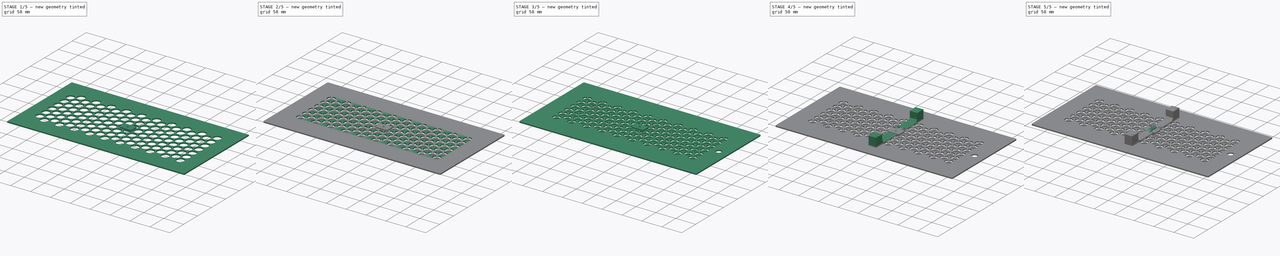
[diagram: build sequence overview — one tinted view per stage of 5, left to right]
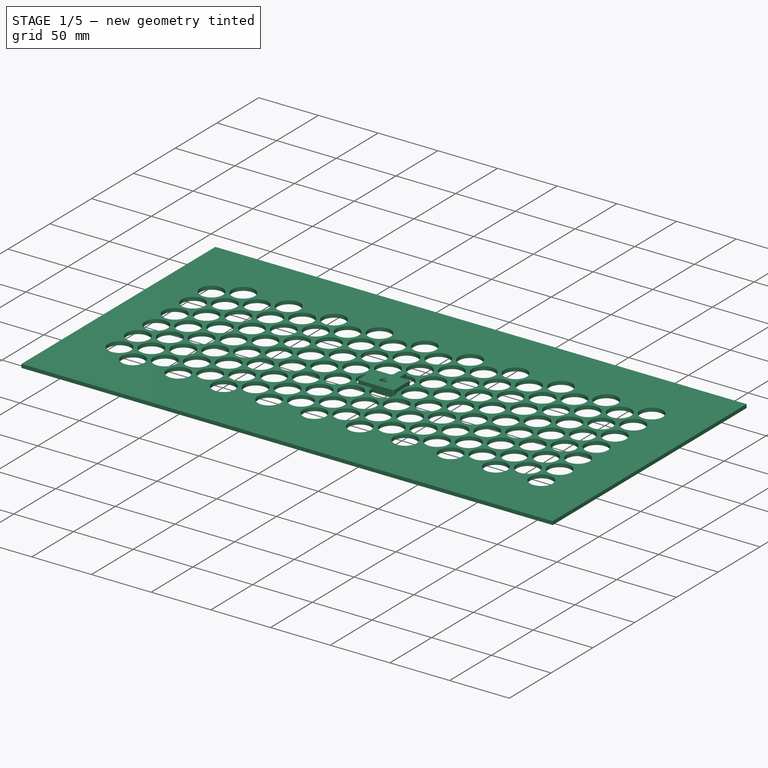
[diagram: stage 1 of 5 — iso view after this stage's code; geometry added in this stage tinted green]
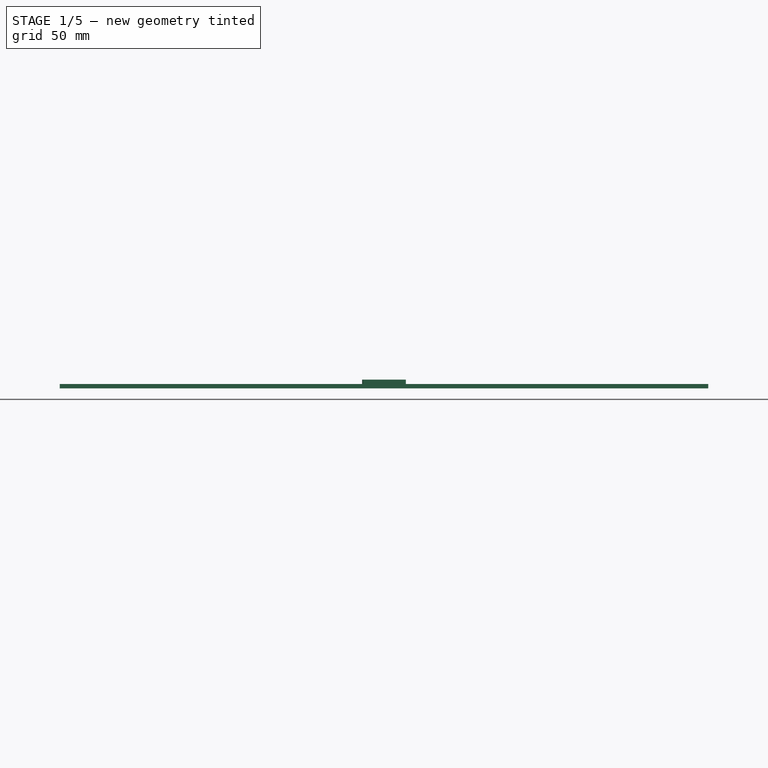
[diagram: stage 1 of 5 — front view after this stage's code; geometry added in this stage tinted green]
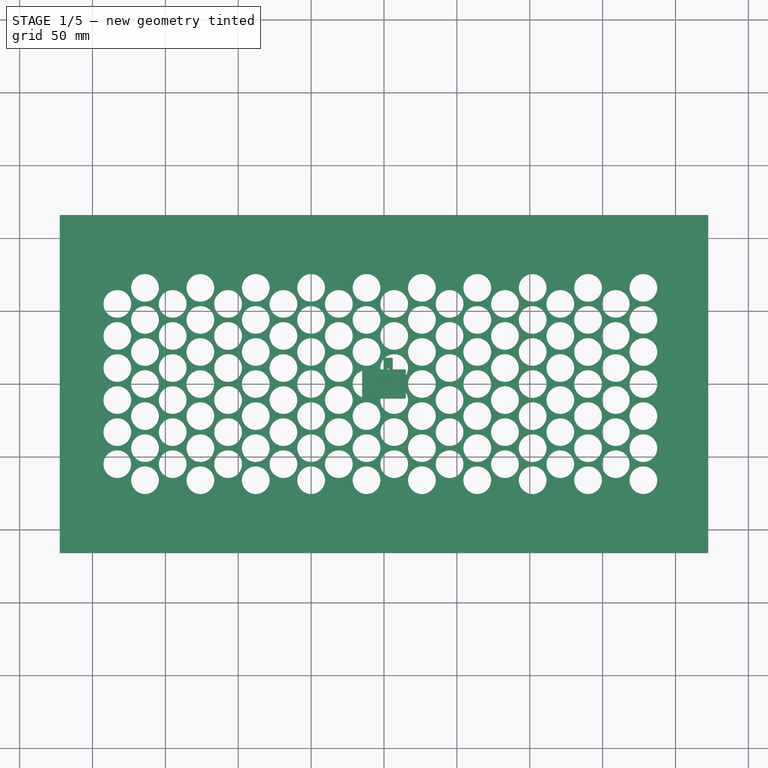
[diagram: stage 1 of 5 — top view after this stage's code; geometry added in this stage tinted green]
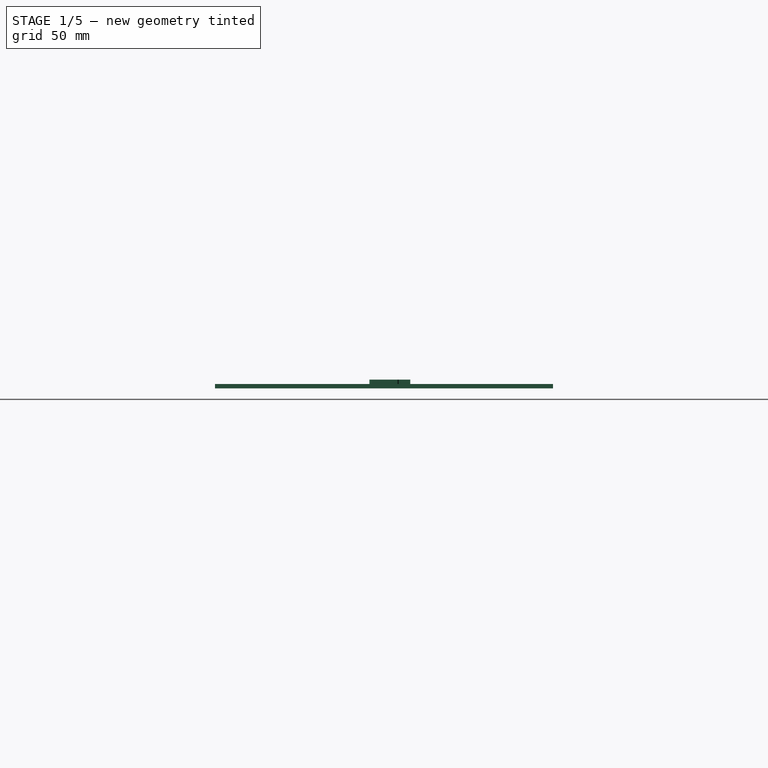
[diagram: stage 1 of 5 — right view after this stage's code; geometry added in this stage tinted green]
FCSTD DOCUMENT  (FreeCAD 1.0R39109 (Git))
Label: frontCover
License: All rights reserved
LicenseURL: http://en.wikipedia.org/wiki/All_rights_reserved
objects: Sketcher::SketchObject×50, PartDesign::Pocket×32, PartDesign::Pad×18, PartDesign::Body×15, PartDesign::Fillet×9, Spreadsheet::Sheet×7, PartDesign::Hole×4, App::DocumentObjectGroup×3, PartDesign::Chamfer×1
note: 307 computed .brp shape members not serialized (recipe doc carries the construction recipe); baked Part::Feature solids carry a one-line shape summary decoded from their .brp

FEATURE [Spreadsheet::Sheet] Spreadsheet004  label="Values004"
  cells = A1='space between holes; B1==4 mm; A2='horizontal space between holes; B2=22; A3='vertical space betwenn holes; B3=19; A4='center holes vertically ; B4==B2 * 2.5
FEATURE [Sketcher::SketchObject] Sketch086
  ArcFitTolerance = 1e-06
  AttachmentSupport = -> [XY_Plane022]
  FullyConstrained = false
  MakeInternals = false
  MapMode = 5
  sketch-geometry (16):
    g0: LineSegment StartX=-222.5 StartY=116 StartZ=0 EndX=-222.5 EndY=-116 EndZ=0
    g1: LineSegment StartX=-222.5 StartY=-116 StartZ=0 EndX=222.5 EndY=-116 EndZ=0
    g2: LineSegment StartX=222.5 StartY=-116 StartZ=0 EndX=222.5 EndY=116 EndZ=0
    g3: LineSegment StartX=222.5 StartY=116 StartZ=0 EndX=-222.5 EndY=116 EndZ=0
    g4: LineSegment [constr] StartX=-222.5 StartY=116 StartZ=0 EndX=222.5 EndY=-116 EndZ=0
    g5: LineSegment [constr] StartX=222.5 StartY=116 StartZ=0 EndX=-222.5 EndY=-116 EndZ=0
    g6: LineSegment [constr] StartX=-206.5 StartY=80.7895 StartZ=0 EndX=-206.5 EndY=-79.2105 EndZ=0
    g7: LineSegment [constr] StartX=-206.5 StartY=-79.2105 StartZ=0 EndX=183.5 EndY=-79.2105 EndZ=0
    g8: LineSegment [constr] StartX=183.5 StartY=-79.2105 StartZ=0 EndX=183.5 EndY=80.7895 EndZ=0
    g9: LineSegment [constr] StartX=183.5 StartY=80.7895 StartZ=0 EndX=-206.5 EndY=80.7895 EndZ=0
    g10: LineSegment [constr] StartX=-206.5 StartY=80.7895 StartZ=0 EndX=183.5 EndY=-79.2105 EndZ=0
    g11: LineSegment [constr] StartX=183.5 StartY=80.7895 StartZ=0 EndX=-206.5 EndY=-79.2105 EndZ=0
    g12: LineSegment [constr] StartX=190.5 StartY=57.5 StartZ=0 EndX=190.5 EndY=-57.5 EndZ=0
    g13: LineSegment [constr] StartX=190.5 StartY=-57.5 StartZ=0 EndX=212.5 EndY=-57.5 EndZ=0
    g14: LineSegment [constr] StartX=212.5 StartY=-57.5 StartZ=0 EndX=212.5 EndY=57.5 EndZ=0
    g15: LineSegment [constr] StartX=212.5 StartY=57.5 StartZ=0 EndX=190.5 EndY=57.5 EndZ=0
  constraints (43):
    c: Coincident(g0,g1)
    c: Coincident(g1,g2)
    c: Coincident(g2,g3)
    c: Coincident(g3,g0)
    c: Vertical(g0)
    c: Vertical(g2)
    c: Horizontal(g1)
    c: Horizontal(g3)
    c: Coincident(g4,g0)
    c: Coincident(g4,g1)
    c: Coincident(g5,g2)
    c: Coincident(g5,g0)
    c: DistanceX(g3,g3) = 445
    c: DistanceY(g2,g2) = 232
    c: Coincident(g6,g7)
    c: Coincident(g7,g8)
    c: Coincident(g8,g9)
    c: Coincident(g9,g6)
    c: Vertical(g6)
    c: Vertical(g8)
    c: Horizontal(g7)
    c: Horizontal(g9)
    c: Coincident(g10,g6)
    c: Coincident(g10,g7)
    c: Coincident(g11,g8)
    c: Coincident(g11,g6)
    c: DistanceY(g8,g8) = 160
    c: DistanceX(g9,g9) = 390
    c: DistanceX(g0,g6) = 16
    c: PointOnObject(g-1,g4)
    c: PointOnObject(g-1,g5)
    c: Coincident(g12,g13)
    c: Coincident(g13,g14)
    c: Coincident(g14,g15)
    c: Coincident(g15,g12)
    c: Vertical(g12)
    c: Vertical(g14)
    c: Horizontal(g13)
    c: Horizontal(g15)
    c: DistanceX(g15,g15) = 22
    c: DistanceY(g14,g14) = 115
    c: Distance(g13,g-1) = 57.5
    c: DistanceX(g14,g2) = 10
FEATURE [PartDesign::Pad] Pad026
  Direction = (0,0,1)
  Length = 3
  Length2 = 10
  Profile = -> Sketch086
  ReferenceAxis = -> Sketch086 [N_Axis]
  Suppressed = false
  Type = 0
FEATURE [Sketcher::SketchObject] Sketch087
  ArcFitTolerance = 1e-06
  AttachmentSupport = -> [Pad026]
  FullyConstrained = false
  MakeInternals = false
  MapMode = 5
  Placement = pos=(0,0,3) rot=(0,0,1;0rad)
  expr: Constraints[338] = <<Values005>>.B2
  expr: Constraints[339] = <<Values005>>.B2
  expr: Constraints[340] = <<Values005>>.B2
  expr: Constraints[341] = <<Values005>>.B2
  expr: Constraints[342] = <<Values005>>.B2
  expr: Constraints[343] = <<Values005>>.B2
  expr: Constraints[344] = <<Values005>>.B2
  expr: Constraints[346] = <<Values005>>.B3
  expr: Constraints[347] = <<Values005>>.B3
  expr: Constraints[348] = <<Values005>>.B3
  expr: Constraints[349] = <<Values005>>.B3
  expr: Constraints[350] = <<Values005>>.B3
  expr: Constraints[351] = <<Values005>>.B3
  expr: Constraints[352] = <<Values005>>.B3
  expr: Constraints[353] = <<Values005>>.B3
  expr: Constraints[354] = <<Values005>>.B3
  expr: Constraints[355] = <<Values005>>.B3
  expr: Constraints[356] = <<Values005>>.B3
  expr: Constraints[357] = <<Values005>>.B3
  expr: Constraints[358] = <<Values005>>.B3
  expr: Constraints[359] = <<Values005>>.B3
  expr: Constraints[360] = <<Values005>>.B3
  expr: Constraints[361] = <<Values005>>.B3
  expr: Constraints[362] = <<Values005>>.B3
  expr: Constraints[363] = <<Values005>>.B3
  expr: Constraints[364] = <<Values005>>.B2
  expr: Constraints[383] = <<Values005>>.B2
  expr: Constraints[384] = <<Values005>>.B2
  expr: Constraints[386] = <<Values005>>.B4
  expr: Constraints[392] = <<Values005>>.B2
  expr: Constraints[393] = <<Values005>>.B2
  expr: Constraints[471] = <<Values005>>.B3
  sketch-geometry (167):
    g0: LineSegment [constr] StartX=-222.5 StartY=171.559 StartZ=0 EndX=-222.5 EndY=-148.418 EndZ=0
    g1: LineSegment [constr] StartX=222.5 StartY=164.967 StartZ=0 EndX=222.5 EndY=-175.294 EndZ=0
    g2: LineSegment [constr] StartX=-276.156 StartY=116 StartZ=0 EndX=290.156 EndY=116 EndZ=0
    g3: LineSegment [constr] StartX=344.139 StartY=-116 StartZ=0 EndX=-328.776 EndY=-116 EndZ=0
    g4: LineSegment [constr] StartX=-393.388 StartY=55 StartZ=0 EndX=331.388 EndY=55 EndZ=0
    g5: LineSegment [constr] StartX=-379.371 StartY=33 StartZ=0 EndX=317.371 EndY=33 EndZ=0
    g6: LineSegment [constr] StartX=-387.52 StartY=11 StartZ=0 EndX=325.52 EndY=11 EndZ=0
    g7: LineSegment [constr] StartX=417.439 StartY=-11 StartZ=0 EndX=-479.439 EndY=-11 EndZ=0
    g8: LineSegment [constr] StartX=-372.23 StartY=-33 StartZ=0 EndX=310.23 EndY=-33 EndZ=0
    g9: LineSegment [constr] StartX=253.91 StartY=-55 StartZ=0 EndX=-391.91 EndY=-55 EndZ=0
    g10: Circle CenterX=-183 CenterY=55 CenterZ=0 NormalX=0 NormalY=0 NormalZ=1 AngleXU=0 Radius=9.5
    g11: LineSegment [constr] StartX=-183 StartY=170.843 StartZ=0 EndX=-183 EndY=-155.349 EndZ=0
    g12: Circle CenterX=-183 CenterY=33 CenterZ=0 NormalX=0 NormalY=0 NormalZ=1 AngleXU=0 Radius=9.5
    g13: Circle CenterX=-183 CenterY=11 CenterZ=0 NormalX=0 NormalY=0 NormalZ=1 AngleXU=0 Radius=9.5
    g14: Circle CenterX=-183 CenterY=-11 CenterZ=0 NormalX=0 NormalY=0 NormalZ=1 AngleXU=0 Radius=9.5
    g15: Circle CenterX=-183 CenterY=-33 CenterZ=0 NormalX=0 NormalY=0 NormalZ=1 AngleXU=0 Radius=9.5
    g16: Circle CenterX=-183 CenterY=-55 CenterZ=0 NormalX=0 NormalY=0 NormalZ=1 AngleXU=0 Radius=9.5
    g17: LineSegment [constr] StartX=-365.627 StartY=44 StartZ=0 EndX=265.627 EndY=44 EndZ=0
    g18: LineSegment [constr] StartX=-265.582 StartY=22 StartZ=0 EndX=286.348 EndY=22 EndZ=0
    g19: LineSegment [constr] StartX=-405.934 StartY=-44 StartZ=0 EndX=381.934 EndY=-44 EndZ=0
    g20: LineSegment [constr] StartX=-164 StartY=-153.028 StartZ=0 EndX=-164 EndY=148.477 EndZ=0
    g21: Circle CenterX=-164 CenterY=44 CenterZ=0 NormalX=0 NormalY=0 NormalZ=1 AngleXU=0 Radius=9.5
    g22: Circle CenterX=-164 CenterY=22 CenterZ=0 NormalX=0 NormalY=0 NormalZ=1 AngleXU=0 Radius=9.5
    g23: Circle CenterX=-164 CenterY=0 CenterZ=0 NormalX=0 NormalY=0 NormalZ=1 AngleXU=0 Radius=9.5
    g24: Circle CenterX=-164 CenterY=-22 CenterZ=0 NormalX=0 NormalY=0 NormalZ=1 AngleXU=0 Radius=9.5
    g25: Circle CenterX=-164 CenterY=-44 CenterZ=0 NormalX=0 NormalY=0 NormalZ=1 AngleXU=0 Radius=9.5
    g26: LineSegment [constr] StartX=-145 StartY=130.867 StartZ=0 EndX=-145 EndY=-141.746 EndZ=0
    g27: LineSegment [constr] StartX=-126 StartY=138.96 StartZ=0 EndX=-126 EndY=-164.926 EndZ=0
    g28: LineSegment [constr] StartX=-107 StartY=143.378 StartZ=0 EndX=-107 EndY=-213.194 EndZ=0
    g29: LineSegment [constr] StartX=-88 StartY=148.137 StartZ=0 EndX=-88 EndY=-193.139 EndZ=0
    g30: LineSegment [constr] StartX=-69 StartY=135.221 StartZ=0 EndX=-69 EndY=-193.883 EndZ=0
    g31: Circle CenterX=-145 CenterY=55 CenterZ=0 NormalX=0 NormalY=0 NormalZ=1 AngleXU=0 Radius=9.5
    g32: Circle CenterX=-145 CenterY=33 CenterZ=0 NormalX=0 NormalY=0 NormalZ=1 AngleXU=0 Radius=9.5
    g33: Circle CenterX=-145 CenterY=11 CenterZ=0 NormalX=0 NormalY=0 NormalZ=1 AngleXU=0 Radius=9.5
    g34: Circle CenterX=-145 CenterY=-11 CenterZ=0 NormalX=0 NormalY=0 NormalZ=1 AngleXU=0 Radius=9.5
    g35: Circle CenterX=-145 CenterY=-33 CenterZ=0 NormalX=0 NormalY=0 NormalZ=1 AngleXU=0 Radius=9.5
    g36: Circle CenterX=-145 CenterY=-55 CenterZ=0 NormalX=0 NormalY=0 NormalZ=1 AngleXU=0 Radius=9.5
    g37: Circle CenterX=-126 CenterY=44 CenterZ=0 NormalX=0 NormalY=0 NormalZ=1 AngleXU=0 Radius=9.5
    g38: Circle CenterX=-126 CenterY=22 CenterZ=0 NormalX=0 NormalY=0 NormalZ=1 AngleXU=0 Radius=9.5
    g39: Circle CenterX=-126 CenterY=0 CenterZ=0 NormalX=0 NormalY=0 NormalZ=1 AngleXU=0 Radius=9.5
    g40: Circle CenterX=-126 CenterY=-22 CenterZ=0 NormalX=0 NormalY=0 NormalZ=1 AngleXU=0 Radius=9.5
    g41: Circle CenterX=-126 CenterY=-44 CenterZ=0 NormalX=0 NormalY=0 NormalZ=1 AngleXU=0 Radius=9.5
    g42: Circle CenterX=-107 CenterY=55 CenterZ=0 NormalX=0 NormalY=0 NormalZ=1 AngleXU=0 Radius=9.5
    g43: Circle CenterX=-107 CenterY=33 CenterZ=0 NormalX=0 NormalY=0 NormalZ=1 AngleXU=0 Radius=9.5
    g44: Circle CenterX=-107 CenterY=11 CenterZ=0 NormalX=0 NormalY=0 NormalZ=1 AngleXU=0 Radius=9.5
    g45: Circle CenterX=-107 CenterY=-11 CenterZ=0 NormalX=0 NormalY=0 NormalZ=1 AngleXU=0 Radius=9.5
    g46: Circle CenterX=-107 CenterY=-33 CenterZ=0 NormalX=0 NormalY=0 NormalZ=1 AngleXU=0 Radius=9.5
    g47: Circle CenterX=-107 CenterY=-55 CenterZ=0 NormalX=0 NormalY=0 NormalZ=1 AngleXU=0 Radius=9.5
    g48: Circle CenterX=-88 CenterY=-44 CenterZ=0 NormalX=0 NormalY=0 NormalZ=1 AngleXU=0 Radius=9.5
    g49: Circle CenterX=-88 CenterY=-22 CenterZ=0 NormalX=0 NormalY=0 NormalZ=1 AngleXU=0 Radius=9.5
    g50: Circle CenterX=-88 CenterY=0 CenterZ=0 NormalX=0 NormalY=0 NormalZ=1 AngleXU=0 Radius=9.5
    g51: Circle CenterX=-88 CenterY=22 CenterZ=0 NormalX=0 NormalY=0 NormalZ=1 AngleXU=0 Radius=9.5
    g52: Circle CenterX=-88 CenterY=44 CenterZ=0 NormalX=0 NormalY=0 NormalZ=1 AngleXU=0 Radius=9.5
    g53: LineSegment [constr] StartX=-50 StartY=121.882 StartZ=0 EndX=-50 EndY=-188.509 EndZ=0
    g54: LineSegment [constr] StartX=-31 StartY=120.515 StartZ=0 EndX=-31 EndY=-158.355 EndZ=0
    g55: LineSegment [constr] StartX=-12 StartY=110.14 StartZ=0 EndX=-12 EndY=-150.493 EndZ=0
    g56: LineSegment [constr] StartX=7 StartY=116 StartZ=0 EndX=7 EndY=-167.817 EndZ=0
    g57: LineSegment [constr] StartX=26 StartY=114.379 StartZ=0 EndX=26 EndY=-167.539 EndZ=0
    g58: LineSegment [constr] StartX=45 StartY=103.247 StartZ=0 EndX=45 EndY=-169.765 EndZ=0
    g59: LineSegment [constr] StartX=64 StartY=96.8461 StartZ=0 EndX=64 EndY=-143.048 EndZ=0
    g60: Circle CenterX=-69 CenterY=55 CenterZ=0 NormalX=0 NormalY=0 NormalZ=1 AngleXU=0 Radius=9.5
    g61: Circle CenterX=-69 CenterY=33 CenterZ=0 NormalX=0 NormalY=0 NormalZ=1 AngleXU=0 Radius=9.5
    g62: Circle CenterX=-69 CenterY=11 CenterZ=0 NormalX=0 NormalY=0 NormalZ=1 AngleXU=0 Radius=9.5
    g63: Circle CenterX=-69 CenterY=-11 CenterZ=0 NormalX=0 NormalY=0 NormalZ=1 AngleXU=0 Radius=9.5
    g64: Circle CenterX=-69 CenterY=-33 CenterZ=0 NormalX=0 NormalY=0 NormalZ=1 AngleXU=0 Radius=9.5
    g65: Circle CenterX=-50 CenterY=44 CenterZ=0 NormalX=0 NormalY=0 NormalZ=1 AngleXU=0 Radius=9.5
    g66: Circle CenterX=-50 CenterY=22 CenterZ=0 NormalX=0 NormalY=0 NormalZ=1 AngleXU=0 Radius=9.5
    g67: Circle CenterX=-50 CenterY=0 CenterZ=0 NormalX=0 NormalY=0 NormalZ=1 AngleXU=0 Radius=9.5
    g68: Circle CenterX=-50 CenterY=-22 CenterZ=0 NormalX=0 NormalY=0 NormalZ=1 AngleXU=0 Radius=9.5
    g69: Circle CenterX=-50 CenterY=-44 CenterZ=0 NormalX=0 NormalY=0 NormalZ=1 AngleXU=0 Radius=9.5
    g70: Circle CenterX=-69 CenterY=-55 CenterZ=0 NormalX=0 NormalY=0 NormalZ=1 AngleXU=0 Radius=9.5
    g71: Circle CenterX=-31 CenterY=55 CenterZ=0 NormalX=0 NormalY=0 NormalZ=1 AngleXU=0 Radius=9.5
    g72: Circle CenterX=-31 CenterY=33 CenterZ=0 NormalX=0 NormalY=0 NormalZ=1 AngleXU=0 Radius=9.5
    g73: Circle CenterX=-31 CenterY=11 CenterZ=0 NormalX=0 NormalY=0 NormalZ=1 AngleXU=0 Radius=9.5
    g74: Circle CenterX=-31 CenterY=-11 CenterZ=0 NormalX=0 NormalY=0 NormalZ=1 AngleXU=0 Radius=9.5
    g75: Circle CenterX=-31 CenterY=-33 CenterZ=0 NormalX=0 NormalY=0 NormalZ=1 AngleXU=0 Radius=9.5
    g76: Circle CenterX=-31 CenterY=-55 CenterZ=0 NormalX=0 NormalY=0 NormalZ=1 AngleXU=0 Radius=9.5
    g77: Circle CenterX=-12 CenterY=-44 CenterZ=0 NormalX=0 NormalY=0 NormalZ=1 AngleXU=0 Radius=9.5
    g78: Circle CenterX=-12 CenterY=-22 CenterZ=0 NormalX=0 NormalY=0 NormalZ=1 AngleXU=0 Radius=9.5
    g79: Circle CenterX=-12 CenterY=0 CenterZ=0 NormalX=0 NormalY=0 NormalZ=1 AngleXU=0 Radius=9.5
    g80: Circle CenterX=-12 CenterY=22 CenterZ=0 NormalX=0 NormalY=0 NormalZ=1 AngleXU=0 Radius=9.5
    g81: Circle CenterX=-12 CenterY=44 CenterZ=0 NormalX=0 NormalY=0 NormalZ=1 AngleXU=0 Radius=9.5
    g82: Circle CenterX=7 CenterY=55 CenterZ=0 NormalX=0 NormalY=0 NormalZ=1 AngleXU=0 Radius=9.5
    g83: Circle CenterX=7 CenterY=33 CenterZ=0 NormalX=0 NormalY=0 NormalZ=1 AngleXU=0 Radius=9.5
    g84: Circle CenterX=7 CenterY=11 CenterZ=0 NormalX=0 NormalY=0 NormalZ=1 AngleXU=0 Radius=9.5
    g85: Circle CenterX=7 CenterY=-11 CenterZ=0 NormalX=0 NormalY=0 NormalZ=1 AngleXU=0 Radius=9.5
    g86: Circle CenterX=7 CenterY=-33 CenterZ=0 NormalX=0 NormalY=0 NormalZ=1 AngleXU=0 Radius=9.5
    g87: Circle CenterX=7 CenterY=-55 CenterZ=0 NormalX=0 NormalY=0 NormalZ=1 AngleXU=0 Radius=9.5
    g88: Circle CenterX=26 CenterY=-44 CenterZ=0 NormalX=0 NormalY=0 NormalZ=1 AngleXU=0 Radius=9.5
    g89: Circle CenterX=26 CenterY=-22 CenterZ=0 NormalX=0 NormalY=0 NormalZ=1 AngleXU=0 Radius=9.5
    g90: Circle CenterX=26 CenterY=0 CenterZ=0 NormalX=0 NormalY=0 NormalZ=1 AngleXU=0 Radius=9.5
    g91: Circle CenterX=26 CenterY=22 CenterZ=0 NormalX=0 NormalY=0 NormalZ=1 AngleXU=0 Radius=9.5
    g92: Circle CenterX=26 CenterY=44 CenterZ=0 NormalX=0 NormalY=0 NormalZ=1 AngleXU=0 Radius=9.5
    g93: Circle CenterX=45 CenterY=55 CenterZ=0 NormalX=0 NormalY=0 NormalZ=1 AngleXU=0 Radius=9.5
    g94: Circle CenterX=45 CenterY=33 CenterZ=0 NormalX=0 NormalY=0 NormalZ=1 AngleXU=0 Radius=9.5
    g95: Circle CenterX=45 CenterY=11 CenterZ=0 NormalX=0 NormalY=0 NormalZ=1 AngleXU=0 Radius=9.5
    g96: Circle CenterX=45 CenterY=-11 CenterZ=0 NormalX=0 NormalY=0 NormalZ=1 AngleXU=0 Radius=9.5
    g97: Circle CenterX=64 CenterY=0 CenterZ=0 NormalX=0 NormalY=0 NormalZ=1 AngleXU=0 Radius=9.5
    g98: Circle CenterX=64 CenterY=22 CenterZ=0 NormalX=0 NormalY=0 NormalZ=1 AngleXU=0 Radius=9.5
    g99: Circle CenterX=64 CenterY=44 CenterZ=0 NormalX=0 NormalY=0 NormalZ=1 AngleXU=0 Radius=9.5
    g100: Circle CenterX=45 CenterY=-33 CenterZ=0 NormalX=0 NormalY=0 NormalZ=1 AngleXU=0 Radius=9.5
    g101: Circle CenterX=45 CenterY=-55 CenterZ=0 NormalX=0 NormalY=0 NormalZ=1 AngleXU=0 Radius=9.5
    g102: Circle CenterX=64 CenterY=-44 CenterZ=0 NormalX=0 NormalY=0 NormalZ=1 AngleXU=0 Radius=9.5
    g103: Circle CenterX=64 CenterY=-22 CenterZ=0 NormalX=0 NormalY=0 NormalZ=1 AngleXU=0 Radius=9.5
    g104: LineSegment [constr] StartX=83 StartY=100.084 StartZ=0 EndX=83 EndY=-176.599 EndZ=0
    g105: Circle CenterX=83 CenterY=55 CenterZ=0 NormalX=0 NormalY=0 NormalZ=1 AngleXU=0 Radius=9.5
    g106: Circle CenterX=83 CenterY=33 CenterZ=0 NormalX=0 NormalY=0 NormalZ=1 AngleXU=0 Radius=9.5
    g107: Circle CenterX=83 CenterY=11 CenterZ=0 NormalX=0 NormalY=0 NormalZ=1 AngleXU=0 Radius=9.5
    g108: Circle CenterX=83 CenterY=-11 CenterZ=0 NormalX=0 NormalY=0 NormalZ=1 AngleXU=0 Radius=9.5
    g109: Circle CenterX=83 CenterY=-33 CenterZ=0 NormalX=0 NormalY=0 NormalZ=1 AngleXU=0 Radius=9.5
    g110: Circle CenterX=83 CenterY=-55 CenterZ=0 NormalX=0 NormalY=0 NormalZ=1 AngleXU=0 Radius=9.5
    g111: LineSegment [constr] StartX=199.511 StartY=125.276 StartZ=0 EndX=199.511 EndY=-177.251 EndZ=0
    g112: LineSegment [constr] StartX=102 StartY=125.804 StartZ=0 EndX=102 EndY=-181.13 EndZ=0
    g113: LineSegment [constr] StartX=121 StartY=125.241 StartZ=0 EndX=121 EndY=-180.751 EndZ=0
    g114: LineSegment [constr] StartX=140 StartY=126.148 StartZ=0 EndX=140 EndY=-176.262 EndZ=0
    g115: Circle CenterX=102 CenterY=44 CenterZ=0 NormalX=0 NormalY=0 NormalZ=1 AngleXU=0 Radius=9.5
    g116: Circle CenterX=102 CenterY=22 CenterZ=0 NormalX=0 NormalY=0 NormalZ=1 AngleXU=0 Radius=9.5
    g117: Circle CenterX=102 CenterY=0 CenterZ=0 NormalX=0 NormalY=0 NormalZ=1 AngleXU=0 Radius=9.5
    g118: Circle CenterX=102 CenterY=-22 CenterZ=0 NormalX=0 NormalY=0 NormalZ=1 AngleXU=0 Radius=9.5
    g119: Circle CenterX=102 CenterY=-44 CenterZ=0 NormalX=0 NormalY=0 NormalZ=1 AngleXU=0 Radius=9.5
    g120: Circle CenterX=121 CenterY=55 CenterZ=0 NormalX=0 NormalY=0 NormalZ=1 AngleXU=0 Radius=9.5
    g121: Circle CenterX=121 CenterY=33 CenterZ=0 NormalX=0 NormalY=0 NormalZ=1 AngleXU=0 Radius=9.5
    g122: Circle CenterX=121 CenterY=11 CenterZ=0 NormalX=0 NormalY=0 NormalZ=1 AngleXU=0 Radius=9.5
    g123: Circle CenterX=121 CenterY=-11 CenterZ=0 NormalX=0 NormalY=0 NormalZ=1 AngleXU=0 Radius=9.5
    g124: Circle CenterX=121 CenterY=-33 CenterZ=0 NormalX=0 NormalY=0 NormalZ=1 AngleXU=0 Radius=9.5
    g125: Circle CenterX=121 CenterY=-55 CenterZ=0 NormalX=0 NormalY=0 NormalZ=1 AngleXU=0 Radius=9.5
    g126: LineSegment [constr] StartX=159 StartY=131.173 StartZ=0 EndX=159 EndY=-183.407 EndZ=0
    g127: Circle CenterX=140 CenterY=44 CenterZ=0 NormalX=0 NormalY=0 NormalZ=1 AngleXU=0 Radius=9.5
    g128: Circle CenterX=140 CenterY=22 CenterZ=0 NormalX=0 NormalY=0 NormalZ=1 AngleXU=0 Radius=9.5
    g129: Circle CenterX=140 CenterY=0 CenterZ=0 NormalX=0 NormalY=0 NormalZ=1 AngleXU=0 Radius=9.5
    g130: Circle CenterX=140 CenterY=-22 CenterZ=0 NormalX=0 NormalY=0 NormalZ=1 AngleXU=0 Radius=9.5
    g131: Circle CenterX=140 CenterY=-44 CenterZ=0 NormalX=0 NormalY=0 NormalZ=1 AngleXU=0 Radius=9.5
    g132: Circle CenterX=159 CenterY=55 CenterZ=0 NormalX=0 NormalY=0 NormalZ=1 AngleXU=0 Radius=9.5
    g133: Circle CenterX=159 CenterY=33 CenterZ=0 NormalX=0 NormalY=0 NormalZ=1 AngleXU=0 Radius=9.5
    g134: Circle CenterX=159 CenterY=11 CenterZ=0 NormalX=0 NormalY=0 NormalZ=1 AngleXU=0 Radius=9.5
    g135: Circle CenterX=159 CenterY=-11 CenterZ=0 NormalX=0 NormalY=0 NormalZ=1 AngleXU=0 Radius=9.5
    g136: Circle CenterX=159 CenterY=-33 CenterZ=0 NormalX=0 NormalY=0 NormalZ=1 AngleXU=0 Radius=9.5
    g137: Circle CenterX=159 CenterY=-55 CenterZ=0 NormalX=0 NormalY=0 NormalZ=1 AngleXU=0 Radius=9.5
    g138: LineSegment [constr] StartX=-255.839 StartY=-22 StartZ=0 EndX=243.836 EndY=-22 EndZ=0
    g139: LineSegment [constr] StartX=-312.069 StartY=66 StartZ=0 EndX=237.298 EndY=66 EndZ=0
    g140: LineSegment [constr] StartX=270.708 StartY=-66 StartZ=0 EndX=-250.072 EndY=-66 EndZ=0
    g141: Circle CenterX=-164 CenterY=66 CenterZ=0 NormalX=0 NormalY=0 NormalZ=1 AngleXU=0 Radius=9.5
    g142: Circle CenterX=-126 CenterY=66 CenterZ=0 NormalX=0 NormalY=0 NormalZ=1 AngleXU=0 Radius=9.5
    g143: Circle CenterX=-88 CenterY=66 CenterZ=0 NormalX=0 NormalY=0 NormalZ=1 AngleXU=0 Radius=9.5
    g144: Circle CenterX=-50 CenterY=66 CenterZ=0 NormalX=0 NormalY=0 NormalZ=1 AngleXU=0 Radius=9.5
    g145: Circle CenterX=-12 CenterY=66 CenterZ=0 NormalX=0 NormalY=0 NormalZ=1 AngleXU=0 Radius=9.5
    g146: Circle CenterX=26 CenterY=66 CenterZ=0 NormalX=0 NormalY=0 NormalZ=1 AngleXU=0 Radius=9.5
    g147: Circle CenterX=64 CenterY=66 CenterZ=0 NormalX=0 NormalY=0 NormalZ=1 AngleXU=0 Radius=9.5
    g148: Circle CenterX=102 CenterY=66 CenterZ=0 NormalX=0 NormalY=0 NormalZ=1 AngleXU=0 Radius=9.5
    g149: Circle CenterX=140 CenterY=66 CenterZ=0 NormalX=0 NormalY=0 NormalZ=1 AngleXU=0 Radius=9.5
    g150: Circle CenterX=-164 CenterY=-66 CenterZ=0 NormalX=0 NormalY=0 NormalZ=1 AngleXU=0 Radius=9.5
    g151: Circle CenterX=-126 CenterY=-66 CenterZ=0 NormalX=0 NormalY=0 NormalZ=1 AngleXU=0 Radius=9.5
    g152: Circle CenterX=-88 CenterY=-66 CenterZ=0 NormalX=0 NormalY=0 NormalZ=1 AngleXU=0 Radius=9.5
    g153: Circle CenterX=-50 CenterY=-66 CenterZ=0 NormalX=0 NormalY=0 NormalZ=1 AngleXU=0 Radius=9.5
    g154: Circle CenterX=-12 CenterY=-66 CenterZ=0 NormalX=0 NormalY=0 NormalZ=1 AngleXU=0 Radius=9.5
    g155: Circle CenterX=26 CenterY=-66 CenterZ=0 NormalX=0 NormalY=0 NormalZ=1 AngleXU=0 Radius=9.5
    g156: Circle CenterX=64 CenterY=-66 CenterZ=0 NormalX=0 NormalY=0 NormalZ=1 AngleXU=0 Radius=9.5
    g157: Circle CenterX=102 CenterY=-66 CenterZ=0 NormalX=0 NormalY=0 NormalZ=1 AngleXU=0 Radius=9.5
    g158: Circle CenterX=140 CenterY=-66 CenterZ=0 NormalX=0 NormalY=0 NormalZ=1 AngleXU=0 Radius=9.5
    g159: LineSegment [constr] StartX=178 StartY=123.897 StartZ=0 EndX=178 EndY=-103.435 EndZ=0
    g160: Circle CenterX=178 CenterY=66 CenterZ=0 NormalX=0 NormalY=0 NormalZ=1 AngleXU=0 Radius=9.5
    g161: Circle CenterX=178 CenterY=44 CenterZ=0 NormalX=0 NormalY=0 NormalZ=1 AngleXU=0 Radius=9.5
    g162: Circle CenterX=178 CenterY=22 CenterZ=0 NormalX=0 NormalY=0 NormalZ=1 AngleXU=0 Radius=9.5
    g163: Circle CenterX=178 CenterY=0 CenterZ=0 NormalX=0 NormalY=0 NormalZ=1 AngleXU=0 Radius=9.5
    g164: Circle CenterX=178 CenterY=-22 CenterZ=0 NormalX=0 NormalY=0 NormalZ=1 AngleXU=0 Radius=9.5
    g165: Circle CenterX=178 CenterY=-44 CenterZ=0 NormalX=0 NormalY=0 NormalZ=1 AngleXU=0 Radius=9.5
    g166: Circle CenterX=178 CenterY=-66 CenterZ=0 NormalX=0 NormalY=0 NormalZ=1 AngleXU=0 Radius=9.5
  constraints (472):
    c: Vertical(g0)
    c: Vertical(g1)
    c: Horizontal(g2)
    c: Horizontal(g3)
    c: DistanceX(g0,g-1) = 222.5
    c: DistanceX(g-1,g1) = 222.5
    c: DistanceY(g-1,g2) = 116
    c: DistanceY(g3,g-1) = 116
    c: Diameter(g10) = 19
    c: Vertical(g11)
    c: PointOnObject(g10,g11)
    c: PointOnObject(g12,g5)
    c: PointOnObject(g13,g6)
    c: PointOnObject(g14,g7)
    c: PointOnObject(g15,g8)
    c: PointOnObject(g16,g9)
    c: PointOnObject(g12,g11)
    c: PointOnObject(g13,g11)
    c: PointOnObject(g14,g11)
    c: PointOnObject(g15,g11)
    c: PointOnObject(g16,g11)
    c: Equal(g12,g10)
    c: Equal(g13,g12)
    c: Equal(g14,g13)
    c: Equal(g15,g14)
    c: Equal(g16,g15)
    c: Horizontal(g17)
    c: Vertical(g20)
    c: PointOnObject(g21,g17)
    c: PointOnObject(g22,g18)
    c: PointOnObject(g23,g-1)
    c: PointOnObject(g25,g19)
    c: Equal(g21,g10)
    c: Equal(g22,g10)
    c: Equal(g23,g10)
    c: Equal(g24,g10)
    c: Equal(g25,g10)
    c: PointOnObject(g21,g20)
    c: PointOnObject(g22,g20)
    c: PointOnObject(g23,g20)
    c: PointOnObject(g24,g20)
    c: PointOnObject(g25,g20)
    c: Vertical(g26)
    c: Vertical(g27)
    c: Vertical(g28)
    c: Vertical(g29)
    c: Vertical(g30)
    c: PointOnObject(g31,g4)
    c: PointOnObject(g32,g5)
    c: PointOnObject(g33,g6)
    c: PointOnObject(g34,g7)
    c: PointOnObject(g35,g8)
    c: PointOnObject(g36,g9)
    c: Equal(g10,g31)
    c: Equal(g32,g10)
    c: Equal(g10,g33)
    c: Equal(g34,g10)
    c: Equal(g35,g10)
    c: Equal(g36,g10)
    c: PointOnObject(g31,g26)
    c: PointOnObject(g32,g26)
    c: PointOnObject(g33,g26)
    c: PointOnObject(g34,g26)
    c: PointOnObject(g35,g26)
    c: PointOnObject(g36,g26)
    c: PointOnObject(g37,g17)
    c: PointOnObject(g38,g18)
    c: PointOnObject(g39,g-1)
    c: PointOnObject(g41,g19)
    c: Equal(g37,g10)
    c: Equal(g38,g10)
    c: Equal(g39,g10)
    c: Equal(g10,g40)
    c: Equal(g41,g10)
    c: PointOnObject(g37,g27)
    c: PointOnObject(g38,g27)
    c: PointOnObject(g39,g27)
    c: PointOnObject(g40,g27)
    c: PointOnObject(g41,g27)
    c: PointOnObject(g42,g4)
    c: PointOnObject(g43,g5)
    c: PointOnObject(g44,g6)
    c: PointOnObject(g45,g7)
    c: PointOnObject(g46,g8)
    c: PointOnObject(g47,g9)
    c: PointOnObject(g48,g19)
    c: PointOnObject(g50,g-1)
    c: PointOnObject(g51,g18)
    c: PointOnObject(g52,g17)
    c: PointOnObject(g42,g28)
    c: PointOnObject(g43,g28)
    c: PointOnObject(g44,g28)
    c: PointOnObject(g51,g29)
    c: PointOnObject(g52,g29)
    c: PointOnObject(g50,g29)
    c: PointOnObject(g45,g28)
    c: PointOnObject(g49,g29)
    c: PointOnObject(g46,g28)
    c: PointOnObject(g48,g29)
    c: PointOnObject(g47,g28)
    c: Equal(g10,g42)
    c: Equal(g43,g10)
    c: Equal(g44,g10)
    c: Equal(g45,g10)
    c: Equal(g46,g10)
    c: Equal(g47,g10)
    c: Equal(g52,g10)
    c: Equal(g51,g10)
    c: Equal(g50,g10)
    c: Equal(g49,g10)
    c: Equal(g48,g10)
    c: Vertical(g53)
    c: Vertical(g54)
    c: Vertical(g55)
    c: Symmetric(g2,g2,g56)
    c: Vertical(g56)
    c: Vertical(g57)
    c: Vertical(g58)
    c: Vertical(g59)
    c: PointOnObject(g60,g4)
    c: PointOnObject(g61,g5)
    c: PointOnObject(g62,g6)
    c: PointOnObject(g63,g7)
    c: PointOnObject(g64,g8)
    c: Symmetric(g17,g17,g65)
    c: PointOnObject(g66,g18)
    c: PointOnObject(g67,g-1)
    c: PointOnObject(g69,g19)
    c: Symmetric(g9,g9,g70)
    c: PointOnObject(g60,g30)
    c: PointOnObject(g61,g30)
    c: PointOnObject(g65,g53)
    c: PointOnObject(g66,g53)
    c: PointOnObject(g62,g30)
    c: PointOnObject(g67,g53)
    c: PointOnObject(g63,g30)
    c: PointOnObject(g68,g53)
    c: PointOnObject(g64,g30)
    c: PointOnObject(g69,g53)
    c: PointOnObject(g70,g30)
    c: Equal(g10,g60)
    c: Equal(g65,g10)
    c: Equal(g61,g10)
    c: Equal(g66,g10)
    c: Equal(g62,g10)
    c: Equal(g67,g10)
    c: Equal(g63,g10)
    c: Equal(g68,g10)
    c: Equal(g64,g10)
    c: Equal(g69,g10)
    c: Equal(g70,g10)
    c: Symmetric(g4,g4,g71)
    c: Symmetric(g5,g5,g72)
    c: Symmetric(g6,g6,g73)
    c: Symmetric(g7,g7,g74)
    c: Symmetric(g8,g8,g75)
    c: PointOnObject(g76,g9)
    c: Symmetric(g19,g19,g77)
    c: PointOnObject(g79,g-1)
    c: PointOnObject(g80,g18)
    c: PointOnObject(g81,g17)
    c: PointOnObject(g82,g4)
    c: PointOnObject(g83,g5)
    c: PointOnObject(g84,g6)
    c: PointOnObject(g85,g7)
    c: PointOnObject(g86,g8)
    c: PointOnObject(g87,g9)
    c: PointOnObject(g88,g19)
    c: PointOnObject(g90,g-1)
    c: PointOnObject(g91,g18)
    c: PointOnObject(g92,g17)
    c: PointOnObject(g71,g54)
    c: PointOnObject(g72,g54)
    c: PointOnObject(g73,g54)
    c: PointOnObject(g74,g54)
    c: PointOnObject(g75,g54)
    c: PointOnObject(g76,g54)
    c: PointOnObject(g77,g55)
    c: PointOnObject(g78,g55)
    c: PointOnObject(g79,g55)
    c: PointOnObject(g80,g55)
    c: PointOnObject(g81,g55)
    c: PointOnObject(g82,g56)
    c: PointOnObject(g83,g56)
    c: PointOnObject(g84,g56)
    c: PointOnObject(g85,g56)
    c: PointOnObject(g86,g56)
    c: PointOnObject(g87,g56)
    c: PointOnObject(g88,g57)
    c: PointOnObject(g89,g57)
    c: PointOnObject(g90,g57)
    c: PointOnObject(g91,g57)
    c: PointOnObject(g92,g57)
    c: Equal(g10,g71)
    c: Equal(g72,g10)
    c: Equal(g73,g10)
    c: Equal(g74,g10)
    c: Equal(g75,g10)
    c: Equal(g81,g10)
    c: Equal(g82,g10)
    c: Equal(g83,g10)
    c: Equal(g10,g80)
    c: Equal(g84,g10)
    c: Equal(g92,g10)
    c: Equal(g91,g10)
    c: Equal(g90,g10)
    c: Equal(g79,g10)
    c: Equal(g85,g10)
    c: Equal(g86,g10)
    c: Equal(g78,g10)
    c: Equal(g89,g10)
    c: Equal(g76,g10)
    c: Equal(g87,g10)
    c: Equal(g10,g77)
    c: Equal(g88,g10)
    c: Distance(g4,g2) = 61
    c: PointOnObject(g93,g4)
    c: PointOnObject(g94,g5)
    c: PointOnObject(g95,g6)
    c: PointOnObject(g96,g7)
    c: PointOnObject(g97,g-1)
    c: PointOnObject(g98,g18)
    c: PointOnObject(g99,g17)
    c: PointOnObject(g100,g8)
    c: PointOnObject(g101,g9)
    c: PointOnObject(g102,g19)
    c: PointOnObject(g101,g58)
    c: PointOnObject(g100,g58)
    c: PointOnObject(g96,g58)
    c: PointOnObject(g95,g58)
    c: PointOnObject(g94,g58)
    c: PointOnObject(g93,g58)
    c: PointOnObject(g99,g59)
    c: PointOnObject(g98,g59)
    c: PointOnObject(g97,g59)
    c: PointOnObject(g103,g59)
    c: PointOnObject(g102,g59)
    c: Vertical(g104)
    c: PointOnObject(g105,g4)
    c: PointOnObject(g106,g5)
    c: PointOnObject(g107,g6)
    c: PointOnObject(g108,g7)
    c: PointOnObject(g109,g8)
    c: PointOnObject(g110,g9)
    c: Equal(g90,g101)
    c: Equal(g100,g90)
    c: Equal(g96,g90)
    c: Equal(g95,g90)
    c: Equal(g94,g90)
    c: Equal(g93,g90)
    c: Equal(g97,g90)
    c: Equal(g98,g90)
    c: Equal(g99,g90)
    c: Equal(g105,g90)
    c: Equal(g106,g90)
    c: Equal(g107,g90)
    c: Equal(g108,g90)
    c: Equal(g103,g90)
    c: Equal(g109,g90)
    c: Equal(g102,g90)
    c: Equal(g110,g90)
    c: PointOnObject(g105,g104)
    c: PointOnObject(g106,g104)
    c: PointOnObject(g107,g104)
    c: PointOnObject(g108,g104)
    c: PointOnObject(g109,g104)
    c: PointOnObject(g110,g104)
    c: Vertical(g111)
    c: Vertical(g112)
    c: Vertical(g113)
    c: Vertical(g114)
    c: PointOnObject(g115,g112)
    c: PointOnObject(g115,g17)
    c: PointOnObject(g116,g18)
    c: PointOnObject(g117,g-1)
    c: PointOnObject(g119,g19)
    c: Equal(g10,g115)
    c: Equal(g116,g10)
    c: Equal(g117,g10)
    c: Equal(g118,g10)
    c: Equal(g119,g10)
    c: PointOnObject(g116,g112)
    c: PointOnObject(g117,g112)
    c: PointOnObject(g118,g112)
    c: PointOnObject(g119,g112)
    c: PointOnObject(g120,g4)
    c: PointOnObject(g121,g5)
    c: PointOnObject(g122,g6)
    c: PointOnObject(g123,g7)
    c: PointOnObject(g124,g8)
    c: PointOnObject(g125,g9)
    c: PointOnObject(g125,g113)
    c: PointOnObject(g124,g113)
    c: PointOnObject(g123,g113)
    c: PointOnObject(g122,g113)
    c: PointOnObject(g121,g113)
    c: PointOnObject(g120,g113)
    c: Equal(g120,g121)
    c: Equal(g121,g122)
    c: Equal(g122,g123)
    c: Equal(g123,g124)
    c: Equal(g124,g125)
    c: Equal(g125,g10)
    c: Vertical(g126)
    c: PointOnObject(g127,g17)
    c: PointOnObject(g128,g18)
    c: PointOnObject(g129,g-1)
    c: PointOnObject(g131,g19)
    c: PointOnObject(g131,g114)
    c: PointOnObject(g130,g114)
    c: PointOnObject(g129,g114)
    c: PointOnObject(g128,g114)
    c: PointOnObject(g127,g114)
    c: Equal(g131,g130)
    c: Equal(g130,g129)
    c: Equal(g129,g128)
    c: Equal(g128,g127)
    c: Equal(g127,g10)
    c: PointOnObject(g132,g4)
    c: PointOnObject(g133,g5)
    c: PointOnObject(g134,g6)
    c: PointOnObject(g135,g7)
    c: PointOnObject(g136,g8)
    c: PointOnObject(g137,g9)
    c: PointOnObject(g137,g126)
    c: PointOnObject(g136,g126)
    c: PointOnObject(g135,g126)
    c: PointOnObject(g134,g126)
    c: PointOnObject(g133,g126)
    c: PointOnObject(g132,g126)
    c: Equal(g132,g133)
    c: Equal(g133,g134)
    c: Equal(g134,g135)
    c: Equal(g135,g136)
    c: Equal(g136,g137)
    c: Equal(g137,g10)
    c: DistanceX(g126,g1) = 63.5
    c: Distance(g10,g12) = 3
    c: Distance(g18,g-1) = 22
    c: Distance(g17,g18) = 22
    c: Distance(g5,g4) = 22
    c: Distance(g6,g5) = 22
    c: Distance(g6,g7) = 22
    c: Distance(g7,g8) = 22
    c: Distance(g9,g8) = 22
    c: Distance(g10,g21) = 2.9545
    c: Distance(g20,g11) = 19
    c: DistanceX(g20,g26) = 19
    c: Distance(g27,g26) = 19
    c: Distance(g28,g27) = 19
    c: Distance(g29,g28) = 19
    c: Distance(g29,g30) = 19
    c: Distance(g53,g30) = 19
    c: Distance(g54,g53) = 19
    c: Distance(g55,g54) = 19
    c: Distance(g56,g55) = 19
    c: Distance(g57,g56) = 19
    c: Distance(g58,g57) = 19
    c: Distance(g59,g58) = 19
    c: Distance(g104,g59) = 19
    c: Distance(g112,g104) = 19
    c: Distance(g113,g112) = 19
    c: Distance(g114,g113) = 19
    c: Distance(g126,g114) = 19
    c: DistanceY(g9,g8) = 22
    c: Horizontal(g138)
    c: PointOnObject(g24,g138)
    c: PointOnObject(g40,g138)
    c: PointOnObject(g49,g138)
    c: PointOnObject(g68,g138)
    c: PointOnObject(g78,g138)
    c: PointOnObject(g89,g138)
    c: PointOnObject(g103,g138)
    c: PointOnObject(g118,g138)
    c: PointOnObject(g130,g138)
    c: Horizontal(g9)
    c: Horizontal(g19)
    c: Horizontal(g7)
    c: Horizontal(g6)
    c: Horizontal(g18)
    c: Horizontal(g5)
    c: Horizontal(g4)
    c: PointOnObject(g10,g4)
    c: Distance(g19,g138) = 22
    c: Distance(g-1,g138) = 22
    c: Distance(g21,g32) = 2.9545
    c: Distance(g9,g-1) = 55
    c: DistanceY(g9,g4) = 110
    c: DistanceX(g11,g55) = 171
    c: DistanceX(g55,g126) = 171
    c: Horizontal(g139)
    c: Horizontal(g140)
    c: Distance(g140,g19) = 22
    c: Distance(g17,g139) = 22
    c: PointOnObject(g141,g139)
    c: PointOnObject(g142,g139)
    c: PointOnObject(g143,g139)
    c: PointOnObject(g144,g139)
    c: PointOnObject(g147,g139)
    c: PointOnObject(g149,g139)
    c: PointOnObject(g148,g139)
    c: PointOnObject(g149,g114)
    c: PointOnObject(g148,g112)
    c: PointOnObject(g147,g59)
    c: PointOnObject(g146,g57)
    c: PointOnObject(g145,g139)
    c: PointOnObject(g145,g55)
    c: PointOnObject(g144,g53)
    c: PointOnObject(g143,g29)
    c: PointOnObject(g142,g27)
    c: PointOnObject(g141,g20)
    c: Equal(g141,g142)
    c: Equal(g142,g143)
    c: Equal(g143,g144)
    c: Equal(g144,g145)
    c: Equal(g145,g146)
    c: Equal(g146,g147)
    c: Equal(g147,g148)
    c: Equal(g148,g149)
    c: Equal(g149,g10)
    c: PointOnObject(g150,g140)
    c: PointOnObject(g151,g27)
    c: PointOnObject(g152,g29)
    c: PointOnObject(g153,g53)
    c: PointOnObject(g154,g55)
    c: PointOnObject(g155,g57)
    c: PointOnObject(g156,g59)
    c: PointOnObject(g157,g112)
    c: PointOnObject(g158,g114)
    c: PointOnObject(g158,g140)
    c: PointOnObject(g157,g140)
    c: PointOnObject(g156,g140)
    c: PointOnObject(g155,g140)
    c: PointOnObject(g154,g140)
    c: PointOnObject(g153,g140)
    c: PointOnObject(g152,g140)
    c: PointOnObject(g151,g140)
    c: PointOnObject(g150,g20)
    c: Equal(g150,g151)
    c: Equal(g151,g152)
    c: Equal(g152,g153)
    c: Equal(g153,g154)
    c: Equal(g154,g155)
    c: Equal(g155,g156)
    c: Equal(g156,g157)
    c: Equal(g157,g158)
    c: Equal(g158,g10)
    c: Distance(g55,g-2) = 12
    c: Vertical(g159)
    c: PointOnObject(g160,g139)
    c: PointOnObject(g161,g17)
    c: PointOnObject(g162,g18)
    c: PointOnObject(g163,g-1)
    c: PointOnObject(g164,g138)
    c: PointOnObject(g165,g19)
    c: PointOnObject(g166,g140)
    c: PointOnObject(g166,g159)
    c: PointOnObject(g165,g159)
    c: PointOnObject(g164,g159)
    c: PointOnObject(g163,g159)
    c: PointOnObject(g162,g159)
    c: PointOnObject(g161,g159)
    c: PointOnObject(g160,g159)
    c: Equal(g164,g163)
    c: Equal(g163,g165)
    c: Equal(g165,g166)
    c: Equal(g166,g162)
    c: Equal(g162,g161)
    c: Equal(g161,g160)
    c: Equal(g160,g10)
    c: PointOnObject(g146,g139)
    c: DistanceX(g126,g159) = 19
FEATURE [PartDesign::Pocket] Pocket057
  BaseFeature = -> Pad026
  Direction = (0,0,-1)
  Length = 5
  Length2 = 5
  Profile = -> Sketch087
  ReferenceAxis = -> Sketch087 [N_Axis]
  Suppressed = false
  Type = 0
FEATURE [Spreadsheet::Sheet] Spreadsheet005  label="Values005"
  cells = A1='space between holes; B1==4 mm; A2='horizontal space between holes; B2=22; A3='vertical space betwenn holes; B3=19; A4='center holes vertically ; B4==B2 * 2.5
FEATURE [Sketcher::SketchObject] Sketch090
  ArcFitTolerance = 1e-06
  AttachmentSupport = -> [XY_Plane023]
  FullyConstrained = false
  MakeInternals = false
  MapMode = 5
  sketch-geometry (16):
    g0: LineSegment StartX=-222.5 StartY=116 StartZ=0 EndX=-222.5 EndY=-116 EndZ=0
    g1: LineSegment StartX=-222.5 StartY=-116 StartZ=0 EndX=222.5 EndY=-116 EndZ=0
    g2: LineSegment StartX=222.5 StartY=-116 StartZ=0 EndX=222.5 EndY=116 EndZ=0
    g3: LineSegment StartX=222.5 StartY=116 StartZ=0 EndX=-222.5 EndY=116 EndZ=0
    g4: LineSegment [constr] StartX=-222.5 StartY=116 StartZ=0 EndX=222.5 EndY=-116 EndZ=0
    g5: LineSegment [constr] StartX=222.5 StartY=116 StartZ=0 EndX=-222.5 EndY=-116 EndZ=0
    g6: LineSegment [constr] StartX=-206.5 StartY=80.7895 StartZ=0 EndX=-206.5 EndY=-79.2105 EndZ=0
    g7: LineSegment [constr] StartX=-206.5 StartY=-79.2105 StartZ=0 EndX=183.5 EndY=-79.2105 EndZ=0
    g8: LineSegment [constr] StartX=183.5 StartY=-79.2105 StartZ=0 EndX=183.5 EndY=80.7895 EndZ=0
    g9: LineSegment [constr] StartX=183.5 StartY=80.7895 StartZ=0 EndX=-206.5 EndY=80.7895 EndZ=0
    g10: LineSegment [constr] StartX=-206.5 StartY=80.7895 StartZ=0 EndX=183.5 EndY=-79.2105 EndZ=0
    g11: LineSegment [constr] StartX=183.5 StartY=80.7895 StartZ=0 EndX=-206.5 EndY=-79.2105 EndZ=0
    g12: LineSegment [constr] StartX=190.5 StartY=57.5 StartZ=0 EndX=190.5 EndY=-57.5 EndZ=0
    g13: LineSegment [constr] StartX=190.5 StartY=-57.5 StartZ=0 EndX=212.5 EndY=-57.5 EndZ=0
    g14: LineSegment [constr] StartX=212.5 StartY=-57.5 StartZ=0 EndX=212.5 EndY=57.5 EndZ=0
    g15: LineSegment [constr] StartX=212.5 StartY=57.5 StartZ=0 EndX=190.5 EndY=57.5 EndZ=0
  constraints (43):
    c: Coincident(g0,g1)
    c: Coincident(g1,g2)
    c: Coincident(g2,g3)
    c: Coincident(g3,g0)
    c: Vertical(g0)
    c: Vertical(g2)
    c: Horizontal(g1)
    c: Horizontal(g3)
    c: Coincident(g4,g0)
    c: Coincident(g4,g1)
    c: Coincident(g5,g2)
    c: Coincident(g5,g0)
    c: DistanceX(g3,g3) = 445
    c: DistanceY(g2,g2) = 232
    c: Coincident(g6,g7)
    c: Coincident(g7,g8)
    c: Coincident(g8,g9)
    c: Coincident(g9,g6)
    c: Vertical(g6)
    c: Vertical(g8)
    c: Horizontal(g7)
    c: Horizontal(g9)
    c: Coincident(g10,g6)
    c: Coincident(g10,g7)
    c: Coincident(g11,g8)
    c: Coincident(g11,g6)
    c: DistanceY(g8,g8) = 160
    c: DistanceX(g9,g9) = 390
    c: DistanceX(g0,g6) = 16
    c: PointOnObject(g-1,g4)
    c: PointOnObject(g-1,g5)
    c: Coincident(g12,g13)
    c: Coincident(g13,g14)
    c: Coincident(g14,g15)
    c: Coincident(g15,g12)
    c: Vertical(g12)
    c: Vertical(g14)
    c: Horizontal(g13)
    c: Horizontal(g15)
    c: DistanceX(g15,g15) = 22
    c: DistanceY(g14,g14) = 115
    c: Distance(g13,g-1) = 57.5
    c: DistanceX(g14,g2) = 10
FEATURE [PartDesign::Pad] Pad027
  Direction = (0,0,1)
  Length = 3
  Length2 = 10
  Profile = -> Sketch090
  ReferenceAxis = -> Sketch090 [N_Axis]
  Suppressed = false
  Type = 0
FEATURE [Sketcher::SketchObject] Sketch091
  ArcFitTolerance = 1e-06
  AttachmentSupport = -> [Pad027]
  FullyConstrained = false
  MakeInternals = false
  MapMode = 5
  Placement = pos=(0,0,3) rot=(0,0,1;0rad)
  expr: Constraints[338] = <<Values006>>.B2
  expr: Constraints[339] = <<Values006>>.B2
  expr: Constraints[340] = <<Values006>>.B2
  expr: Constraints[341] = <<Values006>>.B2
  expr: Constraints[342] = <<Values006>>.B2
  expr: Constraints[343] = <<Values006>>.B2
  expr: Constraints[344] = <<Values006>>.B2
  expr: Constraints[346] = <<Values006>>.B3
  expr: Constraints[347] = <<Values006>>.B3
  expr: Constraints[348] = <<Values006>>.B3
  expr: Constraints[349] = <<Values006>>.B3
  expr: Constraints[350] = <<Values006>>.B3
  expr: Constraints[351] = <<Values006>>.B3
  expr: Constraints[352] = <<Values006>>.B3
  expr: Constraints[353] = <<Values006>>.B3
  expr: Constraints[354] = <<Values006>>.B3
  expr: Constraints[355] = <<Values006>>.B3
  expr: Constraints[356] = <<Values006>>.B3
  expr: Constraints[357] = <<Values006>>.B3
  expr: Constraints[358] = <<Values006>>.B3
  expr: Constraints[359] = <<Values006>>.B3
  expr: Constraints[360] = <<Values006>>.B3
  expr: Constraints[361] = <<Values006>>.B3
  expr: Constraints[362] = <<Values006>>.B3
  expr: Constraints[363] = <<Values006>>.B3
  expr: Constraints[364] = <<Values006>>.B2
  expr: Constraints[383] = <<Values006>>.B2
  expr: Constraints[384] = <<Values006>>.B2
  expr: Constraints[386] = <<Values006>>.B4
  expr: Constraints[392] = <<Values006>>.B2
  expr: Constraints[393] = <<Values006>>.B2
  expr: Constraints[471] = <<Values006>>.B3
  sketch-geometry (167):
    g0: LineSegment [constr] StartX=-222.5 StartY=171.559 StartZ=0 EndX=-222.5 EndY=-148.418 EndZ=0
    g1: LineSegment [constr] StartX=222.5 StartY=164.967 StartZ=0 EndX=222.5 EndY=-175.294 EndZ=0
    g2: LineSegment [constr] StartX=-276.156 StartY=116 StartZ=0 EndX=290.156 EndY=116 EndZ=0
    g3: LineSegment [constr] StartX=344.139 StartY=-116 StartZ=0 EndX=-328.776 EndY=-116 EndZ=0
    g4: LineSegment [constr] StartX=-393.388 StartY=55 StartZ=0 EndX=331.388 EndY=55 EndZ=0
    g5: LineSegment [constr] StartX=-379.371 StartY=33 StartZ=0 EndX=317.371 EndY=33 EndZ=0
    g6: LineSegment [constr] StartX=-387.52 StartY=11 StartZ=0 EndX=325.52 EndY=11 EndZ=0
    g7: LineSegment [constr] StartX=417.439 StartY=-11 StartZ=0 EndX=-479.439 EndY=-11 EndZ=0
    g8: LineSegment [constr] StartX=-372.23 StartY=-33 StartZ=0 EndX=310.23 EndY=-33 EndZ=0
    g9: LineSegment [constr] StartX=253.91 StartY=-55 StartZ=0 EndX=-391.91 EndY=-55 EndZ=0
    g10: Circle CenterX=-183 CenterY=55 CenterZ=0 NormalX=0 NormalY=0 NormalZ=1 AngleXU=0 Radius=9.5
    g11: LineSegment [constr] StartX=-183 StartY=170.843 StartZ=0 EndX=-183 EndY=-155.349 EndZ=0
    g12: Circle CenterX=-183 CenterY=33 CenterZ=0 NormalX=0 NormalY=0 NormalZ=1 AngleXU=0 Radius=9.5
    g13: Circle CenterX=-183 CenterY=11 CenterZ=0 NormalX=0 NormalY=0 NormalZ=1 AngleXU=0 Radius=9.5
    g14: Circle CenterX=-183 CenterY=-11 CenterZ=0 NormalX=0 NormalY=0 NormalZ=1 AngleXU=0 Radius=9.5
    g15: Circle CenterX=-183 CenterY=-33 CenterZ=0 NormalX=0 NormalY=0 NormalZ=1 AngleXU=0 Radius=9.5
    g16: Circle CenterX=-183 CenterY=-55 CenterZ=0 NormalX=0 NormalY=0 NormalZ=1 AngleXU=0 Radius=9.5
    g17: LineSegment [constr] StartX=-365.627 StartY=44 StartZ=0 EndX=265.627 EndY=44 EndZ=0
    g18: LineSegment [constr] StartX=-265.582 StartY=22 StartZ=0 EndX=286.348 EndY=22 EndZ=0
    g19: LineSegment [constr] StartX=-405.934 StartY=-44 StartZ=0 EndX=381.934 EndY=-44 EndZ=0
    g20: LineSegment [constr] StartX=-164 StartY=-153.028 StartZ=0 EndX=-164 EndY=148.477 EndZ=0
    g21: Circle CenterX=-164 CenterY=44 CenterZ=0 NormalX=0 NormalY=0 NormalZ=1 AngleXU=0 Radius=9.5
    g22: Circle CenterX=-164 CenterY=22 CenterZ=0 NormalX=0 NormalY=0 NormalZ=1 AngleXU=0 Radius=9.5
    g23: Circle CenterX=-164 CenterY=0 CenterZ=0 NormalX=0 NormalY=0 NormalZ=1 AngleXU=0 Radius=9.5
    g24: Circle CenterX=-164 CenterY=-22 CenterZ=0 NormalX=0 NormalY=0 NormalZ=1 AngleXU=0 Radius=9.5
    g25: Circle CenterX=-164 CenterY=-44 CenterZ=0 NormalX=0 NormalY=0 NormalZ=1 AngleXU=0 Radius=9.5
    g26: LineSegment [constr] StartX=-145 StartY=130.867 StartZ=0 EndX=-145 EndY=-141.746 EndZ=0
    g27: LineSegment [constr] StartX=-126 StartY=138.96 StartZ=0 EndX=-126 EndY=-164.926 EndZ=0
    g28: LineSegment [constr] StartX=-107 StartY=143.378 StartZ=0 EndX=-107 EndY=-213.194 EndZ=0
    g29: LineSegment [constr] StartX=-88 StartY=148.137 StartZ=0 EndX=-88 EndY=-193.139 EndZ=0
    g30: LineSegment [constr] StartX=-69 StartY=135.221 StartZ=0 EndX=-69 EndY=-193.883 EndZ=0
    g31: Circle CenterX=-145 CenterY=55 CenterZ=0 NormalX=0 NormalY=0 NormalZ=1 AngleXU=0 Radius=9.5
    g32: Circle CenterX=-145 CenterY=33 CenterZ=0 NormalX=0 NormalY=0 NormalZ=1 AngleXU=0 Radius=9.5
    g33: Circle CenterX=-145 CenterY=11 CenterZ=0 NormalX=0 NormalY=0 NormalZ=1 AngleXU=0 Radius=9.5
    g34: Circle CenterX=-145 CenterY=-11 CenterZ=0 NormalX=0 NormalY=0 NormalZ=1 AngleXU=0 Radius=9.5
    g35: Circle CenterX=-145 CenterY=-33 CenterZ=0 NormalX=0 NormalY=0 NormalZ=1 AngleXU=0 Radius=9.5
    g36: Circle CenterX=-145 CenterY=-55 CenterZ=0 NormalX=0 NormalY=0 NormalZ=1 AngleXU=0 Radius=9.5
    g37: Circle CenterX=-126 CenterY=44 CenterZ=0 NormalX=0 NormalY=0 NormalZ=1 AngleXU=0 Radius=9.5
    g38: Circle CenterX=-126 CenterY=22 CenterZ=0 NormalX=0 NormalY=0 NormalZ=1 AngleXU=0 Radius=9.5
    g39: Circle CenterX=-126 CenterY=0 CenterZ=0 NormalX=0 NormalY=0 NormalZ=1 AngleXU=0 Radius=9.5
    g40: Circle CenterX=-126 CenterY=-22 CenterZ=0 NormalX=0 NormalY=0 NormalZ=1 AngleXU=0 Radius=9.5
    g41: Circle CenterX=-126 CenterY=-44 CenterZ=0 NormalX=0 NormalY=0 NormalZ=1 AngleXU=0 Radius=9.5
    g42: Circle CenterX=-107 CenterY=55 CenterZ=0 NormalX=0 NormalY=0 NormalZ=1 AngleXU=0 Radius=9.5
    g43: Circle CenterX=-107 CenterY=33 CenterZ=0 NormalX=0 NormalY=0 NormalZ=1 AngleXU=0 Radius=9.5
    g44: Circle CenterX=-107 CenterY=11 CenterZ=0 NormalX=0 NormalY=0 NormalZ=1 AngleXU=0 Radius=9.5
    g45: Circle CenterX=-107 CenterY=-11 CenterZ=0 NormalX=0 NormalY=0 NormalZ=1 AngleXU=0 Radius=9.5
    g46: Circle CenterX=-107 CenterY=-33 CenterZ=0 NormalX=0 NormalY=0 NormalZ=1 AngleXU=0 Radius=9.5
    g47: Circle CenterX=-107 CenterY=-55 CenterZ=0 NormalX=0 NormalY=0 NormalZ=1 AngleXU=0 Radius=9.5
    g48: Circle CenterX=-88 CenterY=-44 CenterZ=0 NormalX=0 NormalY=0 NormalZ=1 AngleXU=0 Radius=9.5
    g49: Circle CenterX=-88 CenterY=-22 CenterZ=0 NormalX=0 NormalY=0 NormalZ=1 AngleXU=0 Radius=9.5
    g50: Circle CenterX=-88 CenterY=0 CenterZ=0 NormalX=0 NormalY=0 NormalZ=1 AngleXU=0 Radius=9.5
    g51: Circle CenterX=-88 CenterY=22 CenterZ=0 NormalX=0 NormalY=0 NormalZ=1 AngleXU=0 Radius=9.5
    g52: Circle CenterX=-88 CenterY=44 CenterZ=0 NormalX=0 NormalY=0 NormalZ=1 AngleXU=0 Radius=9.5
    g53: LineSegment [constr] StartX=-50 StartY=121.882 StartZ=0 EndX=-50 EndY=-188.509 EndZ=0
    g54: LineSegment [constr] StartX=-31 StartY=120.515 StartZ=0 EndX=-31 EndY=-158.355 EndZ=0
    g55: LineSegment [constr] StartX=-12 StartY=110.14 StartZ=0 EndX=-12 EndY=-150.493 EndZ=0
    g56: LineSegment [constr] StartX=7 StartY=116 StartZ=0 EndX=7 EndY=-167.817 EndZ=0
    g57: LineSegment [constr] StartX=26 StartY=114.379 StartZ=0 EndX=26 EndY=-167.539 EndZ=0
    g58: LineSegment [constr] StartX=45 StartY=103.247 StartZ=0 EndX=45 EndY=-169.765 EndZ=0
    g59: LineSegment [constr] StartX=64 StartY=96.8461 StartZ=0 EndX=64 EndY=-143.048 EndZ=0
    g60: Circle CenterX=-69 CenterY=55 CenterZ=0 NormalX=0 NormalY=0 NormalZ=1 AngleXU=0 Radius=9.5
    g61: Circle CenterX=-69 CenterY=33 CenterZ=0 NormalX=0 NormalY=0 NormalZ=1 AngleXU=0 Radius=9.5
    g62: Circle CenterX=-69 CenterY=11 CenterZ=0 NormalX=0 NormalY=0 NormalZ=1 AngleXU=0 Radius=9.5
    g63: Circle CenterX=-69 CenterY=-11 CenterZ=0 NormalX=0 NormalY=0 NormalZ=1 AngleXU=0 Radius=9.5
    g64: Circle CenterX=-69 CenterY=-33 CenterZ=0 NormalX=0 NormalY=0 NormalZ=1 AngleXU=0 Radius=9.5
    g65: Circle CenterX=-50 CenterY=44 CenterZ=0 NormalX=0 NormalY=0 NormalZ=1 AngleXU=0 Radius=9.5
    g66: Circle CenterX=-50 CenterY=22 CenterZ=0 NormalX=0 NormalY=0 NormalZ=1 AngleXU=0 Radius=9.5
    g67: Circle CenterX=-50 CenterY=0 CenterZ=0 NormalX=0 NormalY=0 NormalZ=1 AngleXU=0 Radius=9.5
    g68: Circle CenterX=-50 CenterY=-22 CenterZ=0 NormalX=0 NormalY=0 NormalZ=1 AngleXU=0 Radius=9.5
    g69: Circle CenterX=-50 CenterY=-44 CenterZ=0 NormalX=0 NormalY=0 NormalZ=1 AngleXU=0 Radius=9.5
    g70: Circle CenterX=-69 CenterY=-55 CenterZ=0 NormalX=0 NormalY=0 NormalZ=1 AngleXU=0 Radius=9.5
    g71: Circle CenterX=-31 CenterY=55 CenterZ=0 NormalX=0 NormalY=0 NormalZ=1 AngleXU=0 Radius=9.5
    g72: Circle CenterX=-31 CenterY=33 CenterZ=0 NormalX=0 NormalY=0 NormalZ=1 AngleXU=0 Radius=9.5
    g73: Circle CenterX=-31 CenterY=11 CenterZ=0 NormalX=0 NormalY=0 NormalZ=1 AngleXU=0 Radius=9.5
    g74: Circle CenterX=-31 CenterY=-11 CenterZ=0 NormalX=0 NormalY=0 NormalZ=1 AngleXU=0 Radius=9.5
    g75: Circle CenterX=-31 CenterY=-33 CenterZ=0 NormalX=0 NormalY=0 NormalZ=1 AngleXU=0 Radius=9.5
    g76: Circle CenterX=-31 CenterY=-55 CenterZ=0 NormalX=0 NormalY=0 NormalZ=1 AngleXU=0 Radius=9.5
    g77: Circle CenterX=-12 CenterY=-44 CenterZ=0 NormalX=0 NormalY=0 NormalZ=1 AngleXU=0 Radius=9.5
    g78: Circle CenterX=-12 CenterY=-22 CenterZ=0 NormalX=0 NormalY=0 NormalZ=1 AngleXU=0 Radius=9.5
    g79: Circle CenterX=-12 CenterY=0 CenterZ=0 NormalX=0 NormalY=0 NormalZ=1 AngleXU=0 Radius=9.5
    g80: Circle CenterX=-12 CenterY=22 CenterZ=0 NormalX=0 NormalY=0 NormalZ=1 AngleXU=0 Radius=9.5
    g81: Circle CenterX=-12 CenterY=44 CenterZ=0 NormalX=0 NormalY=0 NormalZ=1 AngleXU=0 Radius=9.5
    g82: Circle CenterX=7 CenterY=55 CenterZ=0 NormalX=0 NormalY=0 NormalZ=1 AngleXU=0 Radius=9.5
    g83: Circle CenterX=7 CenterY=33 CenterZ=0 NormalX=0 NormalY=0 NormalZ=1 AngleXU=0 Radius=9.5
    g84: Circle CenterX=7 CenterY=11 CenterZ=0 NormalX=0 NormalY=0 NormalZ=1 AngleXU=0 Radius=9.5
    g85: Circle CenterX=7 CenterY=-11 CenterZ=0 NormalX=0 NormalY=0 NormalZ=1 AngleXU=0 Radius=9.5
    g86: Circle CenterX=7 CenterY=-33 CenterZ=0 NormalX=0 NormalY=0 NormalZ=1 AngleXU=0 Radius=9.5
    g87: Circle CenterX=7 CenterY=-55 CenterZ=0 NormalX=0 NormalY=0 NormalZ=1 AngleXU=0 Radius=9.5
    g88: Circle CenterX=26 CenterY=-44 CenterZ=0 NormalX=0 NormalY=0 NormalZ=1 AngleXU=0 Radius=9.5
    g89: Circle CenterX=26 CenterY=-22 CenterZ=0 NormalX=0 NormalY=0 NormalZ=1 AngleXU=0 Radius=9.5
    g90: Circle CenterX=26 CenterY=0 CenterZ=0 NormalX=0 NormalY=0 NormalZ=1 AngleXU=0 Radius=9.5
    g91: Circle CenterX=26 CenterY=22 CenterZ=0 NormalX=0 NormalY=0 NormalZ=1 AngleXU=0 Radius=9.5
    g92: Circle CenterX=26 CenterY=44 CenterZ=0 NormalX=0 NormalY=0 NormalZ=1 AngleXU=0 Radius=9.5
    g93: Circle CenterX=45 CenterY=55 CenterZ=0 NormalX=0 NormalY=0 NormalZ=1 AngleXU=0 Radius=9.5
    g94: Circle CenterX=45 CenterY=33 CenterZ=0 NormalX=0 NormalY=0 NormalZ=1 AngleXU=0 Radius=9.5
    g95: Circle CenterX=45 CenterY=11 CenterZ=0 NormalX=0 NormalY=0 NormalZ=1 AngleXU=0 Radius=9.5
    g96: Circle CenterX=45 CenterY=-11 CenterZ=0 NormalX=0 NormalY=0 NormalZ=1 AngleXU=0 Radius=9.5
    g97: Circle CenterX=64 CenterY=0 CenterZ=0 NormalX=0 NormalY=0 NormalZ=1 AngleXU=0 Radius=9.5
    g98: Circle CenterX=64 CenterY=22 CenterZ=0 NormalX=0 NormalY=0 NormalZ=1 AngleXU=0 Radius=9.5
    g99: Circle CenterX=64 CenterY=44 CenterZ=0 NormalX=0 NormalY=0 NormalZ=1 AngleXU=0 Radius=9.5
    g100: Circle CenterX=45 CenterY=-33 CenterZ=0 NormalX=0 NormalY=0 NormalZ=1 AngleXU=0 Radius=9.5
    g101: Circle CenterX=45 CenterY=-55 CenterZ=0 NormalX=0 NormalY=0 NormalZ=1 AngleXU=0 Radius=9.5
    g102: Circle CenterX=64 CenterY=-44 CenterZ=0 NormalX=0 NormalY=0 NormalZ=1 AngleXU=0 Radius=9.5
    g103: Circle CenterX=64 CenterY=-22 CenterZ=0 NormalX=0 NormalY=0 NormalZ=1 AngleXU=0 Radius=9.5
    g104: LineSegment [constr] StartX=83 StartY=100.084 StartZ=0 EndX=83 EndY=-176.599 EndZ=0
    g105: Circle CenterX=83 CenterY=55 CenterZ=0 NormalX=0 NormalY=0 NormalZ=1 AngleXU=0 Radius=9.5
    g106: Circle CenterX=83 CenterY=33 CenterZ=0 NormalX=0 NormalY=0 NormalZ=1 AngleXU=0 Radius=9.5
    g107: Circle CenterX=83 CenterY=11 CenterZ=0 NormalX=0 NormalY=0 NormalZ=1 AngleXU=0 Radius=9.5
    g108: Circle CenterX=83 CenterY=-11 CenterZ=0 NormalX=0 NormalY=0 NormalZ=1 AngleXU=0 Radius=9.5
    g109: Circle CenterX=83 CenterY=-33 CenterZ=0 NormalX=0 NormalY=0 NormalZ=1 AngleXU=0 Radius=9.5
    g110: Circle CenterX=83 CenterY=-55 CenterZ=0 NormalX=0 NormalY=0 NormalZ=1 AngleXU=0 Radius=9.5
    g111: LineSegment [constr] StartX=199.511 StartY=125.276 StartZ=0 EndX=199.511 EndY=-177.251 EndZ=0
    g112: LineSegment [constr] StartX=102 StartY=125.804 StartZ=0 EndX=102 EndY=-181.13 EndZ=0
    g113: LineSegment [constr] StartX=121 StartY=125.241 StartZ=0 EndX=121 EndY=-180.751 EndZ=0
    g114: LineSegment [constr] StartX=140 StartY=126.148 StartZ=0 EndX=140 EndY=-176.262 EndZ=0
    g115: Circle CenterX=102 CenterY=44 CenterZ=0 NormalX=0 NormalY=0 NormalZ=1 AngleXU=0 Radius=9.5
    g116: Circle CenterX=102 CenterY=22 CenterZ=0 NormalX=0 NormalY=0 NormalZ=1 AngleXU=0 Radius=9.5
    g117: Circle CenterX=102 CenterY=0 CenterZ=0 NormalX=0 NormalY=0 NormalZ=1 AngleXU=0 Radius=9.5
    g118: Circle CenterX=102 CenterY=-22 CenterZ=0 NormalX=0 NormalY=0 NormalZ=1 AngleXU=0 Radius=9.5
    g119: Circle CenterX=102 CenterY=-44 CenterZ=0 NormalX=0 NormalY=0 NormalZ=1 AngleXU=0 Radius=9.5
    g120: Circle CenterX=121 CenterY=55 CenterZ=0 NormalX=0 NormalY=0 NormalZ=1 AngleXU=0 Radius=9.5
    g121: Circle CenterX=121 CenterY=33 CenterZ=0 NormalX=0 NormalY=0 NormalZ=1 AngleXU=0 Radius=9.5
    g122: Circle CenterX=121 CenterY=11 CenterZ=0 NormalX=0 NormalY=0 NormalZ=1 AngleXU=0 Radius=9.5
    g123: Circle CenterX=121 CenterY=-11 CenterZ=0 NormalX=0 NormalY=0 NormalZ=1 AngleXU=0 Radius=9.5
    g124: Circle CenterX=121 CenterY=-33 CenterZ=0 NormalX=0 NormalY=0 NormalZ=1 AngleXU=0 Radius=9.5
    g125: Circle CenterX=121 CenterY=-55 CenterZ=0 NormalX=0 NormalY=0 NormalZ=1 AngleXU=0 Radius=9.5
    g126: LineSegment [constr] StartX=159 StartY=131.173 StartZ=0 EndX=159 EndY=-183.407 EndZ=0
    g127: Circle CenterX=140 CenterY=44 CenterZ=0 NormalX=0 NormalY=0 NormalZ=1 AngleXU=0 Radius=9.5
    g128: Circle CenterX=140 CenterY=22 CenterZ=0 NormalX=0 NormalY=0 NormalZ=1 AngleXU=0 Radius=9.5
    g129: Circle CenterX=140 CenterY=0 CenterZ=0 NormalX=0 NormalY=0 NormalZ=1 AngleXU=0 Radius=9.5
    g130: Circle CenterX=140 CenterY=-22 CenterZ=0 NormalX=0 NormalY=0 NormalZ=1 AngleXU=0 Radius=9.5
    g131: Circle CenterX=140 CenterY=-44 CenterZ=0 NormalX=0 NormalY=0 NormalZ=1 AngleXU=0 Radius=9.5
    g132: Circle CenterX=159 CenterY=55 CenterZ=0 NormalX=0 NormalY=0 NormalZ=1 AngleXU=0 Radius=9.5
    g133: Circle CenterX=159 CenterY=33 CenterZ=0 NormalX=0 NormalY=0 NormalZ=1 AngleXU=0 Radius=9.5
    g134: Circle CenterX=159 CenterY=11 CenterZ=0 NormalX=0 NormalY=0 NormalZ=1 AngleXU=0 Radius=9.5
    g135: Circle CenterX=159 CenterY=-11 CenterZ=0 NormalX=0 NormalY=0 NormalZ=1 AngleXU=0 Radius=9.5
    g136: Circle CenterX=159 CenterY=-33 CenterZ=0 NormalX=0 NormalY=0 NormalZ=1 AngleXU=0 Radius=9.5
    g137: Circle CenterX=159 CenterY=-55 CenterZ=0 NormalX=0 NormalY=0 NormalZ=1 AngleXU=0 Radius=9.5
    g138: LineSegment [constr] StartX=-255.839 StartY=-22 StartZ=0 EndX=243.836 EndY=-22 EndZ=0
    g139: LineSegment [constr] StartX=-312.069 StartY=66 StartZ=0 EndX=237.298 EndY=66 EndZ=0
    g140: LineSegment [constr] StartX=270.708 StartY=-66 StartZ=0 EndX=-250.072 EndY=-66 EndZ=0
    g141: Circle CenterX=-164 CenterY=66 CenterZ=0 NormalX=0 NormalY=0 NormalZ=1 AngleXU=0 Radius=9.5
    g142: Circle CenterX=-126 CenterY=66 CenterZ=0 NormalX=0 NormalY=0 NormalZ=1 AngleXU=0 Radius=9.5
    g143: Circle CenterX=-88 CenterY=66 CenterZ=0 NormalX=0 NormalY=0 NormalZ=1 AngleXU=0 Radius=9.5
    g144: Circle CenterX=-50 CenterY=66 CenterZ=0 NormalX=0 NormalY=0 NormalZ=1 AngleXU=0 Radius=9.5
    g145: Circle CenterX=-12 CenterY=66 CenterZ=0 NormalX=0 NormalY=0 NormalZ=1 AngleXU=0 Radius=9.5
    g146: Circle CenterX=26 CenterY=66 CenterZ=0 NormalX=0 NormalY=0 NormalZ=1 AngleXU=0 Radius=9.5
    g147: Circle CenterX=64 CenterY=66 CenterZ=0 NormalX=0 NormalY=0 NormalZ=1 AngleXU=0 Radius=9.5
    g148: Circle CenterX=102 CenterY=66 CenterZ=0 NormalX=0 NormalY=0 NormalZ=1 AngleXU=0 Radius=9.5
    g149: Circle CenterX=140 CenterY=66 CenterZ=0 NormalX=0 NormalY=0 NormalZ=1 AngleXU=0 Radius=9.5
    g150: Circle CenterX=-164 CenterY=-66 CenterZ=0 NormalX=0 NormalY=0 NormalZ=1 AngleXU=0 Radius=9.5
    g151: Circle CenterX=-126 CenterY=-66 CenterZ=0 NormalX=0 NormalY=0 NormalZ=1 AngleXU=0 Radius=9.5
    g152: Circle CenterX=-88 CenterY=-66 CenterZ=0 NormalX=0 NormalY=0 NormalZ=1 AngleXU=0 Radius=9.5
    g153: Circle CenterX=-50 CenterY=-66 CenterZ=0 NormalX=0 NormalY=0 NormalZ=1 AngleXU=0 Radius=9.5
    g154: Circle CenterX=-12 CenterY=-66 CenterZ=0 NormalX=0 NormalY=0 NormalZ=1 AngleXU=0 Radius=9.5
    g155: Circle CenterX=26 CenterY=-66 CenterZ=0 NormalX=0 NormalY=0 NormalZ=1 AngleXU=0 Radius=9.5
    g156: Circle CenterX=64 CenterY=-66 CenterZ=0 NormalX=0 NormalY=0 NormalZ=1 AngleXU=0 Radius=9.5
    g157: Circle CenterX=102 CenterY=-66 CenterZ=0 NormalX=0 NormalY=0 NormalZ=1 AngleXU=0 Radius=9.5
    g158: Circle CenterX=140 CenterY=-66 CenterZ=0 NormalX=0 NormalY=0 NormalZ=1 AngleXU=0 Radius=9.5
    g159: LineSegment [constr] StartX=178 StartY=123.897 StartZ=0 EndX=178 EndY=-103.435 EndZ=0
    g160: Circle CenterX=178 CenterY=66 CenterZ=0 NormalX=0 NormalY=0 NormalZ=1 AngleXU=0 Radius=9.5
    g161: Circle CenterX=178 CenterY=44 CenterZ=0 NormalX=0 NormalY=0 NormalZ=1 AngleXU=0 Radius=9.5
    g162: Circle CenterX=178 CenterY=22 CenterZ=0 NormalX=0 NormalY=0 NormalZ=1 AngleXU=0 Radius=9.5
    g163: Circle CenterX=178 CenterY=0 CenterZ=0 NormalX=0 NormalY=0 NormalZ=1 AngleXU=0 Radius=9.5
    g164: Circle CenterX=178 CenterY=-22 CenterZ=0 NormalX=0 NormalY=0 NormalZ=1 AngleXU=0 Radius=9.5
    g165: Circle CenterX=178 CenterY=-44 CenterZ=0 NormalX=0 NormalY=0 NormalZ=1 AngleXU=0 Radius=9.5
    g166: Circle CenterX=178 CenterY=-66 CenterZ=0 NormalX=0 NormalY=0 NormalZ=1 AngleXU=0 Radius=9.5
  constraints (472):
    c: Vertical(g0)
    c: Vertical(g1)
    c: Horizontal(g2)
    c: Horizontal(g3)
    c: DistanceX(g0,g-1) = 222.5
    c: DistanceX(g-1,g1) = 222.5
    c: DistanceY(g-1,g2) = 116
    c: DistanceY(g3,g-1) = 116
    c: Diameter(g10) = 19
    c: Vertical(g11)
    c: PointOnObject(g10,g11)
    c: PointOnObject(g12,g5)
    c: PointOnObject(g13,g6)
    c: PointOnObject(g14,g7)
    c: PointOnObject(g15,g8)
    c: PointOnObject(g16,g9)
    c: PointOnObject(g12,g11)
    c: PointOnObject(g13,g11)
    c: PointOnObject(g14,g11)
    c: PointOnObject(g15,g11)
    c: PointOnObject(g16,g11)
    c: Equal(g12,g10)
    c: Equal(g13,g12)
    c: Equal(g14,g13)
    c: Equal(g15,g14)
    c: Equal(g16,g15)
    c: Horizontal(g17)
    c: Vertical(g20)
    c: PointOnObject(g21,g17)
    c: PointOnObject(g22,g18)
    c: PointOnObject(g23,g-1)
    c: PointOnObject(g25,g19)
    c: Equal(g21,g10)
    c: Equal(g22,g10)
    c: Equal(g23,g10)
    c: Equal(g24,g10)
    c: Equal(g25,g10)
    c: PointOnObject(g21,g20)
    c: PointOnObject(g22,g20)
    c: PointOnObject(g23,g20)
    c: PointOnObject(g24,g20)
    c: PointOnObject(g25,g20)
    c: Vertical(g26)
    c: Vertical(g27)
    c: Vertical(g28)
    c: Vertical(g29)
    c: Vertical(g30)
    c: PointOnObject(g31,g4)
    c: PointOnObject(g32,g5)
    c: PointOnObject(g33,g6)
    c: PointOnObject(g34,g7)
    c: PointOnObject(g35,g8)
    c: PointOnObject(g36,g9)
    c: Equal(g10,g31)
    c: Equal(g32,g10)
    c: Equal(g10,g33)
    c: Equal(g34,g10)
    c: Equal(g35,g10)
    c: Equal(g36,g10)
    c: PointOnObject(g31,g26)
    c: PointOnObject(g32,g26)
    c: PointOnObject(g33,g26)
    c: PointOnObject(g34,g26)
    c: PointOnObject(g35,g26)
    c: PointOnObject(g36,g26)
    c: PointOnObject(g37,g17)
    c: PointOnObject(g38,g18)
    c: PointOnObject(g39,g-1)
    c: PointOnObject(g41,g19)
    c: Equal(g37,g10)
    c: Equal(g38,g10)
    c: Equal(g39,g10)
    c: Equal(g10,g40)
    c: Equal(g41,g10)
    c: PointOnObject(g37,g27)
    c: PointOnObject(g38,g27)
    c: PointOnObject(g39,g27)
    c: PointOnObject(g40,g27)
    c: PointOnObject(g41,g27)
    c: PointOnObject(g42,g4)
    c: PointOnObject(g43,g5)
    c: PointOnObject(g44,g6)
    c: PointOnObject(g45,g7)
    c: PointOnObject(g46,g8)
    c: PointOnObject(g47,g9)
    c: PointOnObject(g48,g19)
    c: PointOnObject(g50,g-1)
    c: PointOnObject(g51,g18)
    c: PointOnObject(g52,g17)
    c: PointOnObject(g42,g28)
    c: PointOnObject(g43,g28)
    c: PointOnObject(g44,g28)
    c: PointOnObject(g51,g29)
    c: PointOnObject(g52,g29)
    c: PointOnObject(g50,g29)
    c: PointOnObject(g45,g28)
    c: PointOnObject(g49,g29)
    c: PointOnObject(g46,g28)
    c: PointOnObject(g48,g29)
    c: PointOnObject(g47,g28)
    c: Equal(g10,g42)
    c: Equal(g43,g10)
    c: Equal(g44,g10)
    c: Equal(g45,g10)
    c: Equal(g46,g10)
    c: Equal(g47,g10)
    c: Equal(g52,g10)
    c: Equal(g51,g10)
    c: Equal(g50,g10)
    c: Equal(g49,g10)
    c: Equal(g48,g10)
    c: Vertical(g53)
    c: Vertical(g54)
    c: Vertical(g55)
    c: Symmetric(g2,g2,g56)
    c: Vertical(g56)
    c: Vertical(g57)
    c: Vertical(g58)
    c: Vertical(g59)
    c: PointOnObject(g60,g4)
    c: PointOnObject(g61,g5)
    c: PointOnObject(g62,g6)
    c: PointOnObject(g63,g7)
    c: PointOnObject(g64,g8)
    c: Symmetric(g17,g17,g65)
    c: PointOnObject(g66,g18)
    c: PointOnObject(g67,g-1)
    c: PointOnObject(g69,g19)
    c: Symmetric(g9,g9,g70)
    c: PointOnObject(g60,g30)
    c: PointOnObject(g61,g30)
    c: PointOnObject(g65,g53)
    c: PointOnObject(g66,g53)
    c: PointOnObject(g62,g30)
    c: PointOnObject(g67,g53)
    c: PointOnObject(g63,g30)
    c: PointOnObject(g68,g53)
    c: PointOnObject(g64,g30)
    c: PointOnObject(g69,g53)
    c: PointOnObject(g70,g30)
    c: Equal(g10,g60)
    c: Equal(g65,g10)
    c: Equal(g61,g10)
    c: Equal(g66,g10)
    c: Equal(g62,g10)
    c: Equal(g67,g10)
    c: Equal(g63,g10)
    c: Equal(g68,g10)
    c: Equal(g64,g10)
    c: Equal(g69,g10)
    c: Equal(g70,g10)
    c: Symmetric(g4,g4,g71)
    c: Symmetric(g5,g5,g72)
    c: Symmetric(g6,g6,g73)
    c: Symmetric(g7,g7,g74)
    c: Symmetric(g8,g8,g75)
    c: PointOnObject(g76,g9)
    c: Symmetric(g19,g19,g77)
    c: PointOnObject(g79,g-1)
    c: PointOnObject(g80,g18)
    c: PointOnObject(g81,g17)
    c: PointOnObject(g82,g4)
    c: PointOnObject(g83,g5)
    c: PointOnObject(g84,g6)
    c: PointOnObject(g85,g7)
    c: PointOnObject(g86,g8)
    c: PointOnObject(g87,g9)
    c: PointOnObject(g88,g19)
    c: PointOnObject(g90,g-1)
    c: PointOnObject(g91,g18)
    c: PointOnObject(g92,g17)
    c: PointOnObject(g71,g54)
    c: PointOnObject(g72,g54)
    c: PointOnObject(g73,g54)
    c: PointOnObject(g74,g54)
    c: PointOnObject(g75,g54)
    c: PointOnObject(g76,g54)
    c: PointOnObject(g77,g55)
    c: PointOnObject(g78,g55)
    c: PointOnObject(g79,g55)
    c: PointOnObject(g80,g55)
    c: PointOnObject(g81,g55)
    c: PointOnObject(g82,g56)
    c: PointOnObject(g83,g56)
    c: PointOnObject(g84,g56)
    c: PointOnObject(g85,g56)
    c: PointOnObject(g86,g56)
    c: PointOnObject(g87,g56)
    c: PointOnObject(g88,g57)
    c: PointOnObject(g89,g57)
    c: PointOnObject(g90,g57)
    c: PointOnObject(g91,g57)
    c: PointOnObject(g92,g57)
    c: Equal(g10,g71)
    c: Equal(g72,g10)
    c: Equal(g73,g10)
    c: Equal(g74,g10)
    c: Equal(g75,g10)
    c: Equal(g81,g10)
    c: Equal(g82,g10)
    c: Equal(g83,g10)
    c: Equal(g10,g80)
    c: Equal(g84,g10)
    c: Equal(g92,g10)
    c: Equal(g91,g10)
    c: Equal(g90,g10)
    c: Equal(g79,g10)
    c: Equal(g85,g10)
    c: Equal(g86,g10)
    c: Equal(g78,g10)
    c: Equal(g89,g10)
    c: Equal(g76,g10)
    c: Equal(g87,g10)
    c: Equal(g10,g77)
    c: Equal(g88,g10)
    c: Distance(g4,g2) = 61
    c: PointOnObject(g93,g4)
    c: PointOnObject(g94,g5)
    c: PointOnObject(g95,g6)
    c: PointOnObject(g96,g7)
    c: PointOnObject(g97,g-1)
    c: PointOnObject(g98,g18)
    c: PointOnObject(g99,g17)
    c: PointOnObject(g100,g8)
    c: PointOnObject(g101,g9)
    c: PointOnObject(g102,g19)
    c: PointOnObject(g101,g58)
    c: PointOnObject(g100,g58)
    c: PointOnObject(g96,g58)
    c: PointOnObject(g95,g58)
    c: PointOnObject(g94,g58)
    c: PointOnObject(g93,g58)
    c: PointOnObject(g99,g59)
    c: PointOnObject(g98,g59)
    c: PointOnObject(g97,g59)
    c: PointOnObject(g103,g59)
    c: PointOnObject(g102,g59)
    c: Vertical(g104)
    c: PointOnObject(g105,g4)
    c: PointOnObject(g106,g5)
    c: PointOnObject(g107,g6)
    c: PointOnObject(g108,g7)
    c: PointOnObject(g109,g8)
    c: PointOnObject(g110,g9)
    c: Equal(g90,g101)
    c: Equal(g100,g90)
    c: Equal(g96,g90)
    c: Equal(g95,g90)
    c: Equal(g94,g90)
    c: Equal(g93,g90)
    c: Equal(g97,g90)
    c: Equal(g98,g90)
    c: Equal(g99,g90)
    c: Equal(g105,g90)
    c: Equal(g106,g90)
    c: Equal(g107,g90)
    c: Equal(g108,g90)
    c: Equal(g103,g90)
    c: Equal(g109,g90)
    c: Equal(g102,g90)
    c: Equal(g110,g90)
    c: PointOnObject(g105,g104)
    c: PointOnObject(g106,g104)
    c: PointOnObject(g107,g104)
    c: PointOnObject(g108,g104)
    c: PointOnObject(g109,g104)
    c: PointOnObject(g110,g104)
    c: Vertical(g111)
    c: Vertical(g112)
    c: Vertical(g113)
    c: Vertical(g114)
    c: PointOnObject(g115,g112)
    c: PointOnObject(g115,g17)
    c: PointOnObject(g116,g18)
    c: PointOnObject(g117,g-1)
    c: PointOnObject(g119,g19)
    c: Equal(g10,g115)
    c: Equal(g116,g10)
    c: Equal(g117,g10)
    c: Equal(g118,g10)
    c: Equal(g119,g10)
    c: PointOnObject(g116,g112)
    c: PointOnObject(g117,g112)
    c: PointOnObject(g118,g112)
    c: PointOnObject(g119,g112)
    c: PointOnObject(g120,g4)
    c: PointOnObject(g121,g5)
    c: PointOnObject(g122,g6)
    c: PointOnObject(g123,g7)
    c: PointOnObject(g124,g8)
    c: PointOnObject(g125,g9)
    c: PointOnObject(g125,g113)
    c: PointOnObject(g124,g113)
    c: PointOnObject(g123,g113)
    c: PointOnObject(g122,g113)
    c: PointOnObject(g121,g113)
    c: PointOnObject(g120,g113)
    c: Equal(g120,g121)
    c: Equal(g121,g122)
    c: Equal(g122,g123)
    c: Equal(g123,g124)
    c: Equal(g124,g125)
    c: Equal(g125,g10)
    c: Vertical(g126)
    c: PointOnObject(g127,g17)
    c: PointOnObject(g128,g18)
    c: PointOnObject(g129,g-1)
    c: PointOnObject(g131,g19)
    c: PointOnObject(g131,g114)
    c: PointOnObject(g130,g114)
    c: PointOnObject(g129,g114)
    c: PointOnObject(g128,g114)
    c: PointOnObject(g127,g114)
    c: Equal(g131,g130)
    c: Equal(g130,g129)
    c: Equal(g129,g128)
    c: Equal(g128,g127)
    c: Equal(g127,g10)
    c: PointOnObject(g132,g4)
    c: PointOnObject(g133,g5)
    c: PointOnObject(g134,g6)
    c: PointOnObject(g135,g7)
    c: PointOnObject(g136,g8)
    c: PointOnObject(g137,g9)
    c: PointOnObject(g137,g126)
    c: PointOnObject(g136,g126)
    c: PointOnObject(g135,g126)
    c: PointOnObject(g134,g126)
    c: PointOnObject(g133,g126)
    c: PointOnObject(g132,g126)
    c: Equal(g132,g133)
    c: Equal(g133,g134)
    c: Equal(g134,g135)
    c: Equal(g135,g136)
    c: Equal(g136,g137)
    c: Equal(g137,g10)
    c: DistanceX(g126,g1) = 63.5
    c: Distance(g10,g12) = 3
    c: Distance(g18,g-1) = 22
    c: Distance(g17,g18) = 22
    c: Distance(g5,g4) = 22
    c: Distance(g6,g5) = 22
    c: Distance(g6,g7) = 22
    c: Distance(g7,g8) = 22
    c: Distance(g9,g8) = 22
    c: Distance(g10,g21) = 2.9545
    c: Distance(g20,g11) = 19
    c: DistanceX(g20,g26) = 19
    c: Distance(g27,g26) = 19
    c: Distance(g28,g27) = 19
    c: Distance(g29,g28) = 19
    c: Distance(g29,g30) = 19
    c: Distance(g53,g30) = 19
    c: Distance(g54,g53) = 19
    c: Distance(g55,g54) = 19
    c: Distance(g56,g55) = 19
    c: Distance(g57,g56) = 19
    c: Distance(g58,g57) = 19
    c: Distance(g59,g58) = 19
    c: Distance(g104,g59) = 19
    c: Distance(g112,g104) = 19
    c: Distance(g113,g112) = 19
    c: Distance(g114,g113) = 19
    c: Distance(g126,g114) = 19
    c: DistanceY(g9,g8) = 22
    c: Horizontal(g138)
    c: PointOnObject(g24,g138)
    c: PointOnObject(g40,g138)
    c: PointOnObject(g49,g138)
    c: PointOnObject(g68,g138)
    c: PointOnObject(g78,g138)
    c: PointOnObject(g89,g138)
    c: PointOnObject(g103,g138)
    c: PointOnObject(g118,g138)
    c: PointOnObject(g130,g138)
    c: Horizontal(g9)
    c: Horizontal(g19)
    c: Horizontal(g7)
    c: Horizontal(g6)
    c: Horizontal(g18)
    c: Horizontal(g5)
    c: Horizontal(g4)
    c: PointOnObject(g10,g4)
    c: Distance(g19,g138) = 22
    c: Distance(g-1,g138) = 22
    c: Distance(g21,g32) = 2.9545
    c: Distance(g9,g-1) = 55
    c: DistanceY(g9,g4) = 110
    c: DistanceX(g11,g55) = 171
    c: DistanceX(g55,g126) = 171
    c: Horizontal(g139)
    c: Horizontal(g140)
    c: Distance(g140,g19) = 22
    c: Distance(g17,g139) = 22
    c: PointOnObject(g141,g139)
    c: PointOnObject(g142,g139)
    c: PointOnObject(g143,g139)
    c: PointOnObject(g144,g139)
    c: PointOnObject(g147,g139)
    c: PointOnObject(g149,g139)
    c: PointOnObject(g148,g139)
    c: PointOnObject(g149,g114)
    c: PointOnObject(g148,g112)
    c: PointOnObject(g147,g59)
    c: PointOnObject(g146,g57)
    c: PointOnObject(g145,g139)
    c: PointOnObject(g145,g55)
    c: PointOnObject(g144,g53)
    c: PointOnObject(g143,g29)
    c: PointOnObject(g142,g27)
    c: PointOnObject(g141,g20)
    c: Equal(g141,g142)
    c: Equal(g142,g143)
    c: Equal(g143,g144)
    c: Equal(g144,g145)
    c: Equal(g145,g146)
    c: Equal(g146,g147)
    c: Equal(g147,g148)
    c: Equal(g148,g149)
    c: Equal(g149,g10)
    c: PointOnObject(g150,g140)
    c: PointOnObject(g151,g27)
    c: PointOnObject(g152,g29)
    c: PointOnObject(g153,g53)
    c: PointOnObject(g154,g55)
    c: PointOnObject(g155,g57)
    c: PointOnObject(g156,g59)
    c: PointOnObject(g157,g112)
    c: PointOnObject(g158,g114)
    c: PointOnObject(g158,g140)
    c: PointOnObject(g157,g140)
    c: PointOnObject(g156,g140)
    c: PointOnObject(g155,g140)
    c: PointOnObject(g154,g140)
    c: PointOnObject(g153,g140)
    c: PointOnObject(g152,g140)
    c: PointOnObject(g151,g140)
    c: PointOnObject(g150,g20)
    c: Equal(g150,g151)
    c: Equal(g151,g152)
    c: Equal(g152,g153)
    c: Equal(g153,g154)
    c: Equal(g154,g155)
    c: Equal(g155,g156)
    c: Equal(g156,g157)
    c: Equal(g157,g158)
    c: Equal(g158,g10)
    c: Distance(g55,g-2) = 12
    c: Vertical(g159)
    c: PointOnObject(g160,g139)
    c: PointOnObject(g161,g17)
    c: PointOnObject(g162,g18)
    c: PointOnObject(g163,g-1)
    c: PointOnObject(g164,g138)
    c: PointOnObject(g165,g19)
    c: PointOnObject(g166,g140)
    c: PointOnObject(g166,g159)
    c: PointOnObject(g165,g159)
    c: PointOnObject(g164,g159)
    c: PointOnObject(g163,g159)
    c: PointOnObject(g162,g159)
    c: PointOnObject(g161,g159)
    c: PointOnObject(g160,g159)
    c: Equal(g164,g163)
    c: Equal(g163,g165)
    c: Equal(g165,g166)
    c: Equal(g166,g162)
    c: Equal(g162,g161)
    c: Equal(g161,g160)
    c: Equal(g160,g10)
    c: PointOnObject(g146,g139)
    c: DistanceX(g126,g159) = 19
FEATURE [PartDesign::Pocket] Pocket060
  BaseFeature = -> Pad027
  Direction = (0,0,-1)
  Length = 5
  Length2 = 5
  Profile = -> Sketch091
  ReferenceAxis = -> Sketch091 [N_Axis]
  Suppressed = false
  Type = 0
FEATURE [PartDesign::Fillet] Fillet012
  Base = -> Pocket060 [Edge2,Edge8,Edge5,Edge1]
  BaseFeature = -> Pocket060
  Radius = 2
  SupportTransform = false
  Suppressed = false
  UseAllEdges = false
FEATURE [Sketcher::SketchObject] Sketch092
  ArcFitTolerance = 1e-06
  AttachmentOffset = pos=(0,0,10) rot=(0,0,1;0rad)
  AttachmentSupport = -> [XY_Plane023]
  FullyConstrained = false
  MakeInternals = false
  MapMode = 5
  Placement = pos=(0,0,10) rot=(0,0,1;0rad)
  sketch-geometry (15):
    g0: LineSegment [constr] StartX=190.5 StartY=57.5 StartZ=0 EndX=190.5 EndY=-57.5 EndZ=0
    g1: LineSegment [constr] StartX=190.5 StartY=-57.5 StartZ=0 EndX=212.5 EndY=-57.5 EndZ=0
    g2: LineSegment [constr] StartX=212.5 StartY=-57.5 StartZ=0 EndX=212.5 EndY=57.5 EndZ=0
    g3: LineSegment [constr] StartX=212.5 StartY=57.5 StartZ=0 EndX=190.5 EndY=57.5 EndZ=0
    g4: LineSegment [constr] StartX=222.5 StartY=131.843 StartZ=0 EndX=222.5 EndY=-123.646 EndZ=0
    g5: LineSegment [constr] StartX=185.5 StartY=73.0056 StartZ=0 EndX=185.5 EndY=-72.2174 EndZ=0
    g6: LineSegment StartX=188.874 StartY=-62 StartZ=0 EndX=214.664 EndY=-62 EndZ=0
    g7: LineSegment StartX=214.664 StartY=-62 StartZ=0 EndX=214.664 EndY=62 EndZ=0
    g8: LineSegment StartX=214.664 StartY=62 StartZ=0 EndX=188.874 EndY=62 EndZ=0
    g9: LineSegment StartX=188.874 StartY=62 StartZ=0 EndX=188.874 EndY=11.725 EndZ=0
    g10: LineSegment StartX=188.874 StartY=11.725 StartZ=0 EndX=183.462 EndY=4.25061 EndZ=0
    g11: LineSegment StartX=183.462 StartY=4.25061 StartZ=0 EndX=183.462 EndY=-4.75259 EndZ=0
    g12: LineSegment StartX=183.462 StartY=-4.75259 StartZ=0 EndX=188.874 EndY=-11.9721 EndZ=0
    g13: LineSegment StartX=188.874 StartY=-11.9721 StartZ=0 EndX=188.874 EndY=-62 EndZ=0
    g14: LineSegment [constr] StartX=188.874 StartY=16.6618 StartZ=0 EndX=188.874 EndY=-10.3273 EndZ=0
  constraints (35):
    c: Coincident(g0,g1)
    c: Coincident(g1,g2)
    c: Coincident(g2,g3)
    c: Coincident(g3,g0)
    c: Vertical(g0)
    c: Vertical(g2)
    c: Horizontal(g1)
    c: Horizontal(g3)
    c: DistanceY(g2,g2) = 115
    c: DistanceX(g3,g3) = 22
    c: Vertical(g4)
    c: Distance(g4,g-2) = 222.5
    c: Distance(g4,g2) = 10
    c: Distance(g1,g-1) = 57.5
    c: Vertical(g5)
    c: Distance(g5,g0) = 5
    c: Coincident(g6,g7)
    c: Coincident(g7,g8)
    c: Vertical(g7)
    c: Horizontal(g6)
    c: Horizontal(g8)
    c: Coincident(g8,g9)
    c: Vertical(g9)
    c: Coincident(g9,g10)
    c: Coincident(g10,g11)
    c: Coincident(g11,g12)
    c: Coincident(g12,g13)
    c: Coincident(g13,g6)
    c: Vertical(g13)
    c: Vertical(g14)
    c: PointOnObject(g12,g14)
    c: PointOnObject(g9,g14)
    c: Vertical(g11)
    c: Distance(g7,g-1) = 62
    c: Distance(g-1,g6) = 62
FEATURE [PartDesign::Pocket] Pocket061
  BaseFeature = -> Fillet012
  Direction = (0,0,-1)
  Length = 5
  Length2 = 5
  Profile = -> Sketch092
  ReferenceAxis = -> Sketch092 [N_Axis]
  Suppressed = false
  Type = 1
FEATURE [Sketcher::SketchObject] Sketch093
  ArcFitTolerance = 1e-06
  AttachmentSupport = -> [Pocket061]
  FullyConstrained = false
  MakeInternals = false
  MapMode = 5
  Placement = pos=(0,0,0) rot=(1,0,0;3.14159rad)
  sketch-geometry (21):
    g0: LineSegment [constr] StartX=222.5 StartY=214.22 StartZ=0 EndX=222.5 EndY=-161.799 EndZ=0
    g1: Circle CenterX=213.5 CenterY=50 CenterZ=0 NormalX=0 NormalY=0 NormalZ=1 AngleXU=0 Radius=6
    g2: LineSegment [constr] StartX=-288.158 StartY=116 StartZ=0 EndX=236.054 EndY=116 EndZ=0
    g3: LineSegment [constr] StartX=-293.403 StartY=-116 StartZ=0 EndX=250.756 EndY=-116 EndZ=0
    g4: Circle CenterX=213.5 CenterY=-50 CenterZ=0 NormalX=0 NormalY=0 NormalZ=1 AngleXU=0 Radius=6
    g5: LineSegment [constr] StartX=213.5 StartY=133.439 StartZ=0 EndX=213.5 EndY=-68.6896 EndZ=0
    g6: LineSegment [constr] StartX=-213.5 StartY=65.3615 StartZ=0 EndX=-213.5 EndY=-69.3918 EndZ=0
    g7: LineSegment [constr] StartX=-222.5 StartY=141.614 StartZ=0 EndX=-222.5 EndY=-178.324 EndZ=0
    g8: Circle CenterX=-213.5 CenterY=50 CenterZ=0 NormalX=0 NormalY=0 NormalZ=1 AngleXU=0 Radius=6
    g9: Circle CenterX=-213.5 CenterY=-50 CenterZ=0 NormalX=0 NormalY=0 NormalZ=1 AngleXU=0 Radius=6
    g10: LineSegment [constr] StartX=163.5 StartY=145.229 StartZ=0 EndX=163.5 EndY=-161.799 EndZ=0
    g11: LineSegment [constr] StartX=-25.5 StartY=139.177 StartZ=0 EndX=-25.5 EndY=-158.975 EndZ=0
    g12: LineSegment [constr] StartX=-163.5 StartY=138.774 StartZ=0 EndX=-163.5 EndY=-169.464 EndZ=0
    g13: LineSegment [constr] StartX=-314.441 StartY=90 StartZ=0 EndX=402.059 EndY=90 EndZ=0
    g14: LineSegment [constr] StartX=368.55 StartY=-90 StartZ=0 EndX=-347.457 EndY=-90 EndZ=0
    g15: Circle CenterX=-163.5 CenterY=90 CenterZ=0 NormalX=0 NormalY=0 NormalZ=1 AngleXU=0 Radius=5
    g16: Circle CenterX=-25.5 CenterY=90 CenterZ=0 NormalX=0 NormalY=0 NormalZ=1 AngleXU=0 Radius=5
    g17: Circle CenterX=163.5 CenterY=90 CenterZ=0 NormalX=0 NormalY=0 NormalZ=1 AngleXU=0 Radius=5
    g18: Circle CenterX=163.5 CenterY=-90 CenterZ=0 NormalX=0 NormalY=0 NormalZ=1 AngleXU=0 Radius=5
    g19: Circle CenterX=-25.5 CenterY=-90 CenterZ=0 NormalX=0 NormalY=0 NormalZ=1 AngleXU=0 Radius=5
    g20: Circle CenterX=-163.5 CenterY=-90 CenterZ=0 NormalX=0 NormalY=0 NormalZ=1 AngleXU=0 Radius=5
  constraints (55):
    c: Vertical(g0)
    c: Distance(g-1,g0) = 222.5
    c: Diameter(g1) = 12
    c: Horizontal(g2)
    c: Horizontal(g3)
    c: Distance(g3,g-1) = 116
    c: Distance(g-1,g2) = 116
    c: DistanceY(g1,g2) = 66
    c: Diameter(g4) = 12
    c: Distance(g4,g3) = 66
    c: Vertical(g5)
    c: PointOnObject(g4,g5)
    c: PointOnObject(g1,g5)
    c: Distance(g0,g5) = 9
    c: Vertical(g6)
    c: Vertical(g7)
    c: DistanceX(g7,g-1) = 222.5
    c: DistanceX(g7,g6) = 9
    c: PointOnObject(g8,g6)
    c: PointOnObject(g9,g6)
    c: Diameter(g9) = 12
    c: Diameter(g8) = 12
    c: Distance(g8,g2) = 66
    c: Distance(g9,g3) = 66
    c: Vertical(g10)
    c: Vertical(g11)
    c: Vertical(g12)
    c: DistanceX(g10,g0) = 59
    c: DistanceX(g11,g0) = 248
    c: DistanceX(g12,g0) = 386
    c: DistanceX(g7,g12) = 59
    c: DistanceX(g7,g11) = 197
    c: Horizontal(g13)
    c: Horizontal(g14)
    c: DistanceY(g13,g2) = 26
    c: DistanceY(g3,g14) = 26
    c: DistanceY(g14,g13) = 180
    c: PointOnObject(g15,g12)
    c: PointOnObject(g16,g11)
    c: PointOnObject(g17,g10)
    c: PointOnObject(g18,g10)
    c: PointOnObject(g19,g11)
    c: PointOnObject(g20,g12)
    c: PointOnObject(g15,g13)
    c: PointOnObject(g16,g13)
    c: PointOnObject(g17,g13)
    c: PointOnObject(g18,g14)
    c: PointOnObject(g19,g14)
    c: PointOnObject(g20,g14)
    c: Diameter(g15) = 10
    c: Equal(g16,g17)
    c: Equal(g17,g18)
    c: Equal(g18,g19)
    c: Equal(g19,g20)
    c: Equal(g20,g15)
FEATURE [PartDesign::Pocket] Pocket062
  BaseFeature = -> Pocket061
  Direction = (0,0,1)
  Length = 5
  Length2 = 5
  Profile = -> Sketch093
  ReferenceAxis = -> Sketch093 [N_Axis]
  Suppressed = false
  Type = 0
FEATURE [PartDesign::Body] Body022  label="FrontPannel_bottom002"
  AllowCompound = false
  Group = -> [Sketch086,Pad026,Sketch087,Pocket057,Fillet011,Sketch088,Pocket058,Sketch089,Pocket059,Sketch095,Pocket064]
  Origin = -> Origin022
  Placement = pos=(0,0,-3) rot=(0,0,1;0rad)
  Tip = -> Pocket064
FEATURE [Sketcher::SketchObject] Sketch096
  ArcFitTolerance = 1e-06
  AttachmentSupport = -> [Pocket062]
  FullyConstrained = false
  MakeInternals = false
  MapMode = 5
  Placement = pos=(0,0,3) rot=(0,0,1;0rad)
  sketch-geometry (4):
    g0: LineSegment StartX=-30 StartY=193.977 StartZ=0 EndX=-30 EndY=-315.817 EndZ=0
    g1: LineSegment StartX=-30 StartY=-315.817 StartZ=0 EndX=423.695 EndY=-315.817 EndZ=0
    g2: LineSegment StartX=423.695 StartY=-315.817 StartZ=0 EndX=423.695 EndY=193.977 EndZ=0
    g3: LineSegment StartX=423.695 StartY=193.977 StartZ=0 EndX=-30 EndY=193.977 EndZ=0
  constraints (9):
    c: Coincident(g0,g1)
    c: Coincident(g1,g2)
    c: Coincident(g2,g3)
    c: Coincident(g3,g0)
    c: Vertical(g0)
    c: Vertical(g2)
    c: Horizontal(g1)
    c: Horizontal(g3)
    c: DistanceX(g0,g-1) = 30
FEATURE [PartDesign::Pocket] Pocket065
  BaseFeature = -> Pocket062
  Direction = (0,0,-1)
  Length = 5
  Length2 = 5
  Profile = -> Sketch096
  ReferenceAxis = -> Sketch096 [N_Axis]
  Suppressed = false
  Type = 0
FEATURE [PartDesign::Body] Body023  label="FrontPannel_bottom003"
  AllowCompound = false
  Group = -> [Sketch090,Pad027,Sketch091,Pocket060,Fillet012,Sketch092,Pocket061,Sketch093,Pocket062,Sketch096,Pocket065]
  Origin = -> Origin023
  Placement = pos=(0,0,-3) rot=(0,0,1;0rad)
  Tip = -> Pocket065
FEATURE [App::DocumentObjectGroup] Group002  label="Bottom"
  Group = -> [Body021,Spreadsheet004,Body022,Spreadsheet005,Body023,Spreadsheet006]
FEATURE [App::DocumentObjectGroup] Group  label="PrintedParts"
  Group = -> [Group001,Group002]
FEATURE [Sketcher::SketchObject] Sketch002
  ArcFitTolerance = 1e-06
  AttachmentSupport = -> [XY_Plane001]
  FullyConstrained = true
  MakeInternals = false
  MapMode = 5
  sketch-geometry (5):
    g0: LineSegment StartX=0 StartY=18 StartZ=0 EndX=0 EndY=0 EndZ=0
    g1: LineSegment StartX=0 StartY=0 StartZ=0 EndX=6 EndY=0 EndZ=0
    g2: LineSegment StartX=6 StartY=0 StartZ=0 EndX=6 EndY=18 EndZ=0
    g3: LineSegment StartX=6 StartY=18 StartZ=0 EndX=0 EndY=18 EndZ=0
    g4: Circle CenterX=3 CenterY=9 CenterZ=0 NormalX=0 NormalY=0 NormalZ=1 AngleXU=0 Radius=1.6
  constraints (14):
    c: Coincident(g0,g1)
    c: Coincident(g1,g2)
    c: Coincident(g2,g3)
    c: Coincident(g3,g0)
    c: Vertical(g0)
    c: Vertical(g2)
    c: Horizontal(g1)
    c: Horizontal(g3)
    c: Coincident(g0,g-1)
    c: DistanceX(g3,g3) = 6
    c: DistanceY(g2,g2) = 18
    c: Diameter(g4) = 3.2
    c: DistanceX(g0,g4) = 3
    c: DistanceY(g0,g4) = 9
FEATURE [PartDesign::Pad] Pad001
  Direction = (0,0,1)
  Length = 6
  Length2 = 10
  Profile = -> Sketch002
  ReferenceAxis = -> Sketch002 [N_Axis]
  Suppressed = false
  Type = 0
FEATURE [PartDesign::Body] Body001  label="frontPlateHolder"
  AllowCompound = false
  Group = -> [Sketch002,Pad001]
  Origin = -> Origin001
  Placement = pos=(166,113,-16) rot=(0,0,1;4.71239rad)
  Tip = -> Pad001
FEATURE [Sketcher::SketchObject] Sketch097
  ArcFitTolerance = 1e-06
  AttachmentSupport = -> [XY_Plane024]
  FullyConstrained = true
  MakeInternals = false
  MapMode = 5
  sketch-geometry (6):
    g0: LineSegment StartX=-15 StartY=10 StartZ=0 EndX=-15 EndY=-10 EndZ=0
    g1: LineSegment StartX=-15 StartY=-10 StartZ=0 EndX=15 EndY=-10 EndZ=0
    g2: LineSegment StartX=15 StartY=-10 StartZ=0 EndX=15 EndY=10 EndZ=0
    g3: LineSegment StartX=15 StartY=10 StartZ=0 EndX=-15 EndY=10 EndZ=0
    g4: LineSegment [constr] StartX=-15 StartY=10 StartZ=0 EndX=15 EndY=-10 EndZ=0
    g5: LineSegment [constr] StartX=15 StartY=10 StartZ=0 EndX=-15 EndY=-10 EndZ=0
  constraints (16):
    c: Coincident(g0,g1)
    c: Coincident(g1,g2)
    c: Coincident(g2,g3)
    c: Coincident(g3,g0)
    c: Vertical(g0)
    c: Vertical(g2)
    c: Horizontal(g1)
    c: Horizontal(g3)
    c: Coincident(g4,g0)
    c: Coincident(g4,g1)
    c: Coincident(g5,g2)
    c: Coincident(g5,g0)
    c: PointOnObject(g-1,g5)
    c: PointOnObject(g-1,g4)
    c: DistanceX(g3,g3) = 30
    c: DistanceY(g2,g2) = 20
FEATURE [PartDesign::Pad] Pad028
  Direction = (0,0,1)
  Length = 6
  Length2 = 10
  Profile = -> Sketch097
  ReferenceAxis = -> Sketch097 [N_Axis]
  Suppressed = false
  Type = 0
FEATURE [PartDesign::Fillet] Fillet
  Base = -> Pad028 [Edge5,Edge2,Edge8,Edge1]
  BaseFeature = -> Pad028
  Radius = 1
  SupportTransform = false
  Suppressed = false
  UseAllEdges = false
FEATURE [Sketcher::SketchObject] Sketch098
  ArcFitTolerance = 1e-06
  AttachmentSupport = -> [Fillet]
  FullyConstrained = true
  MakeInternals = false
  MapMode = 5
  Placement = pos=(0,0,6) rot=(0,0,1;0rad)
  sketch-geometry (1):
    g0: Circle CenterX=0 CenterY=0 CenterZ=0 NormalX=0 NormalY=0 NormalZ=1 AngleXU=0 Radius=1.5
  constraints (2):
    c: Coincident(g0,g-1)
    c: Diameter(g0) = 3
FEATURE [PartDesign::Pocket] Pocket066
  BaseFeature = -> Fillet
  Direction = (0,0,-1)
  Length = 5
  Length2 = 5
  Profile = -> Sketch098
  ReferenceAxis = -> Sketch098 [N_Axis]
  Suppressed = false
  Type = 1
FEATURE [PartDesign::Hole] Hole003
  BaseFeature = -> Pocket066
  CustomThreadClearance = 0
  Depth = 2.5
  DepthType = 0
  Diameter = 6.5
  DrillForDepth = false
  DrillPoint = 0
  DrillPointAngle = 118
  HoleCutCountersinkAngle = 90
  HoleCutCustomValues = false
  HoleCutDepth = 0
  HoleCutDiameter = 6.1
  HoleCutType = 0
  ModelThread = false
  Profile = -> Pocket066 [Edge22]
  Suppressed = false
  Tapered = false
  TaperedAngle = 90
  ThreadClass = 0
  ThreadDepth = 2.5
  ThreadDepthType = 0
  ThreadDirection = 0
  ThreadFit = 0
  ThreadSize = 0
  ThreadType = 0
  Threaded = false
  UseCustomThreadClearance = false
FEATURE [PartDesign::Body] Body024  label="pcFeet"
  AllowCompound = false
  Group = -> [Sketch097,Pad028,Fillet,Sketch098,Pocket066,Hole003]
  Origin = -> Origin024
  Placement = pos=(0,-136,0) rot=(0,0,1;0rad)
  Tip = -> Hole003
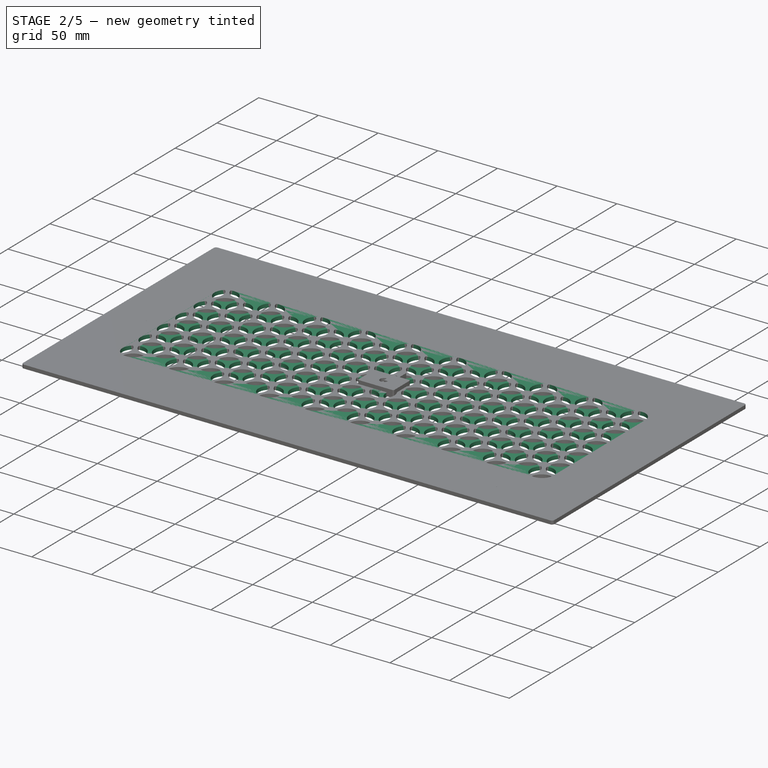
[diagram: stage 2 of 5 — iso view after this stage's code; geometry added in this stage tinted green]
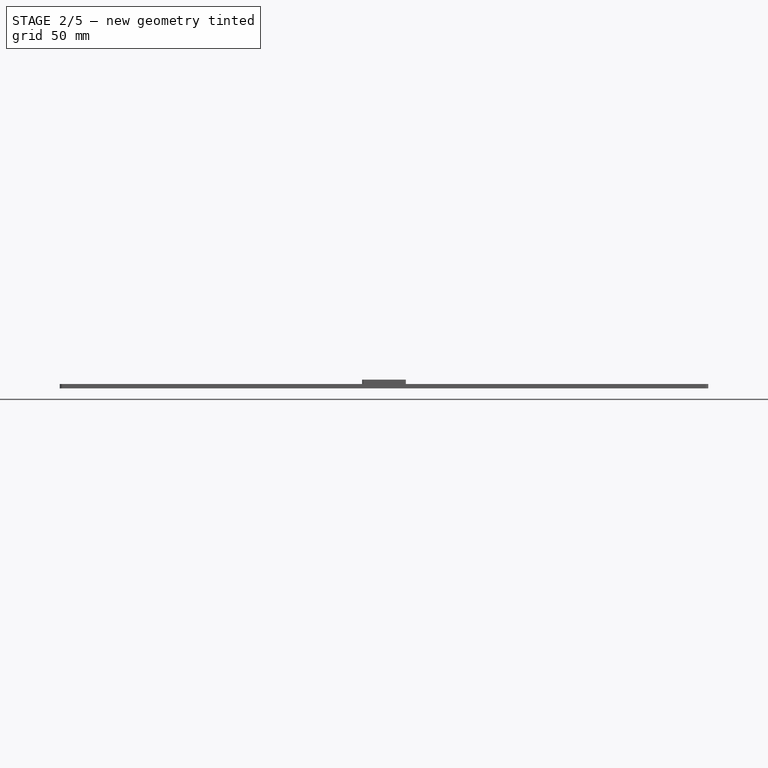
[diagram: stage 2 of 5 — front view after this stage's code; geometry added in this stage tinted green]
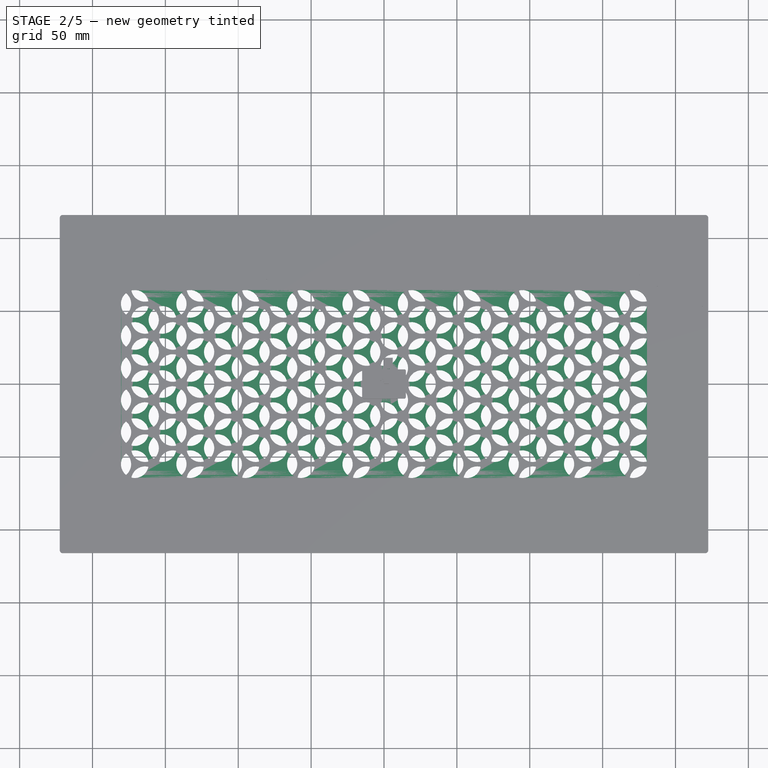
[diagram: stage 2 of 5 — top view after this stage's code; geometry added in this stage tinted green]
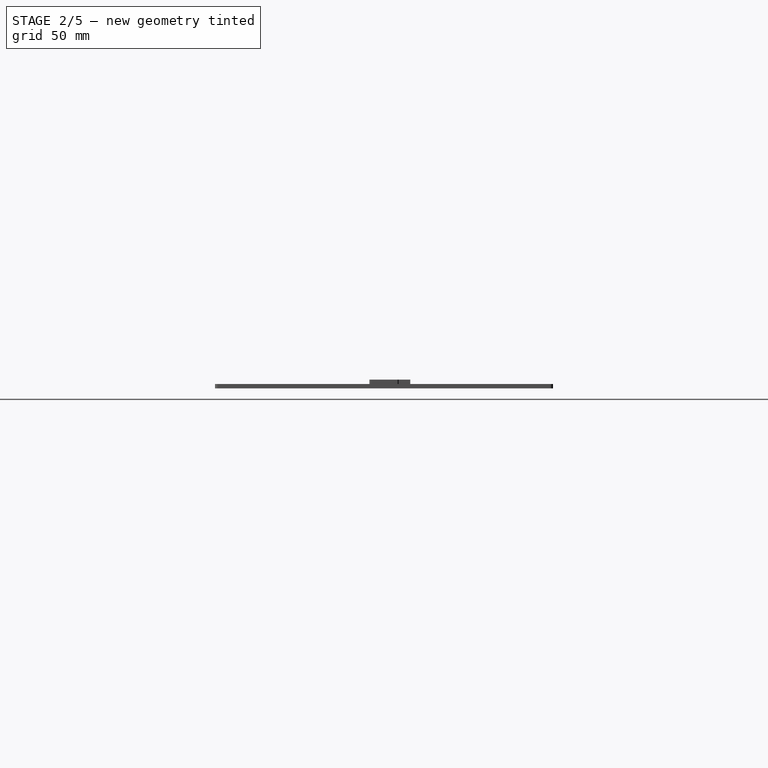
[diagram: stage 2 of 5 — right view after this stage's code; geometry added in this stage tinted green]
FEATURE [Spreadsheet::Sheet] Spreadsheet002  label="Values002"
  cells = A1='space between holes; B1==4 mm; A2='horizontal space between holes; B2=22; A3='vertical space betwenn holes; B3=19; A4='center holes vertically ; B4==B2 * 2.5
FEATURE [Sketcher::SketchObject] Sketch064
  ArcFitTolerance = 1e-06
  AttachmentSupport = -> [XY_Plane020]
  FullyConstrained = false
  MakeInternals = false
  MapMode = 5
  sketch-geometry (16):
    g0: LineSegment StartX=-222.5 StartY=116 StartZ=0 EndX=-222.5 EndY=-116 EndZ=0
    g1: LineSegment StartX=-222.5 StartY=-116 StartZ=0 EndX=222.5 EndY=-116 EndZ=0
    g2: LineSegment StartX=222.5 StartY=-116 StartZ=0 EndX=222.5 EndY=116 EndZ=0
    g3: LineSegment StartX=222.5 StartY=116 StartZ=0 EndX=-222.5 EndY=116 EndZ=0
    g4: LineSegment [constr] StartX=-222.5 StartY=116 StartZ=0 EndX=222.5 EndY=-116 EndZ=0
    g5: LineSegment [constr] StartX=222.5 StartY=116 StartZ=0 EndX=-222.5 EndY=-116 EndZ=0
    g6: LineSegment [constr] StartX=-206.5 StartY=80.7895 StartZ=0 EndX=-206.5 EndY=-79.2105 EndZ=0
    g7: LineSegment [constr] StartX=-206.5 StartY=-79.2105 StartZ=0 EndX=183.5 EndY=-79.2105 EndZ=0
    g8: LineSegment [constr] StartX=183.5 StartY=-79.2105 StartZ=0 EndX=183.5 EndY=80.7895 EndZ=0
    g9: LineSegment [constr] StartX=183.5 StartY=80.7895 StartZ=0 EndX=-206.5 EndY=80.7895 EndZ=0
    g10: LineSegment [constr] StartX=-206.5 StartY=80.7895 StartZ=0 EndX=183.5 EndY=-79.2105 EndZ=0
    g11: LineSegment [constr] StartX=183.5 StartY=80.7895 StartZ=0 EndX=-206.5 EndY=-79.2105 EndZ=0
    g12: LineSegment [constr] StartX=190.5 StartY=57.5 StartZ=0 EndX=190.5 EndY=-57.5 EndZ=0
    g13: LineSegment [constr] StartX=190.5 StartY=-57.5 StartZ=0 EndX=212.5 EndY=-57.5 EndZ=0
    g14: LineSegment [constr] StartX=212.5 StartY=-57.5 StartZ=0 EndX=212.5 EndY=57.5 EndZ=0
    g15: LineSegment [constr] StartX=212.5 StartY=57.5 StartZ=0 EndX=190.5 EndY=57.5 EndZ=0
  constraints (43):
    c: Coincident(g0,g1)
    c: Coincident(g1,g2)
    c: Coincident(g2,g3)
    c: Coincident(g3,g0)
    c: Vertical(g0)
    c: Vertical(g2)
    c: Horizontal(g1)
    c: Horizontal(g3)
    c: Coincident(g4,g0)
    c: Coincident(g4,g1)
    c: Coincident(g5,g2)
    c: Coincident(g5,g0)
    c: DistanceX(g3,g3) = 445
    c: DistanceY(g2,g2) = 232
    c: Coincident(g6,g7)
    c: Coincident(g7,g8)
    c: Coincident(g8,g9)
    c: Coincident(g9,g6)
    c: Vertical(g6)
    c: Vertical(g8)
    c: Horizontal(g7)
    c: Horizontal(g9)
    c: Coincident(g10,g6)
    c: Coincident(g10,g7)
    c: Coincident(g11,g8)
    c: Coincident(g11,g6)
    c: DistanceY(g8,g8) = 160
    c: DistanceX(g9,g9) = 390
    c: DistanceX(g0,g6) = 16
    c: PointOnObject(g-1,g4)
    c: PointOnObject(g-1,g5)
    c: Coincident(g12,g13)
    c: Coincident(g13,g14)
    c: Coincident(g14,g15)
    c: Coincident(g15,g12)
    c: Vertical(g12)
    c: Vertical(g14)
    c: Horizontal(g13)
    c: Horizontal(g15)
    c: DistanceX(g15,g15) = 22
    c: DistanceY(g14,g14) = 115
    c: Distance(g13,g-1) = 57.5
    c: DistanceX(g14,g2) = 10
FEATURE [PartDesign::Pad] Pad024
  Direction = (0,0,1)
  Length = 3
  Length2 = 10
  Profile = -> Sketch064
  ReferenceAxis = -> Sketch064 [N_Axis]
  Suppressed = false
  Type = 0
FEATURE [Sketcher::SketchObject] Sketch065
  ArcFitTolerance = 1e-06
  AttachmentSupport = -> [Pad024]
  FullyConstrained = false
  MakeInternals = false
  MapMode = 5
  Placement = pos=(0,0,3) rot=(0,0,1;0rad)
  expr: Constraints[338] = <<Values003>>.B2
  expr: Constraints[339] = <<Values003>>.B2
  expr: Constraints[340] = <<Values003>>.B2
  expr: Constraints[341] = <<Values003>>.B2
  expr: Constraints[342] = <<Values003>>.B2
  expr: Constraints[343] = <<Values003>>.B2
  expr: Constraints[344] = <<Values003>>.B2
  expr: Constraints[346] = <<Values003>>.B3
  expr: Constraints[347] = <<Values003>>.B3
  expr: Constraints[348] = <<Values003>>.B3
  expr: Constraints[349] = <<Values003>>.B3
  expr: Constraints[350] = <<Values003>>.B3
  expr: Constraints[351] = <<Values003>>.B3
  expr: Constraints[352] = <<Values003>>.B3
  expr: Constraints[353] = <<Values003>>.B3
  expr: Constraints[354] = <<Values003>>.B3
  expr: Constraints[355] = <<Values003>>.B3
  expr: Constraints[356] = <<Values003>>.B3
  expr: Constraints[357] = <<Values003>>.B3
  expr: Constraints[358] = <<Values003>>.B3
  expr: Constraints[359] = <<Values003>>.B3
  expr: Constraints[360] = <<Values003>>.B3
  expr: Constraints[361] = <<Values003>>.B3
  expr: Constraints[362] = <<Values003>>.B3
  expr: Constraints[363] = <<Values003>>.B3
  expr: Constraints[364] = <<Values003>>.B2
  expr: Constraints[383] = <<Values003>>.B2
  expr: Constraints[384] = <<Values003>>.B2
  expr: Constraints[386] = <<Values003>>.B4
  sketch-geometry (139):
    g0: LineSegment [constr] StartX=-222.5 StartY=171.559 StartZ=0 EndX=-222.5 EndY=-148.418 EndZ=0
    g1: LineSegment [constr] StartX=222.5 StartY=164.967 StartZ=0 EndX=222.5 EndY=-175.294 EndZ=0
    g2: LineSegment [constr] StartX=-254.44 StartY=116 StartZ=0 EndX=292.44 EndY=116 EndZ=0
    g3: LineSegment [constr] StartX=344.139 StartY=-116 StartZ=0 EndX=-328.776 EndY=-116 EndZ=0
    g4: LineSegment [constr] StartX=-388.874 StartY=55 StartZ=0 EndX=350.874 EndY=55 EndZ=0
    g5: LineSegment [constr] StartX=-374.694 StartY=33 StartZ=0 EndX=336.694 EndY=33 EndZ=0
    g6: LineSegment [constr] StartX=-385.512 StartY=11 StartZ=0 EndX=347.512 EndY=11 EndZ=0
    g7: LineSegment [constr] StartX=418.964 StartY=-11 StartZ=0 EndX=-456.964 EndY=-11 EndZ=0
    g8: LineSegment [constr] StartX=-352.08 StartY=-33 StartZ=0 EndX=314.08 EndY=-33 EndZ=0
    g9: LineSegment [constr] StartX=257.376 StartY=-55 StartZ=0 EndX=-371.376 EndY=-55 EndZ=0
    g10: Circle CenterX=-171 CenterY=55 CenterZ=0 NormalX=0 NormalY=0 NormalZ=1 AngleXU=0 Radius=9.5
    g11: LineSegment [constr] StartX=-171 StartY=170.843 StartZ=0 EndX=-171 EndY=-155.349 EndZ=0
    g12: Circle CenterX=-171 CenterY=33 CenterZ=0 NormalX=0 NormalY=0 NormalZ=1 AngleXU=0 Radius=9.5
    g13: Circle CenterX=-171 CenterY=11 CenterZ=0 NormalX=0 NormalY=0 NormalZ=1 AngleXU=0 Radius=9.5
    g14: Circle CenterX=-171 CenterY=-11 CenterZ=0 NormalX=0 NormalY=0 NormalZ=1 AngleXU=0 Radius=9.5
    g15: Circle CenterX=-171 CenterY=-33 CenterZ=0 NormalX=0 NormalY=0 NormalZ=1 AngleXU=0 Radius=9.5
    g16: Circle CenterX=-171 CenterY=-55 CenterZ=0 NormalX=0 NormalY=0 NormalZ=1 AngleXU=0 Radius=9.5
    g17: LineSegment [constr] StartX=-258.353 StartY=44 StartZ=0 EndX=182.353 EndY=44 EndZ=0
    g18: LineSegment [constr] StartX=-265.582 StartY=22 StartZ=0 EndX=286.348 EndY=22 EndZ=0
    g19: LineSegment [constr] StartX=-397.004 StartY=-44 StartZ=0 EndX=397.004 EndY=-44 EndZ=0
    g20: LineSegment [constr] StartX=-152 StartY=-153.028 StartZ=0 EndX=-152 EndY=148.477 EndZ=0
    g21: Circle CenterX=-152 CenterY=44 CenterZ=0 NormalX=0 NormalY=0 NormalZ=1 AngleXU=0 Radius=9.5
    g22: Circle CenterX=-152 CenterY=22 CenterZ=0 NormalX=0 NormalY=0 NormalZ=1 AngleXU=0 Radius=9.5
    g23: Circle CenterX=-152 CenterY=0 CenterZ=0 NormalX=0 NormalY=0 NormalZ=1 AngleXU=0 Radius=9.5
    g24: Circle CenterX=-152 CenterY=-22 CenterZ=0 NormalX=0 NormalY=0 NormalZ=1 AngleXU=0 Radius=9.5
    g25: Circle CenterX=-152 CenterY=-44 CenterZ=0 NormalX=0 NormalY=0 NormalZ=1 AngleXU=0 Radius=9.5
    g26: LineSegment [constr] StartX=-133 StartY=130.867 StartZ=0 EndX=-133 EndY=-141.746 EndZ=0
    g27: LineSegment [constr] StartX=-114 StartY=138.96 StartZ=0 EndX=-114 EndY=-164.926 EndZ=0
    g28: LineSegment [constr] StartX=-95 StartY=143.378 StartZ=0 EndX=-95 EndY=-213.194 EndZ=0
    g29: LineSegment [constr] StartX=-76 StartY=148.137 StartZ=0 EndX=-76 EndY=-193.139 EndZ=0
    g30: LineSegment [constr] StartX=-57 StartY=135.221 StartZ=0 EndX=-57 EndY=-193.883 EndZ=0
    g31: Circle CenterX=-133 CenterY=55 CenterZ=0 NormalX=0 NormalY=0 NormalZ=1 AngleXU=0 Radius=9.5
    g32: Circle CenterX=-133 CenterY=33 CenterZ=0 NormalX=0 NormalY=0 NormalZ=1 AngleXU=0 Radius=9.5
    g33: Circle CenterX=-133 CenterY=11 CenterZ=0 NormalX=0 NormalY=0 NormalZ=1 AngleXU=0 Radius=9.5
    g34: Circle CenterX=-133 CenterY=-11 CenterZ=0 NormalX=0 NormalY=0 NormalZ=1 AngleXU=0 Radius=9.5
    g35: Circle CenterX=-133 CenterY=-33 CenterZ=0 NormalX=0 NormalY=0 NormalZ=1 AngleXU=0 Radius=9.5
    g36: Circle CenterX=-133 CenterY=-55 CenterZ=0 NormalX=0 NormalY=0 NormalZ=1 AngleXU=0 Radius=9.5
    g37: Circle CenterX=-114 CenterY=44 CenterZ=0 NormalX=0 NormalY=0 NormalZ=1 AngleXU=0 Radius=9.5
    g38: Circle CenterX=-114 CenterY=22 CenterZ=0 NormalX=0 NormalY=0 NormalZ=1 AngleXU=0 Radius=9.5
    g39: Circle CenterX=-114 CenterY=0 CenterZ=0 NormalX=0 NormalY=0 NormalZ=1 AngleXU=0 Radius=9.5
    g40: Circle CenterX=-114 CenterY=-22 CenterZ=0 NormalX=0 NormalY=0 NormalZ=1 AngleXU=0 Radius=9.5
    g41: Circle CenterX=-114 CenterY=-44 CenterZ=0 NormalX=0 NormalY=0 NormalZ=1 AngleXU=0 Radius=9.5
    g42: Circle CenterX=-95 CenterY=55 CenterZ=0 NormalX=0 NormalY=0 NormalZ=1 AngleXU=0 Radius=9.5
    g43: Circle CenterX=-95 CenterY=33 CenterZ=0 NormalX=0 NormalY=0 NormalZ=1 AngleXU=0 Radius=9.5
    g44: Circle CenterX=-95 CenterY=11 CenterZ=0 NormalX=0 NormalY=0 NormalZ=1 AngleXU=0 Radius=9.5
    g45: Circle CenterX=-95 CenterY=-11 CenterZ=0 NormalX=0 NormalY=0 NormalZ=1 AngleXU=0 Radius=9.5
    g46: Circle CenterX=-95 CenterY=-33 CenterZ=0 NormalX=0 NormalY=0 NormalZ=1 AngleXU=0 Radius=9.5
    g47: Circle CenterX=-95 CenterY=-55 CenterZ=0 NormalX=0 NormalY=0 NormalZ=1 AngleXU=0 Radius=9.5
    g48: Circle CenterX=-76 CenterY=-44 CenterZ=0 NormalX=0 NormalY=0 NormalZ=1 AngleXU=0 Radius=9.5
    g49: Circle CenterX=-76 CenterY=-22 CenterZ=0 NormalX=0 NormalY=0 NormalZ=1 AngleXU=0 Radius=9.5
    g50: Circle CenterX=-76 CenterY=0 CenterZ=0 NormalX=0 NormalY=0 NormalZ=1 AngleXU=0 Radius=9.5
    g51: Circle CenterX=-76 CenterY=22 CenterZ=0 NormalX=0 NormalY=0 NormalZ=1 AngleXU=0 Radius=9.5
    g52: Circle CenterX=-76 CenterY=44 CenterZ=0 NormalX=0 NormalY=0 NormalZ=1 AngleXU=0 Radius=9.5
    g53: LineSegment [constr] StartX=-38 StartY=121.882 StartZ=0 EndX=-38 EndY=-188.509 EndZ=0
    g54: LineSegment [constr] StartX=-19 StartY=120.515 StartZ=0 EndX=-19 EndY=-158.355 EndZ=0
    g55: LineSegment [constr] StartX=0 StartY=111.173 StartZ=0 EndX=0 EndY=-149.46 EndZ=0
    g56: LineSegment [constr] StartX=19 StartY=116 StartZ=0 EndX=19 EndY=-167.817 EndZ=0
    g57: LineSegment [constr] StartX=38 StartY=114.379 StartZ=0 EndX=38 EndY=-167.539 EndZ=0
    g58: LineSegment [constr] StartX=57 StartY=103.247 StartZ=0 EndX=57 EndY=-169.765 EndZ=0
    g59: LineSegment [constr] StartX=76 StartY=96.8461 StartZ=0 EndX=76 EndY=-143.048 EndZ=0
    g60: Circle CenterX=-57 CenterY=55 CenterZ=0 NormalX=0 NormalY=0 NormalZ=1 AngleXU=0 Radius=9.5
    g61: Circle CenterX=-57 CenterY=33 CenterZ=0 NormalX=0 NormalY=0 NormalZ=1 AngleXU=0 Radius=9.5
    g62: Circle CenterX=-57 CenterY=11 CenterZ=0 NormalX=0 NormalY=0 NormalZ=1 AngleXU=0 Radius=9.5
    g63: Circle CenterX=-57 CenterY=-11 CenterZ=0 NormalX=0 NormalY=0 NormalZ=1 AngleXU=0 Radius=9.5
    g64: Circle CenterX=-57 CenterY=-33 CenterZ=0 NormalX=0 NormalY=0 NormalZ=1 AngleXU=0 Radius=9.5
    g65: Circle CenterX=-38 CenterY=44 CenterZ=0 NormalX=0 NormalY=0 NormalZ=1 AngleXU=0 Radius=9.5
    g66: Circle CenterX=-38 CenterY=22 CenterZ=0 NormalX=0 NormalY=0 NormalZ=1 AngleXU=0 Radius=9.5
    g67: Circle CenterX=-38 CenterY=0 CenterZ=0 NormalX=0 NormalY=0 NormalZ=1 AngleXU=0 Radius=9.5
    g68: Circle CenterX=-38 CenterY=-22 CenterZ=0 NormalX=0 NormalY=0 NormalZ=1 AngleXU=0 Radius=9.5
    g69: Circle CenterX=-38 CenterY=-44 CenterZ=0 NormalX=0 NormalY=0 NormalZ=1 AngleXU=0 Radius=9.5
    g70: Circle CenterX=-57 CenterY=-55 CenterZ=0 NormalX=0 NormalY=0 NormalZ=1 AngleXU=0 Radius=9.5
    g71: Circle CenterX=-19 CenterY=55 CenterZ=0 NormalX=0 NormalY=0 NormalZ=1 AngleXU=0 Radius=9.5
    g72: Circle CenterX=-19 CenterY=33 CenterZ=0 NormalX=0 NormalY=0 NormalZ=1 AngleXU=0 Radius=9.5
    g73: Circle CenterX=-19 CenterY=11 CenterZ=0 NormalX=0 NormalY=0 NormalZ=1 AngleXU=0 Radius=9.5
    g74: Circle CenterX=-19 CenterY=-11 CenterZ=0 NormalX=0 NormalY=0 NormalZ=1 AngleXU=0 Radius=9.5
    g75: Circle CenterX=-19 CenterY=-33 CenterZ=0 NormalX=0 NormalY=0 NormalZ=1 AngleXU=0 Radius=9.5
    g76: Circle CenterX=-19 CenterY=-55 CenterZ=0 NormalX=0 NormalY=0 NormalZ=1 AngleXU=0 Radius=9.5
    g77: Circle CenterX=0 CenterY=-44 CenterZ=0 NormalX=0 NormalY=0 NormalZ=1 AngleXU=0 Radius=9.5
    g78: Circle CenterX=-9e-16 CenterY=-22 CenterZ=0 NormalX=0 NormalY=0 NormalZ=1 AngleXU=0 Radius=9.5
    g79: Circle CenterX=-9e-16 CenterY=0 CenterZ=0 NormalX=0 NormalY=0 NormalZ=1 AngleXU=0 Radius=9.5
    g80: Circle CenterX=-9e-16 CenterY=22 CenterZ=0 NormalX=0 NormalY=0 NormalZ=1 AngleXU=0 Radius=9.5
    g81: Circle CenterX=0 CenterY=44 CenterZ=0 NormalX=0 NormalY=0 NormalZ=1 AngleXU=0 Radius=9.5
    g82: Circle CenterX=19 CenterY=55 CenterZ=0 NormalX=0 NormalY=0 NormalZ=1 AngleXU=0 Radius=9.5
    g83: Circle CenterX=19 CenterY=33 CenterZ=0 NormalX=0 NormalY=0 NormalZ=1 AngleXU=0 Radius=9.5
    g84: Circle CenterX=19 CenterY=11 CenterZ=0 NormalX=0 NormalY=0 NormalZ=1 AngleXU=0 Radius=9.5
    g85: Circle CenterX=19 CenterY=-11 CenterZ=0 NormalX=0 NormalY=0 NormalZ=1 AngleXU=0 Radius=9.5
    g86: Circle CenterX=19 CenterY=-33 CenterZ=0 NormalX=0 NormalY=0 NormalZ=1 AngleXU=0 Radius=9.5
    g87: Circle CenterX=19 CenterY=-55 CenterZ=0 NormalX=0 NormalY=0 NormalZ=1 AngleXU=0 Radius=9.5
    g88: Circle CenterX=38 CenterY=-44 CenterZ=0 NormalX=0 NormalY=0 NormalZ=1 AngleXU=0 Radius=9.5
    g89: Circle CenterX=38 CenterY=-22 CenterZ=0 NormalX=0 NormalY=0 NormalZ=1 AngleXU=0 Radius=9.5
    g90: Circle CenterX=38 CenterY=0 CenterZ=0 NormalX=0 NormalY=0 NormalZ=1 AngleXU=0 Radius=9.5
    g91: Circle CenterX=38 CenterY=22 CenterZ=0 NormalX=0 NormalY=0 NormalZ=1 AngleXU=0 Radius=9.5
    g92: Circle CenterX=38 CenterY=44 CenterZ=0 NormalX=0 NormalY=0 NormalZ=1 AngleXU=0 Radius=9.5
    g93: Circle CenterX=57 CenterY=55 CenterZ=0 NormalX=0 NormalY=0 NormalZ=1 AngleXU=0 Radius=9.5
    g94: Circle CenterX=57 CenterY=33 CenterZ=0 NormalX=0 NormalY=0 NormalZ=1 AngleXU=0 Radius=9.5
    g95: Circle CenterX=57 CenterY=11 CenterZ=0 NormalX=0 NormalY=0 NormalZ=1 AngleXU=0 Radius=9.5
    g96: Circle CenterX=57 CenterY=-11 CenterZ=0 NormalX=0 NormalY=0 NormalZ=1 AngleXU=0 Radius=9.5
    g97: Circle CenterX=76 CenterY=0 CenterZ=0 NormalX=0 NormalY=0 NormalZ=1 AngleXU=0 Radius=9.5
    g98: Circle CenterX=76 CenterY=22 CenterZ=0 NormalX=0 NormalY=0 NormalZ=1 AngleXU=0 Radius=9.5
    g99: Circle CenterX=76 CenterY=44 CenterZ=0 NormalX=0 NormalY=0 NormalZ=1 AngleXU=0 Radius=9.5
    g100: Circle CenterX=57 CenterY=-33 CenterZ=0 NormalX=0 NormalY=0 NormalZ=1 AngleXU=0 Radius=9.5
    g101: Circle CenterX=57 CenterY=-55 CenterZ=0 NormalX=0 NormalY=0 NormalZ=1 AngleXU=0 Radius=9.5
    g102: Circle CenterX=76 CenterY=-44 CenterZ=0 NormalX=0 NormalY=0 NormalZ=1 AngleXU=0 Radius=9.5
    g103: Circle CenterX=76 CenterY=-22 CenterZ=0 NormalX=0 NormalY=0 NormalZ=1 AngleXU=0 Radius=9.5
    g104: LineSegment [constr] StartX=95 StartY=100.084 StartZ=0 EndX=95 EndY=-176.599 EndZ=0
    g105: Circle CenterX=95 CenterY=55 CenterZ=0 NormalX=0 NormalY=0 NormalZ=1 AngleXU=0 Radius=9.5
    g106: Circle CenterX=95 CenterY=33 CenterZ=0 NormalX=0 NormalY=0 NormalZ=1 AngleXU=0 Radius=9.5
    g107: Circle CenterX=95 CenterY=11 CenterZ=0 NormalX=0 NormalY=0 NormalZ=1 AngleXU=0 Radius=9.5
    g108: Circle CenterX=95 CenterY=-11 CenterZ=0 NormalX=0 NormalY=0 NormalZ=1 AngleXU=0 Radius=9.5
    g109: Circle CenterX=95 CenterY=-33 CenterZ=0 NormalX=0 NormalY=0 NormalZ=1 AngleXU=0 Radius=9.5
    g110: Circle CenterX=95 CenterY=-55 CenterZ=0 NormalX=0 NormalY=0 NormalZ=1 AngleXU=0 Radius=9.5
    g111: LineSegment [constr] StartX=199.511 StartY=125.276 StartZ=0 EndX=199.511 EndY=-177.251 EndZ=0
    g112: LineSegment [constr] StartX=114 StartY=125.804 StartZ=0 EndX=114 EndY=-181.13 EndZ=0
    g113: LineSegment [constr] StartX=133 StartY=125.241 StartZ=0 EndX=133 EndY=-180.751 EndZ=0
    g114: LineSegment [constr] StartX=152 StartY=126.148 StartZ=0 EndX=152 EndY=-176.262 EndZ=0
    g115: Circle CenterX=114 CenterY=44 CenterZ=0 NormalX=0 NormalY=0 NormalZ=1 AngleXU=0 Radius=9.5
    g116: Circle CenterX=114 CenterY=22 CenterZ=0 NormalX=0 NormalY=0 NormalZ=1 AngleXU=0 Radius=9.5
    g117: Circle CenterX=114 CenterY=0 CenterZ=0 NormalX=0 NormalY=0 NormalZ=1 AngleXU=0 Radius=9.5
    g118: Circle CenterX=114 CenterY=-22 CenterZ=0 NormalX=0 NormalY=0 NormalZ=1 AngleXU=0 Radius=9.5
    g119: Circle CenterX=114 CenterY=-44 CenterZ=0 NormalX=0 NormalY=0 NormalZ=1 AngleXU=0 Radius=9.5
    g120: Circle CenterX=133 CenterY=55 CenterZ=0 NormalX=0 NormalY=0 NormalZ=1 AngleXU=0 Radius=9.5
    g121: Circle CenterX=133 CenterY=33 CenterZ=0 NormalX=0 NormalY=0 NormalZ=1 AngleXU=0 Radius=9.5
    g122: Circle CenterX=133 CenterY=11 CenterZ=0 NormalX=0 NormalY=0 NormalZ=1 AngleXU=0 Radius=9.5
    g123: Circle CenterX=133 CenterY=-11 CenterZ=0 NormalX=0 NormalY=0 NormalZ=1 AngleXU=0 Radius=9.5
    g124: Circle CenterX=133 CenterY=-33 CenterZ=0 NormalX=0 NormalY=0 NormalZ=1 AngleXU=0 Radius=9.5
    g125: Circle CenterX=133 CenterY=-55 CenterZ=0 NormalX=0 NormalY=0 NormalZ=1 AngleXU=0 Radius=9.5
    g126: LineSegment [constr] StartX=171 StartY=131.173 StartZ=0 EndX=171 EndY=-183.407 EndZ=0
    g127: Circle CenterX=152 CenterY=44 CenterZ=0 NormalX=0 NormalY=0 NormalZ=1 AngleXU=0 Radius=9.5
    g128: Circle CenterX=152 CenterY=22 CenterZ=0 NormalX=0 NormalY=0 NormalZ=1 AngleXU=0 Radius=9.5
    g129: Circle CenterX=152 CenterY=0 CenterZ=0 NormalX=0 NormalY=0 NormalZ=1 AngleXU=0 Radius=9.5
    g130: Circle CenterX=152 CenterY=-22 CenterZ=0 NormalX=0 NormalY=0 NormalZ=1 AngleXU=0 Radius=9.5
    g131: Circle CenterX=152 CenterY=-44 CenterZ=0 NormalX=0 NormalY=0 NormalZ=1 AngleXU=0 Radius=9.5
    g132: Circle CenterX=171 CenterY=55 CenterZ=0 NormalX=0 NormalY=0 NormalZ=1 AngleXU=0 Radius=9.5
    g133: Circle CenterX=171 CenterY=33 CenterZ=0 NormalX=0 NormalY=0 NormalZ=1 AngleXU=0 Radius=9.5
    g134: Circle CenterX=171 CenterY=11 CenterZ=0 NormalX=0 NormalY=0 NormalZ=1 AngleXU=0 Radius=9.5
    g135: Circle CenterX=171 CenterY=-11 CenterZ=0 NormalX=0 NormalY=0 NormalZ=1 AngleXU=0 Radius=9.5
    g136: Circle CenterX=171 CenterY=-33 CenterZ=0 NormalX=0 NormalY=0 NormalZ=1 AngleXU=0 Radius=9.5
    g137: Circle CenterX=171 CenterY=-55 CenterZ=0 NormalX=0 NormalY=0 NormalZ=1 AngleXU=0 Radius=9.5
    g138: LineSegment [constr] StartX=-255.839 StartY=-22 StartZ=0 EndX=243.836 EndY=-22 EndZ=0
  constraints (391):
    c: Vertical(g0)
    c: Vertical(g1)
    c: Horizontal(g2)
    c: Horizontal(g3)
    c: DistanceX(g0,g-1) = 222.5
    c: DistanceX(g-1,g1) = 222.5
    c: DistanceY(g-1,g2) = 116
    c: DistanceY(g3,g-1) = 116
    c: Diameter(g10) = 19
    c: Vertical(g11)
    c: PointOnObject(g10,g11)
    c: PointOnObject(g12,g5)
    c: PointOnObject(g13,g6)
    c: PointOnObject(g14,g7)
    c: PointOnObject(g15,g8)
    c: PointOnObject(g16,g9)
    c: PointOnObject(g12,g11)
    c: PointOnObject(g13,g11)
    c: PointOnObject(g14,g11)
    c: PointOnObject(g15,g11)
    c: PointOnObject(g16,g11)
    c: Equal(g12,g10)
    c: Equal(g13,g12)
    c: Equal(g14,g13)
    c: Equal(g15,g14)
    c: Equal(g16,g15)
    c: Horizontal(g17)
    c: Vertical(g20)
    c: PointOnObject(g21,g17)
    c: PointOnObject(g22,g18)
    c: PointOnObject(g23,g-1)
    c: PointOnObject(g25,g19)
    c: Equal(g21,g10)
    c: Equal(g22,g10)
    c: Equal(g23,g10)
    c: Equal(g24,g10)
    c: Equal(g25,g10)
    c: PointOnObject(g21,g20)
    c: PointOnObject(g22,g20)
    c: PointOnObject(g23,g20)
    c: PointOnObject(g24,g20)
    c: PointOnObject(g25,g20)
    c: Vertical(g26)
    c: Vertical(g27)
    c: Vertical(g28)
    c: Vertical(g29)
    c: Vertical(g30)
    c: PointOnObject(g31,g4)
    c: PointOnObject(g32,g5)
    c: PointOnObject(g33,g6)
    c: PointOnObject(g34,g7)
    c: PointOnObject(g35,g8)
    c: PointOnObject(g36,g9)
    c: Equal(g10,g31)
    c: Equal(g32,g10)
    c: Equal(g10,g33)
    c: Equal(g34,g10)
    c: Equal(g35,g10)
    c: Equal(g36,g10)
    c: PointOnObject(g31,g26)
    c: PointOnObject(g32,g26)
    c: PointOnObject(g33,g26)
    c: PointOnObject(g34,g26)
    c: PointOnObject(g35,g26)
    c: PointOnObject(g36,g26)
    c: PointOnObject(g37,g17)
    c: PointOnObject(g38,g18)
    c: PointOnObject(g39,g-1)
    c: PointOnObject(g41,g19)
    c: Equal(g37,g10)
    c: Equal(g38,g10)
    c: Equal(g39,g10)
    c: Equal(g10,g40)
    c: Equal(g41,g10)
    c: PointOnObject(g37,g27)
    c: PointOnObject(g38,g27)
    c: PointOnObject(g39,g27)
    c: PointOnObject(g40,g27)
    c: PointOnObject(g41,g27)
    c: PointOnObject(g42,g4)
    c: PointOnObject(g43,g5)
    c: PointOnObject(g44,g6)
    c: PointOnObject(g45,g7)
    c: PointOnObject(g46,g8)
    c: PointOnObject(g47,g9)
    c: PointOnObject(g48,g19)
    c: PointOnObject(g50,g-1)
    c: PointOnObject(g51,g18)
    c: PointOnObject(g52,g17)
    c: PointOnObject(g42,g28)
    c: PointOnObject(g43,g28)
    c: PointOnObject(g44,g28)
    c: PointOnObject(g51,g29)
    c: PointOnObject(g52,g29)
    c: PointOnObject(g50,g29)
    c: PointOnObject(g45,g28)
    c: PointOnObject(g49,g29)
    c: PointOnObject(g46,g28)
    c: PointOnObject(g48,g29)
    c: PointOnObject(g47,g28)
    c: Equal(g10,g42)
    c: Equal(g43,g10)
    c: Equal(g44,g10)
    c: Equal(g45,g10)
    c: Equal(g46,g10)
    c: Equal(g47,g10)
    c: Equal(g52,g10)
    c: Equal(g51,g10)
    c: Equal(g50,g10)
    c: Equal(g49,g10)
    c: Equal(g48,g10)
    c: Vertical(g53)
    c: Vertical(g54)
    c: Vertical(g55)
    c: Symmetric(g2,g2,g56)
    c: Vertical(g56)
    c: Vertical(g57)
    c: Vertical(g58)
    c: Vertical(g59)
    c: PointOnObject(g60,g4)
    c: PointOnObject(g61,g5)
    c: PointOnObject(g62,g6)
    c: PointOnObject(g63,g7)
    c: PointOnObject(g64,g8)
    c: Symmetric(g17,g17,g65)
    c: PointOnObject(g66,g18)
    c: PointOnObject(g67,g-1)
    c: PointOnObject(g69,g19)
    c: Symmetric(g9,g9,g70)
    c: PointOnObject(g60,g30)
    c: PointOnObject(g61,g30)
    c: PointOnObject(g65,g53)
    c: PointOnObject(g66,g53)
    c: PointOnObject(g62,g30)
    c: PointOnObject(g67,g53)
    c: PointOnObject(g63,g30)
    c: PointOnObject(g68,g53)
    c: PointOnObject(g64,g30)
    c: PointOnObject(g69,g53)
    c: PointOnObject(g70,g30)
    c: Equal(g10,g60)
    c: Equal(g65,g10)
    c: Equal(g61,g10)
    c: Equal(g66,g10)
    c: Equal(g62,g10)
    c: Equal(g67,g10)
    c: Equal(g63,g10)
    c: Equal(g68,g10)
    c: Equal(g64,g10)
    c: Equal(g69,g10)
    c: Equal(g70,g10)
    c: Symmetric(g4,g4,g71)
    c: Symmetric(g5,g5,g72)
    c: Symmetric(g6,g6,g73)
    c: Symmetric(g7,g7,g74)
    c: Symmetric(g8,g8,g75)
    c: PointOnObject(g76,g9)
    c: Symmetric(g19,g19,g77)
    c: PointOnObject(g79,g-1)
    c: PointOnObject(g80,g18)
    c: PointOnObject(g81,g17)
    c: PointOnObject(g82,g4)
    c: PointOnObject(g83,g5)
    c: PointOnObject(g84,g6)
    c: PointOnObject(g85,g7)
    c: PointOnObject(g86,g8)
    c: PointOnObject(g87,g9)
    c: PointOnObject(g88,g19)
    c: PointOnObject(g90,g-1)
    c: PointOnObject(g91,g18)
    c: PointOnObject(g92,g17)
    c: PointOnObject(g71,g54)
    c: PointOnObject(g72,g54)
    c: PointOnObject(g73,g54)
    c: PointOnObject(g74,g54)
    c: PointOnObject(g75,g54)
    c: PointOnObject(g76,g54)
    c: PointOnObject(g77,g55)
    c: PointOnObject(g78,g55)
    c: PointOnObject(g79,g55)
    c: PointOnObject(g80,g55)
    c: PointOnObject(g81,g55)
    c: PointOnObject(g82,g56)
    c: PointOnObject(g83,g56)
    c: PointOnObject(g84,g56)
    c: PointOnObject(g85,g56)
    c: PointOnObject(g86,g56)
    c: PointOnObject(g87,g56)
    c: PointOnObject(g88,g57)
    c: PointOnObject(g89,g57)
    c: PointOnObject(g90,g57)
    c: PointOnObject(g91,g57)
    c: PointOnObject(g92,g57)
    c: Equal(g10,g71)
    c: Equal(g72,g10)
    c: Equal(g73,g10)
    c: Equal(g74,g10)
    c: Equal(g75,g10)
    c: Equal(g81,g10)
    c: Equal(g82,g10)
    c: Equal(g83,g10)
    c: Equal(g10,g80)
    c: Equal(g84,g10)
    c: Equal(g92,g10)
    c: Equal(g91,g10)
    c: Equal(g90,g10)
    c: Equal(g79,g10)
    c: Equal(g85,g10)
    c: Equal(g86,g10)
    c: Equal(g78,g10)
    c: Equal(g89,g10)
    c: Equal(g76,g10)
    c: Equal(g87,g10)
    c: Equal(g10,g77)
    c: Equal(g88,g10)
    c: Distance(g4,g2) = 61
    c: PointOnObject(g93,g4)
    c: PointOnObject(g94,g5)
    c: PointOnObject(g95,g6)
    c: PointOnObject(g96,g7)
    c: PointOnObject(g97,g-1)
    c: PointOnObject(g98,g18)
    c: PointOnObject(g99,g17)
    c: PointOnObject(g100,g8)
    c: PointOnObject(g101,g9)
    c: PointOnObject(g102,g19)
    c: PointOnObject(g101,g58)
    c: PointOnObject(g100,g58)
    c: PointOnObject(g96,g58)
    c: PointOnObject(g95,g58)
    c: PointOnObject(g94,g58)
    c: PointOnObject(g93,g58)
    c: PointOnObject(g99,g59)
    c: PointOnObject(g98,g59)
    c: PointOnObject(g97,g59)
    c: PointOnObject(g103,g59)
    c: PointOnObject(g102,g59)
    c: Vertical(g104)
    c: PointOnObject(g105,g4)
    c: PointOnObject(g106,g5)
    c: PointOnObject(g107,g6)
    c: PointOnObject(g108,g7)
    c: PointOnObject(g109,g8)
    c: PointOnObject(g110,g9)
    c: Equal(g90,g101)
    c: Equal(g100,g90)
    c: Equal(g96,g90)
    c: Equal(g95,g90)
    c: Equal(g94,g90)
    c: Equal(g93,g90)
    c: Equal(g97,g90)
    c: Equal(g98,g90)
    c: Equal(g99,g90)
    c: Equal(g105,g90)
    c: Equal(g106,g90)
    c: Equal(g107,g90)
    c: Equal(g108,g90)
    c: Equal(g103,g90)
    c: Equal(g109,g90)
    c: Equal(g102,g90)
    c: Equal(g110,g90)
    c: PointOnObject(g105,g104)
    c: PointOnObject(g106,g104)
    c: PointOnObject(g107,g104)
    c: PointOnObject(g108,g104)
    c: PointOnObject(g109,g104)
    c: PointOnObject(g110,g104)
    c: Vertical(g111)
    c: Vertical(g112)
    c: Vertical(g113)
    c: Vertical(g114)
    c: PointOnObject(g115,g112)
    c: PointOnObject(g115,g17)
    c: PointOnObject(g116,g18)
    c: PointOnObject(g117,g-1)
    c: PointOnObject(g119,g19)
    c: Equal(g10,g115)
    c: Equal(g116,g10)
    c: Equal(g117,g10)
    c: Equal(g118,g10)
    c: Equal(g119,g10)
    c: PointOnObject(g116,g112)
    c: PointOnObject(g117,g112)
    c: PointOnObject(g118,g112)
    c: PointOnObject(g119,g112)
    c: PointOnObject(g120,g4)
    c: PointOnObject(g121,g5)
    c: PointOnObject(g122,g6)
    c: PointOnObject(g123,g7)
    c: PointOnObject(g124,g8)
    c: PointOnObject(g125,g9)
    c: PointOnObject(g125,g113)
    c: PointOnObject(g124,g113)
    c: PointOnObject(g123,g113)
    c: PointOnObject(g122,g113)
    c: PointOnObject(g121,g113)
    c: PointOnObject(g120,g113)
    c: Equal(g120,g121)
    c: Equal(g121,g122)
    c: Equal(g122,g123)
    c: Equal(g123,g124)
    c: Equal(g124,g125)
    c: Equal(g125,g10)
    c: Vertical(g126)
    c: PointOnObject(g127,g17)
    c: PointOnObject(g128,g18)
    c: PointOnObject(g129,g-1)
    c: PointOnObject(g131,g19)
    c: PointOnObject(g131,g114)
    c: PointOnObject(g130,g114)
    c: PointOnObject(g129,g114)
    c: PointOnObject(g128,g114)
    c: PointOnObject(g127,g114)
    c: Equal(g131,g130)
    c: Equal(g130,g129)
    c: Equal(g129,g128)
    c: Equal(g128,g127)
    c: Equal(g127,g10)
    c: PointOnObject(g132,g4)
    c: PointOnObject(g133,g5)
    c: PointOnObject(g134,g6)
    c: PointOnObject(g135,g7)
    c: PointOnObject(g136,g8)
    c: PointOnObject(g137,g9)
    c: PointOnObject(g137,g126)
    c: PointOnObject(g136,g126)
    c: PointOnObject(g135,g126)
    c: PointOnObject(g134,g126)
    c: PointOnObject(g133,g126)
    c: PointOnObject(g132,g126)
    c: Equal(g132,g133)
    c: Equal(g133,g134)
    c: Equal(g134,g135)
    c: Equal(g135,g136)
    c: Equal(g136,g137)
    c: Equal(g137,g10)
    c: DistanceX(g126,g1) = 51.5
    c: Distance(g10,g12) = 3
    c: Distance(g18,g-1) = 22
    c: Distance(g17,g18) = 22
    c: Distance(g5,g4) = 22
    c: Distance(g6,g5) = 22
    c: Distance(g6,g7) = 22
    c: Distance(g7,g8) = 22
    c: Distance(g9,g8) = 22
    c: Distance(g10,g21) = 2.9545
    c: Distance(g20,g11) = 19
    c: DistanceX(g20,g26) = 19
    c: Distance(g27,g26) = 19
    c: Distance(g28,g27) = 19
    c: Distance(g29,g28) = 19
    c: Distance(g29,g30) = 19
    c: Distance(g53,g30) = 19
    c: Distance(g54,g53) = 19
    c: Distance(g55,g54) = 19
    c: Distance(g56,g55) = 19
    c: Distance(g57,g56) = 19
    c: Distance(g58,g57) = 19
    c: Distance(g59,g58) = 19
    c: Distance(g104,g59) = 19
    c: Distance(g112,g104) = 19
    c: Distance(g113,g112) = 19
    c: Distance(g114,g113) = 19
    c: Distance(g126,g114) = 19
    c: DistanceY(g9,g8) = 22
    c: Horizontal(g138)
    c: PointOnObject(g24,g138)
    c: PointOnObject(g40,g138)
    c: PointOnObject(g49,g138)
    c: PointOnObject(g68,g138)
    c: PointOnObject(g78,g138)
    c: PointOnObject(g89,g138)
    c: PointOnObject(g103,g138)
    c: PointOnObject(g118,g138)
    c: PointOnObject(g130,g138)
    c: Horizontal(g9)
    c: Horizontal(g19)
    c: Horizontal(g7)
    c: Horizontal(g6)
    c: Horizontal(g18)
    c: Horizontal(g5)
    c: Horizontal(g4)
    c: PointOnObject(g10,g4)
    c: Distance(g19,g138) = 22
    c: Distance(g-1,g138) = 22
    c: Distance(g21,g32) = 2.9545
    c: Distance(g9,g-1) = 55
    c: DistanceY(g9,g4) = 110
    c: DistanceX(g55,g-1) = 0
    c: DistanceX(g11,g55) = 171
    c: DistanceX(g55,g126) = 171
FEATURE [PartDesign::Pocket] Pocket040
  BaseFeature = -> Pad024
  Direction = (0,0,-1)
  Length = 5
  Length2 = 5
  Profile = -> Sketch065
  ReferenceAxis = -> Sketch065 [N_Axis]
  Suppressed = false
  Type = 0
FEATURE [PartDesign::Fillet] Fillet009
  Base = -> Pocket040 [Edge2,Edge8,Edge5,Edge1]
  BaseFeature = -> Pocket040
  Radius = 2
  SupportTransform = false
  Suppressed = false
  UseAllEdges = false
FEATURE [PartDesign::Body] Body020  label="FrontPannel_Visible003"
  AllowCompound = false
  Group = -> [Sketch064,Pad024,Sketch065,Pocket040,Fillet009,Sketch066,Pocket041,Sketch081,Pocket053]
  Origin = -> Origin020
  Tip = -> Pocket053
FEATURE [App::DocumentObjectGroup] Group001  label="Top"
  Group = -> [Body018,Spreadsheet001,Body019,Spreadsheet002,Body020,Spreadsheet003]
FEATURE [Sketcher::SketchObject] Sketch082
  ArcFitTolerance = 1e-06
  AttachmentSupport = -> [XY_Plane021]
  FullyConstrained = false
  MakeInternals = false
  MapMode = 5
  sketch-geometry (16):
    g0: LineSegment StartX=-222.5 StartY=116 StartZ=0 EndX=-222.5 EndY=-116 EndZ=0
    g1: LineSegment StartX=-222.5 StartY=-116 StartZ=0 EndX=222.5 EndY=-116 EndZ=0
    g2: LineSegment StartX=222.5 StartY=-116 StartZ=0 EndX=222.5 EndY=116 EndZ=0
    g3: LineSegment StartX=222.5 StartY=116 StartZ=0 EndX=-222.5 EndY=116 EndZ=0
    g4: LineSegment [constr] StartX=-222.5 StartY=116 StartZ=0 EndX=222.5 EndY=-116 EndZ=0
    g5: LineSegment [constr] StartX=222.5 StartY=116 StartZ=0 EndX=-222.5 EndY=-116 EndZ=0
    g6: LineSegment [constr] StartX=-206.5 StartY=80.7895 StartZ=0 EndX=-206.5 EndY=-79.2105 EndZ=0
    g7: LineSegment [constr] StartX=-206.5 StartY=-79.2105 StartZ=0 EndX=183.5 EndY=-79.2105 EndZ=0
    g8: LineSegment [constr] StartX=183.5 StartY=-79.2105 StartZ=0 EndX=183.5 EndY=80.7895 EndZ=0
    g9: LineSegment [constr] StartX=183.5 StartY=80.7895 StartZ=0 EndX=-206.5 EndY=80.7895 EndZ=0
    g10: LineSegment [constr] StartX=-206.5 StartY=80.7895 StartZ=0 EndX=183.5 EndY=-79.2105 EndZ=0
    g11: LineSegment [constr] StartX=183.5 StartY=80.7895 StartZ=0 EndX=-206.5 EndY=-79.2105 EndZ=0
    g12: LineSegment [constr] StartX=190.5 StartY=57.5 StartZ=0 EndX=190.5 EndY=-57.5 EndZ=0
    g13: LineSegment [constr] StartX=190.5 StartY=-57.5 StartZ=0 EndX=212.5 EndY=-57.5 EndZ=0
    g14: LineSegment [constr] StartX=212.5 StartY=-57.5 StartZ=0 EndX=212.5 EndY=57.5 EndZ=0
    g15: LineSegment [constr] StartX=212.5 StartY=57.5 StartZ=0 EndX=190.5 EndY=57.5 EndZ=0
  constraints (43):
    c: Coincident(g0,g1)
    c: Coincident(g1,g2)
    c: Coincident(g2,g3)
    c: Coincident(g3,g0)
    c: Vertical(g0)
    c: Vertical(g2)
    c: Horizontal(g1)
    c: Horizontal(g3)
    c: Coincident(g4,g0)
    c: Coincident(g4,g1)
    c: Coincident(g5,g2)
    c: Coincident(g5,g0)
    c: DistanceX(g3,g3) = 445
    c: DistanceY(g2,g2) = 232
    c: Coincident(g6,g7)
    c: Coincident(g7,g8)
    c: Coincident(g8,g9)
    c: Coincident(g9,g6)
    c: Vertical(g6)
    c: Vertical(g8)
    c: Horizontal(g7)
    c: Horizontal(g9)
    c: Coincident(g10,g6)
    c: Coincident(g10,g7)
    c: Coincident(g11,g8)
    c: Coincident(g11,g6)
    c: DistanceY(g8,g8) = 160
    c: DistanceX(g9,g9) = 390
    c: DistanceX(g0,g6) = 16
    c: PointOnObject(g-1,g4)
    c: PointOnObject(g-1,g5)
    c: Coincident(g12,g13)
    c: Coincident(g13,g14)
    c: Coincident(g14,g15)
    c: Coincident(g15,g12)
    c: Vertical(g12)
    c: Vertical(g14)
    c: Horizontal(g13)
    c: Horizontal(g15)
    c: DistanceX(g15,g15) = 22
    c: DistanceY(g14,g14) = 115
    c: Distance(g13,g-1) = 57.5
    c: DistanceX(g14,g2) = 10
FEATURE [PartDesign::Pad] Pad025
  Direction = (0,0,1)
  Length = 3
  Length2 = 10
  Profile = -> Sketch082
  ReferenceAxis = -> Sketch082 [N_Axis]
  Suppressed = false
  Type = 0
FEATURE [Sketcher::SketchObject] Sketch083
  ArcFitTolerance = 1e-06
  AttachmentSupport = -> [Pad025]
  FullyConstrained = false
  MakeInternals = false
  MapMode = 5
  Placement = pos=(0,0,3) rot=(0,0,1;0rad)
  expr: Constraints[338] = <<Values004>>.B2
  expr: Constraints[339] = <<Values004>>.B2
  expr: Constraints[340] = <<Values004>>.B2
  expr: Constraints[341] = <<Values004>>.B2
  expr: Constraints[342] = <<Values004>>.B2
  expr: Constraints[343] = <<Values004>>.B2
  expr: Constraints[344] = <<Values004>>.B2
  expr: Constraints[346] = <<Values004>>.B3
  expr: Constraints[347] = <<Values004>>.B3
  expr: Constraints[348] = <<Values004>>.B3
  expr: Constraints[349] = <<Values004>>.B3
  expr: Constraints[350] = <<Values004>>.B3
  expr: Constraints[351] = <<Values004>>.B3
  expr: Constraints[352] = <<Values004>>.B3
  expr: Constraints[353] = <<Values004>>.B3
  expr: Constraints[354] = <<Values004>>.B3
  expr: Constraints[355] = <<Values004>>.B3
  expr: Constraints[356] = <<Values004>>.B3
  expr: Constraints[357] = <<Values004>>.B3
  expr: Constraints[358] = <<Values004>>.B3
  expr: Constraints[359] = <<Values004>>.B3
  expr: Constraints[360] = <<Values004>>.B3
  expr: Constraints[361] = <<Values004>>.B3
  expr: Constraints[362] = <<Values004>>.B3
  expr: Constraints[363] = <<Values004>>.B3
  expr: Constraints[364] = <<Values004>>.B2
  expr: Constraints[383] = <<Values004>>.B2
  expr: Constraints[384] = <<Values004>>.B2
  expr: Constraints[386] = <<Values004>>.B4
  expr: Constraints[392] = <<Values004>>.B2
  expr: Constraints[393] = <<Values004>>.B2
  expr: Constraints[471] = <<Values004>>.B3
  sketch-geometry (167):
    g0: LineSegment [constr] StartX=-222.5 StartY=171.559 StartZ=0 EndX=-222.5 EndY=-148.418 EndZ=0
    g1: LineSegment [constr] StartX=222.5 StartY=164.967 StartZ=0 EndX=222.5 EndY=-175.294 EndZ=0
    g2: LineSegment [constr] StartX=-276.156 StartY=116 StartZ=0 EndX=290.156 EndY=116 EndZ=0
    g3: LineSegment [constr] StartX=344.139 StartY=-116 StartZ=0 EndX=-328.776 EndY=-116 EndZ=0
    g4: LineSegment [constr] StartX=-393.388 StartY=55 StartZ=0 EndX=331.388 EndY=55 EndZ=0
    g5: LineSegment [constr] StartX=-379.371 StartY=33 StartZ=0 EndX=317.371 EndY=33 EndZ=0
    g6: LineSegment [constr] StartX=-387.52 StartY=11 StartZ=0 EndX=325.52 EndY=11 EndZ=0
    g7: LineSegment [constr] StartX=417.439 StartY=-11 StartZ=0 EndX=-479.439 EndY=-11 EndZ=0
    g8: LineSegment [constr] StartX=-372.23 StartY=-33 StartZ=0 EndX=310.23 EndY=-33 EndZ=0
    g9: LineSegment [constr] StartX=253.91 StartY=-55 StartZ=0 EndX=-391.91 EndY=-55 EndZ=0
    g10: Circle CenterX=-183 CenterY=55 CenterZ=0 NormalX=0 NormalY=0 NormalZ=1 AngleXU=0 Radius=9.5
    g11: LineSegment [constr] StartX=-183 StartY=170.843 StartZ=0 EndX=-183 EndY=-155.349 EndZ=0
    g12: Circle CenterX=-183 CenterY=33 CenterZ=0 NormalX=0 NormalY=0 NormalZ=1 AngleXU=0 Radius=9.5
    g13: Circle CenterX=-183 CenterY=11 CenterZ=0 NormalX=0 NormalY=0 NormalZ=1 AngleXU=0 Radius=9.5
    g14: Circle CenterX=-183 CenterY=-11 CenterZ=0 NormalX=0 NormalY=0 NormalZ=1 AngleXU=0 Radius=9.5
    g15: Circle CenterX=-183 CenterY=-33 CenterZ=0 NormalX=0 NormalY=0 NormalZ=1 AngleXU=0 Radius=9.5
    g16: Circle CenterX=-183 CenterY=-55 CenterZ=0 NormalX=0 NormalY=0 NormalZ=1 AngleXU=0 Radius=9.5
    g17: LineSegment [constr] StartX=-365.627 StartY=44 StartZ=0 EndX=265.627 EndY=44 EndZ=0
    g18: LineSegment [constr] StartX=-265.582 StartY=22 StartZ=0 EndX=286.348 EndY=22 EndZ=0
    g19: LineSegment [constr] StartX=-405.934 StartY=-44 StartZ=0 EndX=381.934 EndY=-44 EndZ=0
    g20: LineSegment [constr] StartX=-164 StartY=-153.028 StartZ=0 EndX=-164 EndY=148.477 EndZ=0
    g21: Circle CenterX=-164 CenterY=44 CenterZ=0 NormalX=0 NormalY=0 NormalZ=1 AngleXU=0 Radius=9.5
    g22: Circle CenterX=-164 CenterY=22 CenterZ=0 NormalX=0 NormalY=0 NormalZ=1 AngleXU=0 Radius=9.5
    g23: Circle CenterX=-164 CenterY=0 CenterZ=0 NormalX=0 NormalY=0 NormalZ=1 AngleXU=0 Radius=9.5
    g24: Circle CenterX=-164 CenterY=-22 CenterZ=0 NormalX=0 NormalY=0 NormalZ=1 AngleXU=0 Radius=9.5
    g25: Circle CenterX=-164 CenterY=-44 CenterZ=0 NormalX=0 NormalY=0 NormalZ=1 AngleXU=0 Radius=9.5
    g26: LineSegment [constr] StartX=-145 StartY=130.867 StartZ=0 EndX=-145 EndY=-141.746 EndZ=0
    g27: LineSegment [constr] StartX=-126 StartY=138.96 StartZ=0 EndX=-126 EndY=-164.926 EndZ=0
    g28: LineSegment [constr] StartX=-107 StartY=143.378 StartZ=0 EndX=-107 EndY=-213.194 EndZ=0
    g29: LineSegment [constr] StartX=-88 StartY=148.137 StartZ=0 EndX=-88 EndY=-193.139 EndZ=0
    g30: LineSegment [constr] StartX=-69 StartY=135.221 StartZ=0 EndX=-69 EndY=-193.883 EndZ=0
    g31: Circle CenterX=-145 CenterY=55 CenterZ=0 NormalX=0 NormalY=0 NormalZ=1 AngleXU=0 Radius=9.5
    g32: Circle CenterX=-145 CenterY=33 CenterZ=0 NormalX=0 NormalY=0 NormalZ=1 AngleXU=0 Radius=9.5
    g33: Circle CenterX=-145 CenterY=11 CenterZ=0 NormalX=0 NormalY=0 NormalZ=1 AngleXU=0 Radius=9.5
    g34: Circle CenterX=-145 CenterY=-11 CenterZ=0 NormalX=0 NormalY=0 NormalZ=1 AngleXU=0 Radius=9.5
    g35: Circle CenterX=-145 CenterY=-33 CenterZ=0 NormalX=0 NormalY=0 NormalZ=1 AngleXU=0 Radius=9.5
    g36: Circle CenterX=-145 CenterY=-55 CenterZ=0 NormalX=0 NormalY=0 NormalZ=1 AngleXU=0 Radius=9.5
    g37: Circle CenterX=-126 CenterY=44 CenterZ=0 NormalX=0 NormalY=0 NormalZ=1 AngleXU=0 Radius=9.5
    g38: Circle CenterX=-126 CenterY=22 CenterZ=0 NormalX=0 NormalY=0 NormalZ=1 AngleXU=0 Radius=9.5
    g39: Circle CenterX=-126 CenterY=0 CenterZ=0 NormalX=0 NormalY=0 NormalZ=1 AngleXU=0 Radius=9.5
    g40: Circle CenterX=-126 CenterY=-22 CenterZ=0 NormalX=0 NormalY=0 NormalZ=1 AngleXU=0 Radius=9.5
    g41: Circle CenterX=-126 CenterY=-44 CenterZ=0 NormalX=0 NormalY=0 NormalZ=1 AngleXU=0 Radius=9.5
    g42: Circle CenterX=-107 CenterY=55 CenterZ=0 NormalX=0 NormalY=0 NormalZ=1 AngleXU=0 Radius=9.5
    g43: Circle CenterX=-107 CenterY=33 CenterZ=0 NormalX=0 NormalY=0 NormalZ=1 AngleXU=0 Radius=9.5
    g44: Circle CenterX=-107 CenterY=11 CenterZ=0 NormalX=0 NormalY=0 NormalZ=1 AngleXU=0 Radius=9.5
    g45: Circle CenterX=-107 CenterY=-11 CenterZ=0 NormalX=0 NormalY=0 NormalZ=1 AngleXU=0 Radius=9.5
    g46: Circle CenterX=-107 CenterY=-33 CenterZ=0 NormalX=0 NormalY=0 NormalZ=1 AngleXU=0 Radius=9.5
    g47: Circle CenterX=-107 CenterY=-55 CenterZ=0 NormalX=0 NormalY=0 NormalZ=1 AngleXU=0 Radius=9.5
    g48: Circle CenterX=-88 CenterY=-44 CenterZ=0 NormalX=0 NormalY=0 NormalZ=1 AngleXU=0 Radius=9.5
    g49: Circle CenterX=-88 CenterY=-22 CenterZ=0 NormalX=0 NormalY=0 NormalZ=1 AngleXU=0 Radius=9.5
    g50: Circle CenterX=-88 CenterY=0 CenterZ=0 NormalX=0 NormalY=0 NormalZ=1 AngleXU=0 Radius=9.5
    g51: Circle CenterX=-88 CenterY=22 CenterZ=0 NormalX=0 NormalY=0 NormalZ=1 AngleXU=0 Radius=9.5
    g52: Circle CenterX=-88 CenterY=44 CenterZ=0 NormalX=0 NormalY=0 NormalZ=1 AngleXU=0 Radius=9.5
    g53: LineSegment [constr] StartX=-50 StartY=121.882 StartZ=0 EndX=-50 EndY=-188.509 EndZ=0
    g54: LineSegment [constr] StartX=-31 StartY=120.515 StartZ=0 EndX=-31 EndY=-158.355 EndZ=0
    g55: LineSegment [constr] StartX=-12 StartY=110.14 StartZ=0 EndX=-12 EndY=-150.493 EndZ=0
    g56: LineSegment [constr] StartX=7 StartY=116 StartZ=0 EndX=7 EndY=-167.817 EndZ=0
    g57: LineSegment [constr] StartX=26 StartY=114.379 StartZ=0 EndX=26 EndY=-167.539 EndZ=0
    g58: LineSegment [constr] StartX=45 StartY=103.247 StartZ=0 EndX=45 EndY=-169.765 EndZ=0
    g59: LineSegment [constr] StartX=64 StartY=96.8461 StartZ=0 EndX=64 EndY=-143.048 EndZ=0
    g60: Circle CenterX=-69 CenterY=55 CenterZ=0 NormalX=0 NormalY=0 NormalZ=1 AngleXU=0 Radius=9.5
    g61: Circle CenterX=-69 CenterY=33 CenterZ=0 NormalX=0 NormalY=0 NormalZ=1 AngleXU=0 Radius=9.5
    g62: Circle CenterX=-69 CenterY=11 CenterZ=0 NormalX=0 NormalY=0 NormalZ=1 AngleXU=0 Radius=9.5
    g63: Circle CenterX=-69 CenterY=-11 CenterZ=0 NormalX=0 NormalY=0 NormalZ=1 AngleXU=0 Radius=9.5
    g64: Circle CenterX=-69 CenterY=-33 CenterZ=0 NormalX=0 NormalY=0 NormalZ=1 AngleXU=0 Radius=9.5
    g65: Circle CenterX=-50 CenterY=44 CenterZ=0 NormalX=0 NormalY=0 NormalZ=1 AngleXU=0 Radius=9.5
    g66: Circle CenterX=-50 CenterY=22 CenterZ=0 NormalX=0 NormalY=0 NormalZ=1 AngleXU=0 Radius=9.5
    g67: Circle CenterX=-50 CenterY=0 CenterZ=0 NormalX=0 NormalY=0 NormalZ=1 AngleXU=0 Radius=9.5
    g68: Circle CenterX=-50 CenterY=-22 CenterZ=0 NormalX=0 NormalY=0 NormalZ=1 AngleXU=0 Radius=9.5
    g69: Circle CenterX=-50 CenterY=-44 CenterZ=0 NormalX=0 NormalY=0 NormalZ=1 AngleXU=0 Radius=9.5
    g70: Circle CenterX=-69 CenterY=-55 CenterZ=0 NormalX=0 NormalY=0 NormalZ=1 AngleXU=0 Radius=9.5
    g71: Circle CenterX=-31 CenterY=55 CenterZ=0 NormalX=0 NormalY=0 NormalZ=1 AngleXU=0 Radius=9.5
    g72: Circle CenterX=-31 CenterY=33 CenterZ=0 NormalX=0 NormalY=0 NormalZ=1 AngleXU=0 Radius=9.5
    g73: Circle CenterX=-31 CenterY=11 CenterZ=0 NormalX=0 NormalY=0 NormalZ=1 AngleXU=0 Radius=9.5
    g74: Circle CenterX=-31 CenterY=-11 CenterZ=0 NormalX=0 NormalY=0 NormalZ=1 AngleXU=0 Radius=9.5
    g75: Circle CenterX=-31 CenterY=-33 CenterZ=0 NormalX=0 NormalY=0 NormalZ=1 AngleXU=0 Radius=9.5
    g76: Circle CenterX=-31 CenterY=-55 CenterZ=0 NormalX=0 NormalY=0 NormalZ=1 AngleXU=0 Radius=9.5
    g77: Circle CenterX=-12 CenterY=-44 CenterZ=0 NormalX=0 NormalY=0 NormalZ=1 AngleXU=0 Radius=9.5
    g78: Circle CenterX=-12 CenterY=-22 CenterZ=0 NormalX=0 NormalY=0 NormalZ=1 AngleXU=0 Radius=9.5
    g79: Circle CenterX=-12 CenterY=0 CenterZ=0 NormalX=0 NormalY=0 NormalZ=1 AngleXU=0 Radius=9.5
    g80: Circle CenterX=-12 CenterY=22 CenterZ=0 NormalX=0 NormalY=0 NormalZ=1 AngleXU=0 Radius=9.5
    g81: Circle CenterX=-12 CenterY=44 CenterZ=0 NormalX=0 NormalY=0 NormalZ=1 AngleXU=0 Radius=9.5
    g82: Circle CenterX=7 CenterY=55 CenterZ=0 NormalX=0 NormalY=0 NormalZ=1 AngleXU=0 Radius=9.5
    g83: Circle CenterX=7 CenterY=33 CenterZ=0 NormalX=0 NormalY=0 NormalZ=1 AngleXU=0 Radius=9.5
    g84: Circle CenterX=7 CenterY=11 CenterZ=0 NormalX=0 NormalY=0 NormalZ=1 AngleXU=0 Radius=9.5
    g85: Circle CenterX=7 CenterY=-11 CenterZ=0 NormalX=0 NormalY=0 NormalZ=1 AngleXU=0 Radius=9.5
    g86: Circle CenterX=7 CenterY=-33 CenterZ=0 NormalX=0 NormalY=0 NormalZ=1 AngleXU=0 Radius=9.5
    g87: Circle CenterX=7 CenterY=-55 CenterZ=0 NormalX=0 NormalY=0 NormalZ=1 AngleXU=0 Radius=9.5
    g88: Circle CenterX=26 CenterY=-44 CenterZ=0 NormalX=0 NormalY=0 NormalZ=1 AngleXU=0 Radius=9.5
    g89: Circle CenterX=26 CenterY=-22 CenterZ=0 NormalX=0 NormalY=0 NormalZ=1 AngleXU=0 Radius=9.5
    g90: Circle CenterX=26 CenterY=0 CenterZ=0 NormalX=0 NormalY=0 NormalZ=1 AngleXU=0 Radius=9.5
    g91: Circle CenterX=26 CenterY=22 CenterZ=0 NormalX=0 NormalY=0 NormalZ=1 AngleXU=0 Radius=9.5
    g92: Circle CenterX=26 CenterY=44 CenterZ=0 NormalX=0 NormalY=0 NormalZ=1 AngleXU=0 Radius=9.5
    g93: Circle CenterX=45 CenterY=55 CenterZ=0 NormalX=0 NormalY=0 NormalZ=1 AngleXU=0 Radius=9.5
    g94: Circle CenterX=45 CenterY=33 CenterZ=0 NormalX=0 NormalY=0 NormalZ=1 AngleXU=0 Radius=9.5
    g95: Circle CenterX=45 CenterY=11 CenterZ=0 NormalX=0 NormalY=0 NormalZ=1 AngleXU=0 Radius=9.5
    g96: Circle CenterX=45 CenterY=-11 CenterZ=0 NormalX=0 NormalY=0 NormalZ=1 AngleXU=0 Radius=9.5
    g97: Circle CenterX=64 CenterY=0 CenterZ=0 NormalX=0 NormalY=0 NormalZ=1 AngleXU=0 Radius=9.5
    g98: Circle CenterX=64 CenterY=22 CenterZ=0 NormalX=0 NormalY=0 NormalZ=1 AngleXU=0 Radius=9.5
    g99: Circle CenterX=64 CenterY=44 CenterZ=0 NormalX=0 NormalY=0 NormalZ=1 AngleXU=0 Radius=9.5
    g100: Circle CenterX=45 CenterY=-33 CenterZ=0 NormalX=0 NormalY=0 NormalZ=1 AngleXU=0 Radius=9.5
    g101: Circle CenterX=45 CenterY=-55 CenterZ=0 NormalX=0 NormalY=0 NormalZ=1 AngleXU=0 Radius=9.5
    g102: Circle CenterX=64 CenterY=-44 CenterZ=0 NormalX=0 NormalY=0 NormalZ=1 AngleXU=0 Radius=9.5
    g103: Circle CenterX=64 CenterY=-22 CenterZ=0 NormalX=0 NormalY=0 NormalZ=1 AngleXU=0 Radius=9.5
    g104: LineSegment [constr] StartX=83 StartY=100.084 StartZ=0 EndX=83 EndY=-176.599 EndZ=0
    g105: Circle CenterX=83 CenterY=55 CenterZ=0 NormalX=0 NormalY=0 NormalZ=1 AngleXU=0 Radius=9.5
    g106: Circle CenterX=83 CenterY=33 CenterZ=0 NormalX=0 NormalY=0 NormalZ=1 AngleXU=0 Radius=9.5
    g107: Circle CenterX=83 CenterY=11 CenterZ=0 NormalX=0 NormalY=0 NormalZ=1 AngleXU=0 Radius=9.5
    g108: Circle CenterX=83 CenterY=-11 CenterZ=0 NormalX=0 NormalY=0 NormalZ=1 AngleXU=0 Radius=9.5
    g109: Circle CenterX=83 CenterY=-33 CenterZ=0 NormalX=0 NormalY=0 NormalZ=1 AngleXU=0 Radius=9.5
    g110: Circle CenterX=83 CenterY=-55 CenterZ=0 NormalX=0 NormalY=0 NormalZ=1 AngleXU=0 Radius=9.5
    g111: LineSegment [constr] StartX=199.511 StartY=125.276 StartZ=0 EndX=199.511 EndY=-177.251 EndZ=0
    g112: LineSegment [constr] StartX=102 StartY=125.804 StartZ=0 EndX=102 EndY=-181.13 EndZ=0
    g113: LineSegment [constr] StartX=121 StartY=125.241 StartZ=0 EndX=121 EndY=-180.751 EndZ=0
    g114: LineSegment [constr] StartX=140 StartY=126.148 StartZ=0 EndX=140 EndY=-176.262 EndZ=0
    g115: Circle CenterX=102 CenterY=44 CenterZ=0 NormalX=0 NormalY=0 NormalZ=1 AngleXU=0 Radius=9.5
    g116: Circle CenterX=102 CenterY=22 CenterZ=0 NormalX=0 NormalY=0 NormalZ=1 AngleXU=0 Radius=9.5
    g117: Circle CenterX=102 CenterY=0 CenterZ=0 NormalX=0 NormalY=0 NormalZ=1 AngleXU=0 Radius=9.5
    g118: Circle CenterX=102 CenterY=-22 CenterZ=0 NormalX=0 NormalY=0 NormalZ=1 AngleXU=0 Radius=9.5
    g119: Circle CenterX=102 CenterY=-44 CenterZ=0 NormalX=0 NormalY=0 NormalZ=1 AngleXU=0 Radius=9.5
    g120: Circle CenterX=121 CenterY=55 CenterZ=0 NormalX=0 NormalY=0 NormalZ=1 AngleXU=0 Radius=9.5
    g121: Circle CenterX=121 CenterY=33 CenterZ=0 NormalX=0 NormalY=0 NormalZ=1 AngleXU=0 Radius=9.5
    g122: Circle CenterX=121 CenterY=11 CenterZ=0 NormalX=0 NormalY=0 NormalZ=1 AngleXU=0 Radius=9.5
    g123: Circle CenterX=121 CenterY=-11 CenterZ=0 NormalX=0 NormalY=0 NormalZ=1 AngleXU=0 Radius=9.5
    g124: Circle CenterX=121 CenterY=-33 CenterZ=0 NormalX=0 NormalY=0 NormalZ=1 AngleXU=0 Radius=9.5
    g125: Circle CenterX=121 CenterY=-55 CenterZ=0 NormalX=0 NormalY=0 NormalZ=1 AngleXU=0 Radius=9.5
    g126: LineSegment [constr] StartX=159 StartY=131.173 StartZ=0 EndX=159 EndY=-183.407 EndZ=0
    g127: Circle CenterX=140 CenterY=44 CenterZ=0 NormalX=0 NormalY=0 NormalZ=1 AngleXU=0 Radius=9.5
    g128: Circle CenterX=140 CenterY=22 CenterZ=0 NormalX=0 NormalY=0 NormalZ=1 AngleXU=0 Radius=9.5
    g129: Circle CenterX=140 CenterY=0 CenterZ=0 NormalX=0 NormalY=0 NormalZ=1 AngleXU=0 Radius=9.5
    g130: Circle CenterX=140 CenterY=-22 CenterZ=0 NormalX=0 NormalY=0 NormalZ=1 AngleXU=0 Radius=9.5
    g131: Circle CenterX=140 CenterY=-44 CenterZ=0 NormalX=0 NormalY=0 NormalZ=1 AngleXU=0 Radius=9.5
    g132: Circle CenterX=159 CenterY=55 CenterZ=0 NormalX=0 NormalY=0 NormalZ=1 AngleXU=0 Radius=9.5
    g133: Circle CenterX=159 CenterY=33 CenterZ=0 NormalX=0 NormalY=0 NormalZ=1 AngleXU=0 Radius=9.5
    g134: Circle CenterX=159 CenterY=11 CenterZ=0 NormalX=0 NormalY=0 NormalZ=1 AngleXU=0 Radius=9.5
    g135: Circle CenterX=159 CenterY=-11 CenterZ=0 NormalX=0 NormalY=0 NormalZ=1 AngleXU=0 Radius=9.5
    g136: Circle CenterX=159 CenterY=-33 CenterZ=0 NormalX=0 NormalY=0 NormalZ=1 AngleXU=0 Radius=9.5
    g137: Circle CenterX=159 CenterY=-55 CenterZ=0 NormalX=0 NormalY=0 NormalZ=1 AngleXU=0 Radius=9.5
    g138: LineSegment [constr] StartX=-255.839 StartY=-22 StartZ=0 EndX=243.836 EndY=-22 EndZ=0
    g139: LineSegment [constr] StartX=-312.069 StartY=66 StartZ=0 EndX=237.298 EndY=66 EndZ=0
    g140: LineSegment [constr] StartX=270.708 StartY=-66 StartZ=0 EndX=-250.072 EndY=-66 EndZ=0
    g141: Circle CenterX=-164 CenterY=66 CenterZ=0 NormalX=0 NormalY=0 NormalZ=1 AngleXU=0 Radius=9.5
    g142: Circle CenterX=-126 CenterY=66 CenterZ=0 NormalX=0 NormalY=0 NormalZ=1 AngleXU=0 Radius=9.5
    g143: Circle CenterX=-88 CenterY=66 CenterZ=0 NormalX=0 NormalY=0 NormalZ=1 AngleXU=0 Radius=9.5
    g144: Circle CenterX=-50 CenterY=66 CenterZ=0 NormalX=0 NormalY=0 NormalZ=1 AngleXU=0 Radius=9.5
    g145: Circle CenterX=-12 CenterY=66 CenterZ=0 NormalX=0 NormalY=0 NormalZ=1 AngleXU=0 Radius=9.5
    g146: Circle CenterX=26 CenterY=66 CenterZ=0 NormalX=0 NormalY=0 NormalZ=1 AngleXU=0 Radius=9.5
    g147: Circle CenterX=64 CenterY=66 CenterZ=0 NormalX=0 NormalY=0 NormalZ=1 AngleXU=0 Radius=9.5
    g148: Circle CenterX=102 CenterY=66 CenterZ=0 NormalX=0 NormalY=0 NormalZ=1 AngleXU=0 Radius=9.5
    g149: Circle CenterX=140 CenterY=66 CenterZ=0 NormalX=0 NormalY=0 NormalZ=1 AngleXU=0 Radius=9.5
    g150: Circle CenterX=-164 CenterY=-66 CenterZ=0 NormalX=0 NormalY=0 NormalZ=1 AngleXU=0 Radius=9.5
    g151: Circle CenterX=-126 CenterY=-66 CenterZ=0 NormalX=0 NormalY=0 NormalZ=1 AngleXU=0 Radius=9.5
    g152: Circle CenterX=-88 CenterY=-66 CenterZ=0 NormalX=0 NormalY=0 NormalZ=1 AngleXU=0 Radius=9.5
    g153: Circle CenterX=-50 CenterY=-66 CenterZ=0 NormalX=0 NormalY=0 NormalZ=1 AngleXU=0 Radius=9.5
    g154: Circle CenterX=-12 CenterY=-66 CenterZ=0 NormalX=0 NormalY=0 NormalZ=1 AngleXU=0 Radius=9.5
    g155: Circle CenterX=26 CenterY=-66 CenterZ=0 NormalX=0 NormalY=0 NormalZ=1 AngleXU=0 Radius=9.5
    g156: Circle CenterX=64 CenterY=-66 CenterZ=0 NormalX=0 NormalY=0 NormalZ=1 AngleXU=0 Radius=9.5
    g157: Circle CenterX=102 CenterY=-66 CenterZ=0 NormalX=0 NormalY=0 NormalZ=1 AngleXU=0 Radius=9.5
    g158: Circle CenterX=140 CenterY=-66 CenterZ=0 NormalX=0 NormalY=0 NormalZ=1 AngleXU=0 Radius=9.5
    g159: LineSegment [constr] StartX=178 StartY=123.897 StartZ=0 EndX=178 EndY=-103.435 EndZ=0
    g160: Circle CenterX=178 CenterY=66 CenterZ=0 NormalX=0 NormalY=0 NormalZ=1 AngleXU=0 Radius=9.5
    g161: Circle CenterX=178 CenterY=44 CenterZ=0 NormalX=0 NormalY=0 NormalZ=1 AngleXU=0 Radius=9.5
    g162: Circle CenterX=178 CenterY=22 CenterZ=0 NormalX=0 NormalY=0 NormalZ=1 AngleXU=0 Radius=9.5
    g163: Circle CenterX=178 CenterY=0 CenterZ=0 NormalX=0 NormalY=0 NormalZ=1 AngleXU=0 Radius=9.5
    g164: Circle CenterX=178 CenterY=-22 CenterZ=0 NormalX=0 NormalY=0 NormalZ=1 AngleXU=0 Radius=9.5
    g165: Circle CenterX=178 CenterY=-44 CenterZ=0 NormalX=0 NormalY=0 NormalZ=1 AngleXU=0 Radius=9.5
    g166: Circle CenterX=178 CenterY=-66 CenterZ=0 NormalX=0 NormalY=0 NormalZ=1 AngleXU=0 Radius=9.5
  constraints (472):
    c: Vertical(g0)
    c: Vertical(g1)
    c: Horizontal(g2)
    c: Horizontal(g3)
    c: DistanceX(g0,g-1) = 222.5
    c: DistanceX(g-1,g1) = 222.5
    c: DistanceY(g-1,g2) = 116
    c: DistanceY(g3,g-1) = 116
    c: Diameter(g10) = 19
    c: Vertical(g11)
    c: PointOnObject(g10,g11)
    c: PointOnObject(g12,g5)
    c: PointOnObject(g13,g6)
    c: PointOnObject(g14,g7)
    c: PointOnObject(g15,g8)
    c: PointOnObject(g16,g9)
    c: PointOnObject(g12,g11)
    c: PointOnObject(g13,g11)
    c: PointOnObject(g14,g11)
    c: PointOnObject(g15,g11)
    c: PointOnObject(g16,g11)
    c: Equal(g12,g10)
    c: Equal(g13,g12)
    c: Equal(g14,g13)
    c: Equal(g15,g14)
    c: Equal(g16,g15)
    c: Horizontal(g17)
    c: Vertical(g20)
    c: PointOnObject(g21,g17)
    c: PointOnObject(g22,g18)
    c: PointOnObject(g23,g-1)
    c: PointOnObject(g25,g19)
    c: Equal(g21,g10)
    c: Equal(g22,g10)
    c: Equal(g23,g10)
    c: Equal(g24,g10)
    c: Equal(g25,g10)
    c: PointOnObject(g21,g20)
    c: PointOnObject(g22,g20)
    c: PointOnObject(g23,g20)
    c: PointOnObject(g24,g20)
    c: PointOnObject(g25,g20)
    c: Vertical(g26)
    c: Vertical(g27)
    c: Vertical(g28)
    c: Vertical(g29)
    c: Vertical(g30)
    c: PointOnObject(g31,g4)
    c: PointOnObject(g32,g5)
    c: PointOnObject(g33,g6)
    c: PointOnObject(g34,g7)
    c: PointOnObject(g35,g8)
    c: PointOnObject(g36,g9)
    c: Equal(g10,g31)
    c: Equal(g32,g10)
    c: Equal(g10,g33)
    c: Equal(g34,g10)
    c: Equal(g35,g10)
    c: Equal(g36,g10)
    c: PointOnObject(g31,g26)
    c: PointOnObject(g32,g26)
    c: PointOnObject(g33,g26)
    c: PointOnObject(g34,g26)
    c: PointOnObject(g35,g26)
    c: PointOnObject(g36,g26)
    c: PointOnObject(g37,g17)
    c: PointOnObject(g38,g18)
    c: PointOnObject(g39,g-1)
    c: PointOnObject(g41,g19)
    c: Equal(g37,g10)
    c: Equal(g38,g10)
    c: Equal(g39,g10)
    c: Equal(g10,g40)
    c: Equal(g41,g10)
    c: PointOnObject(g37,g27)
    c: PointOnObject(g38,g27)
    c: PointOnObject(g39,g27)
    c: PointOnObject(g40,g27)
    c: PointOnObject(g41,g27)
    c: PointOnObject(g42,g4)
    c: PointOnObject(g43,g5)
    c: PointOnObject(g44,g6)
    c: PointOnObject(g45,g7)
    c: PointOnObject(g46,g8)
    c: PointOnObject(g47,g9)
    c: PointOnObject(g48,g19)
    c: PointOnObject(g50,g-1)
    c: PointOnObject(g51,g18)
    c: PointOnObject(g52,g17)
    c: PointOnObject(g42,g28)
    c: PointOnObject(g43,g28)
    c: PointOnObject(g44,g28)
    c: PointOnObject(g51,g29)
    c: PointOnObject(g52,g29)
    c: PointOnObject(g50,g29)
    c: PointOnObject(g45,g28)
    c: PointOnObject(g49,g29)
    c: PointOnObject(g46,g28)
    c: PointOnObject(g48,g29)
    c: PointOnObject(g47,g28)
    c: Equal(g10,g42)
    c: Equal(g43,g10)
    c: Equal(g44,g10)
    c: Equal(g45,g10)
    c: Equal(g46,g10)
    c: Equal(g47,g10)
    c: Equal(g52,g10)
    c: Equal(g51,g10)
    c: Equal(g50,g10)
    c: Equal(g49,g10)
    c: Equal(g48,g10)
    c: Vertical(g53)
    c: Vertical(g54)
    c: Vertical(g55)
    c: Symmetric(g2,g2,g56)
    c: Vertical(g56)
    c: Vertical(g57)
    c: Vertical(g58)
    c: Vertical(g59)
    c: PointOnObject(g60,g4)
    c: PointOnObject(g61,g5)
    c: PointOnObject(g62,g6)
    c: PointOnObject(g63,g7)
    c: PointOnObject(g64,g8)
    c: Symmetric(g17,g17,g65)
    c: PointOnObject(g66,g18)
    c: PointOnObject(g67,g-1)
    c: PointOnObject(g69,g19)
    c: Symmetric(g9,g9,g70)
    c: PointOnObject(g60,g30)
    c: PointOnObject(g61,g30)
    c: PointOnObject(g65,g53)
    c: PointOnObject(g66,g53)
    c: PointOnObject(g62,g30)
    c: PointOnObject(g67,g53)
    c: PointOnObject(g63,g30)
    c: PointOnObject(g68,g53)
    c: PointOnObject(g64,g30)
    c: PointOnObject(g69,g53)
    c: PointOnObject(g70,g30)
    c: Equal(g10,g60)
    c: Equal(g65,g10)
    c: Equal(g61,g10)
    c: Equal(g66,g10)
    c: Equal(g62,g10)
    c: Equal(g67,g10)
    c: Equal(g63,g10)
    c: Equal(g68,g10)
    c: Equal(g64,g10)
    c: Equal(g69,g10)
    c: Equal(g70,g10)
    c: Symmetric(g4,g4,g71)
    c: Symmetric(g5,g5,g72)
    c: Symmetric(g6,g6,g73)
    c: Symmetric(g7,g7,g74)
    c: Symmetric(g8,g8,g75)
    c: PointOnObject(g76,g9)
    c: Symmetric(g19,g19,g77)
    c: PointOnObject(g79,g-1)
    c: PointOnObject(g80,g18)
    c: PointOnObject(g81,g17)
    c: PointOnObject(g82,g4)
    c: PointOnObject(g83,g5)
    c: PointOnObject(g84,g6)
    c: PointOnObject(g85,g7)
    c: PointOnObject(g86,g8)
    c: PointOnObject(g87,g9)
    c: PointOnObject(g88,g19)
    c: PointOnObject(g90,g-1)
    c: PointOnObject(g91,g18)
    c: PointOnObject(g92,g17)
    c: PointOnObject(g71,g54)
    c: PointOnObject(g72,g54)
    c: PointOnObject(g73,g54)
    c: PointOnObject(g74,g54)
    c: PointOnObject(g75,g54)
    c: PointOnObject(g76,g54)
    c: PointOnObject(g77,g55)
    c: PointOnObject(g78,g55)
    c: PointOnObject(g79,g55)
    c: PointOnObject(g80,g55)
    c: PointOnObject(g81,g55)
    c: PointOnObject(g82,g56)
    c: PointOnObject(g83,g56)
    c: PointOnObject(g84,g56)
    c: PointOnObject(g85,g56)
    c: PointOnObject(g86,g56)
    c: PointOnObject(g87,g56)
    c: PointOnObject(g88,g57)
    c: PointOnObject(g89,g57)
    c: PointOnObject(g90,g57)
    c: PointOnObject(g91,g57)
    c: PointOnObject(g92,g57)
    c: Equal(g10,g71)
    c: Equal(g72,g10)
    c: Equal(g73,g10)
    c: Equal(g74,g10)
    c: Equal(g75,g10)
    c: Equal(g81,g10)
    c: Equal(g82,g10)
    c: Equal(g83,g10)
    c: Equal(g10,g80)
    c: Equal(g84,g10)
    c: Equal(g92,g10)
    c: Equal(g91,g10)
    c: Equal(g90,g10)
    c: Equal(g79,g10)
    c: Equal(g85,g10)
    c: Equal(g86,g10)
    c: Equal(g78,g10)
    c: Equal(g89,g10)
    c: Equal(g76,g10)
    c: Equal(g87,g10)
    c: Equal(g10,g77)
    c: Equal(g88,g10)
    c: Distance(g4,g2) = 61
    c: PointOnObject(g93,g4)
    c: PointOnObject(g94,g5)
    c: PointOnObject(g95,g6)
    c: PointOnObject(g96,g7)
    c: PointOnObject(g97,g-1)
    c: PointOnObject(g98,g18)
    c: PointOnObject(g99,g17)
    c: PointOnObject(g100,g8)
    c: PointOnObject(g101,g9)
    c: PointOnObject(g102,g19)
    c: PointOnObject(g101,g58)
    c: PointOnObject(g100,g58)
    c: PointOnObject(g96,g58)
    c: PointOnObject(g95,g58)
    c: PointOnObject(g94,g58)
    c: PointOnObject(g93,g58)
    c: PointOnObject(g99,g59)
    c: PointOnObject(g98,g59)
    c: PointOnObject(g97,g59)
    c: PointOnObject(g103,g59)
    c: PointOnObject(g102,g59)
    c: Vertical(g104)
    c: PointOnObject(g105,g4)
    c: PointOnObject(g106,g5)
    c: PointOnObject(g107,g6)
    c: PointOnObject(g108,g7)
    c: PointOnObject(g109,g8)
    c: PointOnObject(g110,g9)
    c: Equal(g90,g101)
    c: Equal(g100,g90)
    c: Equal(g96,g90)
    c: Equal(g95,g90)
    c: Equal(g94,g90)
    c: Equal(g93,g90)
    c: Equal(g97,g90)
    c: Equal(g98,g90)
    c: Equal(g99,g90)
    c: Equal(g105,g90)
    c: Equal(g106,g90)
    c: Equal(g107,g90)
    c: Equal(g108,g90)
    c: Equal(g103,g90)
    c: Equal(g109,g90)
    c: Equal(g102,g90)
    c: Equal(g110,g90)
    c: PointOnObject(g105,g104)
    c: PointOnObject(g106,g104)
    c: PointOnObject(g107,g104)
    c: PointOnObject(g108,g104)
    c: PointOnObject(g109,g104)
    c: PointOnObject(g110,g104)
    c: Vertical(g111)
    c: Vertical(g112)
    c: Vertical(g113)
    c: Vertical(g114)
    c: PointOnObject(g115,g112)
    c: PointOnObject(g115,g17)
    c: PointOnObject(g116,g18)
    c: PointOnObject(g117,g-1)
    c: PointOnObject(g119,g19)
    c: Equal(g10,g115)
    c: Equal(g116,g10)
    c: Equal(g117,g10)
    c: Equal(g118,g10)
    c: Equal(g119,g10)
    c: PointOnObject(g116,g112)
    c: PointOnObject(g117,g112)
    c: PointOnObject(g118,g112)
    c: PointOnObject(g119,g112)
    c: PointOnObject(g120,g4)
    c: PointOnObject(g121,g5)
    c: PointOnObject(g122,g6)
    c: PointOnObject(g123,g7)
    c: PointOnObject(g124,g8)
    c: PointOnObject(g125,g9)
    c: PointOnObject(g125,g113)
    c: PointOnObject(g124,g113)
    c: PointOnObject(g123,g113)
    c: PointOnObject(g122,g113)
    c: PointOnObject(g121,g113)
    c: PointOnObject(g120,g113)
    c: Equal(g120,g121)
    c: Equal(g121,g122)
    c: Equal(g122,g123)
    c: Equal(g123,g124)
    c: Equal(g124,g125)
    c: Equal(g125,g10)
    c: Vertical(g126)
    c: PointOnObject(g127,g17)
    c: PointOnObject(g128,g18)
    c: PointOnObject(g129,g-1)
    c: PointOnObject(g131,g19)
    c: PointOnObject(g131,g114)
    c: PointOnObject(g130,g114)
    c: PointOnObject(g129,g114)
    c: PointOnObject(g128,g114)
    c: PointOnObject(g127,g114)
    c: Equal(g131,g130)
    c: Equal(g130,g129)
    c: Equal(g129,g128)
    c: Equal(g128,g127)
    c: Equal(g127,g10)
    c: PointOnObject(g132,g4)
    c: PointOnObject(g133,g5)
    c: PointOnObject(g134,g6)
    c: PointOnObject(g135,g7)
    c: PointOnObject(g136,g8)
    c: PointOnObject(g137,g9)
    c: PointOnObject(g137,g126)
    c: PointOnObject(g136,g126)
    c: PointOnObject(g135,g126)
    c: PointOnObject(g134,g126)
    c: PointOnObject(g133,g126)
    c: PointOnObject(g132,g126)
    c: Equal(g132,g133)
    c: Equal(g133,g134)
    c: Equal(g134,g135)
    c: Equal(g135,g136)
    c: Equal(g136,g137)
    c: Equal(g137,g10)
    c: DistanceX(g126,g1) = 63.5
    c: Distance(g10,g12) = 3
    c: Distance(g18,g-1) = 22
    c: Distance(g17,g18) = 22
    c: Distance(g5,g4) = 22
    c: Distance(g6,g5) = 22
    c: Distance(g6,g7) = 22
    c: Distance(g7,g8) = 22
    c: Distance(g9,g8) = 22
    c: Distance(g10,g21) = 2.9545
    c: Distance(g20,g11) = 19
    c: DistanceX(g20,g26) = 19
    c: Distance(g27,g26) = 19
    c: Distance(g28,g27) = 19
    c: Distance(g29,g28) = 19
    c: Distance(g29,g30) = 19
    c: Distance(g53,g30) = 19
    c: Distance(g54,g53) = 19
    c: Distance(g55,g54) = 19
    c: Distance(g56,g55) = 19
    c: Distance(g57,g56) = 19
    c: Distance(g58,g57) = 19
    c: Distance(g59,g58) = 19
    c: Distance(g104,g59) = 19
    c: Distance(g112,g104) = 19
    c: Distance(g113,g112) = 19
    c: Distance(g114,g113) = 19
    c: Distance(g126,g114) = 19
    c: DistanceY(g9,g8) = 22
    c: Horizontal(g138)
    c: PointOnObject(g24,g138)
    c: PointOnObject(g40,g138)
    c: PointOnObject(g49,g138)
    c: PointOnObject(g68,g138)
    c: PointOnObject(g78,g138)
    c: PointOnObject(g89,g138)
    c: PointOnObject(g103,g138)
    c: PointOnObject(g118,g138)
    c: PointOnObject(g130,g138)
    c: Horizontal(g9)
    c: Horizontal(g19)
    c: Horizontal(g7)
    c: Horizontal(g6)
    c: Horizontal(g18)
    c: Horizontal(g5)
    c: Horizontal(g4)
    c: PointOnObject(g10,g4)
    c: Distance(g19,g138) = 22
    c: Distance(g-1,g138) = 22
    c: Distance(g21,g32) = 2.9545
    c: Distance(g9,g-1) = 55
    c: DistanceY(g9,g4) = 110
    c: DistanceX(g11,g55) = 171
    c: DistanceX(g55,g126) = 171
    c: Horizontal(g139)
    c: Horizontal(g140)
    c: Distance(g140,g19) = 22
    c: Distance(g17,g139) = 22
    c: PointOnObject(g141,g139)
    c: PointOnObject(g142,g139)
    c: PointOnObject(g143,g139)
    c: PointOnObject(g144,g139)
    c: PointOnObject(g147,g139)
    c: PointOnObject(g149,g139)
    c: PointOnObject(g148,g139)
    c: PointOnObject(g149,g114)
    c: PointOnObject(g148,g112)
    c: PointOnObject(g147,g59)
    c: PointOnObject(g146,g57)
    c: PointOnObject(g145,g139)
    c: PointOnObject(g145,g55)
    c: PointOnObject(g144,g53)
    c: PointOnObject(g143,g29)
    c: PointOnObject(g142,g27)
    c: PointOnObject(g141,g20)
    c: Equal(g141,g142)
    c: Equal(g142,g143)
    c: Equal(g143,g144)
    c: Equal(g144,g145)
    c: Equal(g145,g146)
    c: Equal(g146,g147)
    c: Equal(g147,g148)
    c: Equal(g148,g149)
    c: Equal(g149,g10)
    c: PointOnObject(g150,g140)
    c: PointOnObject(g151,g27)
    c: PointOnObject(g152,g29)
    c: PointOnObject(g153,g53)
    c: PointOnObject(g154,g55)
    c: PointOnObject(g155,g57)
    c: PointOnObject(g156,g59)
    c: PointOnObject(g157,g112)
    c: PointOnObject(g158,g114)
    c: PointOnObject(g158,g140)
    c: PointOnObject(g157,g140)
    c: PointOnObject(g156,g140)
    c: PointOnObject(g155,g140)
    c: PointOnObject(g154,g140)
    c: PointOnObject(g153,g140)
    c: PointOnObject(g152,g140)
    c: PointOnObject(g151,g140)
    c: PointOnObject(g150,g20)
    c: Equal(g150,g151)
    c: Equal(g151,g152)
    c: Equal(g152,g153)
    c: Equal(g153,g154)
    c: Equal(g154,g155)
    c: Equal(g155,g156)
    c: Equal(g156,g157)
    c: Equal(g157,g158)
    c: Equal(g158,g10)
    c: Distance(g55,g-2) = 12
    c: Vertical(g159)
    c: PointOnObject(g160,g139)
    c: PointOnObject(g161,g17)
    c: PointOnObject(g162,g18)
    c: PointOnObject(g163,g-1)
    c: PointOnObject(g164,g138)
    c: PointOnObject(g165,g19)
    c: PointOnObject(g166,g140)
    c: PointOnObject(g166,g159)
    c: PointOnObject(g165,g159)
    c: PointOnObject(g164,g159)
    c: PointOnObject(g163,g159)
    c: PointOnObject(g162,g159)
    c: PointOnObject(g161,g159)
    c: PointOnObject(g160,g159)
    c: Equal(g164,g163)
    c: Equal(g163,g165)
    c: Equal(g165,g166)
    c: Equal(g166,g162)
    c: Equal(g162,g161)
    c: Equal(g161,g160)
    c: Equal(g160,g10)
    c: PointOnObject(g146,g139)
    c: DistanceX(g126,g159) = 19
FEATURE [PartDesign::Pocket] Pocket054
  BaseFeature = -> Pad025
  Direction = (0,0,-1)
  Length = 5
  Length2 = 5
  Profile = -> Sketch083
  ReferenceAxis = -> Sketch083 [N_Axis]
  Suppressed = false
  Type = 0
FEATURE [PartDesign::Fillet] Fillet010
  Base = -> Pocket054 [Edge2,Edge8,Edge5,Edge1]
  BaseFeature = -> Pocket054
  Radius = 2
  SupportTransform = false
  Suppressed = false
  UseAllEdges = false
FEATURE [Sketcher::SketchObject] Sketch084
  ArcFitTolerance = 1e-06
  AttachmentOffset = pos=(0,0,10) rot=(0,0,1;0rad)
  AttachmentSupport = -> [XY_Plane021]
  FullyConstrained = false
  MakeInternals = false
  MapMode = 5
  Placement = pos=(0,0,10) rot=(0,0,1;0rad)
  sketch-geometry (15):
    g0: LineSegment [constr] StartX=190.5 StartY=57.5 StartZ=0 EndX=190.5 EndY=-57.5 EndZ=0
    g1: LineSegment [constr] StartX=190.5 StartY=-57.5 StartZ=0 EndX=212.5 EndY=-57.5 EndZ=0
    g2: LineSegment [constr] StartX=212.5 StartY=-57.5 StartZ=0 EndX=212.5 EndY=57.5 EndZ=0
    g3: LineSegment [constr] StartX=212.5 StartY=57.5 StartZ=0 EndX=190.5 EndY=57.5 EndZ=0
    g4: LineSegment [constr] StartX=222.5 StartY=131.843 StartZ=0 EndX=222.5 EndY=-123.646 EndZ=0
    g5: LineSegment [constr] StartX=185.5 StartY=73.0056 StartZ=0 EndX=185.5 EndY=-72.2174 EndZ=0
    g6: LineSegment StartX=188.874 StartY=-62 StartZ=0 EndX=214.664 EndY=-62 EndZ=0
    g7: LineSegment StartX=214.664 StartY=-62 StartZ=0 EndX=214.664 EndY=62 EndZ=0
    g8: LineSegment StartX=214.664 StartY=62 StartZ=0 EndX=188.874 EndY=62 EndZ=0
    g9: LineSegment StartX=188.874 StartY=62 StartZ=0 EndX=188.874 EndY=11.725 EndZ=0
    g10: LineSegment StartX=188.874 StartY=11.725 StartZ=0 EndX=183.462 EndY=4.25061 EndZ=0
    g11: LineSegment StartX=183.462 StartY=4.25061 StartZ=0 EndX=183.462 EndY=-4.75259 EndZ=0
    g12: LineSegment StartX=183.462 StartY=-4.75259 StartZ=0 EndX=188.874 EndY=-11.9721 EndZ=0
    g13: LineSegment StartX=188.874 StartY=-11.9721 StartZ=0 EndX=188.874 EndY=-62 EndZ=0
    g14: LineSegment [constr] StartX=188.874 StartY=16.6618 StartZ=0 EndX=188.874 EndY=-10.3273 EndZ=0
  constraints (35):
    c: Coincident(g0,g1)
    c: Coincident(g1,g2)
    c: Coincident(g2,g3)
    c: Coincident(g3,g0)
    c: Vertical(g0)
    c: Vertical(g2)
    c: Horizontal(g1)
    c: Horizontal(g3)
    c: DistanceY(g2,g2) = 115
    c: DistanceX(g3,g3) = 22
    c: Vertical(g4)
    c: Distance(g4,g-2) = 222.5
    c: Distance(g4,g2) = 10
    c: Distance(g1,g-1) = 57.5
    c: Vertical(g5)
    c: Distance(g5,g0) = 5
    c: Coincident(g6,g7)
    c: Coincident(g7,g8)
    c: Vertical(g7)
    c: Horizontal(g6)
    c: Horizontal(g8)
    c: Coincident(g8,g9)
    c: Vertical(g9)
    c: Coincident(g9,g10)
    c: Coincident(g10,g11)
    c: Coincident(g11,g12)
    c: Coincident(g12,g13)
    c: Coincident(g13,g6)
    c: Vertical(g13)
    c: Vertical(g14)
    c: PointOnObject(g12,g14)
    c: PointOnObject(g9,g14)
    c: Vertical(g11)
    c: Distance(g7,g-1) = 62
    c: Distance(g-1,g6) = 62
FEATURE [PartDesign::Pocket] Pocket055
  BaseFeature = -> Fillet010
  Direction = (0,0,-1)
  Length = 5
  Length2 = 5
  Profile = -> Sketch084
  ReferenceAxis = -> Sketch084 [N_Axis]
  Suppressed = false
  Type = 1
FEATURE [Sketcher::SketchObject] Sketch085
  ArcFitTolerance = 1e-06
  AttachmentSupport = -> [Pocket055]
  FullyConstrained = false
  MakeInternals = false
  MapMode = 5
  Placement = pos=(0,0,0) rot=(1,0,0;3.14159rad)
  sketch-geometry (21):
    g0: LineSegment [constr] StartX=222.5 StartY=214.22 StartZ=0 EndX=222.5 EndY=-161.799 EndZ=0
    g1: Circle CenterX=213.5 CenterY=50 CenterZ=0 NormalX=0 NormalY=0 NormalZ=1 AngleXU=0 Radius=6
    g2: LineSegment [constr] StartX=-288.158 StartY=116 StartZ=0 EndX=236.054 EndY=116 EndZ=0
    g3: LineSegment [constr] StartX=-293.403 StartY=-116 StartZ=0 EndX=250.756 EndY=-116 EndZ=0
    g4: Circle CenterX=213.5 CenterY=-50 CenterZ=0 NormalX=0 NormalY=0 NormalZ=1 AngleXU=0 Radius=6
    g5: LineSegment [constr] StartX=213.5 StartY=133.439 StartZ=0 EndX=213.5 EndY=-68.6896 EndZ=0
    g6: LineSegment [constr] StartX=-213.5 StartY=65.3615 StartZ=0 EndX=-213.5 EndY=-69.3918 EndZ=0
    g7: LineSegment [constr] StartX=-222.5 StartY=141.614 StartZ=0 EndX=-222.5 EndY=-178.324 EndZ=0
    g8: Circle CenterX=-213.5 CenterY=50 CenterZ=0 NormalX=0 NormalY=0 NormalZ=1 AngleXU=0 Radius=6
    g9: Circle CenterX=-213.5 CenterY=-50 CenterZ=0 NormalX=0 NormalY=0 NormalZ=1 AngleXU=0 Radius=6
    g10: LineSegment [constr] StartX=163.5 StartY=145.229 StartZ=0 EndX=163.5 EndY=-161.799 EndZ=0
    g11: LineSegment [constr] StartX=-25.5 StartY=139.177 StartZ=0 EndX=-25.5 EndY=-158.975 EndZ=0
    g12: LineSegment [constr] StartX=-163.5 StartY=138.774 StartZ=0 EndX=-163.5 EndY=-169.464 EndZ=0
    g13: LineSegment [constr] StartX=-314.441 StartY=90 StartZ=0 EndX=402.059 EndY=90 EndZ=0
    g14: LineSegment [constr] StartX=368.55 StartY=-90 StartZ=0 EndX=-347.457 EndY=-90 EndZ=0
    g15: Circle CenterX=-163.5 CenterY=90 CenterZ=0 NormalX=0 NormalY=0 NormalZ=1 AngleXU=0 Radius=5
    g16: Circle CenterX=-25.5 CenterY=90 CenterZ=0 NormalX=0 NormalY=0 NormalZ=1 AngleXU=0 Radius=5
    g17: Circle CenterX=163.5 CenterY=90 CenterZ=0 NormalX=0 NormalY=0 NormalZ=1 AngleXU=0 Radius=5
    g18: Circle CenterX=163.5 CenterY=-90 CenterZ=0 NormalX=0 NormalY=0 NormalZ=1 AngleXU=0 Radius=5
    g19: Circle CenterX=-25.5 CenterY=-90 CenterZ=0 NormalX=0 NormalY=0 NormalZ=1 AngleXU=0 Radius=5
    g20: Circle CenterX=-163.5 CenterY=-90 CenterZ=0 NormalX=0 NormalY=0 NormalZ=1 AngleXU=0 Radius=5
  constraints (55):
    c: Vertical(g0)
    c: Distance(g-1,g0) = 222.5
    c: Diameter(g1) = 12
    c: Horizontal(g2)
    c: Horizontal(g3)
    c: Distance(g3,g-1) = 116
    c: Distance(g-1,g2) = 116
    c: DistanceY(g1,g2) = 66
    c: Diameter(g4) = 12
    c: Distance(g4,g3) = 66
    c: Vertical(g5)
    c: PointOnObject(g4,g5)
    c: PointOnObject(g1,g5)
    c: Distance(g0,g5) = 9
    c: Vertical(g6)
    c: Vertical(g7)
    c: DistanceX(g7,g-1) = 222.5
    c: DistanceX(g7,g6) = 9
    c: PointOnObject(g8,g6)
    c: PointOnObject(g9,g6)
    c: Diameter(g9) = 12
    c: Diameter(g8) = 12
    c: Distance(g8,g2) = 66
    c: Distance(g9,g3) = 66
    c: Vertical(g10)
    c: Vertical(g11)
    c: Vertical(g12)
    c: DistanceX(g10,g0) = 59
    c: DistanceX(g11,g0) = 248
    c: DistanceX(g12,g0) = 386
    c: DistanceX(g7,g12) = 59
    c: DistanceX(g7,g11) = 197
    c: Horizontal(g13)
    c: Horizontal(g14)
    c: DistanceY(g13,g2) = 26
    c: DistanceY(g3,g14) = 26
    c: DistanceY(g14,g13) = 180
    c: PointOnObject(g15,g12)
    c: PointOnObject(g16,g11)
    c: PointOnObject(g17,g10)
    c: PointOnObject(g18,g10)
    c: PointOnObject(g19,g11)
    c: PointOnObject(g20,g12)
    c: PointOnObject(g15,g13)
    c: PointOnObject(g16,g13)
    c: PointOnObject(g17,g13)
    c: PointOnObject(g18,g14)
    c: PointOnObject(g19,g14)
    c: PointOnObject(g20,g14)
    c: Diameter(g15) = 10
    c: Equal(g16,g17)
    c: Equal(g17,g18)
    c: Equal(g18,g19)
    c: Equal(g19,g20)
    c: Equal(g20,g15)
FEATURE [PartDesign::Pocket] Pocket056
  BaseFeature = -> Pocket055
  Direction = (0,0,1)
  Length = 5
  Length2 = 5
  Profile = -> Sketch085
  ReferenceAxis = -> Sketch085 [N_Axis]
  Suppressed = false
  Type = 0
FEATURE [PartDesign::Fillet] Fillet011
  Base = -> Pocket057 [Edge2,Edge8,Edge5,Edge1]
  BaseFeature = -> Pocket057
  Radius = 2
  SupportTransform = false
  Suppressed = false
  UseAllEdges = false
FEATURE [Sketcher::SketchObject] Sketch088
  ArcFitTolerance = 1e-06
  AttachmentOffset = pos=(0,0,10) rot=(0,0,1;0rad)
  AttachmentSupport = -> [XY_Plane022]
  FullyConstrained = false
  MakeInternals = false
  MapMode = 5
  Placement = pos=(0,0,10) rot=(0,0,1;0rad)
  sketch-geometry (15):
    g0: LineSegment [constr] StartX=190.5 StartY=57.5 StartZ=0 EndX=190.5 EndY=-57.5 EndZ=0
    g1: LineSegment [constr] StartX=190.5 StartY=-57.5 StartZ=0 EndX=212.5 EndY=-57.5 EndZ=0
    g2: LineSegment [constr] StartX=212.5 StartY=-57.5 StartZ=0 EndX=212.5 EndY=57.5 EndZ=0
    g3: LineSegment [constr] StartX=212.5 StartY=57.5 StartZ=0 EndX=190.5 EndY=57.5 EndZ=0
    g4: LineSegment [constr] StartX=222.5 StartY=131.843 StartZ=0 EndX=222.5 EndY=-123.646 EndZ=0
    g5: LineSegment [constr] StartX=185.5 StartY=73.0056 StartZ=0 EndX=185.5 EndY=-72.2174 EndZ=0
    g6: LineSegment StartX=188.874 StartY=-62 StartZ=0 EndX=214.664 EndY=-62 EndZ=0
    g7: LineSegment StartX=214.664 StartY=-62 StartZ=0 EndX=214.664 EndY=62 EndZ=0
    g8: LineSegment StartX=214.664 StartY=62 StartZ=0 EndX=188.874 EndY=62 EndZ=0
    g9: LineSegment StartX=188.874 StartY=62 StartZ=0 EndX=188.874 EndY=11.725 EndZ=0
    g10: LineSegment StartX=188.874 StartY=11.725 StartZ=0 EndX=183.462 EndY=4.25061 EndZ=0
    g11: LineSegment StartX=183.462 StartY=4.25061 StartZ=0 EndX=183.462 EndY=-4.75259 EndZ=0
    g12: LineSegment StartX=183.462 StartY=-4.75259 StartZ=0 EndX=188.874 EndY=-11.9721 EndZ=0
    g13: LineSegment StartX=188.874 StartY=-11.9721 StartZ=0 EndX=188.874 EndY=-62 EndZ=0
    g14: LineSegment [constr] StartX=188.874 StartY=16.6618 StartZ=0 EndX=188.874 EndY=-10.3273 EndZ=0
  constraints (35):
    c: Coincident(g0,g1)
    c: Coincident(g1,g2)
    c: Coincident(g2,g3)
    c: Coincident(g3,g0)
    c: Vertical(g0)
    c: Vertical(g2)
    c: Horizontal(g1)
    c: Horizontal(g3)
    c: DistanceY(g2,g2) = 115
    c: DistanceX(g3,g3) = 22
    c: Vertical(g4)
    c: Distance(g4,g-2) = 222.5
    c: Distance(g4,g2) = 10
    c: Distance(g1,g-1) = 57.5
    c: Vertical(g5)
    c: Distance(g5,g0) = 5
    c: Coincident(g6,g7)
    c: Coincident(g7,g8)
    c: Vertical(g7)
    c: Horizontal(g6)
    c: Horizontal(g8)
    c: Coincident(g8,g9)
    c: Vertical(g9)
    c: Coincident(g9,g10)
    c: Coincident(g10,g11)
    c: Coincident(g11,g12)
    c: Coincident(g12,g13)
    c: Coincident(g13,g6)
    c: Vertical(g13)
    c: Vertical(g14)
    c: PointOnObject(g12,g14)
    c: PointOnObject(g9,g14)
    c: Vertical(g11)
    c: Distance(g7,g-1) = 62
    c: Distance(g-1,g6) = 62
FEATURE [PartDesign::Pocket] Pocket058
  BaseFeature = -> Fillet011
  Direction = (0,0,-1)
  Length = 5
  Length2 = 5
  Profile = -> Sketch088
  ReferenceAxis = -> Sketch088 [N_Axis]
  Suppressed = false
  Type = 1
FEATURE [Sketcher::SketchObject] Sketch089
  ArcFitTolerance = 1e-06
  AttachmentSupport = -> [Pocket058]
  FullyConstrained = false
  MakeInternals = false
  MapMode = 5
  Placement = pos=(0,0,0) rot=(1,0,0;3.14159rad)
  sketch-geometry (21):
    g0: LineSegment [constr] StartX=222.5 StartY=214.22 StartZ=0 EndX=222.5 EndY=-161.799 EndZ=0
    g1: Circle CenterX=213.5 CenterY=50 CenterZ=0 NormalX=0 NormalY=0 NormalZ=1 AngleXU=0 Radius=6
    g2: LineSegment [constr] StartX=-288.158 StartY=116 StartZ=0 EndX=236.054 EndY=116 EndZ=0
    g3: LineSegment [constr] StartX=-293.403 StartY=-116 StartZ=0 EndX=250.756 EndY=-116 EndZ=0
    g4: Circle CenterX=213.5 CenterY=-50 CenterZ=0 NormalX=0 NormalY=0 NormalZ=1 AngleXU=0 Radius=6
    g5: LineSegment [constr] StartX=213.5 StartY=133.439 StartZ=0 EndX=213.5 EndY=-68.6896 EndZ=0
    g6: LineSegment [constr] StartX=-213.5 StartY=65.3615 StartZ=0 EndX=-213.5 EndY=-69.3918 EndZ=0
    g7: LineSegment [constr] StartX=-222.5 StartY=141.614 StartZ=0 EndX=-222.5 EndY=-178.324 EndZ=0
    g8: Circle CenterX=-213.5 CenterY=50 CenterZ=0 NormalX=0 NormalY=0 NormalZ=1 AngleXU=0 Radius=6
    g9: Circle CenterX=-213.5 CenterY=-50 CenterZ=0 NormalX=0 NormalY=0 NormalZ=1 AngleXU=0 Radius=6
    g10: LineSegment [constr] StartX=163.5 StartY=145.229 StartZ=0 EndX=163.5 EndY=-161.799 EndZ=0
    g11: LineSegment [constr] StartX=-25.5 StartY=139.177 StartZ=0 EndX=-25.5 EndY=-158.975 EndZ=0
    g12: LineSegment [constr] StartX=-163.5 StartY=138.774 StartZ=0 EndX=-163.5 EndY=-169.464 EndZ=0
    g13: LineSegment [constr] StartX=-314.441 StartY=90 StartZ=0 EndX=402.059 EndY=90 EndZ=0
    g14: LineSegment [constr] StartX=368.55 StartY=-90 StartZ=0 EndX=-347.457 EndY=-90 EndZ=0
    g15: Circle CenterX=-163.5 CenterY=90 CenterZ=0 NormalX=0 NormalY=0 NormalZ=1 AngleXU=0 Radius=5
    g16: Circle CenterX=-25.5 CenterY=90 CenterZ=0 NormalX=0 NormalY=0 NormalZ=1 AngleXU=0 Radius=5
    g17: Circle CenterX=163.5 CenterY=90 CenterZ=0 NormalX=0 NormalY=0 NormalZ=1 AngleXU=0 Radius=5
    g18: Circle CenterX=163.5 CenterY=-90 CenterZ=0 NormalX=0 NormalY=0 NormalZ=1 AngleXU=0 Radius=5
    g19: Circle CenterX=-25.5 CenterY=-90 CenterZ=0 NormalX=0 NormalY=0 NormalZ=1 AngleXU=0 Radius=5
    g20: Circle CenterX=-163.5 CenterY=-90 CenterZ=0 NormalX=0 NormalY=0 NormalZ=1 AngleXU=0 Radius=5
  constraints (55):
    c: Vertical(g0)
    c: Distance(g-1,g0) = 222.5
    c: Diameter(g1) = 12
    c: Horizontal(g2)
    c: Horizontal(g3)
    c: Distance(g3,g-1) = 116
    c: Distance(g-1,g2) = 116
    c: DistanceY(g1,g2) = 66
    c: Diameter(g4) = 12
    c: Distance(g4,g3) = 66
    c: Vertical(g5)
    c: PointOnObject(g4,g5)
    c: PointOnObject(g1,g5)
    c: Distance(g0,g5) = 9
    c: Vertical(g6)
    c: Vertical(g7)
    c: DistanceX(g7,g-1) = 222.5
    c: DistanceX(g7,g6) = 9
    c: PointOnObject(g8,g6)
    c: PointOnObject(g9,g6)
    c: Diameter(g9) = 12
    c: Diameter(g8) = 12
    c: Distance(g8,g2) = 66
    c: Distance(g9,g3) = 66
    c: Vertical(g10)
    c: Vertical(g11)
    c: Vertical(g12)
    c: DistanceX(g10,g0) = 59
    c: DistanceX(g11,g0) = 248
    c: DistanceX(g12,g0) = 386
    c: DistanceX(g7,g12) = 59
    c: DistanceX(g7,g11) = 197
    c: Horizontal(g13)
    c: Horizontal(g14)
    c: DistanceY(g13,g2) = 26
    c: DistanceY(g3,g14) = 26
    c: DistanceY(g14,g13) = 180
    c: PointOnObject(g15,g12)
    c: PointOnObject(g16,g11)
    c: PointOnObject(g17,g10)
    c: PointOnObject(g18,g10)
    c: PointOnObject(g19,g11)
    c: PointOnObject(g20,g12)
    c: PointOnObject(g15,g13)
    c: PointOnObject(g16,g13)
    c: PointOnObject(g17,g13)
    c: PointOnObject(g18,g14)
    c: PointOnObject(g19,g14)
    c: PointOnObject(g20,g14)
    c: Diameter(g15) = 10
    c: Equal(g16,g17)
    c: Equal(g17,g18)
    c: Equal(g18,g19)
    c: Equal(g19,g20)
    c: Equal(g20,g15)
FEATURE [PartDesign::Pocket] Pocket059
  BaseFeature = -> Pocket058
  Direction = (0,0,1)
  Length = 5
  Length2 = 5
  Profile = -> Sketch089
  ReferenceAxis = -> Sketch089 [N_Axis]
  Suppressed = false
  Type = 0
FEATURE [Spreadsheet::Sheet] Spreadsheet006  label="Values006"
  cells = A1='space between holes; B1==4 mm; A2='horizontal space between holes; B2=22; A3='vertical space betwenn holes; B3=19; A4='center holes vertically ; B4==B2 * 2.5
FEATURE [Sketcher::SketchObject] Sketch094
  ArcFitTolerance = 1e-06
  AttachmentSupport = -> [Pocket056]
  FullyConstrained = false
  MakeInternals = false
  MapMode = 5
  Placement = pos=(0,0,3) rot=(0,0,1;0rad)
  sketch-geometry (4):
    g0: LineSegment StartX=-319.41 StartY=204.638 StartZ=0 EndX=-319.41 EndY=-248.579 EndZ=0
    g1: LineSegment StartX=-319.41 StartY=-248.579 StartZ=0 EndX=140 EndY=-248.579 EndZ=0
    g2: LineSegment StartX=140 StartY=-248.579 StartZ=0 EndX=140 EndY=204.638 EndZ=0
    g3: LineSegment StartX=140 StartY=204.638 StartZ=0 EndX=-319.41 EndY=204.638 EndZ=0
  constraints (9):
    c: Coincident(g0,g1)
    c: Coincident(g1,g2)
    c: Coincident(g2,g3)
    c: Coincident(g3,g0)
    c: Vertical(g0)
    c: Vertical(g2)
    c: Horizontal(g1)
    c: Horizontal(g3)
    c: DistanceX(g-1,g2) = 140
FEATURE [PartDesign::Pocket] Pocket063
  BaseFeature = -> Pocket056
  Direction = (0,0,-1)
  Length = 5
  Length2 = 5
  Profile = -> Sketch094
  ReferenceAxis = -> Sketch094 [N_Axis]
  Suppressed = false
  Type = 0
FEATURE [PartDesign::Body] Body021  label="FrontPannel_bottom001"
  AllowCompound = false
  Group = -> [Sketch082,Pad025,Sketch083,Pocket054,Fillet010,Sketch084,Pocket055,Sketch085,Pocket056,Sketch094,Pocket063]
  Origin = -> Origin021
  Placement = pos=(0,0,-3) rot=(0,0,1;0rad)
  Tip = -> Pocket063
FEATURE [Sketcher::SketchObject] Sketch095
  ArcFitTolerance = 1e-06
  AttachmentSupport = -> [Pocket059]
  FullyConstrained = false
  MakeInternals = false
  MapMode = 5
  Placement = pos=(0,0,3) rot=(0,0,1;0rad)
  sketch-geometry (8):
    g0: LineSegment StartX=-317.002 StartY=177.553 StartZ=0 EndX=-30 EndY=177.553 EndZ=0
    g1: LineSegment StartX=-30 StartY=177.553 StartZ=0 EndX=-30 EndY=-258.209 EndZ=0
    g2: LineSegment StartX=-30 StartY=-258.209 StartZ=0 EndX=140 EndY=-258.209 EndZ=0
    g3: LineSegment StartX=140 StartY=-258.209 StartZ=0 EndX=140 EndY=194.406 EndZ=0
    g4: LineSegment StartX=140 StartY=194.406 StartZ=0 EndX=369.744 EndY=194.406 EndZ=0
    g5: LineSegment StartX=369.744 StartY=194.406 StartZ=0 EndX=393.819 EndY=-352.103 EndZ=0
    g6: LineSegment StartX=393.819 StartY=-352.103 StartZ=0 EndX=-350.708 EndY=-320.203 EndZ=0
    g7: LineSegment StartX=-350.708 StartY=-320.203 StartZ=0 EndX=-317.002 EndY=177.553 EndZ=0
  constraints (15):
    c: Horizontal(g0)
    c: Coincident(g0,g1)
    c: Vertical(g1)
    c: Coincident(g1,g2)
    c: Horizontal(g2)
    c: Coincident(g2,g3)
    c: Vertical(g3)
    c: Coincident(g3,g4)
    c: Horizontal(g4)
    c: Coincident(g4,g5)
    c: Coincident(g5,g6)
    c: Coincident(g6,g7)
    c: Coincident(g7,g0)
    c: DistanceX(g-1,g3) = 140
    c: DistanceX(g0,g-1) = 30
FEATURE [PartDesign::Pocket] Pocket064
  BaseFeature = -> Pocket059
  Direction = (0,0,-1)
  Length = 5
  Length2 = 5
  Profile = -> Sketch095
  ReferenceAxis = -> Sketch095 [N_Axis]
  Suppressed = false
  Type = 0
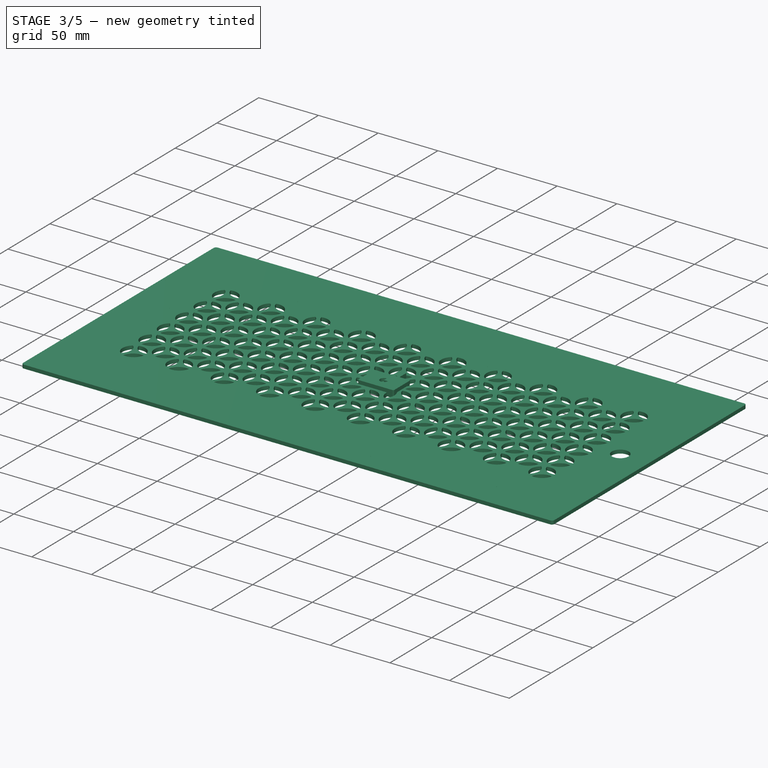
[diagram: stage 3 of 5 — iso view after this stage's code; geometry added in this stage tinted green]
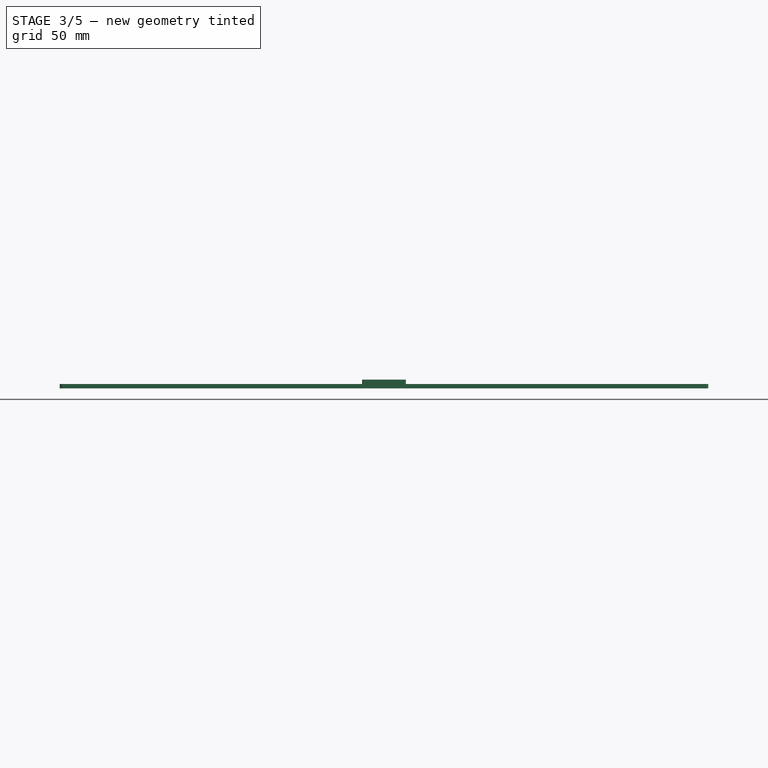
[diagram: stage 3 of 5 — front view after this stage's code; geometry added in this stage tinted green]
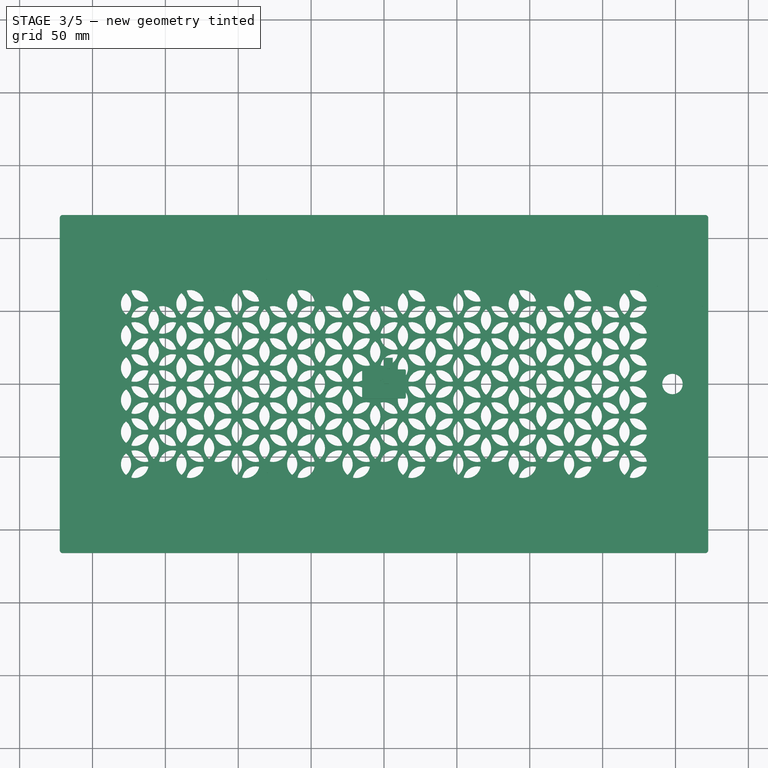
[diagram: stage 3 of 5 — top view after this stage's code; geometry added in this stage tinted green]
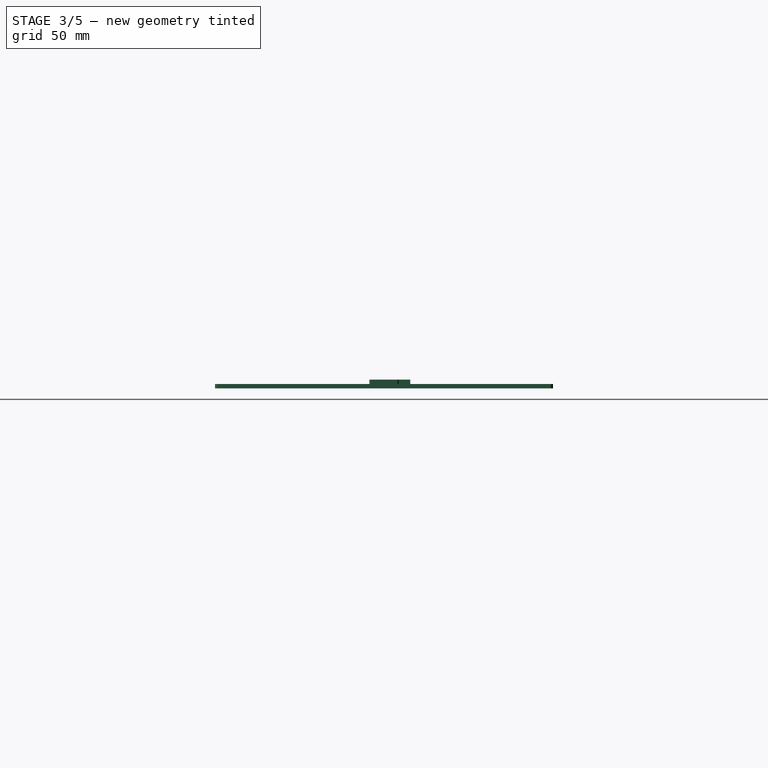
[diagram: stage 3 of 5 — right view after this stage's code; geometry added in this stage tinted green]
FEATURE [PartDesign::Body] Body014  label="buttonPlate"
  AllowCompound = false
  Group = -> [Sketch045,Pad015,Sketch046,Pocket030,Sketch047,Pocket031,Sketch048,Pad016,Sketch049,Pad017,Chamfer,Hole,Hole001,Hole002]
  Origin = -> Origin014
  Placement = pos=(199,0,-30) rot=(0,0,1;0rad)
  Tip = -> Hole002
FEATURE [Sketcher::SketchObject] Sketch058
  ArcFitTolerance = 1e-06
  AttachmentSupport = -> [XY_Plane018]
  FullyConstrained = false
  MakeInternals = false
  MapMode = 5
  sketch-geometry (16):
    g0: LineSegment StartX=-222.5 StartY=116 StartZ=0 EndX=-222.5 EndY=-116 EndZ=0
    g1: LineSegment StartX=-222.5 StartY=-116 StartZ=0 EndX=222.5 EndY=-116 EndZ=0
    g2: LineSegment StartX=222.5 StartY=-116 StartZ=0 EndX=222.5 EndY=116 EndZ=0
    g3: LineSegment StartX=222.5 StartY=116 StartZ=0 EndX=-222.5 EndY=116 EndZ=0
    g4: LineSegment [constr] StartX=-222.5 StartY=116 StartZ=0 EndX=222.5 EndY=-116 EndZ=0
    g5: LineSegment [constr] StartX=222.5 StartY=116 StartZ=0 EndX=-222.5 EndY=-116 EndZ=0
    g6: LineSegment [constr] StartX=-206.5 StartY=80.7895 StartZ=0 EndX=-206.5 EndY=-79.2105 EndZ=0
    g7: LineSegment [constr] StartX=-206.5 StartY=-79.2105 StartZ=0 EndX=183.5 EndY=-79.2105 EndZ=0
    g8: LineSegment [constr] StartX=183.5 StartY=-79.2105 StartZ=0 EndX=183.5 EndY=80.7895 EndZ=0
    g9: LineSegment [constr] StartX=183.5 StartY=80.7895 StartZ=0 EndX=-206.5 EndY=80.7895 EndZ=0
    g10: LineSegment [constr] StartX=-206.5 StartY=80.7895 StartZ=0 EndX=183.5 EndY=-79.2105 EndZ=0
    g11: LineSegment [constr] StartX=183.5 StartY=80.7895 StartZ=0 EndX=-206.5 EndY=-79.2105 EndZ=0
    g12: LineSegment [constr] StartX=190.5 StartY=57.5 StartZ=0 EndX=190.5 EndY=-57.5 EndZ=0
    g13: LineSegment [constr] StartX=190.5 StartY=-57.5 StartZ=0 EndX=212.5 EndY=-57.5 EndZ=0
    g14: LineSegment [constr] StartX=212.5 StartY=-57.5 StartZ=0 EndX=212.5 EndY=57.5 EndZ=0
    g15: LineSegment [constr] StartX=212.5 StartY=57.5 StartZ=0 EndX=190.5 EndY=57.5 EndZ=0
  constraints (43):
    c: Coincident(g0,g1)
    c: Coincident(g1,g2)
    c: Coincident(g2,g3)
    c: Coincident(g3,g0)
    c: Vertical(g0)
    c: Vertical(g2)
    c: Horizontal(g1)
    c: Horizontal(g3)
    c: Coincident(g4,g0)
    c: Coincident(g4,g1)
    c: Coincident(g5,g2)
    c: Coincident(g5,g0)
    c: DistanceX(g3,g3) = 445
    c: DistanceY(g2,g2) = 232
    c: Coincident(g6,g7)
    c: Coincident(g7,g8)
    c: Coincident(g8,g9)
    c: Coincident(g9,g6)
    c: Vertical(g6)
    c: Vertical(g8)
    c: Horizontal(g7)
    c: Horizontal(g9)
    c: Coincident(g10,g6)
    c: Coincident(g10,g7)
    c: Coincident(g11,g8)
    c: Coincident(g11,g6)
    c: DistanceY(g8,g8) = 160
    c: DistanceX(g9,g9) = 390
    c: DistanceX(g0,g6) = 16
    c: PointOnObject(g-1,g4)
    c: PointOnObject(g-1,g5)
    c: Coincident(g12,g13)
    c: Coincident(g13,g14)
    c: Coincident(g14,g15)
    c: Coincident(g15,g12)
    c: Vertical(g12)
    c: Vertical(g14)
    c: Horizontal(g13)
    c: Horizontal(g15)
    c: DistanceX(g15,g15) = 22
    c: DistanceY(g14,g14) = 115
    c: Distance(g13,g-1) = 57.5
    c: DistanceX(g14,g2) = 10
FEATURE [PartDesign::Pad] Pad022
  Direction = (0,0,1)
  Length = 3
  Length2 = 10
  Profile = -> Sketch058
  ReferenceAxis = -> Sketch058 [N_Axis]
  Suppressed = false
  Type = 0
FEATURE [Sketcher::SketchObject] Sketch059
  ArcFitTolerance = 1e-06
  AttachmentSupport = -> [Pad022]
  FullyConstrained = false
  MakeInternals = false
  MapMode = 5
  Placement = pos=(0,0,3) rot=(0,0,1;0rad)
  expr: Constraints[338] = <<Values001>>.B2
  expr: Constraints[339] = <<Values001>>.B2
  expr: Constraints[340] = <<Values001>>.B2
  expr: Constraints[341] = <<Values001>>.B2
  expr: Constraints[342] = <<Values001>>.B2
  expr: Constraints[343] = <<Values001>>.B2
  expr: Constraints[344] = <<Values001>>.B2
  expr: Constraints[346] = <<Values001>>.B3
  expr: Constraints[347] = <<Values001>>.B3
  expr: Constraints[348] = <<Values001>>.B3
  expr: Constraints[349] = <<Values001>>.B3
  expr: Constraints[350] = <<Values001>>.B3
  expr: Constraints[351] = <<Values001>>.B3
  expr: Constraints[352] = <<Values001>>.B3
  expr: Constraints[353] = <<Values001>>.B3
  expr: Constraints[354] = <<Values001>>.B3
  expr: Constraints[355] = <<Values001>>.B3
  expr: Constraints[356] = <<Values001>>.B3
  expr: Constraints[357] = <<Values001>>.B3
  expr: Constraints[358] = <<Values001>>.B3
  expr: Constraints[359] = <<Values001>>.B3
  expr: Constraints[360] = <<Values001>>.B3
  expr: Constraints[361] = <<Values001>>.B3
  expr: Constraints[362] = <<Values001>>.B3
  expr: Constraints[363] = <<Values001>>.B3
  expr: Constraints[364] = <<Values001>>.B2
  expr: Constraints[383] = <<Values001>>.B2
  expr: Constraints[384] = <<Values001>>.B2
  expr: Constraints[386] = <<Values001>>.B4
  sketch-geometry (139):
    g0: LineSegment [constr] StartX=-222.5 StartY=171.559 StartZ=0 EndX=-222.5 EndY=-148.418 EndZ=0
    g1: LineSegment [constr] StartX=222.5 StartY=164.967 StartZ=0 EndX=222.5 EndY=-175.294 EndZ=0
    g2: LineSegment [constr] StartX=-254.44 StartY=116 StartZ=0 EndX=292.44 EndY=116 EndZ=0
    g3: LineSegment [constr] StartX=344.139 StartY=-116 StartZ=0 EndX=-328.776 EndY=-116 EndZ=0
    g4: LineSegment [constr] StartX=-388.874 StartY=55 StartZ=0 EndX=350.874 EndY=55 EndZ=0
    g5: LineSegment [constr] StartX=-374.694 StartY=33 StartZ=0 EndX=336.694 EndY=33 EndZ=0
    g6: LineSegment [constr] StartX=-385.512 StartY=11 StartZ=0 EndX=347.512 EndY=11 EndZ=0
    g7: LineSegment [constr] StartX=418.964 StartY=-11 StartZ=0 EndX=-456.964 EndY=-11 EndZ=0
    g8: LineSegment [constr] StartX=-352.08 StartY=-33 StartZ=0 EndX=314.08 EndY=-33 EndZ=0
    g9: LineSegment [constr] StartX=257.376 StartY=-55 StartZ=0 EndX=-371.376 EndY=-55 EndZ=0
    g10: Circle CenterX=-171 CenterY=55 CenterZ=0 NormalX=0 NormalY=0 NormalZ=1 AngleXU=0 Radius=9.5
    g11: LineSegment [constr] StartX=-171 StartY=170.843 StartZ=0 EndX=-171 EndY=-155.349 EndZ=0
    g12: Circle CenterX=-171 CenterY=33 CenterZ=0 NormalX=0 NormalY=0 NormalZ=1 AngleXU=0 Radius=9.5
    g13: Circle CenterX=-171 CenterY=11 CenterZ=0 NormalX=0 NormalY=0 NormalZ=1 AngleXU=0 Radius=9.5
    g14: Circle CenterX=-171 CenterY=-11 CenterZ=0 NormalX=0 NormalY=0 NormalZ=1 AngleXU=0 Radius=9.5
    g15: Circle CenterX=-171 CenterY=-33 CenterZ=0 NormalX=0 NormalY=0 NormalZ=1 AngleXU=0 Radius=9.5
    g16: Circle CenterX=-171 CenterY=-55 CenterZ=0 NormalX=0 NormalY=0 NormalZ=1 AngleXU=0 Radius=9.5
    g17: LineSegment [constr] StartX=-258.353 StartY=44 StartZ=0 EndX=182.353 EndY=44 EndZ=0
    g18: LineSegment [constr] StartX=-265.582 StartY=22 StartZ=0 EndX=286.348 EndY=22 EndZ=0
    g19: LineSegment [constr] StartX=-397.004 StartY=-44 StartZ=0 EndX=397.004 EndY=-44 EndZ=0
    g20: LineSegment [constr] StartX=-152 StartY=-153.028 StartZ=0 EndX=-152 EndY=148.477 EndZ=0
    g21: Circle CenterX=-152 CenterY=44 CenterZ=0 NormalX=0 NormalY=0 NormalZ=1 AngleXU=0 Radius=9.5
    g22: Circle CenterX=-152 CenterY=22 CenterZ=0 NormalX=0 NormalY=0 NormalZ=1 AngleXU=0 Radius=9.5
    g23: Circle CenterX=-152 CenterY=0 CenterZ=0 NormalX=0 NormalY=0 NormalZ=1 AngleXU=0 Radius=9.5
    g24: Circle CenterX=-152 CenterY=-22 CenterZ=0 NormalX=0 NormalY=0 NormalZ=1 AngleXU=0 Radius=9.5
    g25: Circle CenterX=-152 CenterY=-44 CenterZ=0 NormalX=0 NormalY=0 NormalZ=1 AngleXU=0 Radius=9.5
    g26: LineSegment [constr] StartX=-133 StartY=130.867 StartZ=0 EndX=-133 EndY=-141.746 EndZ=0
    g27: LineSegment [constr] StartX=-114 StartY=138.96 StartZ=0 EndX=-114 EndY=-164.926 EndZ=0
    g28: LineSegment [constr] StartX=-95 StartY=143.378 StartZ=0 EndX=-95 EndY=-213.194 EndZ=0
    g29: LineSegment [constr] StartX=-76 StartY=148.137 StartZ=0 EndX=-76 EndY=-193.139 EndZ=0
    g30: LineSegment [constr] StartX=-57 StartY=135.221 StartZ=0 EndX=-57 EndY=-193.883 EndZ=0
    g31: Circle CenterX=-133 CenterY=55 CenterZ=0 NormalX=0 NormalY=0 NormalZ=1 AngleXU=0 Radius=9.5
    g32: Circle CenterX=-133 CenterY=33 CenterZ=0 NormalX=0 NormalY=0 NormalZ=1 AngleXU=0 Radius=9.5
    g33: Circle CenterX=-133 CenterY=11 CenterZ=0 NormalX=0 NormalY=0 NormalZ=1 AngleXU=0 Radius=9.5
    g34: Circle CenterX=-133 CenterY=-11 CenterZ=0 NormalX=0 NormalY=0 NormalZ=1 AngleXU=0 Radius=9.5
    g35: Circle CenterX=-133 CenterY=-33 CenterZ=0 NormalX=0 NormalY=0 NormalZ=1 AngleXU=0 Radius=9.5
    g36: Circle CenterX=-133 CenterY=-55 CenterZ=0 NormalX=0 NormalY=0 NormalZ=1 AngleXU=0 Radius=9.5
    g37: Circle CenterX=-114 CenterY=44 CenterZ=0 NormalX=0 NormalY=0 NormalZ=1 AngleXU=0 Radius=9.5
    g38: Circle CenterX=-114 CenterY=22 CenterZ=0 NormalX=0 NormalY=0 NormalZ=1 AngleXU=0 Radius=9.5
    g39: Circle CenterX=-114 CenterY=0 CenterZ=0 NormalX=0 NormalY=0 NormalZ=1 AngleXU=0 Radius=9.5
    g40: Circle CenterX=-114 CenterY=-22 CenterZ=0 NormalX=0 NormalY=0 NormalZ=1 AngleXU=0 Radius=9.5
    g41: Circle CenterX=-114 CenterY=-44 CenterZ=0 NormalX=0 NormalY=0 NormalZ=1 AngleXU=0 Radius=9.5
    g42: Circle CenterX=-95 CenterY=55 CenterZ=0 NormalX=0 NormalY=0 NormalZ=1 AngleXU=0 Radius=9.5
    g43: Circle CenterX=-95 CenterY=33 CenterZ=0 NormalX=0 NormalY=0 NormalZ=1 AngleXU=0 Radius=9.5
    g44: Circle CenterX=-95 CenterY=11 CenterZ=0 NormalX=0 NormalY=0 NormalZ=1 AngleXU=0 Radius=9.5
    g45: Circle CenterX=-95 CenterY=-11 CenterZ=0 NormalX=0 NormalY=0 NormalZ=1 AngleXU=0 Radius=9.5
    g46: Circle CenterX=-95 CenterY=-33 CenterZ=0 NormalX=0 NormalY=0 NormalZ=1 AngleXU=0 Radius=9.5
    g47: Circle CenterX=-95 CenterY=-55 CenterZ=0 NormalX=0 NormalY=0 NormalZ=1 AngleXU=0 Radius=9.5
    g48: Circle CenterX=-76 CenterY=-44 CenterZ=0 NormalX=0 NormalY=0 NormalZ=1 AngleXU=0 Radius=9.5
    g49: Circle CenterX=-76 CenterY=-22 CenterZ=0 NormalX=0 NormalY=0 NormalZ=1 AngleXU=0 Radius=9.5
    g50: Circle CenterX=-76 CenterY=0 CenterZ=0 NormalX=0 NormalY=0 NormalZ=1 AngleXU=0 Radius=9.5
    g51: Circle CenterX=-76 CenterY=22 CenterZ=0 NormalX=0 NormalY=0 NormalZ=1 AngleXU=0 Radius=9.5
    g52: Circle CenterX=-76 CenterY=44 CenterZ=0 NormalX=0 NormalY=0 NormalZ=1 AngleXU=0 Radius=9.5
    g53: LineSegment [constr] StartX=-38 StartY=121.882 StartZ=0 EndX=-38 EndY=-188.509 EndZ=0
    g54: LineSegment [constr] StartX=-19 StartY=120.515 StartZ=0 EndX=-19 EndY=-158.355 EndZ=0
    g55: LineSegment [constr] StartX=0 StartY=111.173 StartZ=0 EndX=0 EndY=-149.46 EndZ=0
    g56: LineSegment [constr] StartX=19 StartY=116 StartZ=0 EndX=19 EndY=-167.817 EndZ=0
    g57: LineSegment [constr] StartX=38 StartY=114.379 StartZ=0 EndX=38 EndY=-167.539 EndZ=0
    g58: LineSegment [constr] StartX=57 StartY=103.247 StartZ=0 EndX=57 EndY=-169.765 EndZ=0
    g59: LineSegment [constr] StartX=76 StartY=96.8461 StartZ=0 EndX=76 EndY=-143.048 EndZ=0
    g60: Circle CenterX=-57 CenterY=55 CenterZ=0 NormalX=0 NormalY=0 NormalZ=1 AngleXU=0 Radius=9.5
    g61: Circle CenterX=-57 CenterY=33 CenterZ=0 NormalX=0 NormalY=0 NormalZ=1 AngleXU=0 Radius=9.5
    g62: Circle CenterX=-57 CenterY=11 CenterZ=0 NormalX=0 NormalY=0 NormalZ=1 AngleXU=0 Radius=9.5
    g63: Circle CenterX=-57 CenterY=-11 CenterZ=0 NormalX=0 NormalY=0 NormalZ=1 AngleXU=0 Radius=9.5
    g64: Circle CenterX=-57 CenterY=-33 CenterZ=0 NormalX=0 NormalY=0 NormalZ=1 AngleXU=0 Radius=9.5
    g65: Circle CenterX=-38 CenterY=44 CenterZ=0 NormalX=0 NormalY=0 NormalZ=1 AngleXU=0 Radius=9.5
    g66: Circle CenterX=-38 CenterY=22 CenterZ=0 NormalX=0 NormalY=0 NormalZ=1 AngleXU=0 Radius=9.5
    g67: Circle CenterX=-38 CenterY=0 CenterZ=0 NormalX=0 NormalY=0 NormalZ=1 AngleXU=0 Radius=9.5
    g68: Circle CenterX=-38 CenterY=-22 CenterZ=0 NormalX=0 NormalY=0 NormalZ=1 AngleXU=0 Radius=9.5
    g69: Circle CenterX=-38 CenterY=-44 CenterZ=0 NormalX=0 NormalY=0 NormalZ=1 AngleXU=0 Radius=9.5
    g70: Circle CenterX=-57 CenterY=-55 CenterZ=0 NormalX=0 NormalY=0 NormalZ=1 AngleXU=0 Radius=9.5
    g71: Circle CenterX=-19 CenterY=55 CenterZ=0 NormalX=0 NormalY=0 NormalZ=1 AngleXU=0 Radius=9.5
    g72: Circle CenterX=-19 CenterY=33 CenterZ=0 NormalX=0 NormalY=0 NormalZ=1 AngleXU=0 Radius=9.5
    g73: Circle CenterX=-19 CenterY=11 CenterZ=0 NormalX=0 NormalY=0 NormalZ=1 AngleXU=0 Radius=9.5
    g74: Circle CenterX=-19 CenterY=-11 CenterZ=0 NormalX=0 NormalY=0 NormalZ=1 AngleXU=0 Radius=9.5
    g75: Circle CenterX=-19 CenterY=-33 CenterZ=0 NormalX=0 NormalY=0 NormalZ=1 AngleXU=0 Radius=9.5
    g76: Circle CenterX=-19 CenterY=-55 CenterZ=0 NormalX=0 NormalY=0 NormalZ=1 AngleXU=0 Radius=9.5
    g77: Circle CenterX=0 CenterY=-44 CenterZ=0 NormalX=0 NormalY=0 NormalZ=1 AngleXU=0 Radius=9.5
    g78: Circle CenterX=-9e-16 CenterY=-22 CenterZ=0 NormalX=0 NormalY=0 NormalZ=1 AngleXU=0 Radius=9.5
    g79: Circle CenterX=-9e-16 CenterY=0 CenterZ=0 NormalX=0 NormalY=0 NormalZ=1 AngleXU=0 Radius=9.5
    g80: Circle CenterX=-9e-16 CenterY=22 CenterZ=0 NormalX=0 NormalY=0 NormalZ=1 AngleXU=0 Radius=9.5
    g81: Circle CenterX=0 CenterY=44 CenterZ=0 NormalX=0 NormalY=0 NormalZ=1 AngleXU=0 Radius=9.5
    g82: Circle CenterX=19 CenterY=55 CenterZ=0 NormalX=0 NormalY=0 NormalZ=1 AngleXU=0 Radius=9.5
    g83: Circle CenterX=19 CenterY=33 CenterZ=0 NormalX=0 NormalY=0 NormalZ=1 AngleXU=0 Radius=9.5
    g84: Circle CenterX=19 CenterY=11 CenterZ=0 NormalX=0 NormalY=0 NormalZ=1 AngleXU=0 Radius=9.5
    g85: Circle CenterX=19 CenterY=-11 CenterZ=0 NormalX=0 NormalY=0 NormalZ=1 AngleXU=0 Radius=9.5
    g86: Circle CenterX=19 CenterY=-33 CenterZ=0 NormalX=0 NormalY=0 NormalZ=1 AngleXU=0 Radius=9.5
    g87: Circle CenterX=19 CenterY=-55 CenterZ=0 NormalX=0 NormalY=0 NormalZ=1 AngleXU=0 Radius=9.5
    g88: Circle CenterX=38 CenterY=-44 CenterZ=0 NormalX=0 NormalY=0 NormalZ=1 AngleXU=0 Radius=9.5
    g89: Circle CenterX=38 CenterY=-22 CenterZ=0 NormalX=0 NormalY=0 NormalZ=1 AngleXU=0 Radius=9.5
    g90: Circle CenterX=38 CenterY=0 CenterZ=0 NormalX=0 NormalY=0 NormalZ=1 AngleXU=0 Radius=9.5
    g91: Circle CenterX=38 CenterY=22 CenterZ=0 NormalX=0 NormalY=0 NormalZ=1 AngleXU=0 Radius=9.5
    g92: Circle CenterX=38 CenterY=44 CenterZ=0 NormalX=0 NormalY=0 NormalZ=1 AngleXU=0 Radius=9.5
    g93: Circle CenterX=57 CenterY=55 CenterZ=0 NormalX=0 NormalY=0 NormalZ=1 AngleXU=0 Radius=9.5
    g94: Circle CenterX=57 CenterY=33 CenterZ=0 NormalX=0 NormalY=0 NormalZ=1 AngleXU=0 Radius=9.5
    g95: Circle CenterX=57 CenterY=11 CenterZ=0 NormalX=0 NormalY=0 NormalZ=1 AngleXU=0 Radius=9.5
    g96: Circle CenterX=57 CenterY=-11 CenterZ=0 NormalX=0 NormalY=0 NormalZ=1 AngleXU=0 Radius=9.5
    g97: Circle CenterX=76 CenterY=0 CenterZ=0 NormalX=0 NormalY=0 NormalZ=1 AngleXU=0 Radius=9.5
    g98: Circle CenterX=76 CenterY=22 CenterZ=0 NormalX=0 NormalY=0 NormalZ=1 AngleXU=0 Radius=9.5
    g99: Circle CenterX=76 CenterY=44 CenterZ=0 NormalX=0 NormalY=0 NormalZ=1 AngleXU=0 Radius=9.5
    g100: Circle CenterX=57 CenterY=-33 CenterZ=0 NormalX=0 NormalY=0 NormalZ=1 AngleXU=0 Radius=9.5
    g101: Circle CenterX=57 CenterY=-55 CenterZ=0 NormalX=0 NormalY=0 NormalZ=1 AngleXU=0 Radius=9.5
    g102: Circle CenterX=76 CenterY=-44 CenterZ=0 NormalX=0 NormalY=0 NormalZ=1 AngleXU=0 Radius=9.5
    g103: Circle CenterX=76 CenterY=-22 CenterZ=0 NormalX=0 NormalY=0 NormalZ=1 AngleXU=0 Radius=9.5
    g104: LineSegment [constr] StartX=95 StartY=100.084 StartZ=0 EndX=95 EndY=-176.599 EndZ=0
    g105: Circle CenterX=95 CenterY=55 CenterZ=0 NormalX=0 NormalY=0 NormalZ=1 AngleXU=0 Radius=9.5
    g106: Circle CenterX=95 CenterY=33 CenterZ=0 NormalX=0 NormalY=0 NormalZ=1 AngleXU=0 Radius=9.5
    g107: Circle CenterX=95 CenterY=11 CenterZ=0 NormalX=0 NormalY=0 NormalZ=1 AngleXU=0 Radius=9.5
    g108: Circle CenterX=95 CenterY=-11 CenterZ=0 NormalX=0 NormalY=0 NormalZ=1 AngleXU=0 Radius=9.5
    g109: Circle CenterX=95 CenterY=-33 CenterZ=0 NormalX=0 NormalY=0 NormalZ=1 AngleXU=0 Radius=9.5
    g110: Circle CenterX=95 CenterY=-55 CenterZ=0 NormalX=0 NormalY=0 NormalZ=1 AngleXU=0 Radius=9.5
    g111: LineSegment [constr] StartX=199.511 StartY=125.276 StartZ=0 EndX=199.511 EndY=-177.251 EndZ=0
    g112: LineSegment [constr] StartX=114 StartY=125.804 StartZ=0 EndX=114 EndY=-181.13 EndZ=0
    g113: LineSegment [constr] StartX=133 StartY=125.241 StartZ=0 EndX=133 EndY=-180.751 EndZ=0
    g114: LineSegment [constr] StartX=152 StartY=126.148 StartZ=0 EndX=152 EndY=-176.262 EndZ=0
    g115: Circle CenterX=114 CenterY=44 CenterZ=0 NormalX=0 NormalY=0 NormalZ=1 AngleXU=0 Radius=9.5
    g116: Circle CenterX=114 CenterY=22 CenterZ=0 NormalX=0 NormalY=0 NormalZ=1 AngleXU=0 Radius=9.5
    g117: Circle CenterX=114 CenterY=0 CenterZ=0 NormalX=0 NormalY=0 NormalZ=1 AngleXU=0 Radius=9.5
    g118: Circle CenterX=114 CenterY=-22 CenterZ=0 NormalX=0 NormalY=0 NormalZ=1 AngleXU=0 Radius=9.5
    g119: Circle CenterX=114 CenterY=-44 CenterZ=0 NormalX=0 NormalY=0 NormalZ=1 AngleXU=0 Radius=9.5
    g120: Circle CenterX=133 CenterY=55 CenterZ=0 NormalX=0 NormalY=0 NormalZ=1 AngleXU=0 Radius=9.5
    g121: Circle CenterX=133 CenterY=33 CenterZ=0 NormalX=0 NormalY=0 NormalZ=1 AngleXU=0 Radius=9.5
    g122: Circle CenterX=133 CenterY=11 CenterZ=0 NormalX=0 NormalY=0 NormalZ=1 AngleXU=0 Radius=9.5
    g123: Circle CenterX=133 CenterY=-11 CenterZ=0 NormalX=0 NormalY=0 NormalZ=1 AngleXU=0 Radius=9.5
    g124: Circle CenterX=133 CenterY=-33 CenterZ=0 NormalX=0 NormalY=0 NormalZ=1 AngleXU=0 Radius=9.5
    g125: Circle CenterX=133 CenterY=-55 CenterZ=0 NormalX=0 NormalY=0 NormalZ=1 AngleXU=0 Radius=9.5
    g126: LineSegment [constr] StartX=171 StartY=131.173 StartZ=0 EndX=171 EndY=-183.407 EndZ=0
    g127: Circle CenterX=152 CenterY=44 CenterZ=0 NormalX=0 NormalY=0 NormalZ=1 AngleXU=0 Radius=9.5
    g128: Circle CenterX=152 CenterY=22 CenterZ=0 NormalX=0 NormalY=0 NormalZ=1 AngleXU=0 Radius=9.5
    g129: Circle CenterX=152 CenterY=0 CenterZ=0 NormalX=0 NormalY=0 NormalZ=1 AngleXU=0 Radius=9.5
    g130: Circle CenterX=152 CenterY=-22 CenterZ=0 NormalX=0 NormalY=0 NormalZ=1 AngleXU=0 Radius=9.5
    g131: Circle CenterX=152 CenterY=-44 CenterZ=0 NormalX=0 NormalY=0 NormalZ=1 AngleXU=0 Radius=9.5
    g132: Circle CenterX=171 CenterY=55 CenterZ=0 NormalX=0 NormalY=0 NormalZ=1 AngleXU=0 Radius=9.5
    g133: Circle CenterX=171 CenterY=33 CenterZ=0 NormalX=0 NormalY=0 NormalZ=1 AngleXU=0 Radius=9.5
    g134: Circle CenterX=171 CenterY=11 CenterZ=0 NormalX=0 NormalY=0 NormalZ=1 AngleXU=0 Radius=9.5
    g135: Circle CenterX=171 CenterY=-11 CenterZ=0 NormalX=0 NormalY=0 NormalZ=1 AngleXU=0 Radius=9.5
    g136: Circle CenterX=171 CenterY=-33 CenterZ=0 NormalX=0 NormalY=0 NormalZ=1 AngleXU=0 Radius=9.5
    g137: Circle CenterX=171 CenterY=-55 CenterZ=0 NormalX=0 NormalY=0 NormalZ=1 AngleXU=0 Radius=9.5
    g138: LineSegment [constr] StartX=-255.839 StartY=-22 StartZ=0 EndX=243.836 EndY=-22 EndZ=0
  constraints (391):
    c: Vertical(g0)
    c: Vertical(g1)
    c: Horizontal(g2)
    c: Horizontal(g3)
    c: DistanceX(g0,g-1) = 222.5
    c: DistanceX(g-1,g1) = 222.5
    c: DistanceY(g-1,g2) = 116
    c: DistanceY(g3,g-1) = 116
    c: Diameter(g10) = 19
    c: Vertical(g11)
    c: PointOnObject(g10,g11)
    c: PointOnObject(g12,g5)
    c: PointOnObject(g13,g6)
    c: PointOnObject(g14,g7)
    c: PointOnObject(g15,g8)
    c: PointOnObject(g16,g9)
    c: PointOnObject(g12,g11)
    c: PointOnObject(g13,g11)
    c: PointOnObject(g14,g11)
    c: PointOnObject(g15,g11)
    c: PointOnObject(g16,g11)
    c: Equal(g12,g10)
    c: Equal(g13,g12)
    c: Equal(g14,g13)
    c: Equal(g15,g14)
    c: Equal(g16,g15)
    c: Horizontal(g17)
    c: Vertical(g20)
    c: PointOnObject(g21,g17)
    c: PointOnObject(g22,g18)
    c: PointOnObject(g23,g-1)
    c: PointOnObject(g25,g19)
    c: Equal(g21,g10)
    c: Equal(g22,g10)
    c: Equal(g23,g10)
    c: Equal(g24,g10)
    c: Equal(g25,g10)
    c: PointOnObject(g21,g20)
    c: PointOnObject(g22,g20)
    c: PointOnObject(g23,g20)
    c: PointOnObject(g24,g20)
    c: PointOnObject(g25,g20)
    c: Vertical(g26)
    c: Vertical(g27)
    c: Vertical(g28)
    c: Vertical(g29)
    c: Vertical(g30)
    c: PointOnObject(g31,g4)
    c: PointOnObject(g32,g5)
    c: PointOnObject(g33,g6)
    c: PointOnObject(g34,g7)
    c: PointOnObject(g35,g8)
    c: PointOnObject(g36,g9)
    c: Equal(g10,g31)
    c: Equal(g32,g10)
    c: Equal(g10,g33)
    c: Equal(g34,g10)
    c: Equal(g35,g10)
    c: Equal(g36,g10)
    c: PointOnObject(g31,g26)
    c: PointOnObject(g32,g26)
    c: PointOnObject(g33,g26)
    c: PointOnObject(g34,g26)
    c: PointOnObject(g35,g26)
    c: PointOnObject(g36,g26)
    c: PointOnObject(g37,g17)
    c: PointOnObject(g38,g18)
    c: PointOnObject(g39,g-1)
    c: PointOnObject(g41,g19)
    c: Equal(g37,g10)
    c: Equal(g38,g10)
    c: Equal(g39,g10)
    c: Equal(g10,g40)
    c: Equal(g41,g10)
    c: PointOnObject(g37,g27)
    c: PointOnObject(g38,g27)
    c: PointOnObject(g39,g27)
    c: PointOnObject(g40,g27)
    c: PointOnObject(g41,g27)
    c: PointOnObject(g42,g4)
    c: PointOnObject(g43,g5)
    c: PointOnObject(g44,g6)
    c: PointOnObject(g45,g7)
    c: PointOnObject(g46,g8)
    c: PointOnObject(g47,g9)
    c: PointOnObject(g48,g19)
    c: PointOnObject(g50,g-1)
    c: PointOnObject(g51,g18)
    c: PointOnObject(g52,g17)
    c: PointOnObject(g42,g28)
    c: PointOnObject(g43,g28)
    c: PointOnObject(g44,g28)
    c: PointOnObject(g51,g29)
    c: PointOnObject(g52,g29)
    c: PointOnObject(g50,g29)
    c: PointOnObject(g45,g28)
    c: PointOnObject(g49,g29)
    c: PointOnObject(g46,g28)
    c: PointOnObject(g48,g29)
    c: PointOnObject(g47,g28)
    c: Equal(g10,g42)
    c: Equal(g43,g10)
    c: Equal(g44,g10)
    c: Equal(g45,g10)
    c: Equal(g46,g10)
    c: Equal(g47,g10)
    c: Equal(g52,g10)
    c: Equal(g51,g10)
    c: Equal(g50,g10)
    c: Equal(g49,g10)
    c: Equal(g48,g10)
    c: Vertical(g53)
    c: Vertical(g54)
    c: Vertical(g55)
    c: Symmetric(g2,g2,g56)
    c: Vertical(g56)
    c: Vertical(g57)
    c: Vertical(g58)
    c: Vertical(g59)
    c: PointOnObject(g60,g4)
    c: PointOnObject(g61,g5)
    c: PointOnObject(g62,g6)
    c: PointOnObject(g63,g7)
    c: PointOnObject(g64,g8)
    c: Symmetric(g17,g17,g65)
    c: PointOnObject(g66,g18)
    c: PointOnObject(g67,g-1)
    c: PointOnObject(g69,g19)
    c: Symmetric(g9,g9,g70)
    c: PointOnObject(g60,g30)
    c: PointOnObject(g61,g30)
    c: PointOnObject(g65,g53)
    c: PointOnObject(g66,g53)
    c: PointOnObject(g62,g30)
    c: PointOnObject(g67,g53)
    c: PointOnObject(g63,g30)
    c: PointOnObject(g68,g53)
    c: PointOnObject(g64,g30)
    c: PointOnObject(g69,g53)
    c: PointOnObject(g70,g30)
    c: Equal(g10,g60)
    c: Equal(g65,g10)
    c: Equal(g61,g10)
    c: Equal(g66,g10)
    c: Equal(g62,g10)
    c: Equal(g67,g10)
    c: Equal(g63,g10)
    c: Equal(g68,g10)
    c: Equal(g64,g10)
    c: Equal(g69,g10)
    c: Equal(g70,g10)
    c: Symmetric(g4,g4,g71)
    c: Symmetric(g5,g5,g72)
    c: Symmetric(g6,g6,g73)
    c: Symmetric(g7,g7,g74)
    c: Symmetric(g8,g8,g75)
    c: PointOnObject(g76,g9)
    c: Symmetric(g19,g19,g77)
    c: PointOnObject(g79,g-1)
    c: PointOnObject(g80,g18)
    c: PointOnObject(g81,g17)
    c: PointOnObject(g82,g4)
    c: PointOnObject(g83,g5)
    c: PointOnObject(g84,g6)
    c: PointOnObject(g85,g7)
    c: PointOnObject(g86,g8)
    c: PointOnObject(g87,g9)
    c: PointOnObject(g88,g19)
    c: PointOnObject(g90,g-1)
    c: PointOnObject(g91,g18)
    c: PointOnObject(g92,g17)
    c: PointOnObject(g71,g54)
    c: PointOnObject(g72,g54)
    c: PointOnObject(g73,g54)
    c: PointOnObject(g74,g54)
    c: PointOnObject(g75,g54)
    c: PointOnObject(g76,g54)
    c: PointOnObject(g77,g55)
    c: PointOnObject(g78,g55)
    c: PointOnObject(g79,g55)
    c: PointOnObject(g80,g55)
    c: PointOnObject(g81,g55)
    c: PointOnObject(g82,g56)
    c: PointOnObject(g83,g56)
    c: PointOnObject(g84,g56)
    c: PointOnObject(g85,g56)
    c: PointOnObject(g86,g56)
    c: PointOnObject(g87,g56)
    c: PointOnObject(g88,g57)
    c: PointOnObject(g89,g57)
    c: PointOnObject(g90,g57)
    c: PointOnObject(g91,g57)
    c: PointOnObject(g92,g57)
    c: Equal(g10,g71)
    c: Equal(g72,g10)
    c: Equal(g73,g10)
    c: Equal(g74,g10)
    c: Equal(g75,g10)
    c: Equal(g81,g10)
    c: Equal(g82,g10)
    c: Equal(g83,g10)
    c: Equal(g10,g80)
    c: Equal(g84,g10)
    c: Equal(g92,g10)
    c: Equal(g91,g10)
    c: Equal(g90,g10)
    c: Equal(g79,g10)
    c: Equal(g85,g10)
    c: Equal(g86,g10)
    c: Equal(g78,g10)
    c: Equal(g89,g10)
    c: Equal(g76,g10)
    c: Equal(g87,g10)
    c: Equal(g10,g77)
    c: Equal(g88,g10)
    c: Distance(g4,g2) = 61
    c: PointOnObject(g93,g4)
    c: PointOnObject(g94,g5)
    c: PointOnObject(g95,g6)
    c: PointOnObject(g96,g7)
    c: PointOnObject(g97,g-1)
    c: PointOnObject(g98,g18)
    c: PointOnObject(g99,g17)
    c: PointOnObject(g100,g8)
    c: PointOnObject(g101,g9)
    c: PointOnObject(g102,g19)
    c: PointOnObject(g101,g58)
    c: PointOnObject(g100,g58)
    c: PointOnObject(g96,g58)
    c: PointOnObject(g95,g58)
    c: PointOnObject(g94,g58)
    c: PointOnObject(g93,g58)
    c: PointOnObject(g99,g59)
    c: PointOnObject(g98,g59)
    c: PointOnObject(g97,g59)
    c: PointOnObject(g103,g59)
    c: PointOnObject(g102,g59)
    c: Vertical(g104)
    c: PointOnObject(g105,g4)
    c: PointOnObject(g106,g5)
    c: PointOnObject(g107,g6)
    c: PointOnObject(g108,g7)
    c: PointOnObject(g109,g8)
    c: PointOnObject(g110,g9)
    c: Equal(g90,g101)
    c: Equal(g100,g90)
    c: Equal(g96,g90)
    c: Equal(g95,g90)
    c: Equal(g94,g90)
    c: Equal(g93,g90)
    c: Equal(g97,g90)
    c: Equal(g98,g90)
    c: Equal(g99,g90)
    c: Equal(g105,g90)
    c: Equal(g106,g90)
    c: Equal(g107,g90)
    c: Equal(g108,g90)
    c: Equal(g103,g90)
    c: Equal(g109,g90)
    c: Equal(g102,g90)
    c: Equal(g110,g90)
    c: PointOnObject(g105,g104)
    c: PointOnObject(g106,g104)
    c: PointOnObject(g107,g104)
    c: PointOnObject(g108,g104)
    c: PointOnObject(g109,g104)
    c: PointOnObject(g110,g104)
    c: Vertical(g111)
    c: Vertical(g112)
    c: Vertical(g113)
    c: Vertical(g114)
    c: PointOnObject(g115,g112)
    c: PointOnObject(g115,g17)
    c: PointOnObject(g116,g18)
    c: PointOnObject(g117,g-1)
    c: PointOnObject(g119,g19)
    c: Equal(g10,g115)
    c: Equal(g116,g10)
    c: Equal(g117,g10)
    c: Equal(g118,g10)
    c: Equal(g119,g10)
    c: PointOnObject(g116,g112)
    c: PointOnObject(g117,g112)
    c: PointOnObject(g118,g112)
    c: PointOnObject(g119,g112)
    c: PointOnObject(g120,g4)
    c: PointOnObject(g121,g5)
    c: PointOnObject(g122,g6)
    c: PointOnObject(g123,g7)
    c: PointOnObject(g124,g8)
    c: PointOnObject(g125,g9)
    c: PointOnObject(g125,g113)
    c: PointOnObject(g124,g113)
    c: PointOnObject(g123,g113)
    c: PointOnObject(g122,g113)
    c: PointOnObject(g121,g113)
    c: PointOnObject(g120,g113)
    c: Equal(g120,g121)
    c: Equal(g121,g122)
    c: Equal(g122,g123)
    c: Equal(g123,g124)
    c: Equal(g124,g125)
    c: Equal(g125,g10)
    c: Vertical(g126)
    c: PointOnObject(g127,g17)
    c: PointOnObject(g128,g18)
    c: PointOnObject(g129,g-1)
    c: PointOnObject(g131,g19)
    c: PointOnObject(g131,g114)
    c: PointOnObject(g130,g114)
    c: PointOnObject(g129,g114)
    c: PointOnObject(g128,g114)
    c: PointOnObject(g127,g114)
    c: Equal(g131,g130)
    c: Equal(g130,g129)
    c: Equal(g129,g128)
    c: Equal(g128,g127)
    c: Equal(g127,g10)
    c: PointOnObject(g132,g4)
    c: PointOnObject(g133,g5)
    c: PointOnObject(g134,g6)
    c: PointOnObject(g135,g7)
    c: PointOnObject(g136,g8)
    c: PointOnObject(g137,g9)
    c: PointOnObject(g137,g126)
    c: PointOnObject(g136,g126)
    c: PointOnObject(g135,g126)
    c: PointOnObject(g134,g126)
    c: PointOnObject(g133,g126)
    c: PointOnObject(g132,g126)
    c: Equal(g132,g133)
    c: Equal(g133,g134)
    c: Equal(g134,g135)
    c: Equal(g135,g136)
    c: Equal(g136,g137)
    c: Equal(g137,g10)
    c: DistanceX(g126,g1) = 51.5
    c: Distance(g10,g12) = 3
    c: Distance(g18,g-1) = 22
    c: Distance(g17,g18) = 22
    c: Distance(g5,g4) = 22
    c: Distance(g6,g5) = 22
    c: Distance(g6,g7) = 22
    c: Distance(g7,g8) = 22
    c: Distance(g9,g8) = 22
    c: Distance(g10,g21) = 2.9545
    c: Distance(g20,g11) = 19
    c: DistanceX(g20,g26) = 19
    c: Distance(g27,g26) = 19
    c: Distance(g28,g27) = 19
    c: Distance(g29,g28) = 19
    c: Distance(g29,g30) = 19
    c: Distance(g53,g30) = 19
    c: Distance(g54,g53) = 19
    c: Distance(g55,g54) = 19
    c: Distance(g56,g55) = 19
    c: Distance(g57,g56) = 19
    c: Distance(g58,g57) = 19
    c: Distance(g59,g58) = 19
    c: Distance(g104,g59) = 19
    c: Distance(g112,g104) = 19
    c: Distance(g113,g112) = 19
    c: Distance(g114,g113) = 19
    c: Distance(g126,g114) = 19
    c: DistanceY(g9,g8) = 22
    c: Horizontal(g138)
    c: PointOnObject(g24,g138)
    c: PointOnObject(g40,g138)
    c: PointOnObject(g49,g138)
    c: PointOnObject(g68,g138)
    c: PointOnObject(g78,g138)
    c: PointOnObject(g89,g138)
    c: PointOnObject(g103,g138)
    c: PointOnObject(g118,g138)
    c: PointOnObject(g130,g138)
    c: Horizontal(g9)
    c: Horizontal(g19)
    c: Horizontal(g7)
    c: Horizontal(g6)
    c: Horizontal(g18)
    c: Horizontal(g5)
    c: Horizontal(g4)
    c: PointOnObject(g10,g4)
    c: Distance(g19,g138) = 22
    c: Distance(g-1,g138) = 22
    c: Distance(g21,g32) = 2.9545
    c: Distance(g9,g-1) = 55
    c: DistanceY(g9,g4) = 110
    c: DistanceX(g55,g-1) = 0
    c: DistanceX(g11,g55) = 171
    c: DistanceX(g55,g126) = 171
FEATURE [PartDesign::Pocket] Pocket036
  BaseFeature = -> Pad022
  Direction = (0,0,-1)
  Length = 5
  Length2 = 5
  Profile = -> Sketch059
  ReferenceAxis = -> Sketch059 [N_Axis]
  Suppressed = false
  Type = 0
FEATURE [PartDesign::Fillet] Fillet007
  Base = -> Pocket036 [Edge2,Edge8,Edge5,Edge1]
  BaseFeature = -> Pocket036
  Radius = 2
  SupportTransform = false
  Suppressed = false
  UseAllEdges = false
FEATURE [Sketcher::SketchObject] Sketch060
  ArcFitTolerance = 1e-06
  AttachmentOffset = pos=(0,0,10) rot=(0,0,1;0rad)
  AttachmentSupport = -> [XY_Plane018]
  FullyConstrained = false
  MakeInternals = false
  MapMode = 5
  Placement = pos=(0,0,10) rot=(0,0,1;0rad)
  sketch-geometry (7):
    g0: LineSegment [constr] StartX=190.5 StartY=57.5 StartZ=0 EndX=190.5 EndY=-57.5 EndZ=0
    g1: LineSegment [constr] StartX=190.5 StartY=-57.5 StartZ=0 EndX=212.5 EndY=-57.5 EndZ=0
    g2: LineSegment [constr] StartX=212.5 StartY=-57.5 StartZ=0 EndX=212.5 EndY=57.5 EndZ=0
    g3: LineSegment [constr] StartX=212.5 StartY=57.5 StartZ=0 EndX=190.5 EndY=57.5 EndZ=0
    g4: Circle CenterX=197.94 CenterY=0 CenterZ=0 NormalX=0 NormalY=0 NormalZ=1 AngleXU=0 Radius=7
    g5: LineSegment [constr] StartX=222.5 StartY=131.843 StartZ=0 EndX=222.5 EndY=-123.646 EndZ=0
    g6: LineSegment [constr] StartX=185.5 StartY=70.4121 StartZ=0 EndX=185.5 EndY=-74.8109 EndZ=0
  constraints (18):
    c: Coincident(g0,g1)
    c: Coincident(g1,g2)
    c: Coincident(g2,g3)
    c: Coincident(g3,g0)
    c: Vertical(g0)
    c: Vertical(g2)
    c: Horizontal(g1)
    c: Horizontal(g3)
    c: DistanceY(g2,g2) = 115
    c: DistanceX(g3,g3) = 22
    c: Vertical(g5)
    c: Distance(g5,g-2) = 222.5
    c: Distance(g5,g2) = 10
    c: Distance(g1,g-1) = 57.5
    c: Diameter(g4) = 14
    c: PointOnObject(g4,g-1)
    c: Vertical(g6)
    c: Distance(g6,g0) = 5
FEATURE [PartDesign::Pocket] Pocket037
  BaseFeature = -> Fillet007
  Direction = (0,0,-1)
  Length = 5
  Length2 = 5
  Profile = -> Sketch060
  ReferenceAxis = -> Sketch060 [N_Axis]
  Suppressed = false
  Type = 1
FEATURE [Spreadsheet::Sheet] Spreadsheet001  label="Values001"
  cells = A1='space between holes; B1==4 mm; A2='horizontal space between holes; B2=22; A3='vertical space betwenn holes; B3=19; A4='center holes vertically ; B4==B2 * 2.5
FEATURE [Sketcher::SketchObject] Sketch061
  ArcFitTolerance = 1e-06
  AttachmentSupport = -> [XY_Plane019]
  FullyConstrained = false
  MakeInternals = false
  MapMode = 5
  sketch-geometry (16):
    g0: LineSegment StartX=-222.5 StartY=116 StartZ=0 EndX=-222.5 EndY=-116 EndZ=0
    g1: LineSegment StartX=-222.5 StartY=-116 StartZ=0 EndX=222.5 EndY=-116 EndZ=0
    g2: LineSegment StartX=222.5 StartY=-116 StartZ=0 EndX=222.5 EndY=116 EndZ=0
    g3: LineSegment StartX=222.5 StartY=116 StartZ=0 EndX=-222.5 EndY=116 EndZ=0
    g4: LineSegment [constr] StartX=-222.5 StartY=116 StartZ=0 EndX=222.5 EndY=-116 EndZ=0
    g5: LineSegment [constr] StartX=222.5 StartY=116 StartZ=0 EndX=-222.5 EndY=-116 EndZ=0
    g6: LineSegment [constr] StartX=-206.5 StartY=80.7895 StartZ=0 EndX=-206.5 EndY=-79.2105 EndZ=0
    g7: LineSegment [constr] StartX=-206.5 StartY=-79.2105 StartZ=0 EndX=183.5 EndY=-79.2105 EndZ=0
    g8: LineSegment [constr] StartX=183.5 StartY=-79.2105 StartZ=0 EndX=183.5 EndY=80.7895 EndZ=0
    g9: LineSegment [constr] StartX=183.5 StartY=80.7895 StartZ=0 EndX=-206.5 EndY=80.7895 EndZ=0
    g10: LineSegment [constr] StartX=-206.5 StartY=80.7895 StartZ=0 EndX=183.5 EndY=-79.2105 EndZ=0
    g11: LineSegment [constr] StartX=183.5 StartY=80.7895 StartZ=0 EndX=-206.5 EndY=-79.2105 EndZ=0
    g12: LineSegment [constr] StartX=190.5 StartY=57.5 StartZ=0 EndX=190.5 EndY=-57.5 EndZ=0
    g13: LineSegment [constr] StartX=190.5 StartY=-57.5 StartZ=0 EndX=212.5 EndY=-57.5 EndZ=0
    g14: LineSegment [constr] StartX=212.5 StartY=-57.5 StartZ=0 EndX=212.5 EndY=57.5 EndZ=0
    g15: LineSegment [constr] StartX=212.5 StartY=57.5 StartZ=0 EndX=190.5 EndY=57.5 EndZ=0
  constraints (43):
    c: Coincident(g0,g1)
    c: Coincident(g1,g2)
    c: Coincident(g2,g3)
    c: Coincident(g3,g0)
    c: Vertical(g0)
    c: Vertical(g2)
    c: Horizontal(g1)
    c: Horizontal(g3)
    c: Coincident(g4,g0)
    c: Coincident(g4,g1)
    c: Coincident(g5,g2)
    c: Coincident(g5,g0)
    c: DistanceX(g3,g3) = 445
    c: DistanceY(g2,g2) = 232
    c: Coincident(g6,g7)
    c: Coincident(g7,g8)
    c: Coincident(g8,g9)
    c: Coincident(g9,g6)
    c: Vertical(g6)
    c: Vertical(g8)
    c: Horizontal(g7)
    c: Horizontal(g9)
    c: Coincident(g10,g6)
    c: Coincident(g10,g7)
    c: Coincident(g11,g8)
    c: Coincident(g11,g6)
    c: DistanceY(g8,g8) = 160
    c: DistanceX(g9,g9) = 390
    c: DistanceX(g0,g6) = 16
    c: PointOnObject(g-1,g4)
    c: PointOnObject(g-1,g5)
    c: Coincident(g12,g13)
    c: Coincident(g13,g14)
    c: Coincident(g14,g15)
    c: Coincident(g15,g12)
    c: Vertical(g12)
    c: Vertical(g14)
    c: Horizontal(g13)
    c: Horizontal(g15)
    c: DistanceX(g15,g15) = 22
    c: DistanceY(g14,g14) = 115
    c: Distance(g13,g-1) = 57.5
    c: DistanceX(g14,g2) = 10
FEATURE [PartDesign::Pad] Pad023
  Direction = (0,0,1)
  Length = 3
  Length2 = 10
  Profile = -> Sketch061
  ReferenceAxis = -> Sketch061 [N_Axis]
  Suppressed = false
  Type = 0
FEATURE [Sketcher::SketchObject] Sketch062
  ArcFitTolerance = 1e-06
  AttachmentSupport = -> [Pad023]
  FullyConstrained = false
  MakeInternals = false
  MapMode = 5
  Placement = pos=(0,0,3) rot=(0,0,1;0rad)
  expr: Constraints[338] = <<Values002>>.B2
  expr: Constraints[339] = <<Values002>>.B2
  expr: Constraints[340] = <<Values002>>.B2
  expr: Constraints[341] = <<Values002>>.B2
  expr: Constraints[342] = <<Values002>>.B2
  expr: Constraints[343] = <<Values002>>.B2
  expr: Constraints[344] = <<Values002>>.B2
  expr: Constraints[346] = <<Values002>>.B3
  expr: Constraints[347] = <<Values002>>.B3
  expr: Constraints[348] = <<Values002>>.B3
  expr: Constraints[349] = <<Values002>>.B3
  expr: Constraints[350] = <<Values002>>.B3
  expr: Constraints[351] = <<Values002>>.B3
  expr: Constraints[352] = <<Values002>>.B3
  expr: Constraints[353] = <<Values002>>.B3
  expr: Constraints[354] = <<Values002>>.B3
  expr: Constraints[355] = <<Values002>>.B3
  expr: Constraints[356] = <<Values002>>.B3
  expr: Constraints[357] = <<Values002>>.B3
  expr: Constraints[358] = <<Values002>>.B3
  expr: Constraints[359] = <<Values002>>.B3
  expr: Constraints[360] = <<Values002>>.B3
  expr: Constraints[361] = <<Values002>>.B3
  expr: Constraints[362] = <<Values002>>.B3
  expr: Constraints[363] = <<Values002>>.B3
  expr: Constraints[364] = <<Values002>>.B2
  expr: Constraints[383] = <<Values002>>.B2
  expr: Constraints[384] = <<Values002>>.B2
  expr: Constraints[386] = <<Values002>>.B4
  sketch-geometry (139):
    g0: LineSegment [constr] StartX=-222.5 StartY=171.559 StartZ=0 EndX=-222.5 EndY=-148.418 EndZ=0
    g1: LineSegment [constr] StartX=222.5 StartY=164.967 StartZ=0 EndX=222.5 EndY=-175.294 EndZ=0
    g2: LineSegment [constr] StartX=-254.44 StartY=116 StartZ=0 EndX=292.44 EndY=116 EndZ=0
    g3: LineSegment [constr] StartX=344.139 StartY=-116 StartZ=0 EndX=-328.776 EndY=-116 EndZ=0
    g4: LineSegment [constr] StartX=-388.874 StartY=55 StartZ=0 EndX=350.874 EndY=55 EndZ=0
    g5: LineSegment [constr] StartX=-374.694 StartY=33 StartZ=0 EndX=336.694 EndY=33 EndZ=0
    g6: LineSegment [constr] StartX=-385.512 StartY=11 StartZ=0 EndX=347.512 EndY=11 EndZ=0
    g7: LineSegment [constr] StartX=418.964 StartY=-11 StartZ=0 EndX=-456.964 EndY=-11 EndZ=0
    g8: LineSegment [constr] StartX=-352.08 StartY=-33 StartZ=0 EndX=314.08 EndY=-33 EndZ=0
    g9: LineSegment [constr] StartX=257.376 StartY=-55 StartZ=0 EndX=-371.376 EndY=-55 EndZ=0
    g10: Circle CenterX=-171 CenterY=55 CenterZ=0 NormalX=0 NormalY=0 NormalZ=1 AngleXU=0 Radius=9.5
    g11: LineSegment [constr] StartX=-171 StartY=170.843 StartZ=0 EndX=-171 EndY=-155.349 EndZ=0
    g12: Circle CenterX=-171 CenterY=33 CenterZ=0 NormalX=0 NormalY=0 NormalZ=1 AngleXU=0 Radius=9.5
    g13: Circle CenterX=-171 CenterY=11 CenterZ=0 NormalX=0 NormalY=0 NormalZ=1 AngleXU=0 Radius=9.5
    g14: Circle CenterX=-171 CenterY=-11 CenterZ=0 NormalX=0 NormalY=0 NormalZ=1 AngleXU=0 Radius=9.5
    g15: Circle CenterX=-171 CenterY=-33 CenterZ=0 NormalX=0 NormalY=0 NormalZ=1 AngleXU=0 Radius=9.5
    g16: Circle CenterX=-171 CenterY=-55 CenterZ=0 NormalX=0 NormalY=0 NormalZ=1 AngleXU=0 Radius=9.5
    g17: LineSegment [constr] StartX=-258.353 StartY=44 StartZ=0 EndX=182.353 EndY=44 EndZ=0
    g18: LineSegment [constr] StartX=-265.582 StartY=22 StartZ=0 EndX=286.348 EndY=22 EndZ=0
    g19: LineSegment [constr] StartX=-397.004 StartY=-44 StartZ=0 EndX=397.004 EndY=-44 EndZ=0
    g20: LineSegment [constr] StartX=-152 StartY=-153.028 StartZ=0 EndX=-152 EndY=148.477 EndZ=0
    g21: Circle CenterX=-152 CenterY=44 CenterZ=0 NormalX=0 NormalY=0 NormalZ=1 AngleXU=0 Radius=9.5
    g22: Circle CenterX=-152 CenterY=22 CenterZ=0 NormalX=0 NormalY=0 NormalZ=1 AngleXU=0 Radius=9.5
    g23: Circle CenterX=-152 CenterY=0 CenterZ=0 NormalX=0 NormalY=0 NormalZ=1 AngleXU=0 Radius=9.5
    g24: Circle CenterX=-152 CenterY=-22 CenterZ=0 NormalX=0 NormalY=0 NormalZ=1 AngleXU=0 Radius=9.5
    g25: Circle CenterX=-152 CenterY=-44 CenterZ=0 NormalX=0 NormalY=0 NormalZ=1 AngleXU=0 Radius=9.5
    g26: LineSegment [constr] StartX=-133 StartY=130.867 StartZ=0 EndX=-133 EndY=-141.746 EndZ=0
    g27: LineSegment [constr] StartX=-114 StartY=138.96 StartZ=0 EndX=-114 EndY=-164.926 EndZ=0
    g28: LineSegment [constr] StartX=-95 StartY=143.378 StartZ=0 EndX=-95 EndY=-213.194 EndZ=0
    g29: LineSegment [constr] StartX=-76 StartY=148.137 StartZ=0 EndX=-76 EndY=-193.139 EndZ=0
    g30: LineSegment [constr] StartX=-57 StartY=135.221 StartZ=0 EndX=-57 EndY=-193.883 EndZ=0
    g31: Circle CenterX=-133 CenterY=55 CenterZ=0 NormalX=0 NormalY=0 NormalZ=1 AngleXU=0 Radius=9.5
    g32: Circle CenterX=-133 CenterY=33 CenterZ=0 NormalX=0 NormalY=0 NormalZ=1 AngleXU=0 Radius=9.5
    g33: Circle CenterX=-133 CenterY=11 CenterZ=0 NormalX=0 NormalY=0 NormalZ=1 AngleXU=0 Radius=9.5
    g34: Circle CenterX=-133 CenterY=-11 CenterZ=0 NormalX=0 NormalY=0 NormalZ=1 AngleXU=0 Radius=9.5
    g35: Circle CenterX=-133 CenterY=-33 CenterZ=0 NormalX=0 NormalY=0 NormalZ=1 AngleXU=0 Radius=9.5
    g36: Circle CenterX=-133 CenterY=-55 CenterZ=0 NormalX=0 NormalY=0 NormalZ=1 AngleXU=0 Radius=9.5
    g37: Circle CenterX=-114 CenterY=44 CenterZ=0 NormalX=0 NormalY=0 NormalZ=1 AngleXU=0 Radius=9.5
    g38: Circle CenterX=-114 CenterY=22 CenterZ=0 NormalX=0 NormalY=0 NormalZ=1 AngleXU=0 Radius=9.5
    g39: Circle CenterX=-114 CenterY=0 CenterZ=0 NormalX=0 NormalY=0 NormalZ=1 AngleXU=0 Radius=9.5
    g40: Circle CenterX=-114 CenterY=-22 CenterZ=0 NormalX=0 NormalY=0 NormalZ=1 AngleXU=0 Radius=9.5
    g41: Circle CenterX=-114 CenterY=-44 CenterZ=0 NormalX=0 NormalY=0 NormalZ=1 AngleXU=0 Radius=9.5
    g42: Circle CenterX=-95 CenterY=55 CenterZ=0 NormalX=0 NormalY=0 NormalZ=1 AngleXU=0 Radius=9.5
    g43: Circle CenterX=-95 CenterY=33 CenterZ=0 NormalX=0 NormalY=0 NormalZ=1 AngleXU=0 Radius=9.5
    g44: Circle CenterX=-95 CenterY=11 CenterZ=0 NormalX=0 NormalY=0 NormalZ=1 AngleXU=0 Radius=9.5
    g45: Circle CenterX=-95 CenterY=-11 CenterZ=0 NormalX=0 NormalY=0 NormalZ=1 AngleXU=0 Radius=9.5
    g46: Circle CenterX=-95 CenterY=-33 CenterZ=0 NormalX=0 NormalY=0 NormalZ=1 AngleXU=0 Radius=9.5
    g47: Circle CenterX=-95 CenterY=-55 CenterZ=0 NormalX=0 NormalY=0 NormalZ=1 AngleXU=0 Radius=9.5
    g48: Circle CenterX=-76 CenterY=-44 CenterZ=0 NormalX=0 NormalY=0 NormalZ=1 AngleXU=0 Radius=9.5
    g49: Circle CenterX=-76 CenterY=-22 CenterZ=0 NormalX=0 NormalY=0 NormalZ=1 AngleXU=0 Radius=9.5
    g50: Circle CenterX=-76 CenterY=0 CenterZ=0 NormalX=0 NormalY=0 NormalZ=1 AngleXU=0 Radius=9.5
    g51: Circle CenterX=-76 CenterY=22 CenterZ=0 NormalX=0 NormalY=0 NormalZ=1 AngleXU=0 Radius=9.5
    g52: Circle CenterX=-76 CenterY=44 CenterZ=0 NormalX=0 NormalY=0 NormalZ=1 AngleXU=0 Radius=9.5
    g53: LineSegment [constr] StartX=-38 StartY=121.882 StartZ=0 EndX=-38 EndY=-188.509 EndZ=0
    g54: LineSegment [constr] StartX=-19 StartY=120.515 StartZ=0 EndX=-19 EndY=-158.355 EndZ=0
    g55: LineSegment [constr] StartX=0 StartY=111.173 StartZ=0 EndX=0 EndY=-149.46 EndZ=0
    g56: LineSegment [constr] StartX=19 StartY=116 StartZ=0 EndX=19 EndY=-167.817 EndZ=0
    g57: LineSegment [constr] StartX=38 StartY=114.379 StartZ=0 EndX=38 EndY=-167.539 EndZ=0
    g58: LineSegment [constr] StartX=57 StartY=103.247 StartZ=0 EndX=57 EndY=-169.765 EndZ=0
    g59: LineSegment [constr] StartX=76 StartY=96.8461 StartZ=0 EndX=76 EndY=-143.048 EndZ=0
    g60: Circle CenterX=-57 CenterY=55 CenterZ=0 NormalX=0 NormalY=0 NormalZ=1 AngleXU=0 Radius=9.5
    g61: Circle CenterX=-57 CenterY=33 CenterZ=0 NormalX=0 NormalY=0 NormalZ=1 AngleXU=0 Radius=9.5
    g62: Circle CenterX=-57 CenterY=11 CenterZ=0 NormalX=0 NormalY=0 NormalZ=1 AngleXU=0 Radius=9.5
    g63: Circle CenterX=-57 CenterY=-11 CenterZ=0 NormalX=0 NormalY=0 NormalZ=1 AngleXU=0 Radius=9.5
    g64: Circle CenterX=-57 CenterY=-33 CenterZ=0 NormalX=0 NormalY=0 NormalZ=1 AngleXU=0 Radius=9.5
    g65: Circle CenterX=-38 CenterY=44 CenterZ=0 NormalX=0 NormalY=0 NormalZ=1 AngleXU=0 Radius=9.5
    g66: Circle CenterX=-38 CenterY=22 CenterZ=0 NormalX=0 NormalY=0 NormalZ=1 AngleXU=0 Radius=9.5
    g67: Circle CenterX=-38 CenterY=0 CenterZ=0 NormalX=0 NormalY=0 NormalZ=1 AngleXU=0 Radius=9.5
    g68: Circle CenterX=-38 CenterY=-22 CenterZ=0 NormalX=0 NormalY=0 NormalZ=1 AngleXU=0 Radius=9.5
    g69: Circle CenterX=-38 CenterY=-44 CenterZ=0 NormalX=0 NormalY=0 NormalZ=1 AngleXU=0 Radius=9.5
    g70: Circle CenterX=-57 CenterY=-55 CenterZ=0 NormalX=0 NormalY=0 NormalZ=1 AngleXU=0 Radius=9.5
    g71: Circle CenterX=-19 CenterY=55 CenterZ=0 NormalX=0 NormalY=0 NormalZ=1 AngleXU=0 Radius=9.5
    g72: Circle CenterX=-19 CenterY=33 CenterZ=0 NormalX=0 NormalY=0 NormalZ=1 AngleXU=0 Radius=9.5
    g73: Circle CenterX=-19 CenterY=11 CenterZ=0 NormalX=0 NormalY=0 NormalZ=1 AngleXU=0 Radius=9.5
    g74: Circle CenterX=-19 CenterY=-11 CenterZ=0 NormalX=0 NormalY=0 NormalZ=1 AngleXU=0 Radius=9.5
    g75: Circle CenterX=-19 CenterY=-33 CenterZ=0 NormalX=0 NormalY=0 NormalZ=1 AngleXU=0 Radius=9.5
    g76: Circle CenterX=-19 CenterY=-55 CenterZ=0 NormalX=0 NormalY=0 NormalZ=1 AngleXU=0 Radius=9.5
    g77: Circle CenterX=0 CenterY=-44 CenterZ=0 NormalX=0 NormalY=0 NormalZ=1 AngleXU=0 Radius=9.5
    g78: Circle CenterX=-9e-16 CenterY=-22 CenterZ=0 NormalX=0 NormalY=0 NormalZ=1 AngleXU=0 Radius=9.5
    g79: Circle CenterX=-9e-16 CenterY=0 CenterZ=0 NormalX=0 NormalY=0 NormalZ=1 AngleXU=0 Radius=9.5
    g80: Circle CenterX=-9e-16 CenterY=22 CenterZ=0 NormalX=0 NormalY=0 NormalZ=1 AngleXU=0 Radius=9.5
    g81: Circle CenterX=0 CenterY=44 CenterZ=0 NormalX=0 NormalY=0 NormalZ=1 AngleXU=0 Radius=9.5
    g82: Circle CenterX=19 CenterY=55 CenterZ=0 NormalX=0 NormalY=0 NormalZ=1 AngleXU=0 Radius=9.5
    g83: Circle CenterX=19 CenterY=33 CenterZ=0 NormalX=0 NormalY=0 NormalZ=1 AngleXU=0 Radius=9.5
    g84: Circle CenterX=19 CenterY=11 CenterZ=0 NormalX=0 NormalY=0 NormalZ=1 AngleXU=0 Radius=9.5
    g85: Circle CenterX=19 CenterY=-11 CenterZ=0 NormalX=0 NormalY=0 NormalZ=1 AngleXU=0 Radius=9.5
    g86: Circle CenterX=19 CenterY=-33 CenterZ=0 NormalX=0 NormalY=0 NormalZ=1 AngleXU=0 Radius=9.5
    g87: Circle CenterX=19 CenterY=-55 CenterZ=0 NormalX=0 NormalY=0 NormalZ=1 AngleXU=0 Radius=9.5
    g88: Circle CenterX=38 CenterY=-44 CenterZ=0 NormalX=0 NormalY=0 NormalZ=1 AngleXU=0 Radius=9.5
    g89: Circle CenterX=38 CenterY=-22 CenterZ=0 NormalX=0 NormalY=0 NormalZ=1 AngleXU=0 Radius=9.5
    g90: Circle CenterX=38 CenterY=0 CenterZ=0 NormalX=0 NormalY=0 NormalZ=1 AngleXU=0 Radius=9.5
    g91: Circle CenterX=38 CenterY=22 CenterZ=0 NormalX=0 NormalY=0 NormalZ=1 AngleXU=0 Radius=9.5
    g92: Circle CenterX=38 CenterY=44 CenterZ=0 NormalX=0 NormalY=0 NormalZ=1 AngleXU=0 Radius=9.5
    g93: Circle CenterX=57 CenterY=55 CenterZ=0 NormalX=0 NormalY=0 NormalZ=1 AngleXU=0 Radius=9.5
    g94: Circle CenterX=57 CenterY=33 CenterZ=0 NormalX=0 NormalY=0 NormalZ=1 AngleXU=0 Radius=9.5
    g95: Circle CenterX=57 CenterY=11 CenterZ=0 NormalX=0 NormalY=0 NormalZ=1 AngleXU=0 Radius=9.5
    g96: Circle CenterX=57 CenterY=-11 CenterZ=0 NormalX=0 NormalY=0 NormalZ=1 AngleXU=0 Radius=9.5
    g97: Circle CenterX=76 CenterY=0 CenterZ=0 NormalX=0 NormalY=0 NormalZ=1 AngleXU=0 Radius=9.5
    g98: Circle CenterX=76 CenterY=22 CenterZ=0 NormalX=0 NormalY=0 NormalZ=1 AngleXU=0 Radius=9.5
    g99: Circle CenterX=76 CenterY=44 CenterZ=0 NormalX=0 NormalY=0 NormalZ=1 AngleXU=0 Radius=9.5
    g100: Circle CenterX=57 CenterY=-33 CenterZ=0 NormalX=0 NormalY=0 NormalZ=1 AngleXU=0 Radius=9.5
    g101: Circle CenterX=57 CenterY=-55 CenterZ=0 NormalX=0 NormalY=0 NormalZ=1 AngleXU=0 Radius=9.5
    g102: Circle CenterX=76 CenterY=-44 CenterZ=0 NormalX=0 NormalY=0 NormalZ=1 AngleXU=0 Radius=9.5
    g103: Circle CenterX=76 CenterY=-22 CenterZ=0 NormalX=0 NormalY=0 NormalZ=1 AngleXU=0 Radius=9.5
    g104: LineSegment [constr] StartX=95 StartY=100.084 StartZ=0 EndX=95 EndY=-176.599 EndZ=0
    g105: Circle CenterX=95 CenterY=55 CenterZ=0 NormalX=0 NormalY=0 NormalZ=1 AngleXU=0 Radius=9.5
    g106: Circle CenterX=95 CenterY=33 CenterZ=0 NormalX=0 NormalY=0 NormalZ=1 AngleXU=0 Radius=9.5
    g107: Circle CenterX=95 CenterY=11 CenterZ=0 NormalX=0 NormalY=0 NormalZ=1 AngleXU=0 Radius=9.5
    g108: Circle CenterX=95 CenterY=-11 CenterZ=0 NormalX=0 NormalY=0 NormalZ=1 AngleXU=0 Radius=9.5
    g109: Circle CenterX=95 CenterY=-33 CenterZ=0 NormalX=0 NormalY=0 NormalZ=1 AngleXU=0 Radius=9.5
    g110: Circle CenterX=95 CenterY=-55 CenterZ=0 NormalX=0 NormalY=0 NormalZ=1 AngleXU=0 Radius=9.5
    g111: LineSegment [constr] StartX=199.511 StartY=125.276 StartZ=0 EndX=199.511 EndY=-177.251 EndZ=0
    g112: LineSegment [constr] StartX=114 StartY=125.804 StartZ=0 EndX=114 EndY=-181.13 EndZ=0
    g113: LineSegment [constr] StartX=133 StartY=125.241 StartZ=0 EndX=133 EndY=-180.751 EndZ=0
    g114: LineSegment [constr] StartX=152 StartY=126.148 StartZ=0 EndX=152 EndY=-176.262 EndZ=0
    g115: Circle CenterX=114 CenterY=44 CenterZ=0 NormalX=0 NormalY=0 NormalZ=1 AngleXU=0 Radius=9.5
    g116: Circle CenterX=114 CenterY=22 CenterZ=0 NormalX=0 NormalY=0 NormalZ=1 AngleXU=0 Radius=9.5
    g117: Circle CenterX=114 CenterY=0 CenterZ=0 NormalX=0 NormalY=0 NormalZ=1 AngleXU=0 Radius=9.5
    g118: Circle CenterX=114 CenterY=-22 CenterZ=0 NormalX=0 NormalY=0 NormalZ=1 AngleXU=0 Radius=9.5
    g119: Circle CenterX=114 CenterY=-44 CenterZ=0 NormalX=0 NormalY=0 NormalZ=1 AngleXU=0 Radius=9.5
    g120: Circle CenterX=133 CenterY=55 CenterZ=0 NormalX=0 NormalY=0 NormalZ=1 AngleXU=0 Radius=9.5
    g121: Circle CenterX=133 CenterY=33 CenterZ=0 NormalX=0 NormalY=0 NormalZ=1 AngleXU=0 Radius=9.5
    g122: Circle CenterX=133 CenterY=11 CenterZ=0 NormalX=0 NormalY=0 NormalZ=1 AngleXU=0 Radius=9.5
    g123: Circle CenterX=133 CenterY=-11 CenterZ=0 NormalX=0 NormalY=0 NormalZ=1 AngleXU=0 Radius=9.5
    g124: Circle CenterX=133 CenterY=-33 CenterZ=0 NormalX=0 NormalY=0 NormalZ=1 AngleXU=0 Radius=9.5
    g125: Circle CenterX=133 CenterY=-55 CenterZ=0 NormalX=0 NormalY=0 NormalZ=1 AngleXU=0 Radius=9.5
    g126: LineSegment [constr] StartX=171 StartY=131.173 StartZ=0 EndX=171 EndY=-183.407 EndZ=0
    g127: Circle CenterX=152 CenterY=44 CenterZ=0 NormalX=0 NormalY=0 NormalZ=1 AngleXU=0 Radius=9.5
    g128: Circle CenterX=152 CenterY=22 CenterZ=0 NormalX=0 NormalY=0 NormalZ=1 AngleXU=0 Radius=9.5
    g129: Circle CenterX=152 CenterY=0 CenterZ=0 NormalX=0 NormalY=0 NormalZ=1 AngleXU=0 Radius=9.5
    g130: Circle CenterX=152 CenterY=-22 CenterZ=0 NormalX=0 NormalY=0 NormalZ=1 AngleXU=0 Radius=9.5
    g131: Circle CenterX=152 CenterY=-44 CenterZ=0 NormalX=0 NormalY=0 NormalZ=1 AngleXU=0 Radius=9.5
    g132: Circle CenterX=171 CenterY=55 CenterZ=0 NormalX=0 NormalY=0 NormalZ=1 AngleXU=0 Radius=9.5
    g133: Circle CenterX=171 CenterY=33 CenterZ=0 NormalX=0 NormalY=0 NormalZ=1 AngleXU=0 Radius=9.5
    g134: Circle CenterX=171 CenterY=11 CenterZ=0 NormalX=0 NormalY=0 NormalZ=1 AngleXU=0 Radius=9.5
    g135: Circle CenterX=171 CenterY=-11 CenterZ=0 NormalX=0 NormalY=0 NormalZ=1 AngleXU=0 Radius=9.5
    g136: Circle CenterX=171 CenterY=-33 CenterZ=0 NormalX=0 NormalY=0 NormalZ=1 AngleXU=0 Radius=9.5
    g137: Circle CenterX=171 CenterY=-55 CenterZ=0 NormalX=0 NormalY=0 NormalZ=1 AngleXU=0 Radius=9.5
    g138: LineSegment [constr] StartX=-255.839 StartY=-22 StartZ=0 EndX=243.836 EndY=-22 EndZ=0
  constraints (391):
    c: Vertical(g0)
    c: Vertical(g1)
    c: Horizontal(g2)
    c: Horizontal(g3)
    c: DistanceX(g0,g-1) = 222.5
    c: DistanceX(g-1,g1) = 222.5
    c: DistanceY(g-1,g2) = 116
    c: DistanceY(g3,g-1) = 116
    c: Diameter(g10) = 19
    c: Vertical(g11)
    c: PointOnObject(g10,g11)
    c: PointOnObject(g12,g5)
    c: PointOnObject(g13,g6)
    c: PointOnObject(g14,g7)
    c: PointOnObject(g15,g8)
    c: PointOnObject(g16,g9)
    c: PointOnObject(g12,g11)
    c: PointOnObject(g13,g11)
    c: PointOnObject(g14,g11)
    c: PointOnObject(g15,g11)
    c: PointOnObject(g16,g11)
    c: Equal(g12,g10)
    c: Equal(g13,g12)
    c: Equal(g14,g13)
    c: Equal(g15,g14)
    c: Equal(g16,g15)
    c: Horizontal(g17)
    c: Vertical(g20)
    c: PointOnObject(g21,g17)
    c: PointOnObject(g22,g18)
    c: PointOnObject(g23,g-1)
    c: PointOnObject(g25,g19)
    c: Equal(g21,g10)
    c: Equal(g22,g10)
    c: Equal(g23,g10)
    c: Equal(g24,g10)
    c: Equal(g25,g10)
    c: PointOnObject(g21,g20)
    c: PointOnObject(g22,g20)
    c: PointOnObject(g23,g20)
    c: PointOnObject(g24,g20)
    c: PointOnObject(g25,g20)
    c: Vertical(g26)
    c: Vertical(g27)
    c: Vertical(g28)
    c: Vertical(g29)
    c: Vertical(g30)
    c: PointOnObject(g31,g4)
    c: PointOnObject(g32,g5)
    c: PointOnObject(g33,g6)
    c: PointOnObject(g34,g7)
    c: PointOnObject(g35,g8)
    c: PointOnObject(g36,g9)
    c: Equal(g10,g31)
    c: Equal(g32,g10)
    c: Equal(g10,g33)
    c: Equal(g34,g10)
    c: Equal(g35,g10)
    c: Equal(g36,g10)
    c: PointOnObject(g31,g26)
    c: PointOnObject(g32,g26)
    c: PointOnObject(g33,g26)
    c: PointOnObject(g34,g26)
    c: PointOnObject(g35,g26)
    c: PointOnObject(g36,g26)
    c: PointOnObject(g37,g17)
    c: PointOnObject(g38,g18)
    c: PointOnObject(g39,g-1)
    c: PointOnObject(g41,g19)
    c: Equal(g37,g10)
    c: Equal(g38,g10)
    c: Equal(g39,g10)
    c: Equal(g10,g40)
    c: Equal(g41,g10)
    c: PointOnObject(g37,g27)
    c: PointOnObject(g38,g27)
    c: PointOnObject(g39,g27)
    c: PointOnObject(g40,g27)
    c: PointOnObject(g41,g27)
    c: PointOnObject(g42,g4)
    c: PointOnObject(g43,g5)
    c: PointOnObject(g44,g6)
    c: PointOnObject(g45,g7)
    c: PointOnObject(g46,g8)
    c: PointOnObject(g47,g9)
    c: PointOnObject(g48,g19)
    c: PointOnObject(g50,g-1)
    c: PointOnObject(g51,g18)
    c: PointOnObject(g52,g17)
    c: PointOnObject(g42,g28)
    c: PointOnObject(g43,g28)
    c: PointOnObject(g44,g28)
    c: PointOnObject(g51,g29)
    c: PointOnObject(g52,g29)
    c: PointOnObject(g50,g29)
    c: PointOnObject(g45,g28)
    c: PointOnObject(g49,g29)
    c: PointOnObject(g46,g28)
    c: PointOnObject(g48,g29)
    c: PointOnObject(g47,g28)
    c: Equal(g10,g42)
    c: Equal(g43,g10)
    c: Equal(g44,g10)
    c: Equal(g45,g10)
    c: Equal(g46,g10)
    c: Equal(g47,g10)
    c: Equal(g52,g10)
    c: Equal(g51,g10)
    c: Equal(g50,g10)
    c: Equal(g49,g10)
    c: Equal(g48,g10)
    c: Vertical(g53)
    c: Vertical(g54)
    c: Vertical(g55)
    c: Symmetric(g2,g2,g56)
    c: Vertical(g56)
    c: Vertical(g57)
    c: Vertical(g58)
    c: Vertical(g59)
    c: PointOnObject(g60,g4)
    c: PointOnObject(g61,g5)
    c: PointOnObject(g62,g6)
    c: PointOnObject(g63,g7)
    c: PointOnObject(g64,g8)
    c: Symmetric(g17,g17,g65)
    c: PointOnObject(g66,g18)
    c: PointOnObject(g67,g-1)
    c: PointOnObject(g69,g19)
    c: Symmetric(g9,g9,g70)
    c: PointOnObject(g60,g30)
    c: PointOnObject(g61,g30)
    c: PointOnObject(g65,g53)
    c: PointOnObject(g66,g53)
    c: PointOnObject(g62,g30)
    c: PointOnObject(g67,g53)
    c: PointOnObject(g63,g30)
    c: PointOnObject(g68,g53)
    c: PointOnObject(g64,g30)
    c: PointOnObject(g69,g53)
    c: PointOnObject(g70,g30)
    c: Equal(g10,g60)
    c: Equal(g65,g10)
    c: Equal(g61,g10)
    c: Equal(g66,g10)
    c: Equal(g62,g10)
    c: Equal(g67,g10)
    c: Equal(g63,g10)
    c: Equal(g68,g10)
    c: Equal(g64,g10)
    c: Equal(g69,g10)
    c: Equal(g70,g10)
    c: Symmetric(g4,g4,g71)
    c: Symmetric(g5,g5,g72)
    c: Symmetric(g6,g6,g73)
    c: Symmetric(g7,g7,g74)
    c: Symmetric(g8,g8,g75)
    c: PointOnObject(g76,g9)
    c: Symmetric(g19,g19,g77)
    c: PointOnObject(g79,g-1)
    c: PointOnObject(g80,g18)
    c: PointOnObject(g81,g17)
    c: PointOnObject(g82,g4)
    c: PointOnObject(g83,g5)
    c: PointOnObject(g84,g6)
    c: PointOnObject(g85,g7)
    c: PointOnObject(g86,g8)
    c: PointOnObject(g87,g9)
    c: PointOnObject(g88,g19)
    c: PointOnObject(g90,g-1)
    c: PointOnObject(g91,g18)
    c: PointOnObject(g92,g17)
    c: PointOnObject(g71,g54)
    c: PointOnObject(g72,g54)
    c: PointOnObject(g73,g54)
    c: PointOnObject(g74,g54)
    c: PointOnObject(g75,g54)
    c: PointOnObject(g76,g54)
    c: PointOnObject(g77,g55)
    c: PointOnObject(g78,g55)
    c: PointOnObject(g79,g55)
    c: PointOnObject(g80,g55)
    c: PointOnObject(g81,g55)
    c: PointOnObject(g82,g56)
    c: PointOnObject(g83,g56)
    c: PointOnObject(g84,g56)
    c: PointOnObject(g85,g56)
    c: PointOnObject(g86,g56)
    c: PointOnObject(g87,g56)
    c: PointOnObject(g88,g57)
    c: PointOnObject(g89,g57)
    c: PointOnObject(g90,g57)
    c: PointOnObject(g91,g57)
    c: PointOnObject(g92,g57)
    c: Equal(g10,g71)
    c: Equal(g72,g10)
    c: Equal(g73,g10)
    c: Equal(g74,g10)
    c: Equal(g75,g10)
    c: Equal(g81,g10)
    c: Equal(g82,g10)
    c: Equal(g83,g10)
    c: Equal(g10,g80)
    c: Equal(g84,g10)
    c: Equal(g92,g10)
    c: Equal(g91,g10)
    c: Equal(g90,g10)
    c: Equal(g79,g10)
    c: Equal(g85,g10)
    c: Equal(g86,g10)
    c: Equal(g78,g10)
    c: Equal(g89,g10)
    c: Equal(g76,g10)
    c: Equal(g87,g10)
    c: Equal(g10,g77)
    c: Equal(g88,g10)
    c: Distance(g4,g2) = 61
    c: PointOnObject(g93,g4)
    c: PointOnObject(g94,g5)
    c: PointOnObject(g95,g6)
    c: PointOnObject(g96,g7)
    c: PointOnObject(g97,g-1)
    c: PointOnObject(g98,g18)
    c: PointOnObject(g99,g17)
    c: PointOnObject(g100,g8)
    c: PointOnObject(g101,g9)
    c: PointOnObject(g102,g19)
    c: PointOnObject(g101,g58)
    c: PointOnObject(g100,g58)
    c: PointOnObject(g96,g58)
    c: PointOnObject(g95,g58)
    c: PointOnObject(g94,g58)
    c: PointOnObject(g93,g58)
    c: PointOnObject(g99,g59)
    c: PointOnObject(g98,g59)
    c: PointOnObject(g97,g59)
    c: PointOnObject(g103,g59)
    c: PointOnObject(g102,g59)
    c: Vertical(g104)
    c: PointOnObject(g105,g4)
    c: PointOnObject(g106,g5)
    c: PointOnObject(g107,g6)
    c: PointOnObject(g108,g7)
    c: PointOnObject(g109,g8)
    c: PointOnObject(g110,g9)
    c: Equal(g90,g101)
    c: Equal(g100,g90)
    c: Equal(g96,g90)
    c: Equal(g95,g90)
    c: Equal(g94,g90)
    c: Equal(g93,g90)
    c: Equal(g97,g90)
    c: Equal(g98,g90)
    c: Equal(g99,g90)
    c: Equal(g105,g90)
    c: Equal(g106,g90)
    c: Equal(g107,g90)
    c: Equal(g108,g90)
    c: Equal(g103,g90)
    c: Equal(g109,g90)
    c: Equal(g102,g90)
    c: Equal(g110,g90)
    c: PointOnObject(g105,g104)
    c: PointOnObject(g106,g104)
    c: PointOnObject(g107,g104)
    c: PointOnObject(g108,g104)
    c: PointOnObject(g109,g104)
    c: PointOnObject(g110,g104)
    c: Vertical(g111)
    c: Vertical(g112)
    c: Vertical(g113)
    c: Vertical(g114)
    c: PointOnObject(g115,g112)
    c: PointOnObject(g115,g17)
    c: PointOnObject(g116,g18)
    c: PointOnObject(g117,g-1)
    c: PointOnObject(g119,g19)
    c: Equal(g10,g115)
    c: Equal(g116,g10)
    c: Equal(g117,g10)
    c: Equal(g118,g10)
    c: Equal(g119,g10)
    c: PointOnObject(g116,g112)
    c: PointOnObject(g117,g112)
    c: PointOnObject(g118,g112)
    c: PointOnObject(g119,g112)
    c: PointOnObject(g120,g4)
    c: PointOnObject(g121,g5)
    c: PointOnObject(g122,g6)
    c: PointOnObject(g123,g7)
    c: PointOnObject(g124,g8)
    c: PointOnObject(g125,g9)
    c: PointOnObject(g125,g113)
    c: PointOnObject(g124,g113)
    c: PointOnObject(g123,g113)
    c: PointOnObject(g122,g113)
    c: PointOnObject(g121,g113)
    c: PointOnObject(g120,g113)
    c: Equal(g120,g121)
    c: Equal(g121,g122)
    c: Equal(g122,g123)
    c: Equal(g123,g124)
    c: Equal(g124,g125)
    c: Equal(g125,g10)
    c: Vertical(g126)
    c: PointOnObject(g127,g17)
    c: PointOnObject(g128,g18)
    c: PointOnObject(g129,g-1)
    c: PointOnObject(g131,g19)
    c: PointOnObject(g131,g114)
    c: PointOnObject(g130,g114)
    c: PointOnObject(g129,g114)
    c: PointOnObject(g128,g114)
    c: PointOnObject(g127,g114)
    c: Equal(g131,g130)
    c: Equal(g130,g129)
    c: Equal(g129,g128)
    c: Equal(g128,g127)
    c: Equal(g127,g10)
    c: PointOnObject(g132,g4)
    c: PointOnObject(g133,g5)
    c: PointOnObject(g134,g6)
    c: PointOnObject(g135,g7)
    c: PointOnObject(g136,g8)
    c: PointOnObject(g137,g9)
    c: PointOnObject(g137,g126)
    c: PointOnObject(g136,g126)
    c: PointOnObject(g135,g126)
    c: PointOnObject(g134,g126)
    c: PointOnObject(g133,g126)
    c: PointOnObject(g132,g126)
    c: Equal(g132,g133)
    c: Equal(g133,g134)
    c: Equal(g134,g135)
    c: Equal(g135,g136)
    c: Equal(g136,g137)
    c: Equal(g137,g10)
    c: DistanceX(g126,g1) = 51.5
    c: Distance(g10,g12) = 3
    c: Distance(g18,g-1) = 22
    c: Distance(g17,g18) = 22
    c: Distance(g5,g4) = 22
    c: Distance(g6,g5) = 22
    c: Distance(g6,g7) = 22
    c: Distance(g7,g8) = 22
    c: Distance(g9,g8) = 22
    c: Distance(g10,g21) = 2.9545
    c: Distance(g20,g11) = 19
    c: DistanceX(g20,g26) = 19
    c: Distance(g27,g26) = 19
    c: Distance(g28,g27) = 19
    c: Distance(g29,g28) = 19
    c: Distance(g29,g30) = 19
    c: Distance(g53,g30) = 19
    c: Distance(g54,g53) = 19
    c: Distance(g55,g54) = 19
    c: Distance(g56,g55) = 19
    c: Distance(g57,g56) = 19
    c: Distance(g58,g57) = 19
    c: Distance(g59,g58) = 19
    c: Distance(g104,g59) = 19
    c: Distance(g112,g104) = 19
    c: Distance(g113,g112) = 19
    c: Distance(g114,g113) = 19
    c: Distance(g126,g114) = 19
    c: DistanceY(g9,g8) = 22
    c: Horizontal(g138)
    c: PointOnObject(g24,g138)
    c: PointOnObject(g40,g138)
    c: PointOnObject(g49,g138)
    c: PointOnObject(g68,g138)
    c: PointOnObject(g78,g138)
    c: PointOnObject(g89,g138)
    c: PointOnObject(g103,g138)
    c: PointOnObject(g118,g138)
    c: PointOnObject(g130,g138)
    c: Horizontal(g9)
    c: Horizontal(g19)
    c: Horizontal(g7)
    c: Horizontal(g6)
    c: Horizontal(g18)
    c: Horizontal(g5)
    c: Horizontal(g4)
    c: PointOnObject(g10,g4)
    c: Distance(g19,g138) = 22
    c: Distance(g-1,g138) = 22
    c: Distance(g21,g32) = 2.9545
    c: Distance(g9,g-1) = 55
    c: DistanceY(g9,g4) = 110
    c: DistanceX(g55,g-1) = 0
    c: DistanceX(g11,g55) = 171
    c: DistanceX(g55,g126) = 171
FEATURE [PartDesign::Pocket] Pocket038
  BaseFeature = -> Pad023
  Direction = (0,0,-1)
  Length = 5
  Length2 = 5
  Profile = -> Sketch062
  ReferenceAxis = -> Sketch062 [N_Axis]
  Suppressed = false
  Type = 0
FEATURE [PartDesign::Fillet] Fillet008
  Base = -> Pocket038 [Edge2,Edge8,Edge5,Edge1]
  BaseFeature = -> Pocket038
  Radius = 2
  SupportTransform = false
  Suppressed = false
  UseAllEdges = false
FEATURE [Sketcher::SketchObject] Sketch063
  ArcFitTolerance = 1e-06
  AttachmentOffset = pos=(0,0,10) rot=(0,0,1;0rad)
  AttachmentSupport = -> [XY_Plane019]
  FullyConstrained = false
  MakeInternals = false
  MapMode = 5
  Placement = pos=(0,0,10) rot=(0,0,1;0rad)
  sketch-geometry (7):
    g0: LineSegment [constr] StartX=190.5 StartY=57.5 StartZ=0 EndX=190.5 EndY=-57.5 EndZ=0
    g1: LineSegment [constr] StartX=190.5 StartY=-57.5 StartZ=0 EndX=212.5 EndY=-57.5 EndZ=0
    g2: LineSegment [constr] StartX=212.5 StartY=-57.5 StartZ=0 EndX=212.5 EndY=57.5 EndZ=0
    g3: LineSegment [constr] StartX=212.5 StartY=57.5 StartZ=0 EndX=190.5 EndY=57.5 EndZ=0
    g4: Circle CenterX=197.94 CenterY=0 CenterZ=0 NormalX=0 NormalY=0 NormalZ=1 AngleXU=0 Radius=7
    g5: LineSegment [constr] StartX=222.5 StartY=131.843 StartZ=0 EndX=222.5 EndY=-123.646 EndZ=0
    g6: LineSegment [constr] StartX=185.5 StartY=70.4121 StartZ=0 EndX=185.5 EndY=-74.8109 EndZ=0
  constraints (18):
    c: Coincident(g0,g1)
    c: Coincident(g1,g2)
    c: Coincident(g2,g3)
    c: Coincident(g3,g0)
    c: Vertical(g0)
    c: Vertical(g2)
    c: Horizontal(g1)
    c: Horizontal(g3)
    c: DistanceY(g2,g2) = 115
    c: DistanceX(g3,g3) = 22
    c: Vertical(g5)
    c: Distance(g5,g-2) = 222.5
    c: Distance(g5,g2) = 10
    c: Distance(g1,g-1) = 57.5
    c: Diameter(g4) = 14
    c: PointOnObject(g4,g-1)
    c: Vertical(g6)
    c: Distance(g6,g0) = 5
FEATURE [PartDesign::Pocket] Pocket039
  BaseFeature = -> Fillet008
  Direction = (0,0,-1)
  Length = 5
  Length2 = 5
  Profile = -> Sketch063
  ReferenceAxis = -> Sketch063 [N_Axis]
  Suppressed = false
  Type = 1
FEATURE [Sketcher::SketchObject] Sketch066
  ArcFitTolerance = 1e-06
  AttachmentOffset = pos=(0,0,10) rot=(0,0,1;0rad)
  AttachmentSupport = -> [XY_Plane020]
  FullyConstrained = false
  MakeInternals = false
  MapMode = 5
  Placement = pos=(0,0,10) rot=(0,0,1;0rad)
  sketch-geometry (7):
    g0: LineSegment [constr] StartX=190.5 StartY=57.5 StartZ=0 EndX=190.5 EndY=-57.5 EndZ=0
    g1: LineSegment [constr] StartX=190.5 StartY=-57.5 StartZ=0 EndX=212.5 EndY=-57.5 EndZ=0
    g2: LineSegment [constr] StartX=212.5 StartY=-57.5 StartZ=0 EndX=212.5 EndY=57.5 EndZ=0
    g3: LineSegment [constr] StartX=212.5 StartY=57.5 StartZ=0 EndX=190.5 EndY=57.5 EndZ=0
    g4: Circle CenterX=197.94 CenterY=0 CenterZ=0 NormalX=0 NormalY=0 NormalZ=1 AngleXU=0 Radius=7
    g5: LineSegment [constr] StartX=222.5 StartY=131.843 StartZ=0 EndX=222.5 EndY=-123.646 EndZ=0
    g6: LineSegment [constr] StartX=185.5 StartY=70.4121 StartZ=0 EndX=185.5 EndY=-74.8109 EndZ=0
  constraints (18):
    c: Coincident(g0,g1)
    c: Coincident(g1,g2)
    c: Coincident(g2,g3)
    c: Coincident(g3,g0)
    c: Vertical(g0)
    c: Vertical(g2)
    c: Horizontal(g1)
    c: Horizontal(g3)
    c: DistanceY(g2,g2) = 115
    c: DistanceX(g3,g3) = 22
    c: Vertical(g5)
    c: Distance(g5,g-2) = 222.5
    c: Distance(g5,g2) = 10
    c: Distance(g1,g-1) = 57.5
    c: Diameter(g4) = 14
    c: PointOnObject(g4,g-1)
    c: Vertical(g6)
    c: Distance(g6,g0) = 5
FEATURE [PartDesign::Pocket] Pocket041
  BaseFeature = -> Fillet009
  Direction = (0,0,-1)
  Length = 5
  Length2 = 5
  Profile = -> Sketch066
  ReferenceAxis = -> Sketch066 [N_Axis]
  Suppressed = false
  Type = 1
FEATURE [Spreadsheet::Sheet] Spreadsheet003  label="Values003"
  cells = A1='space between holes; B1==4 mm; A2='horizontal space between holes; B2=22; A3='vertical space betwenn holes; B3=19; A4='center holes vertically ; B4==B2 * 2.5
FEATURE [Sketcher::SketchObject] Sketch079
  ArcFitTolerance = 1e-06
  AttachmentSupport = -> [Pocket037]
  FullyConstrained = false
  MakeInternals = false
  MapMode = 5
  Placement = pos=(0,0,3) rot=(0,0,1;0rad)
  sketch-geometry (4):
    g0: LineSegment StartX=-402.919 StartY=248.974 StartZ=0 EndX=-402.919 EndY=-281.284 EndZ=0
    g1: LineSegment StartX=-402.919 StartY=-281.284 StartZ=0 EndX=60 EndY=-281.284 EndZ=0
    g2: LineSegment StartX=60 StartY=-281.284 StartZ=0 EndX=60 EndY=248.974 EndZ=0
    g3: LineSegment StartX=60 StartY=248.974 StartZ=0 EndX=-402.919 EndY=248.974 EndZ=0
  constraints (9):
    c: Coincident(g0,g1)
    c: Coincident(g1,g2)
    c: Coincident(g2,g3)
    c: Coincident(g3,g0)
    c: Vertical(g0)
    c: Vertical(g2)
    c: Horizontal(g1)
    c: Horizontal(g3)
    c: DistanceX(g-1,g2) = 60
FEATURE [PartDesign::Pocket] Pocket051
  BaseFeature = -> Pocket037
  Direction = (0,0,-1)
  Length = 5
  Length2 = 5
  Profile = -> Sketch079
  ReferenceAxis = -> Sketch079 [N_Axis]
  Suppressed = false
  Type = 0
FEATURE [PartDesign::Body] Body018  label="FrontPannel_Visible001"
  AllowCompound = false
  Group = -> [Sketch058,Pad022,Sketch059,Pocket036,Fillet007,Sketch060,Pocket037,Sketch079,Pocket051]
  Origin = -> Origin018
  Tip = -> Pocket051
FEATURE [Sketcher::SketchObject] Sketch080
  ArcFitTolerance = 1e-06
  AttachmentSupport = -> [Pocket039]
  FullyConstrained = false
  MakeInternals = false
  MapMode = 5
  Placement = pos=(0,0,3) rot=(0,0,1;0rad)
  sketch-geometry (8):
    g0: LineSegment StartX=-295.982 StartY=170.86 StartZ=0 EndX=-95 EndY=181.694 EndZ=0
    g1: LineSegment StartX=-95 StartY=181.694 StartZ=0 EndX=-95 EndY=-229.391 EndZ=0
    g2: LineSegment StartX=-95 StartY=-229.391 StartZ=0 EndX=60 EndY=-229.391 EndZ=0
    g3: LineSegment StartX=60 StartY=-229.391 StartZ=0 EndX=60 EndY=193.13 EndZ=0
    g4: LineSegment StartX=60 StartY=193.13 StartZ=0 EndX=437.11 EndY=193.13 EndZ=0
    g5: LineSegment StartX=437.11 StartY=193.13 StartZ=0 EndX=437.11 EndY=-331.109 EndZ=0
    g6: LineSegment StartX=437.11 StartY=-331.109 StartZ=0 EndX=-295.982 EndY=-331.109 EndZ=0
    g7: LineSegment StartX=-295.982 StartY=-331.109 StartZ=0 EndX=-295.982 EndY=170.86 EndZ=0
  constraints (17):
    c: Coincident(g0,g1)
    c: Vertical(g1)
    c: Coincident(g1,g2)
    c: Horizontal(g2)
    c: Coincident(g2,g3)
    c: Vertical(g3)
    c: Coincident(g3,g4)
    c: Horizontal(g4)
    c: Coincident(g4,g5)
    c: Vertical(g5)
    c: Coincident(g5,g6)
    c: Horizontal(g6)
    c: Coincident(g6,g7)
    c: Coincident(g7,g0)
    c: Vertical(g7)
    c: DistanceX(g-1,g3) = 60
    c: DistanceX(g0,g-1) = 95
FEATURE [PartDesign::Pocket] Pocket052
  BaseFeature = -> Pocket039
  Direction = (0,0,-1)
  Length = 5
  Length2 = 5
  Profile = -> Sketch080
  ReferenceAxis = -> Sketch080 [N_Axis]
  Suppressed = false
  Type = 0
FEATURE [PartDesign::Body] Body019  label="FrontPannel_Visible002"
  AllowCompound = false
  Group = -> [Sketch061,Pad023,Sketch062,Pocket038,Fillet008,Sketch063,Pocket039,Sketch080,Pocket052]
  Origin = -> Origin019
  Tip = -> Pocket052
FEATURE [Sketcher::SketchObject] Sketch081
  ArcFitTolerance = 1e-06
  AttachmentSupport = -> [Pocket041]
  FullyConstrained = false
  MakeInternals = false
  MapMode = 5
  Placement = pos=(0,0,3) rot=(0,0,1;0rad)
  sketch-geometry (4):
    g0: LineSegment StartX=-95 StartY=185.507 StartZ=0 EndX=-95 EndY=-232.199 EndZ=0
    g1: LineSegment StartX=-95 StartY=-232.199 StartZ=0 EndX=330.97 EndY=-232.199 EndZ=0
    g2: LineSegment StartX=330.97 StartY=-232.199 StartZ=0 EndX=330.97 EndY=185.507 EndZ=0
    g3: LineSegment StartX=330.97 StartY=185.507 StartZ=0 EndX=-95 EndY=185.507 EndZ=0
  constraints (9):
    c: Coincident(g0,g1)
    c: Coincident(g1,g2)
    c: Coincident(g2,g3)
    c: Coincident(g3,g0)
    c: Vertical(g0)
    c: Vertical(g2)
    c: Horizontal(g1)
    c: Horizontal(g3)
    c: DistanceX(g0,g-1) = 95
FEATURE [PartDesign::Pocket] Pocket053
  BaseFeature = -> Pocket041
  Direction = (0,0,-1)
  Length = 5
  Length2 = 5
  Profile = -> Sketch081
  ReferenceAxis = -> Sketch081 [N_Axis]
  Suppressed = false
  Type = 0
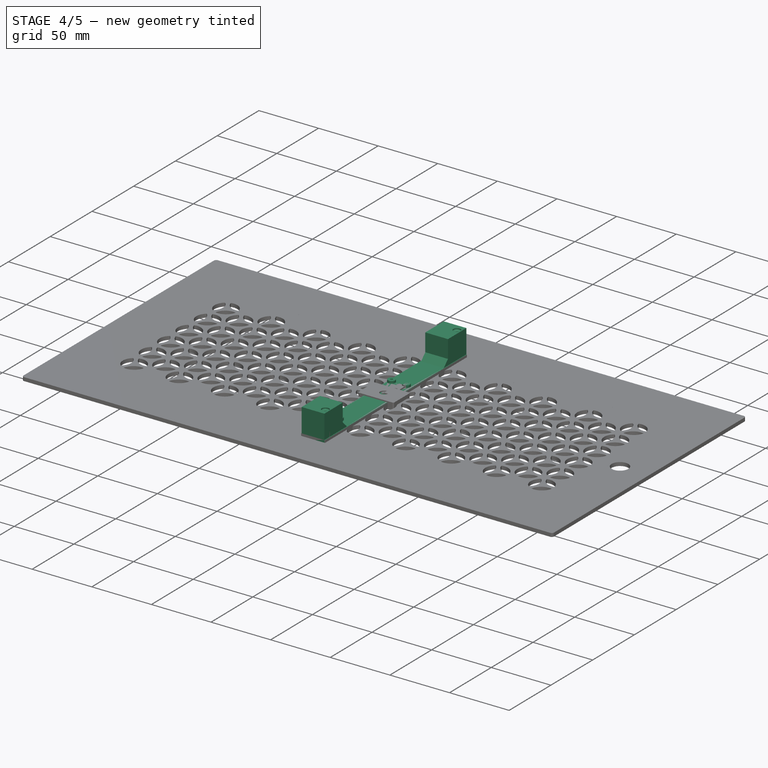
[diagram: stage 4 of 5 — iso view after this stage's code; geometry added in this stage tinted green]
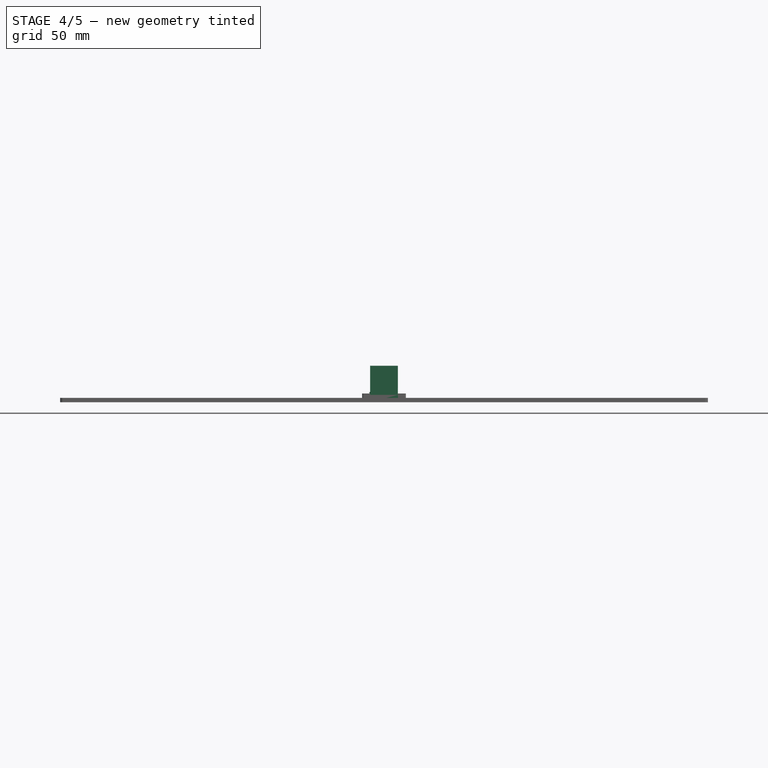
[diagram: stage 4 of 5 — front view after this stage's code; geometry added in this stage tinted green]
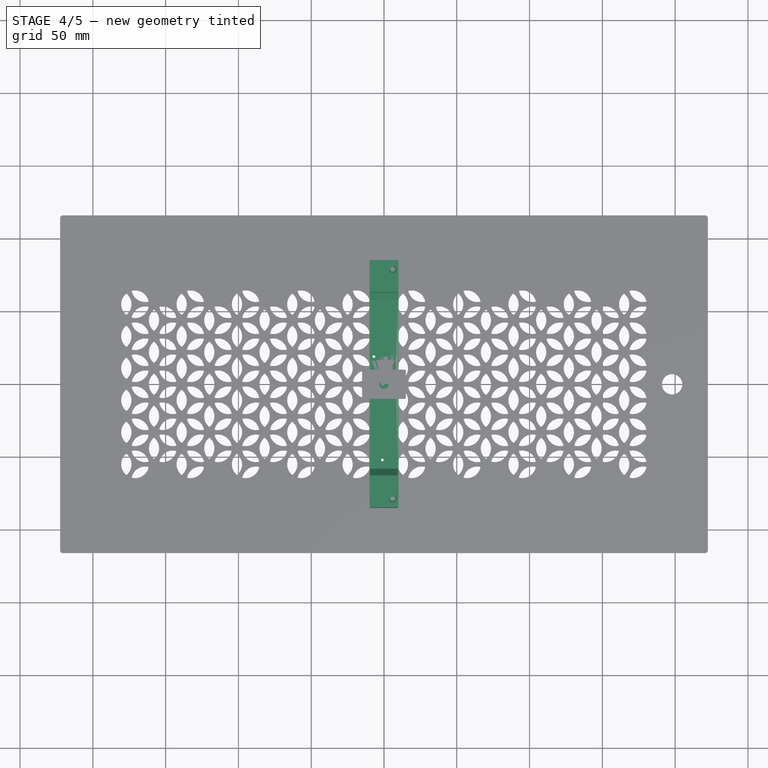
[diagram: stage 4 of 5 — top view after this stage's code; geometry added in this stage tinted green]
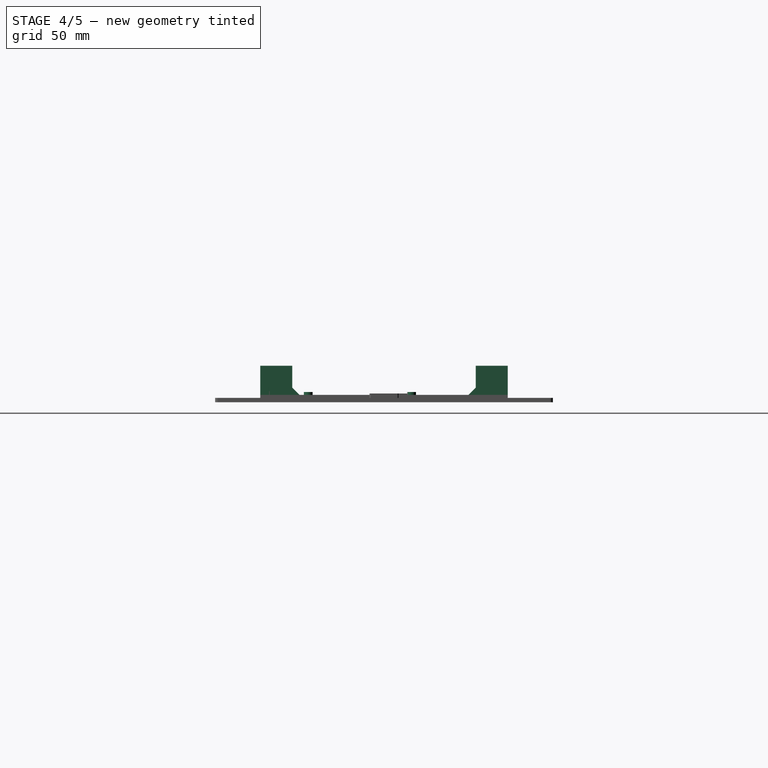
[diagram: stage 4 of 5 — right view after this stage's code; geometry added in this stage tinted green]
FEATURE [PartDesign::Body] Body  label="FrontPannel_Visible"
  AllowCompound = false
  Group = -> [Sketch,Pad,Sketch001,Pocket,Fillet002,Sketch015,Pocket009]
  Origin = -> Origin
  Tip = -> Pocket009
FEATURE [Sketcher::SketchObject] Sketch016
  ArcFitTolerance = 1e-06
  AttachmentSupport = -> [XY_Plane006]
  FullyConstrained = false
  MakeInternals = false
  MapMode = 5
  sketch-geometry (16):
    g0: LineSegment StartX=-222.5 StartY=116 StartZ=0 EndX=-222.5 EndY=-116 EndZ=0
    g1: LineSegment StartX=-222.5 StartY=-116 StartZ=0 EndX=222.5 EndY=-116 EndZ=0
    g2: LineSegment StartX=222.5 StartY=-116 StartZ=0 EndX=222.5 EndY=116 EndZ=0
    g3: LineSegment StartX=222.5 StartY=116 StartZ=0 EndX=-222.5 EndY=116 EndZ=0
    g4: LineSegment [constr] StartX=-222.5 StartY=116 StartZ=0 EndX=222.5 EndY=-116 EndZ=0
    g5: LineSegment [constr] StartX=222.5 StartY=116 StartZ=0 EndX=-222.5 EndY=-116 EndZ=0
    g6: LineSegment [constr] StartX=-206.5 StartY=80.7895 StartZ=0 EndX=-206.5 EndY=-79.2105 EndZ=0
    g7: LineSegment [constr] StartX=-206.5 StartY=-79.2105 StartZ=0 EndX=183.5 EndY=-79.2105 EndZ=0
    g8: LineSegment [constr] StartX=183.5 StartY=-79.2105 StartZ=0 EndX=183.5 EndY=80.7895 EndZ=0
    g9: LineSegment [constr] StartX=183.5 StartY=80.7895 StartZ=0 EndX=-206.5 EndY=80.7895 EndZ=0
    g10: LineSegment [constr] StartX=-206.5 StartY=80.7895 StartZ=0 EndX=183.5 EndY=-79.2105 EndZ=0
    g11: LineSegment [constr] StartX=183.5 StartY=80.7895 StartZ=0 EndX=-206.5 EndY=-79.2105 EndZ=0
    g12: LineSegment [constr] StartX=190.5 StartY=57.5 StartZ=0 EndX=190.5 EndY=-57.5 EndZ=0
    g13: LineSegment [constr] StartX=190.5 StartY=-57.5 StartZ=0 EndX=212.5 EndY=-57.5 EndZ=0
    g14: LineSegment [constr] StartX=212.5 StartY=-57.5 StartZ=0 EndX=212.5 EndY=57.5 EndZ=0
    g15: LineSegment [constr] StartX=212.5 StartY=57.5 StartZ=0 EndX=190.5 EndY=57.5 EndZ=0
  constraints (43):
    c: Coincident(g0,g1)
    c: Coincident(g1,g2)
    c: Coincident(g2,g3)
    c: Coincident(g3,g0)
    c: Vertical(g0)
    c: Vertical(g2)
    c: Horizontal(g1)
    c: Horizontal(g3)
    c: Coincident(g4,g0)
    c: Coincident(g4,g1)
    c: Coincident(g5,g2)
    c: Coincident(g5,g0)
    c: DistanceX(g3,g3) = 445
    c: DistanceY(g2,g2) = 232
    c: Coincident(g6,g7)
    c: Coincident(g7,g8)
    c: Coincident(g8,g9)
    c: Coincident(g9,g6)
    c: Vertical(g6)
    c: Vertical(g8)
    c: Horizontal(g7)
    c: Horizontal(g9)
    c: Coincident(g10,g6)
    c: Coincident(g10,g7)
    c: Coincident(g11,g8)
    c: Coincident(g11,g6)
    c: DistanceY(g8,g8) = 160
    c: DistanceX(g9,g9) = 390
    c: DistanceX(g0,g6) = 16
    c: PointOnObject(g-1,g4)
    c: PointOnObject(g-1,g5)
    c: Coincident(g12,g13)
    c: Coincident(g13,g14)
    c: Coincident(g14,g15)
    c: Coincident(g15,g12)
    c: Vertical(g12)
    c: Vertical(g14)
    c: Horizontal(g13)
    c: Horizontal(g15)
    c: DistanceX(g15,g15) = 22
    c: DistanceY(g14,g14) = 115
    c: Distance(g13,g-1) = 57.5
    c: DistanceX(g14,g2) = 10
FEATURE [PartDesign::Pad] Pad006
  Direction = (0,0,1)
  Length = 3
  Length2 = 10
  Profile = -> Sketch016
  ReferenceAxis = -> Sketch016 [N_Axis]
  Suppressed = false
  Type = 0
FEATURE [Sketcher::SketchObject] Sketch017
  ArcFitTolerance = 1e-06
  AttachmentSupport = -> [Pad006]
  FullyConstrained = false
  MakeInternals = false
  MapMode = 5
  Placement = pos=(0,0,3) rot=(0,0,1;0rad)
  expr: Constraints[338] = <<Values>>.B2
  expr: Constraints[339] = <<Values>>.B2
  expr: Constraints[340] = <<Values>>.B2
  expr: Constraints[341] = <<Values>>.B2
  expr: Constraints[342] = <<Values>>.B2
  expr: Constraints[343] = <<Values>>.B2
  expr: Constraints[344] = <<Values>>.B2
  expr: Constraints[346] = <<Values>>.B3
  expr: Constraints[347] = <<Values>>.B3
  expr: Constraints[348] = <<Values>>.B3
  expr: Constraints[349] = <<Values>>.B3
  expr: Constraints[350] = <<Values>>.B3
  expr: Constraints[351] = <<Values>>.B3
  expr: Constraints[352] = <<Values>>.B3
  expr: Constraints[353] = <<Values>>.B3
  expr: Constraints[354] = <<Values>>.B3
  expr: Constraints[355] = <<Values>>.B3
  expr: Constraints[356] = <<Values>>.B3
  expr: Constraints[357] = <<Values>>.B3
  expr: Constraints[358] = <<Values>>.B3
  expr: Constraints[359] = <<Values>>.B3
  expr: Constraints[360] = <<Values>>.B3
  expr: Constraints[361] = <<Values>>.B3
  expr: Constraints[362] = <<Values>>.B3
  expr: Constraints[363] = <<Values>>.B3
  expr: Constraints[364] = <<Values>>.B2
  expr: Constraints[383] = <<Values>>.B2
  expr: Constraints[384] = <<Values>>.B2
  expr: Constraints[386] = <<Values>>.B4
  expr: Constraints[392] = <<Values>>.B2
  expr: Constraints[393] = <<Values>>.B2
  expr: Constraints[471] = <<Values>>.B3
  sketch-geometry (167):
    g0: LineSegment [constr] StartX=-222.5 StartY=171.559 StartZ=0 EndX=-222.5 EndY=-148.418 EndZ=0
    g1: LineSegment [constr] StartX=222.5 StartY=164.967 StartZ=0 EndX=222.5 EndY=-175.294 EndZ=0
    g2: LineSegment [constr] StartX=-276.156 StartY=116 StartZ=0 EndX=290.156 EndY=116 EndZ=0
    g3: LineSegment [constr] StartX=344.139 StartY=-116 StartZ=0 EndX=-328.776 EndY=-116 EndZ=0
    g4: LineSegment [constr] StartX=-393.388 StartY=55 StartZ=0 EndX=331.388 EndY=55 EndZ=0
    g5: LineSegment [constr] StartX=-379.371 StartY=33 StartZ=0 EndX=317.371 EndY=33 EndZ=0
    g6: LineSegment [constr] StartX=-387.52 StartY=11 StartZ=0 EndX=325.52 EndY=11 EndZ=0
    g7: LineSegment [constr] StartX=417.439 StartY=-11 StartZ=0 EndX=-479.439 EndY=-11 EndZ=0
    g8: LineSegment [constr] StartX=-372.23 StartY=-33 StartZ=0 EndX=310.23 EndY=-33 EndZ=0
    g9: LineSegment [constr] StartX=253.91 StartY=-55 StartZ=0 EndX=-391.91 EndY=-55 EndZ=0
    g10: Circle CenterX=-183 CenterY=55 CenterZ=0 NormalX=0 NormalY=0 NormalZ=1 AngleXU=0 Radius=9.5
    g11: LineSegment [constr] StartX=-183 StartY=170.843 StartZ=0 EndX=-183 EndY=-155.349 EndZ=0
    g12: Circle CenterX=-183 CenterY=33 CenterZ=0 NormalX=0 NormalY=0 NormalZ=1 AngleXU=0 Radius=9.5
    g13: Circle CenterX=-183 CenterY=11 CenterZ=0 NormalX=0 NormalY=0 NormalZ=1 AngleXU=0 Radius=9.5
    g14: Circle CenterX=-183 CenterY=-11 CenterZ=0 NormalX=0 NormalY=0 NormalZ=1 AngleXU=0 Radius=9.5
    g15: Circle CenterX=-183 CenterY=-33 CenterZ=0 NormalX=0 NormalY=0 NormalZ=1 AngleXU=0 Radius=9.5
    g16: Circle CenterX=-183 CenterY=-55 CenterZ=0 NormalX=0 NormalY=0 NormalZ=1 AngleXU=0 Radius=9.5
    g17: LineSegment [constr] StartX=-365.627 StartY=44 StartZ=0 EndX=265.627 EndY=44 EndZ=0
    g18: LineSegment [constr] StartX=-265.582 StartY=22 StartZ=0 EndX=286.348 EndY=22 EndZ=0
    g19: LineSegment [constr] StartX=-405.934 StartY=-44 StartZ=0 EndX=381.934 EndY=-44 EndZ=0
    g20: LineSegment [constr] StartX=-164 StartY=-153.028 StartZ=0 EndX=-164 EndY=148.477 EndZ=0
    g21: Circle CenterX=-164 CenterY=44 CenterZ=0 NormalX=0 NormalY=0 NormalZ=1 AngleXU=0 Radius=9.5
    g22: Circle CenterX=-164 CenterY=22 CenterZ=0 NormalX=0 NormalY=0 NormalZ=1 AngleXU=0 Radius=9.5
    g23: Circle CenterX=-164 CenterY=0 CenterZ=0 NormalX=0 NormalY=0 NormalZ=1 AngleXU=0 Radius=9.5
    g24: Circle CenterX=-164 CenterY=-22 CenterZ=0 NormalX=0 NormalY=0 NormalZ=1 AngleXU=0 Radius=9.5
    g25: Circle CenterX=-164 CenterY=-44 CenterZ=0 NormalX=0 NormalY=0 NormalZ=1 AngleXU=0 Radius=9.5
    g26: LineSegment [constr] StartX=-145 StartY=130.867 StartZ=0 EndX=-145 EndY=-141.746 EndZ=0
    g27: LineSegment [constr] StartX=-126 StartY=138.96 StartZ=0 EndX=-126 EndY=-164.926 EndZ=0
    g28: LineSegment [constr] StartX=-107 StartY=143.378 StartZ=0 EndX=-107 EndY=-213.194 EndZ=0
    g29: LineSegment [constr] StartX=-88 StartY=148.137 StartZ=0 EndX=-88 EndY=-193.139 EndZ=0
    g30: LineSegment [constr] StartX=-69 StartY=135.221 StartZ=0 EndX=-69 EndY=-193.883 EndZ=0
    g31: Circle CenterX=-145 CenterY=55 CenterZ=0 NormalX=0 NormalY=0 NormalZ=1 AngleXU=0 Radius=9.5
    g32: Circle CenterX=-145 CenterY=33 CenterZ=0 NormalX=0 NormalY=0 NormalZ=1 AngleXU=0 Radius=9.5
    g33: Circle CenterX=-145 CenterY=11 CenterZ=0 NormalX=0 NormalY=0 NormalZ=1 AngleXU=0 Radius=9.5
    g34: Circle CenterX=-145 CenterY=-11 CenterZ=0 NormalX=0 NormalY=0 NormalZ=1 AngleXU=0 Radius=9.5
    g35: Circle CenterX=-145 CenterY=-33 CenterZ=0 NormalX=0 NormalY=0 NormalZ=1 AngleXU=0 Radius=9.5
    g36: Circle CenterX=-145 CenterY=-55 CenterZ=0 NormalX=0 NormalY=0 NormalZ=1 AngleXU=0 Radius=9.5
    g37: Circle CenterX=-126 CenterY=44 CenterZ=0 NormalX=0 NormalY=0 NormalZ=1 AngleXU=0 Radius=9.5
    g38: Circle CenterX=-126 CenterY=22 CenterZ=0 NormalX=0 NormalY=0 NormalZ=1 AngleXU=0 Radius=9.5
    g39: Circle CenterX=-126 CenterY=0 CenterZ=0 NormalX=0 NormalY=0 NormalZ=1 AngleXU=0 Radius=9.5
    g40: Circle CenterX=-126 CenterY=-22 CenterZ=0 NormalX=0 NormalY=0 NormalZ=1 AngleXU=0 Radius=9.5
    g41: Circle CenterX=-126 CenterY=-44 CenterZ=0 NormalX=0 NormalY=0 NormalZ=1 AngleXU=0 Radius=9.5
    g42: Circle CenterX=-107 CenterY=55 CenterZ=0 NormalX=0 NormalY=0 NormalZ=1 AngleXU=0 Radius=9.5
    g43: Circle CenterX=-107 CenterY=33 CenterZ=0 NormalX=0 NormalY=0 NormalZ=1 AngleXU=0 Radius=9.5
    g44: Circle CenterX=-107 CenterY=11 CenterZ=0 NormalX=0 NormalY=0 NormalZ=1 AngleXU=0 Radius=9.5
    g45: Circle CenterX=-107 CenterY=-11 CenterZ=0 NormalX=0 NormalY=0 NormalZ=1 AngleXU=0 Radius=9.5
    g46: Circle CenterX=-107 CenterY=-33 CenterZ=0 NormalX=0 NormalY=0 NormalZ=1 AngleXU=0 Radius=9.5
    g47: Circle CenterX=-107 CenterY=-55 CenterZ=0 NormalX=0 NormalY=0 NormalZ=1 AngleXU=0 Radius=9.5
    g48: Circle CenterX=-88 CenterY=-44 CenterZ=0 NormalX=0 NormalY=0 NormalZ=1 AngleXU=0 Radius=9.5
    g49: Circle CenterX=-88 CenterY=-22 CenterZ=0 NormalX=0 NormalY=0 NormalZ=1 AngleXU=0 Radius=9.5
    g50: Circle CenterX=-88 CenterY=0 CenterZ=0 NormalX=0 NormalY=0 NormalZ=1 AngleXU=0 Radius=9.5
    g51: Circle CenterX=-88 CenterY=22 CenterZ=0 NormalX=0 NormalY=0 NormalZ=1 AngleXU=0 Radius=9.5
    g52: Circle CenterX=-88 CenterY=44 CenterZ=0 NormalX=0 NormalY=0 NormalZ=1 AngleXU=0 Radius=9.5
    g53: LineSegment [constr] StartX=-50 StartY=121.882 StartZ=0 EndX=-50 EndY=-188.509 EndZ=0
    g54: LineSegment [constr] StartX=-31 StartY=120.515 StartZ=0 EndX=-31 EndY=-158.355 EndZ=0
    g55: LineSegment [constr] StartX=-12 StartY=110.14 StartZ=0 EndX=-12 EndY=-150.493 EndZ=0
    g56: LineSegment [constr] StartX=7 StartY=116 StartZ=0 EndX=7 EndY=-167.817 EndZ=0
    g57: LineSegment [constr] StartX=26 StartY=114.379 StartZ=0 EndX=26 EndY=-167.539 EndZ=0
    g58: LineSegment [constr] StartX=45 StartY=103.247 StartZ=0 EndX=45 EndY=-169.765 EndZ=0
    g59: LineSegment [constr] StartX=64 StartY=96.8461 StartZ=0 EndX=64 EndY=-143.048 EndZ=0
    g60: Circle CenterX=-69 CenterY=55 CenterZ=0 NormalX=0 NormalY=0 NormalZ=1 AngleXU=0 Radius=9.5
    g61: Circle CenterX=-69 CenterY=33 CenterZ=0 NormalX=0 NormalY=0 NormalZ=1 AngleXU=0 Radius=9.5
    g62: Circle CenterX=-69 CenterY=11 CenterZ=0 NormalX=0 NormalY=0 NormalZ=1 AngleXU=0 Radius=9.5
    g63: Circle CenterX=-69 CenterY=-11 CenterZ=0 NormalX=0 NormalY=0 NormalZ=1 AngleXU=0 Radius=9.5
    g64: Circle CenterX=-69 CenterY=-33 CenterZ=0 NormalX=0 NormalY=0 NormalZ=1 AngleXU=0 Radius=9.5
    g65: Circle CenterX=-50 CenterY=44 CenterZ=0 NormalX=0 NormalY=0 NormalZ=1 AngleXU=0 Radius=9.5
    g66: Circle CenterX=-50 CenterY=22 CenterZ=0 NormalX=0 NormalY=0 NormalZ=1 AngleXU=0 Radius=9.5
    g67: Circle CenterX=-50 CenterY=0 CenterZ=0 NormalX=0 NormalY=0 NormalZ=1 AngleXU=0 Radius=9.5
    g68: Circle CenterX=-50 CenterY=-22 CenterZ=0 NormalX=0 NormalY=0 NormalZ=1 AngleXU=0 Radius=9.5
    g69: Circle CenterX=-50 CenterY=-44 CenterZ=0 NormalX=0 NormalY=0 NormalZ=1 AngleXU=0 Radius=9.5
    g70: Circle CenterX=-69 CenterY=-55 CenterZ=0 NormalX=0 NormalY=0 NormalZ=1 AngleXU=0 Radius=9.5
    g71: Circle CenterX=-31 CenterY=55 CenterZ=0 NormalX=0 NormalY=0 NormalZ=1 AngleXU=0 Radius=9.5
    g72: Circle CenterX=-31 CenterY=33 CenterZ=0 NormalX=0 NormalY=0 NormalZ=1 AngleXU=0 Radius=9.5
    g73: Circle CenterX=-31 CenterY=11 CenterZ=0 NormalX=0 NormalY=0 NormalZ=1 AngleXU=0 Radius=9.5
    g74: Circle CenterX=-31 CenterY=-11 CenterZ=0 NormalX=0 NormalY=0 NormalZ=1 AngleXU=0 Radius=9.5
    g75: Circle CenterX=-31 CenterY=-33 CenterZ=0 NormalX=0 NormalY=0 NormalZ=1 AngleXU=0 Radius=9.5
    g76: Circle CenterX=-31 CenterY=-55 CenterZ=0 NormalX=0 NormalY=0 NormalZ=1 AngleXU=0 Radius=9.5
    g77: Circle CenterX=-12 CenterY=-44 CenterZ=0 NormalX=0 NormalY=0 NormalZ=1 AngleXU=0 Radius=9.5
    g78: Circle CenterX=-12 CenterY=-22 CenterZ=0 NormalX=0 NormalY=0 NormalZ=1 AngleXU=0 Radius=9.5
    g79: Circle CenterX=-12 CenterY=0 CenterZ=0 NormalX=0 NormalY=0 NormalZ=1 AngleXU=0 Radius=9.5
    g80: Circle CenterX=-12 CenterY=22 CenterZ=0 NormalX=0 NormalY=0 NormalZ=1 AngleXU=0 Radius=9.5
    g81: Circle CenterX=-12 CenterY=44 CenterZ=0 NormalX=0 NormalY=0 NormalZ=1 AngleXU=0 Radius=9.5
    g82: Circle CenterX=7 CenterY=55 CenterZ=0 NormalX=0 NormalY=0 NormalZ=1 AngleXU=0 Radius=9.5
    g83: Circle CenterX=7 CenterY=33 CenterZ=0 NormalX=0 NormalY=0 NormalZ=1 AngleXU=0 Radius=9.5
    g84: Circle CenterX=7 CenterY=11 CenterZ=0 NormalX=0 NormalY=0 NormalZ=1 AngleXU=0 Radius=9.5
    g85: Circle CenterX=7 CenterY=-11 CenterZ=0 NormalX=0 NormalY=0 NormalZ=1 AngleXU=0 Radius=9.5
    g86: Circle CenterX=7 CenterY=-33 CenterZ=0 NormalX=0 NormalY=0 NormalZ=1 AngleXU=0 Radius=9.5
    g87: Circle CenterX=7 CenterY=-55 CenterZ=0 NormalX=0 NormalY=0 NormalZ=1 AngleXU=0 Radius=9.5
    g88: Circle CenterX=26 CenterY=-44 CenterZ=0 NormalX=0 NormalY=0 NormalZ=1 AngleXU=0 Radius=9.5
    g89: Circle CenterX=26 CenterY=-22 CenterZ=0 NormalX=0 NormalY=0 NormalZ=1 AngleXU=0 Radius=9.5
    g90: Circle CenterX=26 CenterY=0 CenterZ=0 NormalX=0 NormalY=0 NormalZ=1 AngleXU=0 Radius=9.5
    g91: Circle CenterX=26 CenterY=22 CenterZ=0 NormalX=0 NormalY=0 NormalZ=1 AngleXU=0 Radius=9.5
    g92: Circle CenterX=26 CenterY=44 CenterZ=0 NormalX=0 NormalY=0 NormalZ=1 AngleXU=0 Radius=9.5
    g93: Circle CenterX=45 CenterY=55 CenterZ=0 NormalX=0 NormalY=0 NormalZ=1 AngleXU=0 Radius=9.5
    g94: Circle CenterX=45 CenterY=33 CenterZ=0 NormalX=0 NormalY=0 NormalZ=1 AngleXU=0 Radius=9.5
    g95: Circle CenterX=45 CenterY=11 CenterZ=0 NormalX=0 NormalY=0 NormalZ=1 AngleXU=0 Radius=9.5
    g96: Circle CenterX=45 CenterY=-11 CenterZ=0 NormalX=0 NormalY=0 NormalZ=1 AngleXU=0 Radius=9.5
    g97: Circle CenterX=64 CenterY=0 CenterZ=0 NormalX=0 NormalY=0 NormalZ=1 AngleXU=0 Radius=9.5
    g98: Circle CenterX=64 CenterY=22 CenterZ=0 NormalX=0 NormalY=0 NormalZ=1 AngleXU=0 Radius=9.5
    g99: Circle CenterX=64 CenterY=44 CenterZ=0 NormalX=0 NormalY=0 NormalZ=1 AngleXU=0 Radius=9.5
    g100: Circle CenterX=45 CenterY=-33 CenterZ=0 NormalX=0 NormalY=0 NormalZ=1 AngleXU=0 Radius=9.5
    g101: Circle CenterX=45 CenterY=-55 CenterZ=0 NormalX=0 NormalY=0 NormalZ=1 AngleXU=0 Radius=9.5
    g102: Circle CenterX=64 CenterY=-44 CenterZ=0 NormalX=0 NormalY=0 NormalZ=1 AngleXU=0 Radius=9.5
    g103: Circle CenterX=64 CenterY=-22 CenterZ=0 NormalX=0 NormalY=0 NormalZ=1 AngleXU=0 Radius=9.5
    g104: LineSegment [constr] StartX=83 StartY=100.084 StartZ=0 EndX=83 EndY=-176.599 EndZ=0
    g105: Circle CenterX=83 CenterY=55 CenterZ=0 NormalX=0 NormalY=0 NormalZ=1 AngleXU=0 Radius=9.5
    g106: Circle CenterX=83 CenterY=33 CenterZ=0 NormalX=0 NormalY=0 NormalZ=1 AngleXU=0 Radius=9.5
    g107: Circle CenterX=83 CenterY=11 CenterZ=0 NormalX=0 NormalY=0 NormalZ=1 AngleXU=0 Radius=9.5
    g108: Circle CenterX=83 CenterY=-11 CenterZ=0 NormalX=0 NormalY=0 NormalZ=1 AngleXU=0 Radius=9.5
    g109: Circle CenterX=83 CenterY=-33 CenterZ=0 NormalX=0 NormalY=0 NormalZ=1 AngleXU=0 Radius=9.5
    g110: Circle CenterX=83 CenterY=-55 CenterZ=0 NormalX=0 NormalY=0 NormalZ=1 AngleXU=0 Radius=9.5
    g111: LineSegment [constr] StartX=199.511 StartY=125.276 StartZ=0 EndX=199.511 EndY=-177.251 EndZ=0
    g112: LineSegment [constr] StartX=102 StartY=125.804 StartZ=0 EndX=102 EndY=-181.13 EndZ=0
    g113: LineSegment [constr] StartX=121 StartY=125.241 StartZ=0 EndX=121 EndY=-180.751 EndZ=0
    g114: LineSegment [constr] StartX=140 StartY=126.148 StartZ=0 EndX=140 EndY=-176.262 EndZ=0
    g115: Circle CenterX=102 CenterY=44 CenterZ=0 NormalX=0 NormalY=0 NormalZ=1 AngleXU=0 Radius=9.5
    g116: Circle CenterX=102 CenterY=22 CenterZ=0 NormalX=0 NormalY=0 NormalZ=1 AngleXU=0 Radius=9.5
    g117: Circle CenterX=102 CenterY=0 CenterZ=0 NormalX=0 NormalY=0 NormalZ=1 AngleXU=0 Radius=9.5
    g118: Circle CenterX=102 CenterY=-22 CenterZ=0 NormalX=0 NormalY=0 NormalZ=1 AngleXU=0 Radius=9.5
    g119: Circle CenterX=102 CenterY=-44 CenterZ=0 NormalX=0 NormalY=0 NormalZ=1 AngleXU=0 Radius=9.5
    g120: Circle CenterX=121 CenterY=55 CenterZ=0 NormalX=0 NormalY=0 NormalZ=1 AngleXU=0 Radius=9.5
    g121: Circle CenterX=121 CenterY=33 CenterZ=0 NormalX=0 NormalY=0 NormalZ=1 AngleXU=0 Radius=9.5
    g122: Circle CenterX=121 CenterY=11 CenterZ=0 NormalX=0 NormalY=0 NormalZ=1 AngleXU=0 Radius=9.5
    g123: Circle CenterX=121 CenterY=-11 CenterZ=0 NormalX=0 NormalY=0 NormalZ=1 AngleXU=0 Radius=9.5
    g124: Circle CenterX=121 CenterY=-33 CenterZ=0 NormalX=0 NormalY=0 NormalZ=1 AngleXU=0 Radius=9.5
    g125: Circle CenterX=121 CenterY=-55 CenterZ=0 NormalX=0 NormalY=0 NormalZ=1 AngleXU=0 Radius=9.5
    g126: LineSegment [constr] StartX=159 StartY=131.173 StartZ=0 EndX=159 EndY=-183.407 EndZ=0
    g127: Circle CenterX=140 CenterY=44 CenterZ=0 NormalX=0 NormalY=0 NormalZ=1 AngleXU=0 Radius=9.5
    g128: Circle CenterX=140 CenterY=22 CenterZ=0 NormalX=0 NormalY=0 NormalZ=1 AngleXU=0 Radius=9.5
    g129: Circle CenterX=140 CenterY=0 CenterZ=0 NormalX=0 NormalY=0 NormalZ=1 AngleXU=0 Radius=9.5
    g130: Circle CenterX=140 CenterY=-22 CenterZ=0 NormalX=0 NormalY=0 NormalZ=1 AngleXU=0 Radius=9.5
    g131: Circle CenterX=140 CenterY=-44 CenterZ=0 NormalX=0 NormalY=0 NormalZ=1 AngleXU=0 Radius=9.5
    g132: Circle CenterX=159 CenterY=55 CenterZ=0 NormalX=0 NormalY=0 NormalZ=1 AngleXU=0 Radius=9.5
    g133: Circle CenterX=159 CenterY=33 CenterZ=0 NormalX=0 NormalY=0 NormalZ=1 AngleXU=0 Radius=9.5
    g134: Circle CenterX=159 CenterY=11 CenterZ=0 NormalX=0 NormalY=0 NormalZ=1 AngleXU=0 Radius=9.5
    g135: Circle CenterX=159 CenterY=-11 CenterZ=0 NormalX=0 NormalY=0 NormalZ=1 AngleXU=0 Radius=9.5
    g136: Circle CenterX=159 CenterY=-33 CenterZ=0 NormalX=0 NormalY=0 NormalZ=1 AngleXU=0 Radius=9.5
    g137: Circle CenterX=159 CenterY=-55 CenterZ=0 NormalX=0 NormalY=0 NormalZ=1 AngleXU=0 Radius=9.5
    g138: LineSegment [constr] StartX=-255.839 StartY=-22 StartZ=0 EndX=243.836 EndY=-22 EndZ=0
    g139: LineSegment [constr] StartX=-312.069 StartY=66 StartZ=0 EndX=237.298 EndY=66 EndZ=0
    g140: LineSegment [constr] StartX=270.708 StartY=-66 StartZ=0 EndX=-250.072 EndY=-66 EndZ=0
    g141: Circle CenterX=-164 CenterY=66 CenterZ=0 NormalX=0 NormalY=0 NormalZ=1 AngleXU=0 Radius=9.5
    g142: Circle CenterX=-126 CenterY=66 CenterZ=0 NormalX=0 NormalY=0 NormalZ=1 AngleXU=0 Radius=9.5
    g143: Circle CenterX=-88 CenterY=66 CenterZ=0 NormalX=0 NormalY=0 NormalZ=1 AngleXU=0 Radius=9.5
    g144: Circle CenterX=-50 CenterY=66 CenterZ=0 NormalX=0 NormalY=0 NormalZ=1 AngleXU=0 Radius=9.5
    g145: Circle CenterX=-12 CenterY=66 CenterZ=0 NormalX=0 NormalY=0 NormalZ=1 AngleXU=0 Radius=9.5
    g146: Circle CenterX=26 CenterY=66 CenterZ=0 NormalX=0 NormalY=0 NormalZ=1 AngleXU=0 Radius=9.5
    g147: Circle CenterX=64 CenterY=66 CenterZ=0 NormalX=0 NormalY=0 NormalZ=1 AngleXU=0 Radius=9.5
    g148: Circle CenterX=102 CenterY=66 CenterZ=0 NormalX=0 NormalY=0 NormalZ=1 AngleXU=0 Radius=9.5
    g149: Circle CenterX=140 CenterY=66 CenterZ=0 NormalX=0 NormalY=0 NormalZ=1 AngleXU=0 Radius=9.5
    g150: Circle CenterX=-164 CenterY=-66 CenterZ=0 NormalX=0 NormalY=0 NormalZ=1 AngleXU=0 Radius=9.5
    g151: Circle CenterX=-126 CenterY=-66 CenterZ=0 NormalX=0 NormalY=0 NormalZ=1 AngleXU=0 Radius=9.5
    g152: Circle CenterX=-88 CenterY=-66 CenterZ=0 NormalX=0 NormalY=0 NormalZ=1 AngleXU=0 Radius=9.5
    g153: Circle CenterX=-50 CenterY=-66 CenterZ=0 NormalX=0 NormalY=0 NormalZ=1 AngleXU=0 Radius=9.5
    g154: Circle CenterX=-12 CenterY=-66 CenterZ=0 NormalX=0 NormalY=0 NormalZ=1 AngleXU=0 Radius=9.5
    g155: Circle CenterX=26 CenterY=-66 CenterZ=0 NormalX=0 NormalY=0 NormalZ=1 AngleXU=0 Radius=9.5
    g156: Circle CenterX=64 CenterY=-66 CenterZ=0 NormalX=0 NormalY=0 NormalZ=1 AngleXU=0 Radius=9.5
    g157: Circle CenterX=102 CenterY=-66 CenterZ=0 NormalX=0 NormalY=0 NormalZ=1 AngleXU=0 Radius=9.5
    g158: Circle CenterX=140 CenterY=-66 CenterZ=0 NormalX=0 NormalY=0 NormalZ=1 AngleXU=0 Radius=9.5
    g159: LineSegment [constr] StartX=178 StartY=123.897 StartZ=0 EndX=178 EndY=-103.435 EndZ=0
    g160: Circle CenterX=178 CenterY=66 CenterZ=0 NormalX=0 NormalY=0 NormalZ=1 AngleXU=0 Radius=9.5
    g161: Circle CenterX=178 CenterY=44 CenterZ=0 NormalX=0 NormalY=0 NormalZ=1 AngleXU=0 Radius=9.5
    g162: Circle CenterX=178 CenterY=22 CenterZ=0 NormalX=0 NormalY=0 NormalZ=1 AngleXU=0 Radius=9.5
    g163: Circle CenterX=178 CenterY=0 CenterZ=0 NormalX=0 NormalY=0 NormalZ=1 AngleXU=0 Radius=9.5
    g164: Circle CenterX=178 CenterY=-22 CenterZ=0 NormalX=0 NormalY=0 NormalZ=1 AngleXU=0 Radius=9.5
    g165: Circle CenterX=178 CenterY=-44 CenterZ=0 NormalX=0 NormalY=0 NormalZ=1 AngleXU=0 Radius=9.5
    g166: Circle CenterX=178 CenterY=-66 CenterZ=0 NormalX=0 NormalY=0 NormalZ=1 AngleXU=0 Radius=9.5
  constraints (472):
    c: Vertical(g0)
    c: Vertical(g1)
    c: Horizontal(g2)
    c: Horizontal(g3)
    c: DistanceX(g0,g-1) = 222.5
    c: DistanceX(g-1,g1) = 222.5
    c: DistanceY(g-1,g2) = 116
    c: DistanceY(g3,g-1) = 116
    c: Diameter(g10) = 19
    c: Vertical(g11)
    c: PointOnObject(g10,g11)
    c: PointOnObject(g12,g5)
    c: PointOnObject(g13,g6)
    c: PointOnObject(g14,g7)
    c: PointOnObject(g15,g8)
    c: PointOnObject(g16,g9)
    c: PointOnObject(g12,g11)
    c: PointOnObject(g13,g11)
    c: PointOnObject(g14,g11)
    c: PointOnObject(g15,g11)
    c: PointOnObject(g16,g11)
    c: Equal(g12,g10)
    c: Equal(g13,g12)
    c: Equal(g14,g13)
    c: Equal(g15,g14)
    c: Equal(g16,g15)
    c: Horizontal(g17)
    c: Vertical(g20)
    c: PointOnObject(g21,g17)
    c: PointOnObject(g22,g18)
    c: PointOnObject(g23,g-1)
    c: PointOnObject(g25,g19)
    c: Equal(g21,g10)
    c: Equal(g22,g10)
    c: Equal(g23,g10)
    c: Equal(g24,g10)
    c: Equal(g25,g10)
    c: PointOnObject(g21,g20)
    c: PointOnObject(g22,g20)
    c: PointOnObject(g23,g20)
    c: PointOnObject(g24,g20)
    c: PointOnObject(g25,g20)
    c: Vertical(g26)
    c: Vertical(g27)
    c: Vertical(g28)
    c: Vertical(g29)
    c: Vertical(g30)
    c: PointOnObject(g31,g4)
    c: PointOnObject(g32,g5)
    c: PointOnObject(g33,g6)
    c: PointOnObject(g34,g7)
    c: PointOnObject(g35,g8)
    c: PointOnObject(g36,g9)
    c: Equal(g10,g31)
    c: Equal(g32,g10)
    c: Equal(g10,g33)
    c: Equal(g34,g10)
    c: Equal(g35,g10)
    c: Equal(g36,g10)
    c: PointOnObject(g31,g26)
    c: PointOnObject(g32,g26)
    c: PointOnObject(g33,g26)
    c: PointOnObject(g34,g26)
    c: PointOnObject(g35,g26)
    c: PointOnObject(g36,g26)
    c: PointOnObject(g37,g17)
    c: PointOnObject(g38,g18)
    c: PointOnObject(g39,g-1)
    c: PointOnObject(g41,g19)
    c: Equal(g37,g10)
    c: Equal(g38,g10)
    c: Equal(g39,g10)
    c: Equal(g10,g40)
    c: Equal(g41,g10)
    c: PointOnObject(g37,g27)
    c: PointOnObject(g38,g27)
    c: PointOnObject(g39,g27)
    c: PointOnObject(g40,g27)
    c: PointOnObject(g41,g27)
    c: PointOnObject(g42,g4)
    c: PointOnObject(g43,g5)
    c: PointOnObject(g44,g6)
    c: PointOnObject(g45,g7)
    c: PointOnObject(g46,g8)
    c: PointOnObject(g47,g9)
    c: PointOnObject(g48,g19)
    c: PointOnObject(g50,g-1)
    c: PointOnObject(g51,g18)
    c: PointOnObject(g52,g17)
    c: PointOnObject(g42,g28)
    c: PointOnObject(g43,g28)
    c: PointOnObject(g44,g28)
    c: PointOnObject(g51,g29)
    c: PointOnObject(g52,g29)
    c: PointOnObject(g50,g29)
    c: PointOnObject(g45,g28)
    c: PointOnObject(g49,g29)
    c: PointOnObject(g46,g28)
    c: PointOnObject(g48,g29)
    c: PointOnObject(g47,g28)
    c: Equal(g10,g42)
    c: Equal(g43,g10)
    c: Equal(g44,g10)
    c: Equal(g45,g10)
    c: Equal(g46,g10)
    c: Equal(g47,g10)
    c: Equal(g52,g10)
    c: Equal(g51,g10)
    c: Equal(g50,g10)
    c: Equal(g49,g10)
    c: Equal(g48,g10)
    c: Vertical(g53)
    c: Vertical(g54)
    c: Vertical(g55)
    c: Symmetric(g2,g2,g56)
    c: Vertical(g56)
    c: Vertical(g57)
    c: Vertical(g58)
    c: Vertical(g59)
    c: PointOnObject(g60,g4)
    c: PointOnObject(g61,g5)
    c: PointOnObject(g62,g6)
    c: PointOnObject(g63,g7)
    c: PointOnObject(g64,g8)
    c: Symmetric(g17,g17,g65)
    c: PointOnObject(g66,g18)
    c: PointOnObject(g67,g-1)
    c: PointOnObject(g69,g19)
    c: Symmetric(g9,g9,g70)
    c: PointOnObject(g60,g30)
    c: PointOnObject(g61,g30)
    c: PointOnObject(g65,g53)
    c: PointOnObject(g66,g53)
    c: PointOnObject(g62,g30)
    c: PointOnObject(g67,g53)
    c: PointOnObject(g63,g30)
    c: PointOnObject(g68,g53)
    c: PointOnObject(g64,g30)
    c: PointOnObject(g69,g53)
    c: PointOnObject(g70,g30)
    c: Equal(g10,g60)
    c: Equal(g65,g10)
    c: Equal(g61,g10)
    c: Equal(g66,g10)
    c: Equal(g62,g10)
    c: Equal(g67,g10)
    c: Equal(g63,g10)
    c: Equal(g68,g10)
    c: Equal(g64,g10)
    c: Equal(g69,g10)
    c: Equal(g70,g10)
    c: Symmetric(g4,g4,g71)
    c: Symmetric(g5,g5,g72)
    c: Symmetric(g6,g6,g73)
    c: Symmetric(g7,g7,g74)
    c: Symmetric(g8,g8,g75)
    c: PointOnObject(g76,g9)
    c: Symmetric(g19,g19,g77)
    c: PointOnObject(g79,g-1)
    c: PointOnObject(g80,g18)
    c: PointOnObject(g81,g17)
    c: PointOnObject(g82,g4)
    c: PointOnObject(g83,g5)
    c: PointOnObject(g84,g6)
    c: PointOnObject(g85,g7)
    c: PointOnObject(g86,g8)
    c: PointOnObject(g87,g9)
    c: PointOnObject(g88,g19)
    c: PointOnObject(g90,g-1)
    c: PointOnObject(g91,g18)
    c: PointOnObject(g92,g17)
    c: PointOnObject(g71,g54)
    c: PointOnObject(g72,g54)
    c: PointOnObject(g73,g54)
    c: PointOnObject(g74,g54)
    c: PointOnObject(g75,g54)
    c: PointOnObject(g76,g54)
    c: PointOnObject(g77,g55)
    c: PointOnObject(g78,g55)
    c: PointOnObject(g79,g55)
    c: PointOnObject(g80,g55)
    c: PointOnObject(g81,g55)
    c: PointOnObject(g82,g56)
    c: PointOnObject(g83,g56)
    c: PointOnObject(g84,g56)
    c: PointOnObject(g85,g56)
    c: PointOnObject(g86,g56)
    c: PointOnObject(g87,g56)
    c: PointOnObject(g88,g57)
    c: PointOnObject(g89,g57)
    c: PointOnObject(g90,g57)
    c: PointOnObject(g91,g57)
    c: PointOnObject(g92,g57)
    c: Equal(g10,g71)
    c: Equal(g72,g10)
    c: Equal(g73,g10)
    c: Equal(g74,g10)
    c: Equal(g75,g10)
    c: Equal(g81,g10)
    c: Equal(g82,g10)
    c: Equal(g83,g10)
    c: Equal(g10,g80)
    c: Equal(g84,g10)
    c: Equal(g92,g10)
    c: Equal(g91,g10)
    c: Equal(g90,g10)
    c: Equal(g79,g10)
    c: Equal(g85,g10)
    c: Equal(g86,g10)
    c: Equal(g78,g10)
    c: Equal(g89,g10)
    c: Equal(g76,g10)
    c: Equal(g87,g10)
    c: Equal(g10,g77)
    c: Equal(g88,g10)
    c: Distance(g4,g2) = 61
    c: PointOnObject(g93,g4)
    c: PointOnObject(g94,g5)
    c: PointOnObject(g95,g6)
    c: PointOnObject(g96,g7)
    c: PointOnObject(g97,g-1)
    c: PointOnObject(g98,g18)
    c: PointOnObject(g99,g17)
    c: PointOnObject(g100,g8)
    c: PointOnObject(g101,g9)
    c: PointOnObject(g102,g19)
    c: PointOnObject(g101,g58)
    c: PointOnObject(g100,g58)
    c: PointOnObject(g96,g58)
    c: PointOnObject(g95,g58)
    c: PointOnObject(g94,g58)
    c: PointOnObject(g93,g58)
    c: PointOnObject(g99,g59)
    c: PointOnObject(g98,g59)
    c: PointOnObject(g97,g59)
    c: PointOnObject(g103,g59)
    c: PointOnObject(g102,g59)
    c: Vertical(g104)
    c: PointOnObject(g105,g4)
    c: PointOnObject(g106,g5)
    c: PointOnObject(g107,g6)
    c: PointOnObject(g108,g7)
    c: PointOnObject(g109,g8)
    c: PointOnObject(g110,g9)
    c: Equal(g90,g101)
    c: Equal(g100,g90)
    c: Equal(g96,g90)
    c: Equal(g95,g90)
    c: Equal(g94,g90)
    c: Equal(g93,g90)
    c: Equal(g97,g90)
    c: Equal(g98,g90)
    c: Equal(g99,g90)
    c: Equal(g105,g90)
    c: Equal(g106,g90)
    c: Equal(g107,g90)
    c: Equal(g108,g90)
    c: Equal(g103,g90)
    c: Equal(g109,g90)
    c: Equal(g102,g90)
    c: Equal(g110,g90)
    c: PointOnObject(g105,g104)
    c: PointOnObject(g106,g104)
    c: PointOnObject(g107,g104)
    c: PointOnObject(g108,g104)
    c: PointOnObject(g109,g104)
    c: PointOnObject(g110,g104)
    c: Vertical(g111)
    c: Vertical(g112)
    c: Vertical(g113)
    c: Vertical(g114)
    c: PointOnObject(g115,g112)
    c: PointOnObject(g115,g17)
    c: PointOnObject(g116,g18)
    c: PointOnObject(g117,g-1)
    c: PointOnObject(g119,g19)
    c: Equal(g10,g115)
    c: Equal(g116,g10)
    c: Equal(g117,g10)
    c: Equal(g118,g10)
    c: Equal(g119,g10)
    c: PointOnObject(g116,g112)
    c: PointOnObject(g117,g112)
    c: PointOnObject(g118,g112)
    c: PointOnObject(g119,g112)
    c: PointOnObject(g120,g4)
    c: PointOnObject(g121,g5)
    c: PointOnObject(g122,g6)
    c: PointOnObject(g123,g7)
    c: PointOnObject(g124,g8)
    c: PointOnObject(g125,g9)
    c: PointOnObject(g125,g113)
    c: PointOnObject(g124,g113)
    c: PointOnObject(g123,g113)
    c: PointOnObject(g122,g113)
    c: PointOnObject(g121,g113)
    c: PointOnObject(g120,g113)
    c: Equal(g120,g121)
    c: Equal(g121,g122)
    c: Equal(g122,g123)
    c: Equal(g123,g124)
    c: Equal(g124,g125)
    c: Equal(g125,g10)
    c: Vertical(g126)
    c: PointOnObject(g127,g17)
    c: PointOnObject(g128,g18)
    c: PointOnObject(g129,g-1)
    c: PointOnObject(g131,g19)
    c: PointOnObject(g131,g114)
    c: PointOnObject(g130,g114)
    c: PointOnObject(g129,g114)
    c: PointOnObject(g128,g114)
    c: PointOnObject(g127,g114)
    c: Equal(g131,g130)
    c: Equal(g130,g129)
    c: Equal(g129,g128)
    c: Equal(g128,g127)
    c: Equal(g127,g10)
    c: PointOnObject(g132,g4)
    c: PointOnObject(g133,g5)
    c: PointOnObject(g134,g6)
    c: PointOnObject(g135,g7)
    c: PointOnObject(g136,g8)
    c: PointOnObject(g137,g9)
    c: PointOnObject(g137,g126)
    c: PointOnObject(g136,g126)
    c: PointOnObject(g135,g126)
    c: PointOnObject(g134,g126)
    c: PointOnObject(g133,g126)
    c: PointOnObject(g132,g126)
    c: Equal(g132,g133)
    c: Equal(g133,g134)
    c: Equal(g134,g135)
    c: Equal(g135,g136)
    c: Equal(g136,g137)
    c: Equal(g137,g10)
    c: DistanceX(g126,g1) = 63.5
    c: Distance(g10,g12) = 3
    c: Distance(g18,g-1) = 22
    c: Distance(g17,g18) = 22
    c: Distance(g5,g4) = 22
    c: Distance(g6,g5) = 22
    c: Distance(g6,g7) = 22
    c: Distance(g7,g8) = 22
    c: Distance(g9,g8) = 22
    c: Distance(g10,g21) = 2.9545
    c: Distance(g20,g11) = 19
    c: DistanceX(g20,g26) = 19
    c: Distance(g27,g26) = 19
    c: Distance(g28,g27) = 19
    c: Distance(g29,g28) = 19
    c: Distance(g29,g30) = 19
    c: Distance(g53,g30) = 19
    c: Distance(g54,g53) = 19
    c: Distance(g55,g54) = 19
    c: Distance(g56,g55) = 19
    c: Distance(g57,g56) = 19
    c: Distance(g58,g57) = 19
    c: Distance(g59,g58) = 19
    c: Distance(g104,g59) = 19
    c: Distance(g112,g104) = 19
    c: Distance(g113,g112) = 19
    c: Distance(g114,g113) = 19
    c: Distance(g126,g114) = 19
    c: DistanceY(g9,g8) = 22
    c: Horizontal(g138)
    c: PointOnObject(g24,g138)
    c: PointOnObject(g40,g138)
    c: PointOnObject(g49,g138)
    c: PointOnObject(g68,g138)
    c: PointOnObject(g78,g138)
    c: PointOnObject(g89,g138)
    c: PointOnObject(g103,g138)
    c: PointOnObject(g118,g138)
    c: PointOnObject(g130,g138)
    c: Horizontal(g9)
    c: Horizontal(g19)
    c: Horizontal(g7)
    c: Horizontal(g6)
    c: Horizontal(g18)
    c: Horizontal(g5)
    c: Horizontal(g4)
    c: PointOnObject(g10,g4)
    c: Distance(g19,g138) = 22
    c: Distance(g-1,g138) = 22
    c: Distance(g21,g32) = 2.9545
    c: Distance(g9,g-1) = 55
    c: DistanceY(g9,g4) = 110
    c: DistanceX(g11,g55) = 171
    c: DistanceX(g55,g126) = 171
    c: Horizontal(g139)
    c: Horizontal(g140)
    c: Distance(g140,g19) = 22
    c: Distance(g17,g139) = 22
    c: PointOnObject(g141,g139)
    c: PointOnObject(g142,g139)
    c: PointOnObject(g143,g139)
    c: PointOnObject(g144,g139)
    c: PointOnObject(g147,g139)
    c: PointOnObject(g149,g139)
    c: PointOnObject(g148,g139)
    c: PointOnObject(g149,g114)
    c: PointOnObject(g148,g112)
    c: PointOnObject(g147,g59)
    c: PointOnObject(g146,g57)
    c: PointOnObject(g145,g139)
    c: PointOnObject(g145,g55)
    c: PointOnObject(g144,g53)
    c: PointOnObject(g143,g29)
    c: PointOnObject(g142,g27)
    c: PointOnObject(g141,g20)
    c: Equal(g141,g142)
    c: Equal(g142,g143)
    c: Equal(g143,g144)
    c: Equal(g144,g145)
    c: Equal(g145,g146)
    c: Equal(g146,g147)
    c: Equal(g147,g148)
    c: Equal(g148,g149)
    c: Equal(g149,g10)
    c: PointOnObject(g150,g140)
    c: PointOnObject(g151,g27)
    c: PointOnObject(g152,g29)
    c: PointOnObject(g153,g53)
    c: PointOnObject(g154,g55)
    c: PointOnObject(g155,g57)
    c: PointOnObject(g156,g59)
    c: PointOnObject(g157,g112)
    c: PointOnObject(g158,g114)
    c: PointOnObject(g158,g140)
    c: PointOnObject(g157,g140)
    c: PointOnObject(g156,g140)
    c: PointOnObject(g155,g140)
    c: PointOnObject(g154,g140)
    c: PointOnObject(g153,g140)
    c: PointOnObject(g152,g140)
    c: PointOnObject(g151,g140)
    c: PointOnObject(g150,g20)
    c: Equal(g150,g151)
    c: Equal(g151,g152)
    c: Equal(g152,g153)
    c: Equal(g153,g154)
    c: Equal(g154,g155)
    c: Equal(g155,g156)
    c: Equal(g156,g157)
    c: Equal(g157,g158)
    c: Equal(g158,g10)
    c: Distance(g55,g-2) = 12
    c: Vertical(g159)
    c: PointOnObject(g160,g139)
    c: PointOnObject(g161,g17)
    c: PointOnObject(g162,g18)
    c: PointOnObject(g163,g-1)
    c: PointOnObject(g164,g138)
    c: PointOnObject(g165,g19)
    c: PointOnObject(g166,g140)
    c: PointOnObject(g166,g159)
    c: PointOnObject(g165,g159)
    c: PointOnObject(g164,g159)
    c: PointOnObject(g163,g159)
    c: PointOnObject(g162,g159)
    c: PointOnObject(g161,g159)
    c: PointOnObject(g160,g159)
    c: Equal(g164,g163)
    c: Equal(g163,g165)
    c: Equal(g165,g166)
    c: Equal(g166,g162)
    c: Equal(g162,g161)
    c: Equal(g161,g160)
    c: Equal(g160,g10)
    c: PointOnObject(g146,g139)
    c: DistanceX(g126,g159) = 19
FEATURE [PartDesign::Pocket] Pocket010
  BaseFeature = -> Pad006
  Direction = (0,0,-1)
  Length = 5
  Length2 = 5
  Profile = -> Sketch017
  ReferenceAxis = -> Sketch017 [N_Axis]
  Suppressed = false
  Type = 0
FEATURE [PartDesign::Fillet] Fillet006
  Base = -> Pocket010 [Edge2,Edge8,Edge5,Edge1]
  BaseFeature = -> Pocket010
  Radius = 2
  SupportTransform = false
  Suppressed = false
  UseAllEdges = false
FEATURE [Sketcher::SketchObject] Sketch018
  ArcFitTolerance = 1e-06
  AttachmentOffset = pos=(0,0,10) rot=(0,0,1;0rad)
  AttachmentSupport = -> [XY_Plane006]
  FullyConstrained = false
  MakeInternals = false
  MapMode = 5
  Placement = pos=(0,0,10) rot=(0,0,1;0rad)
  sketch-geometry (15):
    g0: LineSegment [constr] StartX=190.5 StartY=57.5 StartZ=0 EndX=190.5 EndY=-57.5 EndZ=0
    g1: LineSegment [constr] StartX=190.5 StartY=-57.5 StartZ=0 EndX=212.5 EndY=-57.5 EndZ=0
    g2: LineSegment [constr] StartX=212.5 StartY=-57.5 StartZ=0 EndX=212.5 EndY=57.5 EndZ=0
    g3: LineSegment [constr] StartX=212.5 StartY=57.5 StartZ=0 EndX=190.5 EndY=57.5 EndZ=0
    g4: LineSegment [constr] StartX=222.5 StartY=131.843 StartZ=0 EndX=222.5 EndY=-123.646 EndZ=0
    g5: LineSegment [constr] StartX=185.5 StartY=73.0056 StartZ=0 EndX=185.5 EndY=-72.2174 EndZ=0
    g6: LineSegment StartX=188.874 StartY=-62 StartZ=0 EndX=214.664 EndY=-62 EndZ=0
    g7: LineSegment StartX=214.664 StartY=-62 StartZ=0 EndX=214.664 EndY=62 EndZ=0
    g8: LineSegment StartX=214.664 StartY=62 StartZ=0 EndX=188.874 EndY=62 EndZ=0
    g9: LineSegment StartX=188.874 StartY=62 StartZ=0 EndX=188.874 EndY=11.725 EndZ=0
    g10: LineSegment StartX=188.874 StartY=11.725 StartZ=0 EndX=183.462 EndY=4.25061 EndZ=0
    g11: LineSegment StartX=183.462 StartY=4.25061 StartZ=0 EndX=183.462 EndY=-4.75259 EndZ=0
    g12: LineSegment StartX=183.462 StartY=-4.75259 StartZ=0 EndX=188.874 EndY=-11.9721 EndZ=0
    g13: LineSegment StartX=188.874 StartY=-11.9721 StartZ=0 EndX=188.874 EndY=-62 EndZ=0
    g14: LineSegment [constr] StartX=188.874 StartY=16.6618 StartZ=0 EndX=188.874 EndY=-10.3273 EndZ=0
  constraints (35):
    c: Coincident(g0,g1)
    c: Coincident(g1,g2)
    c: Coincident(g2,g3)
    c: Coincident(g3,g0)
    c: Vertical(g0)
    c: Vertical(g2)
    c: Horizontal(g1)
    c: Horizontal(g3)
    c: DistanceY(g2,g2) = 115
    c: DistanceX(g3,g3) = 22
    c: Vertical(g4)
    c: Distance(g4,g-2) = 222.5
    c: Distance(g4,g2) = 10
    c: Distance(g1,g-1) = 57.5
    c: Vertical(g5)
    c: Distance(g5,g0) = 5
    c: Coincident(g6,g7)
    c: Coincident(g7,g8)
    c: Vertical(g7)
    c: Horizontal(g6)
    c: Horizontal(g8)
    c: Coincident(g8,g9)
    c: Vertical(g9)
    c: Coincident(g9,g10)
    c: Coincident(g10,g11)
    c: Coincident(g11,g12)
    c: Coincident(g12,g13)
    c: Coincident(g13,g6)
    c: Vertical(g13)
    c: Vertical(g14)
    c: PointOnObject(g12,g14)
    c: PointOnObject(g9,g14)
    c: Vertical(g11)
    c: Distance(g7,g-1) = 62
    c: Distance(g-1,g6) = 62
FEATURE [PartDesign::Pocket] Pocket011
  BaseFeature = -> Fillet006
  Direction = (0,0,-1)
  Length = 5
  Length2 = 5
  Profile = -> Sketch018
  ReferenceAxis = -> Sketch018 [N_Axis]
  Suppressed = false
  Type = 1
FEATURE [Sketcher::SketchObject] Sketch045
  ArcFitTolerance = 1e-06
  AttachmentSupport = -> [XY_Plane014]
  FullyConstrained = true
  MakeInternals = false
  MapMode = 5
  sketch-geometry (6):
    g0: LineSegment StartX=-10 StartY=85 StartZ=0 EndX=-10 EndY=-85 EndZ=0
    g1: LineSegment StartX=-10 StartY=-85 StartZ=0 EndX=10 EndY=-85 EndZ=0
    g2: LineSegment StartX=10 StartY=-85 StartZ=0 EndX=10 EndY=85 EndZ=0
    g3: LineSegment StartX=10 StartY=85 StartZ=0 EndX=-10 EndY=85 EndZ=0
    g4: LineSegment [constr] StartX=-10 StartY=85 StartZ=0 EndX=10 EndY=-85 EndZ=0
    g5: LineSegment [constr] StartX=10 StartY=85 StartZ=0 EndX=-10 EndY=-85 EndZ=0
  constraints (16):
    c: Coincident(g0,g1)
    c: Coincident(g1,g2)
    c: Coincident(g2,g3)
    c: Coincident(g3,g0)
    c: Vertical(g0)
    c: Vertical(g2)
    c: Horizontal(g1)
    c: Horizontal(g3)
    c: DistanceX(g3,g3) = 20
    c: Coincident(g4,g0)
    c: Coincident(g4,g1)
    c: Coincident(g5,g2)
    c: Coincident(g5,g0)
    c: PointOnObject(g-1,g4)
    c: PointOnObject(g-1,g5)
    c: DistanceY(g2,g2) = 170
FEATURE [PartDesign::Pad] Pad015
  Direction = (0,0,1)
  Length = 5
  Length2 = 10
  Profile = -> Sketch045
  ReferenceAxis = -> Sketch045 [N_Axis]
  Suppressed = false
  Type = 0
FEATURE [Sketcher::SketchObject] Sketch046
  ArcFitTolerance = 1e-06
  AttachmentSupport = -> [Pad015]
  FullyConstrained = false
  MakeInternals = false
  MapMode = 5
  Placement = pos=(0,0,5) rot=(0,0,1;0rad)
  sketch-geometry (4):
    g0: Circle CenterX=6 CenterY=78.75 CenterZ=0 NormalX=0 NormalY=0 NormalZ=1 AngleXU=0 Radius=1.65
    g1: Circle CenterX=6 CenterY=-78.75 CenterZ=0 NormalX=0 NormalY=0 NormalZ=1 AngleXU=0 Radius=1.65
    g2: LineSegment [constr] StartX=6 StartY=80.4401 StartZ=0 EndX=6 EndY=27.6023 EndZ=0
    g3: Circle CenterX=-1 CenterY=5.3e-15 CenterZ=0 NormalX=0 NormalY=0 NormalZ=1 AngleXU=0 Radius=1
  constraints (11):
    c: Diameter(g0) = 3.3
    c: Diameter(g1) = 3.3
    c: Vertical(g2)
    c: PointOnObject(g1,g2)
    c: PointOnObject(g0,g2)
    c: DistanceY(g1,g0) = 157.5
    c: DistanceY(g-1,g0) = 78.75
    c: Diameter(g3) = 2
    c: DistanceY(g3,g0) = 78.75
    c: DistanceX(g3,g0) = 7
    c: DistanceX(g-1,g0) = 6
FEATURE [PartDesign::Pocket] Pocket030
  BaseFeature = -> Pad015
  Direction = (0,0,-1)
  Length = 5
  Length2 = 5
  Profile = -> Sketch046
  ReferenceAxis = -> Sketch046 [N_Axis]
  Suppressed = false
  Type = 0
FEATURE [Sketcher::SketchObject] Sketch047
  ArcFitTolerance = 1e-06
  AttachmentSupport = -> [Pocket030]
  FullyConstrained = false
  MakeInternals = false
  MapMode = 5
  Placement = pos=(0,0,5) rot=(0,0,1;0rad)
  sketch-geometry (8):
    g0: LineSegment [constr] StartX=-11 StartY=26 StartZ=0 EndX=-11 EndY=-59 EndZ=0
    g1: LineSegment [constr] StartX=-11 StartY=-59 StartZ=0 EndX=9 EndY=-59 EndZ=0
    g2: LineSegment [constr] StartX=9 StartY=-59 StartZ=0 EndX=9 EndY=26 EndZ=0
    g3: LineSegment [constr] StartX=9 StartY=26 StartZ=0 EndX=-11 EndY=26 EndZ=0
    g4: LineSegment [constr] StartX=-13.7706 StartY=-2 StartZ=0 EndX=28.3053 EndY=-2 EndZ=0
    g5: LineSegment [constr] StartX=-1 StartY=68.1502 StartZ=0 EndX=-1 EndY=-45.6007 EndZ=0
    g6: Circle CenterX=-7 CenterY=19 CenterZ=0 NormalX=0 NormalY=0 NormalZ=1 AngleXU=0 Radius=1
    g7: Circle CenterX=-1 CenterY=-52 CenterZ=0 NormalX=0 NormalY=0 NormalZ=1 AngleXU=0 Radius=1
  constraints (22):
    c: Coincident(g0,g1)
    c: Coincident(g1,g2)
    c: Coincident(g2,g3)
    c: Coincident(g3,g0)
    c: Vertical(g0)
    c: Vertical(g2)
    c: Horizontal(g1)
    c: Horizontal(g3)
    c: Horizontal(g4)
    c: Vertical(g5)
    c: Distance(g5,g0) = 10
    c: DistanceX(g1,g1) = 20
    c: DistanceY(g2,g2) = 85
    c: Diameter(g6) = 2
    c: Diameter(g7) = 2
    c: PointOnObject(g7,g5)
    c: Distance(g2,g4) = 28
    c: Distance(g-1,g5) = 1
    c: Distance(g7,g1) = 7
    c: Distance(g6,g3) = 7
    c: Distance(g6,g0) = 4
    c: DistanceY(g4,g-1) = 2
FEATURE [PartDesign::Pocket] Pocket031
  BaseFeature = -> Pocket030
  Direction = (0,0,-1)
  Length = 5
  Length2 = 5
  Profile = -> Sketch047
  ReferenceAxis = -> Sketch047 [N_Axis]
  Suppressed = false
  Type = 0
FEATURE [Sketcher::SketchObject] Sketch048
  ArcFitTolerance = 1e-06
  AttachmentSupport = -> [Pocket031]
  FullyConstrained = false
  MakeInternals = false
  MapMode = 5
  Placement = pos=(0,0,5) rot=(0,0,1;0rad)
  sketch-geometry (6):
    g0: Circle CenterX=-7 CenterY=19 CenterZ=0 NormalX=0 NormalY=0 NormalZ=1 AngleXU=0 Radius=3
    g1: Circle CenterX=-7 CenterY=19 CenterZ=0 NormalX=0 NormalY=0 NormalZ=1 AngleXU=0 Radius=1
    g2: Circle CenterX=-1 CenterY=-52 CenterZ=0 NormalX=0 NormalY=0 NormalZ=1 AngleXU=0 Radius=1
    g3: Circle CenterX=-1 CenterY=-52 CenterZ=0 NormalX=0 NormalY=0 NormalZ=1 AngleXU=0 Radius=3
    g4: Circle CenterX=5.43823 CenterY=19 CenterZ=0 NormalX=0 NormalY=0 NormalZ=1 AngleXU=0 Radius=3
    g5: LineSegment [constr] StartX=-19.5631 StartY=19 StartZ=0 EndX=27.5784 EndY=19 EndZ=0
  constraints (14):
    c: Coincident(g1,g0)
    c: Diameter(g1) = 2
    c: Diameter(g0) = 6
    c: DistanceY(g-1,g0) = 19
    c: DistanceX(g0,g-1) = 7
    c: Diameter(g2) = 2
    c: Coincident(g3,g2)
    c: Diameter(g3) = 6
    c: DistanceY(g2,g-1) = 52
    c: DistanceX(g2,g-1) = 1
    c: Diameter(g4) = 6
    c: Horizontal(g5)
    c: PointOnObject(g0,g5)
    c: PointOnObject(g4,g5)
FEATURE [PartDesign::Pad] Pad016
  BaseFeature = -> Pocket031
  Direction = (0,0,1)
  Length = 2
  Length2 = 10
  Profile = -> Sketch048
  ReferenceAxis = -> Sketch048 [N_Axis]
  Suppressed = false
  Type = 0
FEATURE [Sketcher::SketchObject] Sketch049
  ArcFitTolerance = 1e-06
  AttachmentSupport = -> [Pad016]
  FullyConstrained = false
  MakeInternals = false
  MapMode = 5
  Placement = pos=(0,0,5) rot=(0,0,1;0rad)
  sketch-geometry (12):
    g0: LineSegment [constr] StartX=-63.1361 StartY=85 StartZ=0 EndX=58.9761 EndY=85 EndZ=0
    g1: LineSegment [constr] StartX=-41.0198 StartY=-85 StartZ=0 EndX=53.4942 EndY=-85 EndZ=0
    g2: Circle CenterX=6.00214 CenterY=78.7458 CenterZ=0 NormalX=0 NormalY=0 NormalZ=1 AngleXU=0 Radius=1.65
    g3: LineSegment StartX=-9.47279 StartY=85 StartZ=0 EndX=-9.47279 EndY=63 EndZ=0
    g4: LineSegment StartX=-9.47279 StartY=63 StartZ=0 EndX=9.52721 EndY=63 EndZ=0
    g5: LineSegment StartX=9.52721 StartY=63 StartZ=0 EndX=9.52721 EndY=85 EndZ=0
    g6: LineSegment StartX=9.52721 StartY=85 StartZ=0 EndX=-9.47279 EndY=85 EndZ=0
    g7: LineSegment StartX=-9.51645 StartY=-63 StartZ=0 EndX=-9.51645 EndY=-85 EndZ=0
    g8: LineSegment StartX=-9.51645 StartY=-85 StartZ=0 EndX=9.48355 EndY=-85 EndZ=0
    g9: LineSegment StartX=9.48355 StartY=-85 StartZ=0 EndX=9.48355 EndY=-63 EndZ=0
    g10: LineSegment StartX=9.48355 StartY=-63 StartZ=0 EndX=-9.51645 EndY=-63 EndZ=0
    g11: Circle CenterX=6.0022 CenterY=-78.7363 CenterZ=0 NormalX=0 NormalY=0 NormalZ=1 AngleXU=0 Radius=1.65
  constraints (28):
    c: Horizontal(g0)
    c: Horizontal(g1)
    c: DistanceY(g1,g-1) = 85
    c: DistanceY(g-1,g0) = 85
    c: Diameter(g2) = 3.3
    c: Coincident(g3,g4)
    c: Coincident(g4,g5)
    c: Coincident(g5,g6)
    c: Coincident(g6,g3)
    c: Vertical(g3)
    c: Vertical(g5)
    c: Horizontal(g4)
    c: Horizontal(g6)
    c: PointOnObject(g3,g0)
    c: DistanceX(g4,g4) = 19
    c: Distance(g4,g0) = 22
    c: Coincident(g7,g8)
    c: Coincident(g8,g9)
    c: Coincident(g9,g10)
    c: Coincident(g10,g7)
    c: Vertical(g7)
    c: Vertical(g9)
    c: Horizontal(g8)
    c: Horizontal(g10)
    c: DistanceX(g10,g10) = 19
    c: DistanceY(g9,g9) = 22
    c: PointOnObject(g8,g1)
    c: Diameter(g11) = 3.3
FEATURE [PartDesign::Pad] Pad017
  BaseFeature = -> Pad016
  Direction = (0,0,1)
  Length = 20
  Length2 = 10
  Profile = -> Sketch049
  ReferenceAxis = -> Sketch049 [N_Axis]
  Suppressed = false
  Type = 0
FEATURE [PartDesign::Chamfer] Chamfer
  Angle = 45
  Base = -> Pad017 [Edge27,Edge24]
  BaseFeature = -> Pad017
  ChamferType = 0
  FlipDirection = false
  Size = 5
  Size2 = 1
  SupportTransform = false
  Suppressed = false
  UseAllEdges = false
FEATURE [PartDesign::Hole] Hole
  BaseFeature = -> Chamfer
  CustomThreadClearance = 0
  Depth = 10
  DepthType = 0
  Diameter = 7
  DrillForDepth = false
  DrillPoint = 0
  DrillPointAngle = 118
  HoleCutCountersinkAngle = 90
  HoleCutCustomValues = false
  HoleCutDepth = 0
  HoleCutDiameter = 7.1
  HoleCutType = 0
  ModelThread = false
  Profile = -> Chamfer [Edge65,Edge63]
  Reversed = true
  Suppressed = false
  Tapered = false
  TaperedAngle = 90
  ThreadClass = 0
  ThreadDepth = 10
  ThreadDepthType = 0
  ThreadDirection = 0
  ThreadFit = 0
  ThreadSize = 0
  ThreadType = 0
  Threaded = false
  UseCustomThreadClearance = false
FEATURE [PartDesign::Body] Body006  label="FrontPannel_bottom"
  AllowCompound = false
  Group = -> [Sketch016,Pad006,Sketch017,Pocket010,Fillet006,Sketch018,Pocket011,Sketch054,Pocket035]
  Origin = -> Origin006
  Placement = pos=(0,0,-3) rot=(0,0,1;0rad)
  Tip = -> Pocket035
FEATURE [PartDesign::Hole] Hole001
  BaseFeature = -> Hole
  CustomThreadClearance = 0
  Depth = 1
  DepthType = 0
  Diameter = 1
  DrillForDepth = false
  DrillPoint = 1
  DrillPointAngle = 118
  HoleCutCountersinkAngle = 90
  HoleCutCustomValues = false
  HoleCutDepth = 0
  HoleCutDiameter = 6.1
  HoleCutType = 0
  ModelThread = false
  Profile = -> Hole [Edge70,Edge76]
  Reversed = true
  Suppressed = false
  Tapered = false
  TaperedAngle = 90
  ThreadClass = 0
  ThreadDepth = 1
  ThreadDepthType = 0
  ThreadDirection = 0
  ThreadFit = 0
  ThreadSize = 0
  ThreadType = 0
  Threaded = false
  UseCustomThreadClearance = false
FEATURE [PartDesign::Hole] Hole002
  BaseFeature = -> Hole001
  CustomThreadClearance = 0
  Depth = 1
  DepthType = 0
  Diameter = 6
  DrillForDepth = false
  DrillPoint = 1
  DrillPointAngle = 118
  HoleCutCountersinkAngle = 90
  HoleCutCustomValues = false
  HoleCutDepth = 0
  HoleCutDiameter = 6.1
  HoleCutType = 0
  ModelThread = false
  Profile = -> Hole001 [Edge70,Edge76]
  Suppressed = false
  Tapered = false
  TaperedAngle = 90
  ThreadClass = 0
  ThreadDepth = 1
  ThreadDepthType = 0
  ThreadDirection = 0
  ThreadFit = 0
  ThreadSize = 0
  ThreadType = 0
  Threaded = false
  UseCustomThreadClearance = false
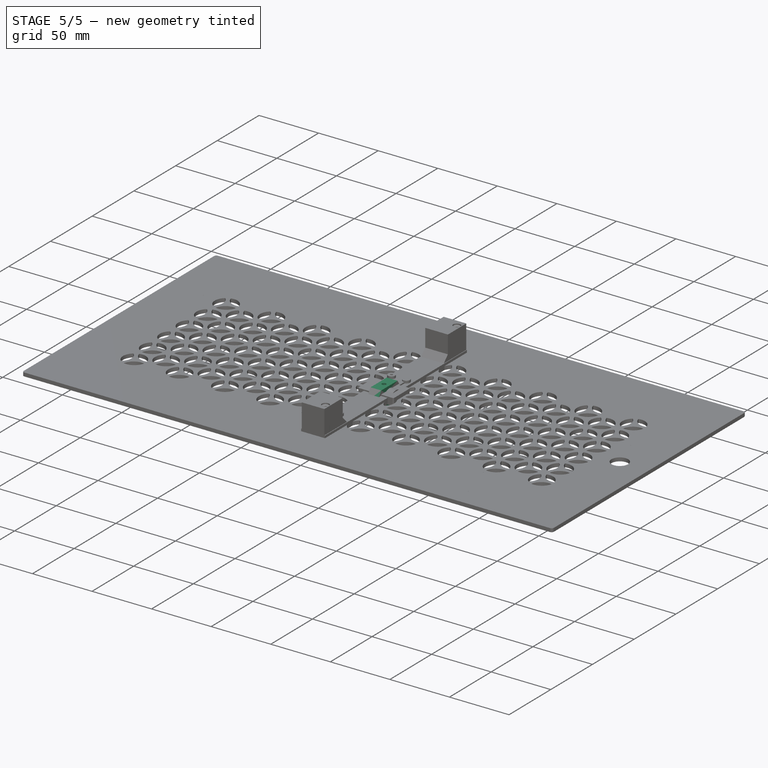
[diagram: stage 5 of 5 — iso view after this stage's code; geometry added in this stage tinted green]
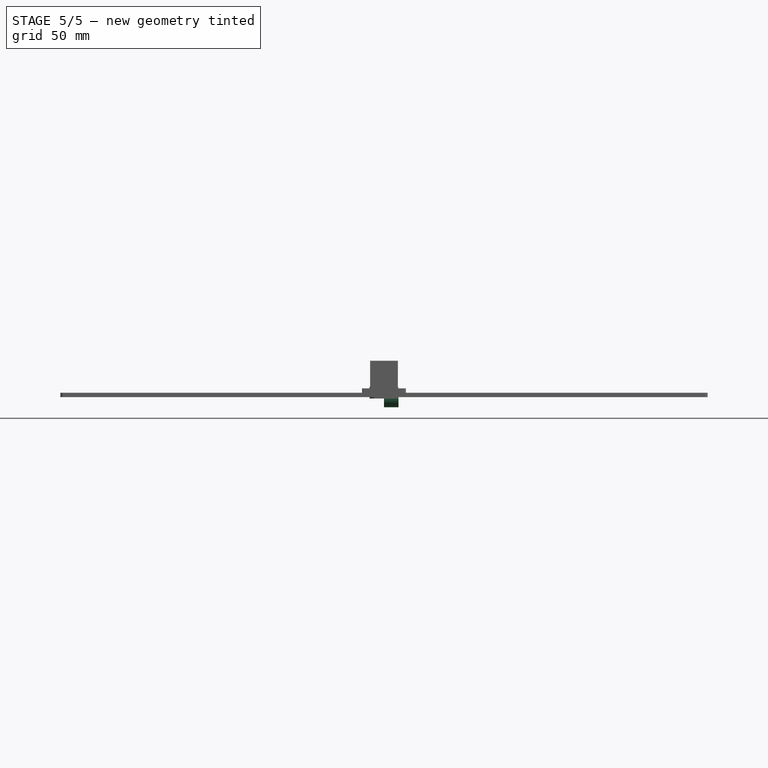
[diagram: stage 5 of 5 — front view after this stage's code; geometry added in this stage tinted green]
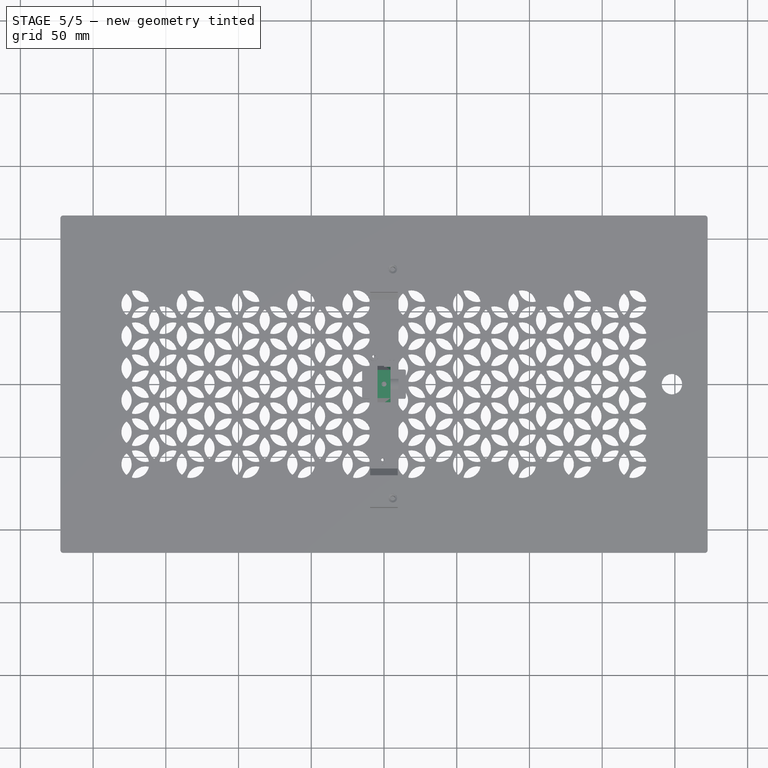
[diagram: stage 5 of 5 — top view after this stage's code; geometry added in this stage tinted green]
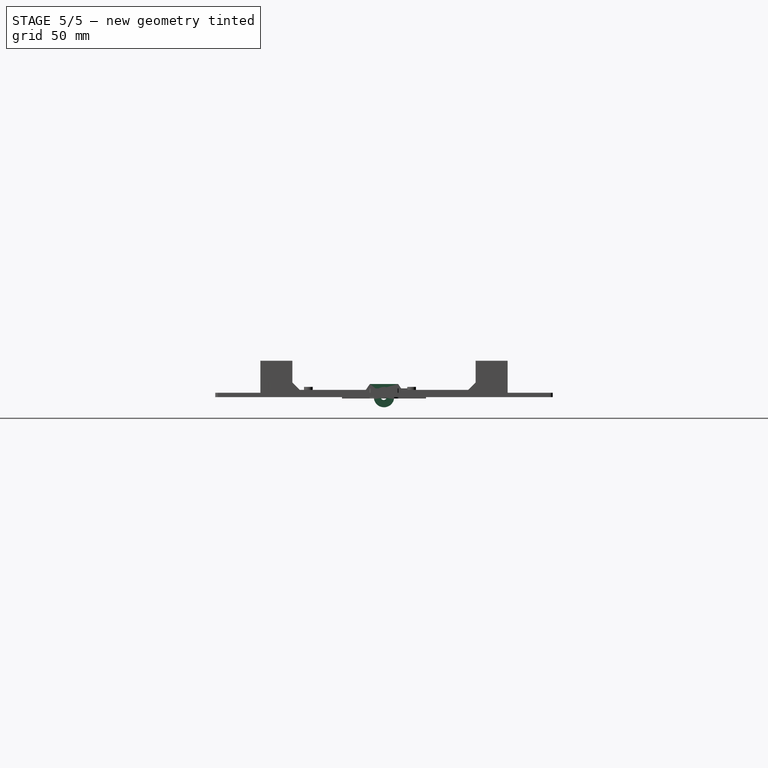
[diagram: stage 5 of 5 — right view after this stage's code; geometry added in this stage tinted green]
FEATURE [Sketcher::SketchObject] Sketch
  ArcFitTolerance = 1e-06
  AttachmentSupport = -> [XY_Plane]
  FullyConstrained = false
  MakeInternals = false
  MapMode = 5
  sketch-geometry (16):
    g0: LineSegment StartX=-222.5 StartY=116 StartZ=0 EndX=-222.5 EndY=-116 EndZ=0
    g1: LineSegment StartX=-222.5 StartY=-116 StartZ=0 EndX=222.5 EndY=-116 EndZ=0
    g2: LineSegment StartX=222.5 StartY=-116 StartZ=0 EndX=222.5 EndY=116 EndZ=0
    g3: LineSegment StartX=222.5 StartY=116 StartZ=0 EndX=-222.5 EndY=116 EndZ=0
    g4: LineSegment [constr] StartX=-222.5 StartY=116 StartZ=0 EndX=222.5 EndY=-116 EndZ=0
    g5: LineSegment [constr] StartX=222.5 StartY=116 StartZ=0 EndX=-222.5 EndY=-116 EndZ=0
    g6: LineSegment [constr] StartX=-206.5 StartY=80.7895 StartZ=0 EndX=-206.5 EndY=-79.2105 EndZ=0
    g7: LineSegment [constr] StartX=-206.5 StartY=-79.2105 StartZ=0 EndX=183.5 EndY=-79.2105 EndZ=0
    g8: LineSegment [constr] StartX=183.5 StartY=-79.2105 StartZ=0 EndX=183.5 EndY=80.7895 EndZ=0
    g9: LineSegment [constr] StartX=183.5 StartY=80.7895 StartZ=0 EndX=-206.5 EndY=80.7895 EndZ=0
    g10: LineSegment [constr] StartX=-206.5 StartY=80.7895 StartZ=0 EndX=183.5 EndY=-79.2105 EndZ=0
    g11: LineSegment [constr] StartX=183.5 StartY=80.7895 StartZ=0 EndX=-206.5 EndY=-79.2105 EndZ=0
    g12: LineSegment [constr] StartX=190.5 StartY=57.5 StartZ=0 EndX=190.5 EndY=-57.5 EndZ=0
    g13: LineSegment [constr] StartX=190.5 StartY=-57.5 StartZ=0 EndX=212.5 EndY=-57.5 EndZ=0
    g14: LineSegment [constr] StartX=212.5 StartY=-57.5 StartZ=0 EndX=212.5 EndY=57.5 EndZ=0
    g15: LineSegment [constr] StartX=212.5 StartY=57.5 StartZ=0 EndX=190.5 EndY=57.5 EndZ=0
  constraints (43):
    c: Coincident(g0,g1)
    c: Coincident(g1,g2)
    c: Coincident(g2,g3)
    c: Coincident(g3,g0)
    c: Vertical(g0)
    c: Vertical(g2)
    c: Horizontal(g1)
    c: Horizontal(g3)
    c: Coincident(g4,g0)
    c: Coincident(g4,g1)
    c: Coincident(g5,g2)
    c: Coincident(g5,g0)
    c: DistanceX(g3,g3) = 445
    c: DistanceY(g2,g2) = 232
    c: Coincident(g6,g7)
    c: Coincident(g7,g8)
    c: Coincident(g8,g9)
    c: Coincident(g9,g6)
    c: Vertical(g6)
    c: Vertical(g8)
    c: Horizontal(g7)
    c: Horizontal(g9)
    c: Coincident(g10,g6)
    c: Coincident(g10,g7)
    c: Coincident(g11,g8)
    c: Coincident(g11,g6)
    c: DistanceY(g8,g8) = 160
    c: DistanceX(g9,g9) = 390
    c: DistanceX(g0,g6) = 16
    c: PointOnObject(g-1,g4)
    c: PointOnObject(g-1,g5)
    c: Coincident(g12,g13)
    c: Coincident(g13,g14)
    c: Coincident(g14,g15)
    c: Coincident(g15,g12)
    c: Vertical(g12)
    c: Vertical(g14)
    c: Horizontal(g13)
    c: Horizontal(g15)
    c: DistanceX(g15,g15) = 22
    c: DistanceY(g14,g14) = 115
    c: Distance(g13,g-1) = 57.5
    c: DistanceX(g14,g2) = 10
FEATURE [PartDesign::Pad] Pad
  Direction = (0,0,1)
  Length = 3
  Length2 = 10
  Profile = -> Sketch
  ReferenceAxis = -> Sketch [N_Axis]
  Suppressed = false
  Type = 0
FEATURE [Sketcher::SketchObject] Sketch001
  ArcFitTolerance = 1e-06
  AttachmentSupport = -> [Pad]
  FullyConstrained = false
  MakeInternals = false
  MapMode = 5
  Placement = pos=(0,0,3) rot=(0,0,1;0rad)
  expr: Constraints[338] = <<Values>>.B2
  expr: Constraints[339] = <<Values>>.B2
  expr: Constraints[340] = <<Values>>.B2
  expr: Constraints[341] = <<Values>>.B2
  expr: Constraints[342] = <<Values>>.B2
  expr: Constraints[343] = <<Values>>.B2
  expr: Constraints[344] = <<Values>>.B2
  expr: Constraints[346] = <<Values>>.B3
  expr: Constraints[347] = <<Values>>.B3
  expr: Constraints[348] = <<Values>>.B3
  expr: Constraints[349] = <<Values>>.B3
  expr: Constraints[350] = <<Values>>.B3
  expr: Constraints[351] = <<Values>>.B3
  expr: Constraints[352] = <<Values>>.B3
  expr: Constraints[353] = <<Values>>.B3
  expr: Constraints[354] = <<Values>>.B3
  expr: Constraints[355] = <<Values>>.B3
  expr: Constraints[356] = <<Values>>.B3
  expr: Constraints[357] = <<Values>>.B3
  expr: Constraints[358] = <<Values>>.B3
  expr: Constraints[359] = <<Values>>.B3
  expr: Constraints[360] = <<Values>>.B3
  expr: Constraints[361] = <<Values>>.B3
  expr: Constraints[362] = <<Values>>.B3
  expr: Constraints[363] = <<Values>>.B3
  expr: Constraints[364] = <<Values>>.B2
  expr: Constraints[383] = <<Values>>.B2
  expr: Constraints[384] = <<Values>>.B2
  expr: Constraints[386] = <<Values>>.B4
  sketch-geometry (139):
    g0: LineSegment [constr] StartX=-222.5 StartY=171.559 StartZ=0 EndX=-222.5 EndY=-148.418 EndZ=0
    g1: LineSegment [constr] StartX=222.5 StartY=164.967 StartZ=0 EndX=222.5 EndY=-175.294 EndZ=0
    g2: LineSegment [constr] StartX=-254.44 StartY=116 StartZ=0 EndX=292.44 EndY=116 EndZ=0
    g3: LineSegment [constr] StartX=344.139 StartY=-116 StartZ=0 EndX=-328.776 EndY=-116 EndZ=0
    g4: LineSegment [constr] StartX=-388.874 StartY=55 StartZ=0 EndX=350.874 EndY=55 EndZ=0
    g5: LineSegment [constr] StartX=-374.694 StartY=33 StartZ=0 EndX=336.694 EndY=33 EndZ=0
    g6: LineSegment [constr] StartX=-385.512 StartY=11 StartZ=0 EndX=347.512 EndY=11 EndZ=0
    g7: LineSegment [constr] StartX=418.964 StartY=-11 StartZ=0 EndX=-456.964 EndY=-11 EndZ=0
    g8: LineSegment [constr] StartX=-352.08 StartY=-33 StartZ=0 EndX=314.08 EndY=-33 EndZ=0
    g9: LineSegment [constr] StartX=257.376 StartY=-55 StartZ=0 EndX=-371.376 EndY=-55 EndZ=0
    g10: Circle CenterX=-171 CenterY=55 CenterZ=0 NormalX=0 NormalY=0 NormalZ=1 AngleXU=0 Radius=9.5
    g11: LineSegment [constr] StartX=-171 StartY=170.843 StartZ=0 EndX=-171 EndY=-155.349 EndZ=0
    g12: Circle CenterX=-171 CenterY=33 CenterZ=0 NormalX=0 NormalY=0 NormalZ=1 AngleXU=0 Radius=9.5
    g13: Circle CenterX=-171 CenterY=11 CenterZ=0 NormalX=0 NormalY=0 NormalZ=1 AngleXU=0 Radius=9.5
    g14: Circle CenterX=-171 CenterY=-11 CenterZ=0 NormalX=0 NormalY=0 NormalZ=1 AngleXU=0 Radius=9.5
    g15: Circle CenterX=-171 CenterY=-33 CenterZ=0 NormalX=0 NormalY=0 NormalZ=1 AngleXU=0 Radius=9.5
    g16: Circle CenterX=-171 CenterY=-55 CenterZ=0 NormalX=0 NormalY=0 NormalZ=1 AngleXU=0 Radius=9.5
    g17: LineSegment [constr] StartX=-258.353 StartY=44 StartZ=0 EndX=182.353 EndY=44 EndZ=0
    g18: LineSegment [constr] StartX=-265.582 StartY=22 StartZ=0 EndX=286.348 EndY=22 EndZ=0
    g19: LineSegment [constr] StartX=-397.004 StartY=-44 StartZ=0 EndX=397.004 EndY=-44 EndZ=0
    g20: LineSegment [constr] StartX=-152 StartY=-153.028 StartZ=0 EndX=-152 EndY=148.477 EndZ=0
    g21: Circle CenterX=-152 CenterY=44 CenterZ=0 NormalX=0 NormalY=0 NormalZ=1 AngleXU=0 Radius=9.5
    g22: Circle CenterX=-152 CenterY=22 CenterZ=0 NormalX=0 NormalY=0 NormalZ=1 AngleXU=0 Radius=9.5
    g23: Circle CenterX=-152 CenterY=0 CenterZ=0 NormalX=0 NormalY=0 NormalZ=1 AngleXU=0 Radius=9.5
    g24: Circle CenterX=-152 CenterY=-22 CenterZ=0 NormalX=0 NormalY=0 NormalZ=1 AngleXU=0 Radius=9.5
    g25: Circle CenterX=-152 CenterY=-44 CenterZ=0 NormalX=0 NormalY=0 NormalZ=1 AngleXU=0 Radius=9.5
    g26: LineSegment [constr] StartX=-133 StartY=130.867 StartZ=0 EndX=-133 EndY=-141.746 EndZ=0
    g27: LineSegment [constr] StartX=-114 StartY=138.96 StartZ=0 EndX=-114 EndY=-164.926 EndZ=0
    g28: LineSegment [constr] StartX=-95 StartY=143.378 StartZ=0 EndX=-95 EndY=-213.194 EndZ=0
    g29: LineSegment [constr] StartX=-76 StartY=148.137 StartZ=0 EndX=-76 EndY=-193.139 EndZ=0
    g30: LineSegment [constr] StartX=-57 StartY=135.221 StartZ=0 EndX=-57 EndY=-193.883 EndZ=0
    g31: Circle CenterX=-133 CenterY=55 CenterZ=0 NormalX=0 NormalY=0 NormalZ=1 AngleXU=0 Radius=9.5
    g32: Circle CenterX=-133 CenterY=33 CenterZ=0 NormalX=0 NormalY=0 NormalZ=1 AngleXU=0 Radius=9.5
    g33: Circle CenterX=-133 CenterY=11 CenterZ=0 NormalX=0 NormalY=0 NormalZ=1 AngleXU=0 Radius=9.5
    g34: Circle CenterX=-133 CenterY=-11 CenterZ=0 NormalX=0 NormalY=0 NormalZ=1 AngleXU=0 Radius=9.5
    g35: Circle CenterX=-133 CenterY=-33 CenterZ=0 NormalX=0 NormalY=0 NormalZ=1 AngleXU=0 Radius=9.5
    g36: Circle CenterX=-133 CenterY=-55 CenterZ=0 NormalX=0 NormalY=0 NormalZ=1 AngleXU=0 Radius=9.5
    g37: Circle CenterX=-114 CenterY=44 CenterZ=0 NormalX=0 NormalY=0 NormalZ=1 AngleXU=0 Radius=9.5
    g38: Circle CenterX=-114 CenterY=22 CenterZ=0 NormalX=0 NormalY=0 NormalZ=1 AngleXU=0 Radius=9.5
    g39: Circle CenterX=-114 CenterY=0 CenterZ=0 NormalX=0 NormalY=0 NormalZ=1 AngleXU=0 Radius=9.5
    g40: Circle CenterX=-114 CenterY=-22 CenterZ=0 NormalX=0 NormalY=0 NormalZ=1 AngleXU=0 Radius=9.5
    g41: Circle CenterX=-114 CenterY=-44 CenterZ=0 NormalX=0 NormalY=0 NormalZ=1 AngleXU=0 Radius=9.5
    g42: Circle CenterX=-95 CenterY=55 CenterZ=0 NormalX=0 NormalY=0 NormalZ=1 AngleXU=0 Radius=9.5
    g43: Circle CenterX=-95 CenterY=33 CenterZ=0 NormalX=0 NormalY=0 NormalZ=1 AngleXU=0 Radius=9.5
    g44: Circle CenterX=-95 CenterY=11 CenterZ=0 NormalX=0 NormalY=0 NormalZ=1 AngleXU=0 Radius=9.5
    g45: Circle CenterX=-95 CenterY=-11 CenterZ=0 NormalX=0 NormalY=0 NormalZ=1 AngleXU=0 Radius=9.5
    g46: Circle CenterX=-95 CenterY=-33 CenterZ=0 NormalX=0 NormalY=0 NormalZ=1 AngleXU=0 Radius=9.5
    g47: Circle CenterX=-95 CenterY=-55 CenterZ=0 NormalX=0 NormalY=0 NormalZ=1 AngleXU=0 Radius=9.5
    g48: Circle CenterX=-76 CenterY=-44 CenterZ=0 NormalX=0 NormalY=0 NormalZ=1 AngleXU=0 Radius=9.5
    g49: Circle CenterX=-76 CenterY=-22 CenterZ=0 NormalX=0 NormalY=0 NormalZ=1 AngleXU=0 Radius=9.5
    g50: Circle CenterX=-76 CenterY=0 CenterZ=0 NormalX=0 NormalY=0 NormalZ=1 AngleXU=0 Radius=9.5
    g51: Circle CenterX=-76 CenterY=22 CenterZ=0 NormalX=0 NormalY=0 NormalZ=1 AngleXU=0 Radius=9.5
    g52: Circle CenterX=-76 CenterY=44 CenterZ=0 NormalX=0 NormalY=0 NormalZ=1 AngleXU=0 Radius=9.5
    g53: LineSegment [constr] StartX=-38 StartY=121.882 StartZ=0 EndX=-38 EndY=-188.509 EndZ=0
    g54: LineSegment [constr] StartX=-19 StartY=120.515 StartZ=0 EndX=-19 EndY=-158.355 EndZ=0
    g55: LineSegment [constr] StartX=0 StartY=111.173 StartZ=0 EndX=0 EndY=-149.46 EndZ=0
    g56: LineSegment [constr] StartX=19 StartY=116 StartZ=0 EndX=19 EndY=-167.817 EndZ=0
    g57: LineSegment [constr] StartX=38 StartY=114.379 StartZ=0 EndX=38 EndY=-167.539 EndZ=0
    g58: LineSegment [constr] StartX=57 StartY=103.247 StartZ=0 EndX=57 EndY=-169.765 EndZ=0
    g59: LineSegment [constr] StartX=76 StartY=96.8461 StartZ=0 EndX=76 EndY=-143.048 EndZ=0
    g60: Circle CenterX=-57 CenterY=55 CenterZ=0 NormalX=0 NormalY=0 NormalZ=1 AngleXU=0 Radius=9.5
    g61: Circle CenterX=-57 CenterY=33 CenterZ=0 NormalX=0 NormalY=0 NormalZ=1 AngleXU=0 Radius=9.5
    g62: Circle CenterX=-57 CenterY=11 CenterZ=0 NormalX=0 NormalY=0 NormalZ=1 AngleXU=0 Radius=9.5
    g63: Circle CenterX=-57 CenterY=-11 CenterZ=0 NormalX=0 NormalY=0 NormalZ=1 AngleXU=0 Radius=9.5
    g64: Circle CenterX=-57 CenterY=-33 CenterZ=0 NormalX=0 NormalY=0 NormalZ=1 AngleXU=0 Radius=9.5
    g65: Circle CenterX=-38 CenterY=44 CenterZ=0 NormalX=0 NormalY=0 NormalZ=1 AngleXU=0 Radius=9.5
    g66: Circle CenterX=-38 CenterY=22 CenterZ=0 NormalX=0 NormalY=0 NormalZ=1 AngleXU=0 Radius=9.5
    g67: Circle CenterX=-38 CenterY=0 CenterZ=0 NormalX=0 NormalY=0 NormalZ=1 AngleXU=0 Radius=9.5
    g68: Circle CenterX=-38 CenterY=-22 CenterZ=0 NormalX=0 NormalY=0 NormalZ=1 AngleXU=0 Radius=9.5
    g69: Circle CenterX=-38 CenterY=-44 CenterZ=0 NormalX=0 NormalY=0 NormalZ=1 AngleXU=0 Radius=9.5
    g70: Circle CenterX=-57 CenterY=-55 CenterZ=0 NormalX=0 NormalY=0 NormalZ=1 AngleXU=0 Radius=9.5
    g71: Circle CenterX=-19 CenterY=55 CenterZ=0 NormalX=0 NormalY=0 NormalZ=1 AngleXU=0 Radius=9.5
    g72: Circle CenterX=-19 CenterY=33 CenterZ=0 NormalX=0 NormalY=0 NormalZ=1 AngleXU=0 Radius=9.5
    g73: Circle CenterX=-19 CenterY=11 CenterZ=0 NormalX=0 NormalY=0 NormalZ=1 AngleXU=0 Radius=9.5
    g74: Circle CenterX=-19 CenterY=-11 CenterZ=0 NormalX=0 NormalY=0 NormalZ=1 AngleXU=0 Radius=9.5
    g75: Circle CenterX=-19 CenterY=-33 CenterZ=0 NormalX=0 NormalY=0 NormalZ=1 AngleXU=0 Radius=9.5
    g76: Circle CenterX=-19 CenterY=-55 CenterZ=0 NormalX=0 NormalY=0 NormalZ=1 AngleXU=0 Radius=9.5
    g77: Circle CenterX=0 CenterY=-44 CenterZ=0 NormalX=0 NormalY=0 NormalZ=1 AngleXU=0 Radius=9.5
    g78: Circle CenterX=-9e-16 CenterY=-22 CenterZ=0 NormalX=0 NormalY=0 NormalZ=1 AngleXU=0 Radius=9.5
    g79: Circle CenterX=-9e-16 CenterY=0 CenterZ=0 NormalX=0 NormalY=0 NormalZ=1 AngleXU=0 Radius=9.5
    g80: Circle CenterX=-9e-16 CenterY=22 CenterZ=0 NormalX=0 NormalY=0 NormalZ=1 AngleXU=0 Radius=9.5
    g81: Circle CenterX=0 CenterY=44 CenterZ=0 NormalX=0 NormalY=0 NormalZ=1 AngleXU=0 Radius=9.5
    g82: Circle CenterX=19 CenterY=55 CenterZ=0 NormalX=0 NormalY=0 NormalZ=1 AngleXU=0 Radius=9.5
    g83: Circle CenterX=19 CenterY=33 CenterZ=0 NormalX=0 NormalY=0 NormalZ=1 AngleXU=0 Radius=9.5
    g84: Circle CenterX=19 CenterY=11 CenterZ=0 NormalX=0 NormalY=0 NormalZ=1 AngleXU=0 Radius=9.5
    g85: Circle CenterX=19 CenterY=-11 CenterZ=0 NormalX=0 NormalY=0 NormalZ=1 AngleXU=0 Radius=9.5
    g86: Circle CenterX=19 CenterY=-33 CenterZ=0 NormalX=0 NormalY=0 NormalZ=1 AngleXU=0 Radius=9.5
    g87: Circle CenterX=19 CenterY=-55 CenterZ=0 NormalX=0 NormalY=0 NormalZ=1 AngleXU=0 Radius=9.5
    g88: Circle CenterX=38 CenterY=-44 CenterZ=0 NormalX=0 NormalY=0 NormalZ=1 AngleXU=0 Radius=9.5
    g89: Circle CenterX=38 CenterY=-22 CenterZ=0 NormalX=0 NormalY=0 NormalZ=1 AngleXU=0 Radius=9.5
    g90: Circle CenterX=38 CenterY=0 CenterZ=0 NormalX=0 NormalY=0 NormalZ=1 AngleXU=0 Radius=9.5
    g91: Circle CenterX=38 CenterY=22 CenterZ=0 NormalX=0 NormalY=0 NormalZ=1 AngleXU=0 Radius=9.5
    g92: Circle CenterX=38 CenterY=44 CenterZ=0 NormalX=0 NormalY=0 NormalZ=1 AngleXU=0 Radius=9.5
    g93: Circle CenterX=57 CenterY=55 CenterZ=0 NormalX=0 NormalY=0 NormalZ=1 AngleXU=0 Radius=9.5
    g94: Circle CenterX=57 CenterY=33 CenterZ=0 NormalX=0 NormalY=0 NormalZ=1 AngleXU=0 Radius=9.5
    g95: Circle CenterX=57 CenterY=11 CenterZ=0 NormalX=0 NormalY=0 NormalZ=1 AngleXU=0 Radius=9.5
    g96: Circle CenterX=57 CenterY=-11 CenterZ=0 NormalX=0 NormalY=0 NormalZ=1 AngleXU=0 Radius=9.5
    g97: Circle CenterX=76 CenterY=0 CenterZ=0 NormalX=0 NormalY=0 NormalZ=1 AngleXU=0 Radius=9.5
    g98: Circle CenterX=76 CenterY=22 CenterZ=0 NormalX=0 NormalY=0 NormalZ=1 AngleXU=0 Radius=9.5
    g99: Circle CenterX=76 CenterY=44 CenterZ=0 NormalX=0 NormalY=0 NormalZ=1 AngleXU=0 Radius=9.5
    g100: Circle CenterX=57 CenterY=-33 CenterZ=0 NormalX=0 NormalY=0 NormalZ=1 AngleXU=0 Radius=9.5
    g101: Circle CenterX=57 CenterY=-55 CenterZ=0 NormalX=0 NormalY=0 NormalZ=1 AngleXU=0 Radius=9.5
    g102: Circle CenterX=76 CenterY=-44 CenterZ=0 NormalX=0 NormalY=0 NormalZ=1 AngleXU=0 Radius=9.5
    g103: Circle CenterX=76 CenterY=-22 CenterZ=0 NormalX=0 NormalY=0 NormalZ=1 AngleXU=0 Radius=9.5
    g104: LineSegment [constr] StartX=95 StartY=100.084 StartZ=0 EndX=95 EndY=-176.599 EndZ=0
    g105: Circle CenterX=95 CenterY=55 CenterZ=0 NormalX=0 NormalY=0 NormalZ=1 AngleXU=0 Radius=9.5
    g106: Circle CenterX=95 CenterY=33 CenterZ=0 NormalX=0 NormalY=0 NormalZ=1 AngleXU=0 Radius=9.5
    g107: Circle CenterX=95 CenterY=11 CenterZ=0 NormalX=0 NormalY=0 NormalZ=1 AngleXU=0 Radius=9.5
    g108: Circle CenterX=95 CenterY=-11 CenterZ=0 NormalX=0 NormalY=0 NormalZ=1 AngleXU=0 Radius=9.5
    g109: Circle CenterX=95 CenterY=-33 CenterZ=0 NormalX=0 NormalY=0 NormalZ=1 AngleXU=0 Radius=9.5
    g110: Circle CenterX=95 CenterY=-55 CenterZ=0 NormalX=0 NormalY=0 NormalZ=1 AngleXU=0 Radius=9.5
    g111: LineSegment [constr] StartX=199.511 StartY=125.276 StartZ=0 EndX=199.511 EndY=-177.251 EndZ=0
    g112: LineSegment [constr] StartX=114 StartY=125.804 StartZ=0 EndX=114 EndY=-181.13 EndZ=0
    g113: LineSegment [constr] StartX=133 StartY=125.241 StartZ=0 EndX=133 EndY=-180.751 EndZ=0
    g114: LineSegment [constr] StartX=152 StartY=126.148 StartZ=0 EndX=152 EndY=-176.262 EndZ=0
    g115: Circle CenterX=114 CenterY=44 CenterZ=0 NormalX=0 NormalY=0 NormalZ=1 AngleXU=0 Radius=9.5
    g116: Circle CenterX=114 CenterY=22 CenterZ=0 NormalX=0 NormalY=0 NormalZ=1 AngleXU=0 Radius=9.5
    g117: Circle CenterX=114 CenterY=0 CenterZ=0 NormalX=0 NormalY=0 NormalZ=1 AngleXU=0 Radius=9.5
    g118: Circle CenterX=114 CenterY=-22 CenterZ=0 NormalX=0 NormalY=0 NormalZ=1 AngleXU=0 Radius=9.5
    g119: Circle CenterX=114 CenterY=-44 CenterZ=0 NormalX=0 NormalY=0 NormalZ=1 AngleXU=0 Radius=9.5
    g120: Circle CenterX=133 CenterY=55 CenterZ=0 NormalX=0 NormalY=0 NormalZ=1 AngleXU=0 Radius=9.5
    g121: Circle CenterX=133 CenterY=33 CenterZ=0 NormalX=0 NormalY=0 NormalZ=1 AngleXU=0 Radius=9.5
    g122: Circle CenterX=133 CenterY=11 CenterZ=0 NormalX=0 NormalY=0 NormalZ=1 AngleXU=0 Radius=9.5
    g123: Circle CenterX=133 CenterY=-11 CenterZ=0 NormalX=0 NormalY=0 NormalZ=1 AngleXU=0 Radius=9.5
    g124: Circle CenterX=133 CenterY=-33 CenterZ=0 NormalX=0 NormalY=0 NormalZ=1 AngleXU=0 Radius=9.5
    g125: Circle CenterX=133 CenterY=-55 CenterZ=0 NormalX=0 NormalY=0 NormalZ=1 AngleXU=0 Radius=9.5
    g126: LineSegment [constr] StartX=171 StartY=131.173 StartZ=0 EndX=171 EndY=-183.407 EndZ=0
    g127: Circle CenterX=152 CenterY=44 CenterZ=0 NormalX=0 NormalY=0 NormalZ=1 AngleXU=0 Radius=9.5
    g128: Circle CenterX=152 CenterY=22 CenterZ=0 NormalX=0 NormalY=0 NormalZ=1 AngleXU=0 Radius=9.5
    g129: Circle CenterX=152 CenterY=0 CenterZ=0 NormalX=0 NormalY=0 NormalZ=1 AngleXU=0 Radius=9.5
    g130: Circle CenterX=152 CenterY=-22 CenterZ=0 NormalX=0 NormalY=0 NormalZ=1 AngleXU=0 Radius=9.5
    g131: Circle CenterX=152 CenterY=-44 CenterZ=0 NormalX=0 NormalY=0 NormalZ=1 AngleXU=0 Radius=9.5
    g132: Circle CenterX=171 CenterY=55 CenterZ=0 NormalX=0 NormalY=0 NormalZ=1 AngleXU=0 Radius=9.5
    g133: Circle CenterX=171 CenterY=33 CenterZ=0 NormalX=0 NormalY=0 NormalZ=1 AngleXU=0 Radius=9.5
    g134: Circle CenterX=171 CenterY=11 CenterZ=0 NormalX=0 NormalY=0 NormalZ=1 AngleXU=0 Radius=9.5
    g135: Circle CenterX=171 CenterY=-11 CenterZ=0 NormalX=0 NormalY=0 NormalZ=1 AngleXU=0 Radius=9.5
    g136: Circle CenterX=171 CenterY=-33 CenterZ=0 NormalX=0 NormalY=0 NormalZ=1 AngleXU=0 Radius=9.5
    g137: Circle CenterX=171 CenterY=-55 CenterZ=0 NormalX=0 NormalY=0 NormalZ=1 AngleXU=0 Radius=9.5
    g138: LineSegment [constr] StartX=-255.839 StartY=-22 StartZ=0 EndX=243.836 EndY=-22 EndZ=0
  constraints (391):
    c: Vertical(g0)
    c: Vertical(g1)
    c: Horizontal(g2)
    c: Horizontal(g3)
    c: DistanceX(g0,g-1) = 222.5
    c: DistanceX(g-1,g1) = 222.5
    c: DistanceY(g-1,g2) = 116
    c: DistanceY(g3,g-1) = 116
    c: Diameter(g10) = 19
    c: Vertical(g11)
    c: PointOnObject(g10,g11)
    c: PointOnObject(g12,g5)
    c: PointOnObject(g13,g6)
    c: PointOnObject(g14,g7)
    c: PointOnObject(g15,g8)
    c: PointOnObject(g16,g9)
    c: PointOnObject(g12,g11)
    c: PointOnObject(g13,g11)
    c: PointOnObject(g14,g11)
    c: PointOnObject(g15,g11)
    c: PointOnObject(g16,g11)
    c: Equal(g12,g10)
    c: Equal(g13,g12)
    c: Equal(g14,g13)
    c: Equal(g15,g14)
    c: Equal(g16,g15)
    c: Horizontal(g17)
    c: Vertical(g20)
    c: PointOnObject(g21,g17)
    c: PointOnObject(g22,g18)
    c: PointOnObject(g23,g-1)
    c: PointOnObject(g25,g19)
    c: Equal(g21,g10)
    c: Equal(g22,g10)
    c: Equal(g23,g10)
    c: Equal(g24,g10)
    c: Equal(g25,g10)
    c: PointOnObject(g21,g20)
    c: PointOnObject(g22,g20)
    c: PointOnObject(g23,g20)
    c: PointOnObject(g24,g20)
    c: PointOnObject(g25,g20)
    c: Vertical(g26)
    c: Vertical(g27)
    c: Vertical(g28)
    c: Vertical(g29)
    c: Vertical(g30)
    c: PointOnObject(g31,g4)
    c: PointOnObject(g32,g5)
    c: PointOnObject(g33,g6)
    c: PointOnObject(g34,g7)
    c: PointOnObject(g35,g8)
    c: PointOnObject(g36,g9)
    c: Equal(g10,g31)
    c: Equal(g32,g10)
    c: Equal(g10,g33)
    c: Equal(g34,g10)
    c: Equal(g35,g10)
    c: Equal(g36,g10)
    c: PointOnObject(g31,g26)
    c: PointOnObject(g32,g26)
    c: PointOnObject(g33,g26)
    c: PointOnObject(g34,g26)
    c: PointOnObject(g35,g26)
    c: PointOnObject(g36,g26)
    c: PointOnObject(g37,g17)
    c: PointOnObject(g38,g18)
    c: PointOnObject(g39,g-1)
    c: PointOnObject(g41,g19)
    c: Equal(g37,g10)
    c: Equal(g38,g10)
    c: Equal(g39,g10)
    c: Equal(g10,g40)
    c: Equal(g41,g10)
    c: PointOnObject(g37,g27)
    c: PointOnObject(g38,g27)
    c: PointOnObject(g39,g27)
    c: PointOnObject(g40,g27)
    c: PointOnObject(g41,g27)
    c: PointOnObject(g42,g4)
    c: PointOnObject(g43,g5)
    c: PointOnObject(g44,g6)
    c: PointOnObject(g45,g7)
    c: PointOnObject(g46,g8)
    c: PointOnObject(g47,g9)
    c: PointOnObject(g48,g19)
    c: PointOnObject(g50,g-1)
    c: PointOnObject(g51,g18)
    c: PointOnObject(g52,g17)
    c: PointOnObject(g42,g28)
    c: PointOnObject(g43,g28)
    c: PointOnObject(g44,g28)
    c: PointOnObject(g51,g29)
    c: PointOnObject(g52,g29)
    c: PointOnObject(g50,g29)
    c: PointOnObject(g45,g28)
    c: PointOnObject(g49,g29)
    c: PointOnObject(g46,g28)
    c: PointOnObject(g48,g29)
    c: PointOnObject(g47,g28)
    c: Equal(g10,g42)
    c: Equal(g43,g10)
    c: Equal(g44,g10)
    c: Equal(g45,g10)
    c: Equal(g46,g10)
    c: Equal(g47,g10)
    c: Equal(g52,g10)
    c: Equal(g51,g10)
    c: Equal(g50,g10)
    c: Equal(g49,g10)
    c: Equal(g48,g10)
    c: Vertical(g53)
    c: Vertical(g54)
    c: Vertical(g55)
    c: Symmetric(g2,g2,g56)
    c: Vertical(g56)
    c: Vertical(g57)
    c: Vertical(g58)
    c: Vertical(g59)
    c: PointOnObject(g60,g4)
    c: PointOnObject(g61,g5)
    c: PointOnObject(g62,g6)
    c: PointOnObject(g63,g7)
    c: PointOnObject(g64,g8)
    c: Symmetric(g17,g17,g65)
    c: PointOnObject(g66,g18)
    c: PointOnObject(g67,g-1)
    c: PointOnObject(g69,g19)
    c: Symmetric(g9,g9,g70)
    c: PointOnObject(g60,g30)
    c: PointOnObject(g61,g30)
    c: PointOnObject(g65,g53)
    c: PointOnObject(g66,g53)
    c: PointOnObject(g62,g30)
    c: PointOnObject(g67,g53)
    c: PointOnObject(g63,g30)
    c: PointOnObject(g68,g53)
    c: PointOnObject(g64,g30)
    c: PointOnObject(g69,g53)
    c: PointOnObject(g70,g30)
    c: Equal(g10,g60)
    c: Equal(g65,g10)
    c: Equal(g61,g10)
    c: Equal(g66,g10)
    c: Equal(g62,g10)
    c: Equal(g67,g10)
    c: Equal(g63,g10)
    c: Equal(g68,g10)
    c: Equal(g64,g10)
    c: Equal(g69,g10)
    c: Equal(g70,g10)
    c: Symmetric(g4,g4,g71)
    c: Symmetric(g5,g5,g72)
    c: Symmetric(g6,g6,g73)
    c: Symmetric(g7,g7,g74)
    c: Symmetric(g8,g8,g75)
    c: PointOnObject(g76,g9)
    c: Symmetric(g19,g19,g77)
    c: PointOnObject(g79,g-1)
    c: PointOnObject(g80,g18)
    c: PointOnObject(g81,g17)
    c: PointOnObject(g82,g4)
    c: PointOnObject(g83,g5)
    c: PointOnObject(g84,g6)
    c: PointOnObject(g85,g7)
    c: PointOnObject(g86,g8)
    c: PointOnObject(g87,g9)
    c: PointOnObject(g88,g19)
    c: PointOnObject(g90,g-1)
    c: PointOnObject(g91,g18)
    c: PointOnObject(g92,g17)
    c: PointOnObject(g71,g54)
    c: PointOnObject(g72,g54)
    c: PointOnObject(g73,g54)
    c: PointOnObject(g74,g54)
    c: PointOnObject(g75,g54)
    c: PointOnObject(g76,g54)
    c: PointOnObject(g77,g55)
    c: PointOnObject(g78,g55)
    c: PointOnObject(g79,g55)
    c: PointOnObject(g80,g55)
    c: PointOnObject(g81,g55)
    c: PointOnObject(g82,g56)
    c: PointOnObject(g83,g56)
    c: PointOnObject(g84,g56)
    c: PointOnObject(g85,g56)
    c: PointOnObject(g86,g56)
    c: PointOnObject(g87,g56)
    c: PointOnObject(g88,g57)
    c: PointOnObject(g89,g57)
    c: PointOnObject(g90,g57)
    c: PointOnObject(g91,g57)
    c: PointOnObject(g92,g57)
    c: Equal(g10,g71)
    c: Equal(g72,g10)
    c: Equal(g73,g10)
    c: Equal(g74,g10)
    c: Equal(g75,g10)
    c: Equal(g81,g10)
    c: Equal(g82,g10)
    c: Equal(g83,g10)
    c: Equal(g10,g80)
    c: Equal(g84,g10)
    c: Equal(g92,g10)
    c: Equal(g91,g10)
    c: Equal(g90,g10)
    c: Equal(g79,g10)
    c: Equal(g85,g10)
    c: Equal(g86,g10)
    c: Equal(g78,g10)
    c: Equal(g89,g10)
    c: Equal(g76,g10)
    c: Equal(g87,g10)
    c: Equal(g10,g77)
    c: Equal(g88,g10)
    c: Distance(g4,g2) = 61
    c: PointOnObject(g93,g4)
    c: PointOnObject(g94,g5)
    c: PointOnObject(g95,g6)
    c: PointOnObject(g96,g7)
    c: PointOnObject(g97,g-1)
    c: PointOnObject(g98,g18)
    c: PointOnObject(g99,g17)
    c: PointOnObject(g100,g8)
    c: PointOnObject(g101,g9)
    c: PointOnObject(g102,g19)
    c: PointOnObject(g101,g58)
    c: PointOnObject(g100,g58)
    c: PointOnObject(g96,g58)
    c: PointOnObject(g95,g58)
    c: PointOnObject(g94,g58)
    c: PointOnObject(g93,g58)
    c: PointOnObject(g99,g59)
    c: PointOnObject(g98,g59)
    c: PointOnObject(g97,g59)
    c: PointOnObject(g103,g59)
    c: PointOnObject(g102,g59)
    c: Vertical(g104)
    c: PointOnObject(g105,g4)
    c: PointOnObject(g106,g5)
    c: PointOnObject(g107,g6)
    c: PointOnObject(g108,g7)
    c: PointOnObject(g109,g8)
    c: PointOnObject(g110,g9)
    c: Equal(g90,g101)
    c: Equal(g100,g90)
    c: Equal(g96,g90)
    c: Equal(g95,g90)
    c: Equal(g94,g90)
    c: Equal(g93,g90)
    c: Equal(g97,g90)
    c: Equal(g98,g90)
    c: Equal(g99,g90)
    c: Equal(g105,g90)
    c: Equal(g106,g90)
    c: Equal(g107,g90)
    c: Equal(g108,g90)
    c: Equal(g103,g90)
    c: Equal(g109,g90)
    c: Equal(g102,g90)
    c: Equal(g110,g90)
    c: PointOnObject(g105,g104)
    c: PointOnObject(g106,g104)
    c: PointOnObject(g107,g104)
    c: PointOnObject(g108,g104)
    c: PointOnObject(g109,g104)
    c: PointOnObject(g110,g104)
    c: Vertical(g111)
    c: Vertical(g112)
    c: Vertical(g113)
    c: Vertical(g114)
    c: PointOnObject(g115,g112)
    c: PointOnObject(g115,g17)
    c: PointOnObject(g116,g18)
    c: PointOnObject(g117,g-1)
    c: PointOnObject(g119,g19)
    c: Equal(g10,g115)
    c: Equal(g116,g10)
    c: Equal(g117,g10)
    c: Equal(g118,g10)
    c: Equal(g119,g10)
    c: PointOnObject(g116,g112)
    c: PointOnObject(g117,g112)
    c: PointOnObject(g118,g112)
    c: PointOnObject(g119,g112)
    c: PointOnObject(g120,g4)
    c: PointOnObject(g121,g5)
    c: PointOnObject(g122,g6)
    c: PointOnObject(g123,g7)
    c: PointOnObject(g124,g8)
    c: PointOnObject(g125,g9)
    c: PointOnObject(g125,g113)
    c: PointOnObject(g124,g113)
    c: PointOnObject(g123,g113)
    c: PointOnObject(g122,g113)
    c: PointOnObject(g121,g113)
    c: PointOnObject(g120,g113)
    c: Equal(g120,g121)
    c: Equal(g121,g122)
    c: Equal(g122,g123)
    c: Equal(g123,g124)
    c: Equal(g124,g125)
    c: Equal(g125,g10)
    c: Vertical(g126)
    c: PointOnObject(g127,g17)
    c: PointOnObject(g128,g18)
    c: PointOnObject(g129,g-1)
    c: PointOnObject(g131,g19)
    c: PointOnObject(g131,g114)
    c: PointOnObject(g130,g114)
    c: PointOnObject(g129,g114)
    c: PointOnObject(g128,g114)
    c: PointOnObject(g127,g114)
    c: Equal(g131,g130)
    c: Equal(g130,g129)
    c: Equal(g129,g128)
    c: Equal(g128,g127)
    c: Equal(g127,g10)
    c: PointOnObject(g132,g4)
    c: PointOnObject(g133,g5)
    c: PointOnObject(g134,g6)
    c: PointOnObject(g135,g7)
    c: PointOnObject(g136,g8)
    c: PointOnObject(g137,g9)
    c: PointOnObject(g137,g126)
    c: PointOnObject(g136,g126)
    c: PointOnObject(g135,g126)
    c: PointOnObject(g134,g126)
    c: PointOnObject(g133,g126)
    c: PointOnObject(g132,g126)
    c: Equal(g132,g133)
    c: Equal(g133,g134)
    c: Equal(g134,g135)
    c: Equal(g135,g136)
    c: Equal(g136,g137)
    c: Equal(g137,g10)
    c: DistanceX(g126,g1) = 51.5
    c: Distance(g10,g12) = 3
    c: Distance(g18,g-1) = 22
    c: Distance(g17,g18) = 22
    c: Distance(g5,g4) = 22
    c: Distance(g6,g5) = 22
    c: Distance(g6,g7) = 22
    c: Distance(g7,g8) = 22
    c: Distance(g9,g8) = 22
    c: Distance(g10,g21) = 2.9545
    c: Distance(g20,g11) = 19
    c: DistanceX(g20,g26) = 19
    c: Distance(g27,g26) = 19
    c: Distance(g28,g27) = 19
    c: Distance(g29,g28) = 19
    c: Distance(g29,g30) = 19
    c: Distance(g53,g30) = 19
    c: Distance(g54,g53) = 19
    c: Distance(g55,g54) = 19
    c: Distance(g56,g55) = 19
    c: Distance(g57,g56) = 19
    c: Distance(g58,g57) = 19
    c: Distance(g59,g58) = 19
    c: Distance(g104,g59) = 19
    c: Distance(g112,g104) = 19
    c: Distance(g113,g112) = 19
    c: Distance(g114,g113) = 19
    c: Distance(g126,g114) = 19
    c: DistanceY(g9,g8) = 22
    c: Horizontal(g138)
    c: PointOnObject(g24,g138)
    c: PointOnObject(g40,g138)
    c: PointOnObject(g49,g138)
    c: PointOnObject(g68,g138)
    c: PointOnObject(g78,g138)
    c: PointOnObject(g89,g138)
    c: PointOnObject(g103,g138)
    c: PointOnObject(g118,g138)
    c: PointOnObject(g130,g138)
    c: Horizontal(g9)
    c: Horizontal(g19)
    c: Horizontal(g7)
    c: Horizontal(g6)
    c: Horizontal(g18)
    c: Horizontal(g5)
    c: Horizontal(g4)
    c: PointOnObject(g10,g4)
    c: Distance(g19,g138) = 22
    c: Distance(g-1,g138) = 22
    c: Distance(g21,g32) = 2.9545
    c: Distance(g9,g-1) = 55
    c: DistanceY(g9,g4) = 110
    c: DistanceX(g55,g-1) = 0
    c: DistanceX(g11,g55) = 171
    c: DistanceX(g55,g126) = 171
FEATURE [PartDesign::Pocket] Pocket
  BaseFeature = -> Pad
  Direction = (0,0,-1)
  Length = 5
  Length2 = 5
  Profile = -> Sketch001
  ReferenceAxis = -> Sketch001 [N_Axis]
  Suppressed = false
  Type = 0
FEATURE [PartDesign::Fillet] Fillet002
  Base = -> Pocket [Edge2,Edge8,Edge5,Edge1]
  BaseFeature = -> Pocket
  Radius = 2
  SupportTransform = false
  Suppressed = false
  UseAllEdges = false
FEATURE [Spreadsheet::Sheet] Spreadsheet  label="Values"
  cells = A1='space between holes; B1==4 mm; A2='horizontal space between holes; B2=22; A3='vertical space betwenn holes; B3=19; A4='center holes vertically ; B4==B2 * 2.5
FEATURE [Sketcher::SketchObject] Sketch015
  ArcFitTolerance = 1e-06
  AttachmentOffset = pos=(0,0,10) rot=(0,0,1;0rad)
  AttachmentSupport = -> [XY_Plane]
  FullyConstrained = false
  MakeInternals = false
  MapMode = 5
  Placement = pos=(0,0,10) rot=(0,0,1;0rad)
  sketch-geometry (7):
    g0: LineSegment [constr] StartX=190.5 StartY=57.5 StartZ=0 EndX=190.5 EndY=-57.5 EndZ=0
    g1: LineSegment [constr] StartX=190.5 StartY=-57.5 StartZ=0 EndX=212.5 EndY=-57.5 EndZ=0
    g2: LineSegment [constr] StartX=212.5 StartY=-57.5 StartZ=0 EndX=212.5 EndY=57.5 EndZ=0
    g3: LineSegment [constr] StartX=212.5 StartY=57.5 StartZ=0 EndX=190.5 EndY=57.5 EndZ=0
    g4: Circle CenterX=197.94 CenterY=0 CenterZ=0 NormalX=0 NormalY=0 NormalZ=1 AngleXU=0 Radius=7
    g5: LineSegment [constr] StartX=222.5 StartY=131.843 StartZ=0 EndX=222.5 EndY=-123.646 EndZ=0
    g6: LineSegment [constr] StartX=185.5 StartY=70.4121 StartZ=0 EndX=185.5 EndY=-74.8109 EndZ=0
  constraints (18):
    c: Coincident(g0,g1)
    c: Coincident(g1,g2)
    c: Coincident(g2,g3)
    c: Coincident(g3,g0)
    c: Vertical(g0)
    c: Vertical(g2)
    c: Horizontal(g1)
    c: Horizontal(g3)
    c: DistanceY(g2,g2) = 115
    c: DistanceX(g3,g3) = 22
    c: Vertical(g5)
    c: Distance(g5,g-2) = 222.5
    c: Distance(g5,g2) = 10
    c: Distance(g1,g-1) = 57.5
    c: Diameter(g4) = 14
    c: PointOnObject(g4,g-1)
    c: Vertical(g6)
    c: Distance(g6,g0) = 5
FEATURE [PartDesign::Pocket] Pocket009
  BaseFeature = -> Fillet002
  Direction = (0,0,-1)
  Length = 5
  Length2 = 5
  Profile = -> Sketch015
  ReferenceAxis = -> Sketch015 [N_Axis]
  Suppressed = false
  Type = 1
FEATURE [Sketcher::SketchObject] Sketch043
  ArcFitTolerance = 1e-06
  AttachmentSupport = -> [XY_Plane013]
  FullyConstrained = true
  MakeInternals = false
  MapMode = 5
  sketch-geometry (1):
    g0: Circle CenterX=0 CenterY=0 CenterZ=0 NormalX=0 NormalY=0 NormalZ=1 AngleXU=0 Radius=6.5
  constraints (2):
    c: Coincident(g0,g-1)
    c: Diameter(g0) = 13
FEATURE [PartDesign::Pad] Pad013
  Direction = (0,0,1)
  Length = 3
  Length2 = 10
  Profile = -> Sketch043
  ReferenceAxis = -> Sketch043 [N_Axis]
  Suppressed = false
  Type = 0
FEATURE [Sketcher::SketchObject] Sketch044
  ArcFitTolerance = 1e-06
  AttachmentSupport = -> [Pad013]
  FullyConstrained = false
  MakeInternals = false
  MapMode = 5
  Placement = pos=(0,0,0) rot=(1,0,0;3.14159rad)
  sketch-geometry (34):
    g0: LineSegment StartX=-7.93725 StartY=-1 StartZ=0 EndX=-7.43725 EndY=-1 EndZ=0
    g1: LineSegment StartX=-7.43725 StartY=1 StartZ=0 EndX=-7.93725 EndY=1 EndZ=0
    g2: ArcOfCircle CenterX=0 CenterY=0 CenterZ=0 NormalX=0 NormalY=0 NormalZ=1 AngleXU=0 Radius=8 StartAngle=0.125328 EndAngle=3.01626
    g3: ArcOfCircle CenterX=0 CenterY=0 CenterZ=0 NormalX=0 NormalY=0 NormalZ=1 AngleXU=0 Radius=7.50418 StartAngle=0.133657 EndAngle=3.00794
    g4: LineSegment StartX=7.43725 StartY=1 StartZ=0 EndX=7.93725 EndY=1 EndZ=0
    g5: ArcOfCircle CenterX=0 CenterY=0 CenterZ=0 NormalX=0 NormalY=0 NormalZ=1 AngleXU=0 Radius=7.50418 StartAngle=3.27525 EndAngle=6.14953
    g6: LineSegment StartX=7.43725 StartY=-1 StartZ=0 EndX=7.93725 EndY=-1 EndZ=0
    g7: ArcOfCircle CenterX=0 CenterY=0 CenterZ=0 NormalX=0 NormalY=0 NormalZ=1 AngleXU=0 Radius=8 StartAngle=3.26692 EndAngle=6.15786
    g8: ArcOfCircle CenterX=0 CenterY=0 CenterZ=0 NormalX=0 NormalY=0 NormalZ=1 AngleXU=0 Radius=10 StartAngle=1.72136 EndAngle=4.56182
    g9: ArcOfCircle CenterX=0 CenterY=0 CenterZ=0 NormalX=0 NormalY=0 NormalZ=1 AngleXU=0 Radius=10 StartAngle=4.86296 EndAngle=7.70341
    g10: LineSegment [constr] StartX=7.43725 StartY=3.71795 StartZ=0 EndX=7.43725 EndY=-2.29386 EndZ=0
    g11: LineSegment [constr] StartX=1.5 StartY=5.86625 StartZ=0 EndX=1.5 EndY=-6.1062 EndZ=0
    g12: LineSegment [constr] StartX=-7.43725 StartY=1.78094 StartZ=0 EndX=-7.43725 EndY=-2.36337 EndZ=0
    g13: LineSegment [constr] StartX=7.93725 StartY=1.42814 StartZ=0 EndX=7.93725 EndY=-0.526042 EndZ=0
    g14: LineSegment [constr] StartX=-7.93725 StartY=1.35954 StartZ=0 EndX=-7.93725 EndY=-1.1441 EndZ=0
    g15: LineSegment StartX=-1.5 StartY=9.88686 StartZ=0 EndX=-1.5 EndY=12.8869 EndZ=0
    g16: LineSegment StartX=1.5 StartY=9.88686 StartZ=0 EndX=1.5 EndY=12.8869 EndZ=0
    g17: LineSegment [constr] StartX=-2.41991 StartY=9.88686 StartZ=0 EndX=3.66864 EndY=9.88686 EndZ=0
    g18: LineSegment StartX=-1.5 StartY=-9.88686 StartZ=0 EndX=-1.5 EndY=-12.8869 EndZ=0
    g19: LineSegment StartX=1.5 StartY=-9.88686 StartZ=0 EndX=1.5 EndY=-12.8869 EndZ=0
    g20: LineSegment [constr] StartX=-2.7269 StartY=-9.88686 StartZ=0 EndX=1.5 EndY=-9.88686 EndZ=0
    g21: LineSegment [constr] StartX=-1.5 StartY=1.98101 StartZ=0 EndX=-1.5 EndY=-4.05638 EndZ=0
    g22: LineSegment StartX=-1.5 StartY=12.8869 StartZ=0 EndX=-7 EndY=12.8869 EndZ=0
    g23: LineSegment StartX=-7 StartY=12.8869 StartZ=0 EndX=-7 EndY=28.8869 EndZ=0
    g24: LineSegment StartX=-7 StartY=28.8869 StartZ=0 EndX=7 EndY=28.8869 EndZ=0
    g25: LineSegment StartX=7 StartY=28.8869 StartZ=0 EndX=7 EndY=12.8869 EndZ=0
    g26: LineSegment StartX=7 StartY=12.8869 StartZ=0 EndX=1.5 EndY=12.8869 EndZ=0
    g27: LineSegment StartX=-1.5 StartY=-12.8869 StartZ=0 EndX=-7 EndY=-12.8869 EndZ=0
    g28: LineSegment StartX=-7 StartY=-12.8869 StartZ=0 EndX=-7 EndY=-28.8869 EndZ=0
    g29: LineSegment StartX=-7 StartY=-28.8869 StartZ=0 EndX=7 EndY=-28.8869 EndZ=0
    g30: LineSegment StartX=7 StartY=-28.8869 StartZ=0 EndX=7 EndY=-12.8869 EndZ=0
    g31: LineSegment StartX=7 StartY=-12.8869 StartZ=0 EndX=1.5 EndY=-12.8869 EndZ=0
    g32: LineSegment [constr] StartX=-14.2294 StartY=12.8869 StartZ=0 EndX=30.9763 EndY=12.8869 EndZ=0
    g33: LineSegment [constr] StartX=-13.5485 StartY=-12.8869 StartZ=0 EndX=15.8296 EndY=-12.8869 EndZ=0
  constraints (93):
    c: Horizontal(g0)
    c: Horizontal(g1)
    c: Coincident(g2,g-1)
    c: Coincident(g2,g1)
    c: Coincident(g3,g2)
    c: Coincident(g3,g1)
    c: Coincident(g4,g3)
    c: Horizontal(g4)
    c: Coincident(g5,g2)
    c: Coincident(g5,g0)
    c: Coincident(g6,g5)
    c: Horizontal(g6)
    c: Coincident(g7,g2)
    c: Coincident(g7,g0)
    c: Coincident(g8,g2)
    c: Coincident(g9,g2)
    c: Vertical(g10)
    c: Vertical(g11)
    c: Vertical(g12)
    c: PointOnObject(g1,g12)
    c: PointOnObject(g0,g12)
    c: PointOnObject(g3,g10)
    c: PointOnObject(g5,g10)
    c: Vertical(g13)
    c: Vertical(g14)
    c: PointOnObject(g0,g14)
    c: PointOnObject(g1,g14)
    c: PointOnObject(g4,g13)
    c: Distance(g3,g5) = 2
    c: Distance(g1,g0) = 2
    c: DistanceY(g0,g2) = 1
    c: DistanceX(g4,g4) = 0.5
    c: Coincident(g15,g8)
    c: Vertical(g15)
    c: Coincident(g16,g9)
    c: Vertical(g16)
    c: Coincident(g6,g7)
    c: Coincident(g2,g4)
    c: Horizontal(g17)
    c: PointOnObject(g8,g17)
    c: PointOnObject(g9,g17)
    c: Coincident(g18,g8)
    c: Vertical(g18)
    c: Coincident(g19,g9)
    c: Vertical(g19)
    c: PointOnObject(g20,g9)
    c: Horizontal(g20)
    c: PointOnObject(g9,g20)
    c: PointOnObject(g8,g20)
    c: PointOnObject(g9,g11)
    c: PointOnObject(g20,g11)
    c: Vertical(g21)
    c: PointOnObject(g8,g21)
    c: DistanceX(g8,g9) = 3
    c: DistanceX(g8,g2) = 1.5
    c: Distance(g2,g1) = 8
    c: Distance(g2,g9) = 10
    c: Coincident(g22,g15)
    c: Horizontal(g22)
    c: Coincident(g22,g23)
    c: Vertical(g23)
    c: Coincident(g23,g24)
    c: Horizontal(g24)
    c: Coincident(g24,g25)
    c: Vertical(g25)
    c: Coincident(g25,g26)
    c: Coincident(g26,g16)
    c: Coincident(g18,g27)
    c: Horizontal(g27)
    c: Coincident(g27,g28)
    c: Vertical(g28)
    c: Coincident(g28,g29)
    c: Horizontal(g29)
    c: Coincident(g29,g30)
    c: Coincident(g30,g31)
    c: Coincident(g31,g19)
    c: DistanceX(g24,g24) = 14
    c: DistanceY(g25,g25) = 16
    c: Horizontal(g26)
    c: Distance(g24,g-2) = 7
    c: Horizontal(g31)
    c: Vertical(g30)
    c: Horizontal(g32)
    c: PointOnObject(g16,g32)
    c: PointOnObject(g15,g32)
    c: DistanceY(g16,g16) = 3
    c: Horizontal(g33)
    c: PointOnObject(g19,g33)
    c: PointOnObject(g18,g33)
    c: DistanceY(g19,g19) = 3
    c: DistanceY(g30,g30) = 16
    c: DistanceX(g29,g29) = 14
    c: Distance(g29,g-2) = 7
FEATURE [PartDesign::Pad] Pad014
  BaseFeature = -> Pad013
  Direction = (0,0,-1)
  Length = 1
  Length2 = 10
  Profile = -> Sketch044
  ReferenceAxis = -> Sketch044 [N_Axis]
  Suppressed = false
  Type = 0
FEATURE [Sketcher::SketchObject] Sketch050
  ArcFitTolerance = 1e-06
  AttachmentSupport = -> [XY_Plane015]
  FullyConstrained = true
  MakeInternals = false
  MapMode = 5
  sketch-geometry (1):
    g0: Circle CenterX=0 CenterY=0 CenterZ=0 NormalX=0 NormalY=0 NormalZ=1 AngleXU=0 Radius=4
  constraints (2):
    c: Coincident(g0,g-1)
    c: Diameter(g0) = 8
FEATURE [PartDesign::Pad] Pad018
  Direction = (0,0,1)
  Length = 5
  Length2 = 10
  Profile = -> Sketch050
  ReferenceAxis = -> Sketch050 [N_Axis]
  Suppressed = false
  Type = 0
FEATURE [Sketcher::SketchObject] Sketch051
  ArcFitTolerance = 1e-06
  AttachmentSupport = -> [Pad018]
  FullyConstrained = true
  MakeInternals = false
  MapMode = 5
  Placement = pos=(0,0,5) rot=(0,0,1;0rad)
  sketch-geometry (1):
    g0: Circle CenterX=0 CenterY=0 CenterZ=0 NormalX=0 NormalY=0 NormalZ=1 AngleXU=0 Radius=2
  constraints (2):
    c: Coincident(g0,g-1)
    c: Diameter(g0) = 4
FEATURE [PartDesign::Pocket] Pocket032
  BaseFeature = -> Pad018
  Direction = (0,0,-1)
  Length = 4
  Length2 = 5
  Profile = -> Sketch051
  ReferenceAxis = -> Sketch051 [N_Axis]
  Suppressed = false
  Type = 0
FEATURE [PartDesign::Body] Body015  label="screwFix"
  AllowCompound = false
  Group = -> [Sketch050,Pad018,Sketch051,Pocket032]
  Origin = -> Origin015
  Placement = pos=(134,-96,-3) rot=(1,0,0;3.14159rad)
  Tip = -> Pocket032
FEATURE [Sketcher::SketchObject] Sketch052
  ArcFitTolerance = 1e-06
  AttachmentSupport = -> [YZ_Plane016]
  FullyConstrained = true
  MakeInternals = false
  MapMode = 5
  Placement = pos=(0,0,0) rot=(0.57735,0.57735,0.57735;2.0944rad)
  sketch-geometry (8):
    g0: LineSegment StartX=-4.5 StartY=5 StartZ=0 EndX=4.5 EndY=5 EndZ=0
    g1: LineSegment StartX=4.5 StartY=5 StartZ=0 EndX=8 EndY=0 EndZ=0
    g2: LineSegment StartX=8 StartY=0 StartZ=0 EndX=16 EndY=0 EndZ=0
    g3: LineSegment StartX=16 StartY=0 StartZ=0 EndX=9.7 EndY=9 EndZ=0
    g4: LineSegment StartX=9.7 StartY=9 StartZ=0 EndX=-9.7 EndY=9 EndZ=0
    g5: LineSegment StartX=-9.7 StartY=9 StartZ=0 EndX=-16 EndY=0 EndZ=0
    g6: LineSegment StartX=-16 StartY=0 StartZ=0 EndX=-8 EndY=0 EndZ=0
    g7: LineSegment StartX=-8 StartY=0 StartZ=0 EndX=-4.5 EndY=5 EndZ=0
  constraints (24):
    c: Horizontal(g0)
    c: Coincident(g0,g1)
    c: PointOnObject(g1,g-1)
    c: Coincident(g1,g2)
    c: PointOnObject(g2,g-1)
    c: Coincident(g2,g3)
    c: Coincident(g3,g4)
    c: Horizontal(g4)
    c: Coincident(g4,g5)
    c: PointOnObject(g5,g-1)
    c: Coincident(g5,g6)
    c: PointOnObject(g6,g-1)
    c: Coincident(g6,g7)
    c: Coincident(g7,g0)
    c: DistanceX(g0,g0) = 9
    c: DistanceX(g-1,g0) = 4.5
    c: DistanceY(g-1,g0) = 5
    c: DistanceX(g2,g2) = 8
    c: DistanceX(g6,g6) = 8
    c: DistanceX(g6,g1) = 16
    c: DistanceX(g-1,g1) = 8
    c: DistanceY(g0,g3) = 4
    c: Parallel(g1,g3)
    c: Parallel(g7,g5)
FEATURE [PartDesign::Pad] Pad019
  Direction = (1,0,0)
  Length = 9
  Length2 = 10
  Midplane = true
  Placement = pos=(0,0,0) rot=(1,1,1;2.0944rad)
  Profile = -> Sketch052
  ReferenceAxis = -> Sketch052 [N_Axis]
  Suppressed = false
  Type = 0
FEATURE [Sketcher::SketchObject] Sketch053
  ArcFitTolerance = 1e-06
  AttachmentSupport = -> [Pad019]
  FullyConstrained = true
  MakeInternals = false
  MapMode = 5
  Placement = pos=(0,2e-15,9) rot=(0,0,-1;1.5708rad)
  sketch-geometry (1):
    g0: Circle CenterX=0 CenterY=0 CenterZ=0 NormalX=0 NormalY=0 NormalZ=1 AngleXU=0 Radius=1.7
  constraints (2):
    c: Coincident(g0,g-1)
    c: Diameter(g0) = 3.4
FEATURE [PartDesign::Pocket] Pocket033
  BaseFeature = -> Pad019
  Direction = (0,0,-1)
  Length = 5
  Length2 = 5
  Placement = pos=(0,0,0) rot=(1,1,1;2.0944rad)
  Profile = -> Sketch053
  ReferenceAxis = -> Sketch053 [N_Axis]
  Suppressed = false
  Type = 1
FEATURE [PartDesign::Body] Body016  label="screwHolder"
  AllowCompound = false
  Group = -> [Sketch052,Pad019,Sketch053,Pocket033]
  Origin = -> Origin016
  Placement = pos=(134,-96,-5) rot=(0.707107,0.707107,0;3.14159rad)
  Tip = -> Pocket033
FEATURE [Sketcher::SketchObject] Sketch054
  ArcFitTolerance = 1e-06
  AttachmentSupport = -> [Pocket011]
  FullyConstrained = false
  MakeInternals = false
  MapMode = 5
  Placement = pos=(0,0,0) rot=(1,0,0;3.14159rad)
  sketch-geometry (21):
    g0: LineSegment [constr] StartX=222.5 StartY=214.22 StartZ=0 EndX=222.5 EndY=-161.799 EndZ=0
    g1: Circle CenterX=213.5 CenterY=50 CenterZ=0 NormalX=0 NormalY=0 NormalZ=1 AngleXU=0 Radius=6
    g2: LineSegment [constr] StartX=-288.158 StartY=116 StartZ=0 EndX=236.054 EndY=116 EndZ=0
    g3: LineSegment [constr] StartX=-293.403 StartY=-116 StartZ=0 EndX=250.756 EndY=-116 EndZ=0
    g4: Circle CenterX=213.5 CenterY=-50 CenterZ=0 NormalX=0 NormalY=0 NormalZ=1 AngleXU=0 Radius=6
    g5: LineSegment [constr] StartX=213.5 StartY=133.439 StartZ=0 EndX=213.5 EndY=-68.6896 EndZ=0
    g6: LineSegment [constr] StartX=-213.5 StartY=65.3615 StartZ=0 EndX=-213.5 EndY=-69.3918 EndZ=0
    g7: LineSegment [constr] StartX=-222.5 StartY=141.614 StartZ=0 EndX=-222.5 EndY=-178.324 EndZ=0
    g8: Circle CenterX=-213.5 CenterY=50 CenterZ=0 NormalX=0 NormalY=0 NormalZ=1 AngleXU=0 Radius=6
    g9: Circle CenterX=-213.5 CenterY=-50 CenterZ=0 NormalX=0 NormalY=0 NormalZ=1 AngleXU=0 Radius=6
    g10: LineSegment [constr] StartX=163.5 StartY=145.229 StartZ=0 EndX=163.5 EndY=-161.799 EndZ=0
    g11: LineSegment [constr] StartX=-25.5 StartY=139.177 StartZ=0 EndX=-25.5 EndY=-158.975 EndZ=0
    g12: LineSegment [constr] StartX=-163.5 StartY=138.774 StartZ=0 EndX=-163.5 EndY=-169.464 EndZ=0
    g13: LineSegment [constr] StartX=-314.441 StartY=90 StartZ=0 EndX=402.059 EndY=90 EndZ=0
    g14: LineSegment [constr] StartX=368.55 StartY=-90 StartZ=0 EndX=-347.457 EndY=-90 EndZ=0
    g15: Circle CenterX=-163.5 CenterY=90 CenterZ=0 NormalX=0 NormalY=0 NormalZ=1 AngleXU=0 Radius=5
    g16: Circle CenterX=-25.5 CenterY=90 CenterZ=0 NormalX=0 NormalY=0 NormalZ=1 AngleXU=0 Radius=5
    g17: Circle CenterX=163.5 CenterY=90 CenterZ=0 NormalX=0 NormalY=0 NormalZ=1 AngleXU=0 Radius=5
    g18: Circle CenterX=163.5 CenterY=-90 CenterZ=0 NormalX=0 NormalY=0 NormalZ=1 AngleXU=0 Radius=5
    g19: Circle CenterX=-25.5 CenterY=-90 CenterZ=0 NormalX=0 NormalY=0 NormalZ=1 AngleXU=0 Radius=5
    g20: Circle CenterX=-163.5 CenterY=-90 CenterZ=0 NormalX=0 NormalY=0 NormalZ=1 AngleXU=0 Radius=5
  constraints (55):
    c: Vertical(g0)
    c: Distance(g-1,g0) = 222.5
    c: Diameter(g1) = 12
    c: Horizontal(g2)
    c: Horizontal(g3)
    c: Distance(g3,g-1) = 116
    c: Distance(g-1,g2) = 116
    c: DistanceY(g1,g2) = 66
    c: Diameter(g4) = 12
    c: Distance(g4,g3) = 66
    c: Vertical(g5)
    c: PointOnObject(g4,g5)
    c: PointOnObject(g1,g5)
    c: Distance(g0,g5) = 9
    c: Vertical(g6)
    c: Vertical(g7)
    c: DistanceX(g7,g-1) = 222.5
    c: DistanceX(g7,g6) = 9
    c: PointOnObject(g8,g6)
    c: PointOnObject(g9,g6)
    c: Diameter(g9) = 12
    c: Diameter(g8) = 12
    c: Distance(g8,g2) = 66
    c: Distance(g9,g3) = 66
    c: Vertical(g10)
    c: Vertical(g11)
    c: Vertical(g12)
    c: DistanceX(g10,g0) = 59
    c: DistanceX(g11,g0) = 248
    c: DistanceX(g12,g0) = 386
    c: DistanceX(g7,g12) = 59
    c: DistanceX(g7,g11) = 197
    c: Horizontal(g13)
    c: Horizontal(g14)
    c: DistanceY(g13,g2) = 26
    c: DistanceY(g3,g14) = 26
    c: DistanceY(g14,g13) = 180
    c: PointOnObject(g15,g12)
    c: PointOnObject(g16,g11)
    c: PointOnObject(g17,g10)
    c: PointOnObject(g18,g10)
    c: PointOnObject(g19,g11)
    c: PointOnObject(g20,g12)
    c: PointOnObject(g15,g13)
    c: PointOnObject(g16,g13)
    c: PointOnObject(g17,g13)
    c: PointOnObject(g18,g14)
    c: PointOnObject(g19,g14)
    c: PointOnObject(g20,g14)
    c: Diameter(g15) = 10
    c: Equal(g16,g17)
    c: Equal(g17,g18)
    c: Equal(g18,g19)
    c: Equal(g19,g20)
    c: Equal(g20,g15)
FEATURE [Sketcher::SketchObject] Sketch056
  ArcFitTolerance = 1e-06
  AttachmentSupport = -> [YZ_Plane017]
  FullyConstrained = false
  MakeInternals = false
  MapMode = 5
  Placement = pos=(0,0,0) rot=(0.57735,0.57735,0.57735;2.0944rad)
  sketch-geometry (2):
    g0: Circle CenterX=0 CenterY=0 CenterZ=0 NormalX=0 NormalY=0 NormalZ=1 AngleXU=0 Radius=7
    g1: Circle CenterX=-0.20573 CenterY=0 CenterZ=0 NormalX=0 NormalY=0 NormalZ=1 AngleXU=0 Radius=2
  constraints (4):
    c: Coincident(g0,g-1)
    c: Diameter(g0) = 14
    c: PointOnObject(g1,g-1)
    c: Diameter(g1) = 4
FEATURE [PartDesign::Pad] Pad021
  Direction = (1,0,0)
  Length = 10
  Length2 = 10
  Placement = pos=(0,0,0) rot=(1,1,1;2.0944rad)
  Profile = -> Sketch056
  ReferenceAxis = -> Sketch056 [N_Axis]
  Suppressed = false
  Type = 0
FEATURE [PartDesign::Body] Body017  label="buttonp2"
  AllowCompound = false
  Group = -> [Sketch056,Pad021]
  Origin = -> Origin017
  Placement = pos=(198,0,-14) rot=(0,-1,0;1.5708rad)
  Tip = -> Pad021
FEATURE [Sketcher::SketchObject] Sketch057
  ArcFitTolerance = 1e-06
  AttachmentSupport = -> [Pad014]
  FullyConstrained = true
  MakeInternals = false
  MapMode = 5
  Placement = pos=(0,0,3) rot=(0,0,1;0rad)
  sketch-geometry (1):
    g0: Circle CenterX=0 CenterY=0 CenterZ=0 NormalX=0 NormalY=0 NormalZ=1 AngleXU=0 Radius=0.75
  constraints (2):
    c: Coincident(g0,g-1)
    c: Diameter(g0) = 1.5
FEATURE [PartDesign::Pocket] Pocket034
  BaseFeature = -> Pad014
  Direction = (0,0,-1)
  Length = 5
  Length2 = 5
  Profile = -> Sketch057
  ReferenceAxis = -> Sketch057 [N_Axis]
  Suppressed = false
  Type = 0
FEATURE [PartDesign::Body] Body013  label="Button"
  AllowCompound = false
  Group = -> [Sketch043,Pad013,Sketch044,Pad014,Sketch057,Pocket034]
  Origin = -> Origin013
  Placement = pos=(198,0,0) rot=(0,0,1;0rad)
  Tip = -> Pocket034
FEATURE [PartDesign::Pocket] Pocket035
  BaseFeature = -> Pocket011
  Direction = (0,0,1)
  Length = 5
  Length2 = 5
  Profile = -> Sketch054
  ReferenceAxis = -> Sketch054 [N_Axis]
  Suppressed = false
  Type = 0
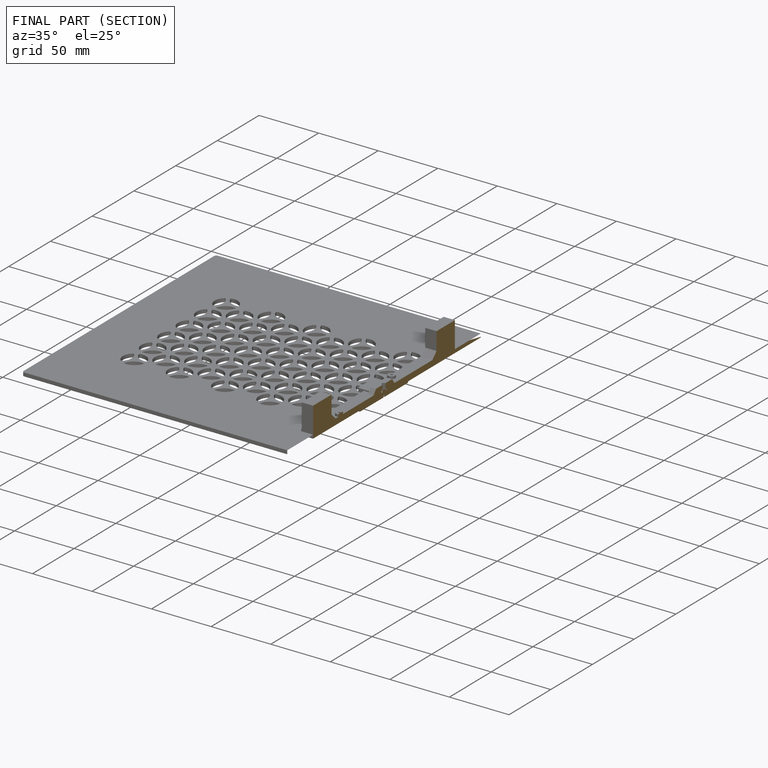
[diagram: finished part — half-section view (interior)]
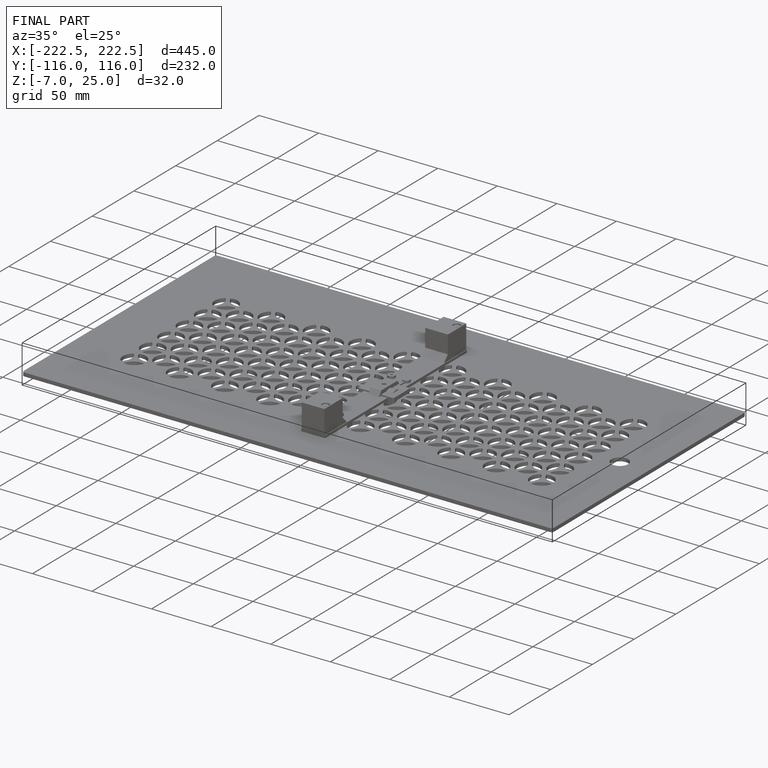
[diagram: finished part — iso view with bounding-box wireframe]
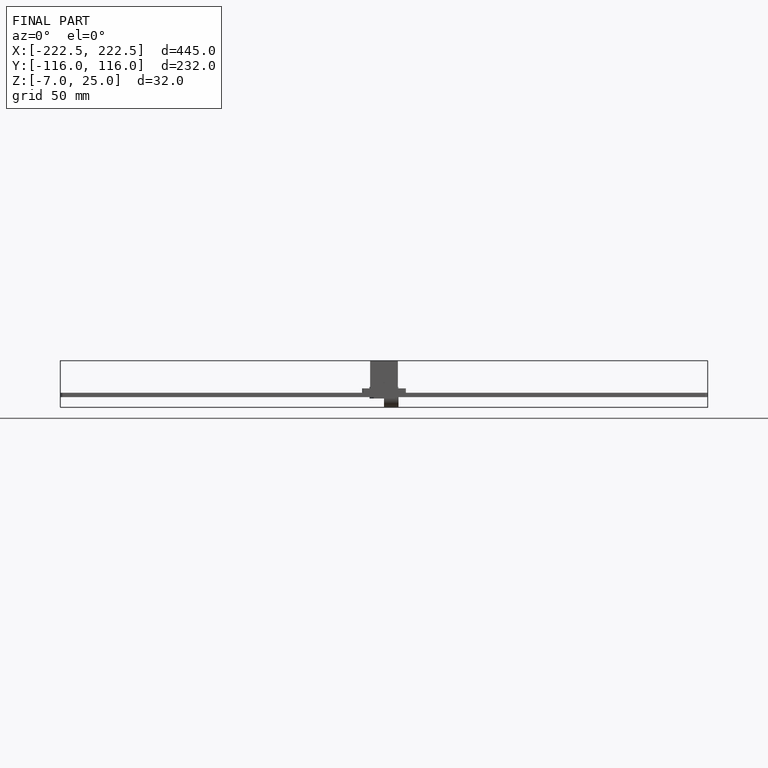
[diagram: finished part — front view with bounding-box wireframe]
